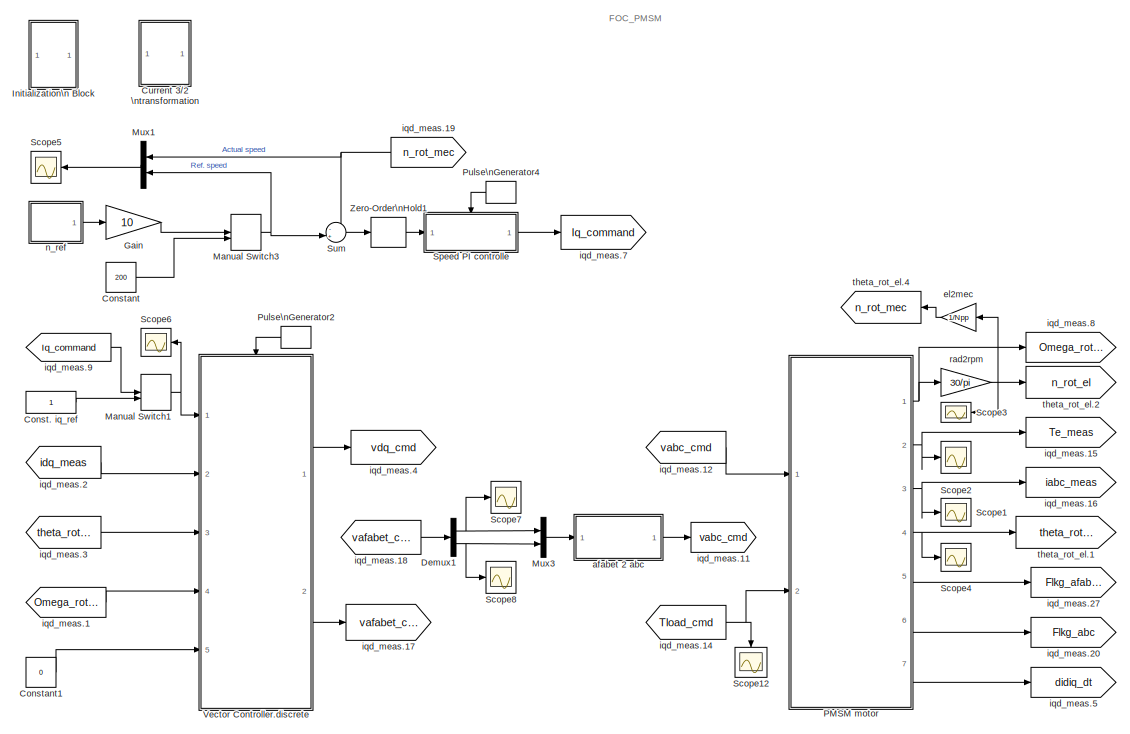
[diagram: root canvas - part 1/2, full width, top band]
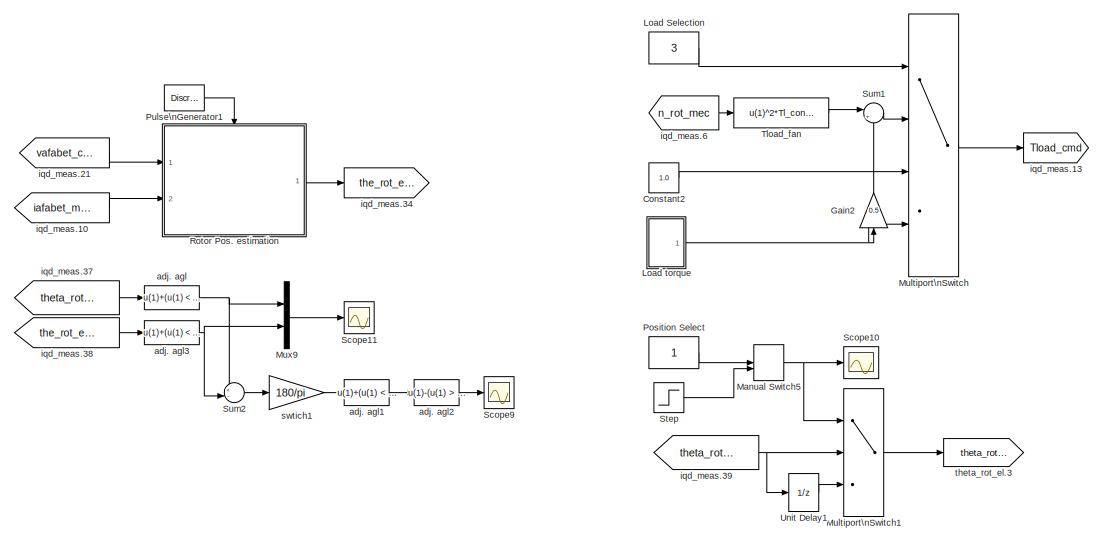
[diagram: root canvas - part 2/2, full width, bottom band]
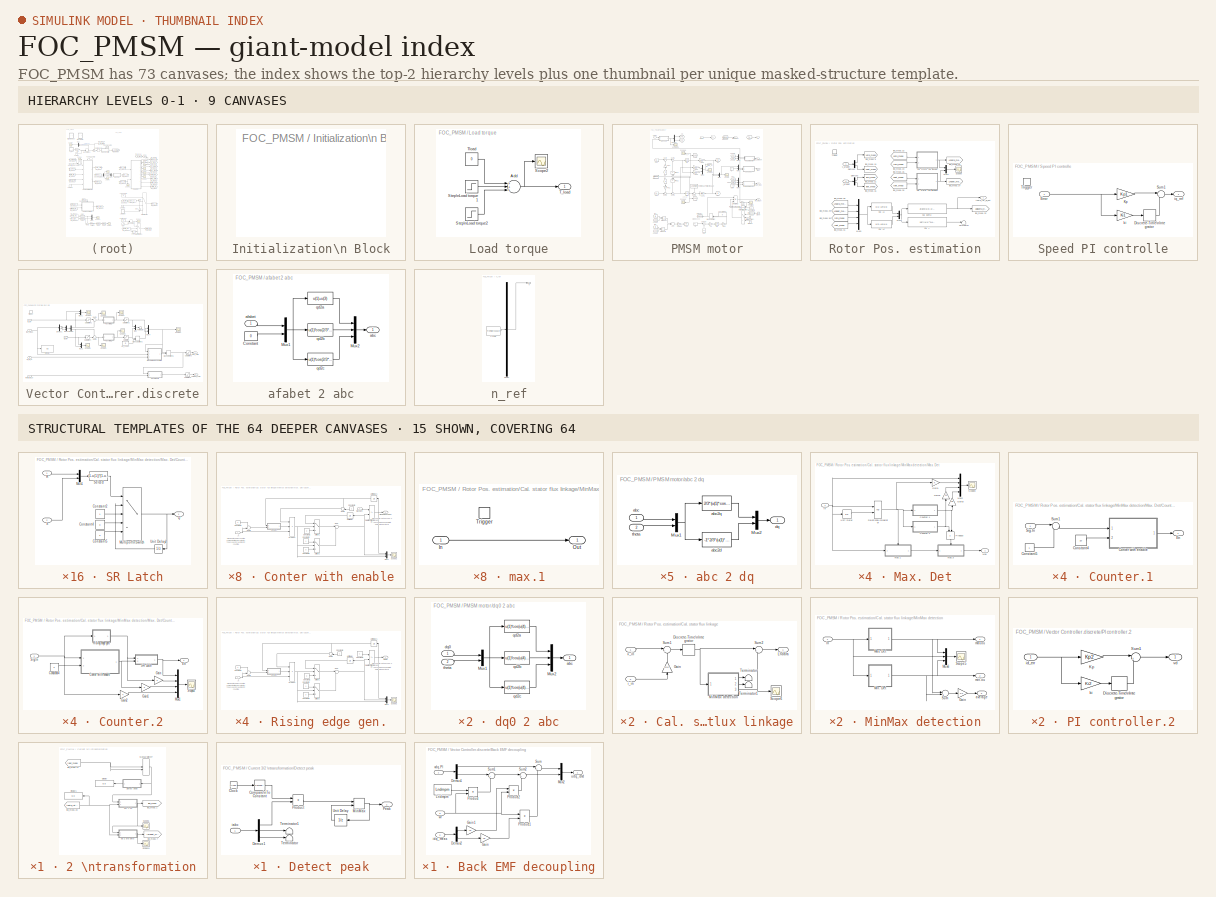
[diagram: thumbnail index - top-2 hierarchy levels (9 canvases) + 15 structural-template representatives of the remaining 64 canvases]
MODEL FOC_PMSM
KIND model
CONFIG InitFcn = Motor_parameters_Lsrpm7fw
BLOCK [Constant] Const. iq_ref
  SID = 4
BLOCK [Constant] Constant
  SID = 5
  Value = 200
BLOCK [Constant] Constant1
  SID = 973
  Value = 0
BLOCK [Constant] Constant2
  SID = 6
  Value = 1.0
BLOCK [SubSystem] Current 3//2 \ntransformation
  Ports = []
  RequestExecContextInheritance = off
  SID = 7
BLOCK [SubSystem] Current 3//2 \ntransformation/Detect peak
  Ports = [1, 1]
  RequestExecContextInheritance = off
  SID = 11
BLOCK [Clock] Current 3//2 \ntransformation/Detect peak/Clock
  SID = 13
BLOCK [Reference] Current 3//2 \ntransformation/Detect peak/Compare\nTo Constant  REF=simulink/Logic and Bit\nOperations/Compare\nTo Constant
  OutDataTypeStr = uint8
  Ports = [1, 1]
  SID = 14
  SourceBlock = simulink/Logic and Bit\nOperations/Compare\nTo Constant
  SourceProductBaseCode = SL
  SourceProductName = Simulink
  SourceType = Compare To Constant
  ZeroCross = off
  const = 2
  relop = >=
BLOCK [Demux] Current 3//2 \ntransformation/Detect peak/Demux1
  DisplayOption = bar
  Outputs = 3
  Ports = [1, 3]
  SID = 15
BLOCK [MinMax] Current 3//2 \ntransformation/Detect peak/MinMax
  Function = max
  InputSameDT = off
  Inputs = 2
  Ports = [2, 1]
  SID = 16
  SaturateOnIntegerOverflow = off
BLOCK [Outport] Current 3//2 \ntransformation/Detect peak/Peak
  IconDisplay = Port number
  SID = 21
BLOCK [Product] Current 3//2 \ntransformation/Detect peak/Product
  InputSameDT = off
  OutDataTypeStr = Inherit: Inherit via internal rule
  Ports = [2, 1]
  SID = 17
  SaturateOnIntegerOverflow = off
BLOCK [Terminator] Current 3//2 \ntransformation/Detect peak/Terminator
  SID = 18
BLOCK [Terminator] Current 3//2 \ntransformation/Detect peak/Terminator1
  SID = 19
BLOCK [UnitDelay] Current 3//2 \ntransformation/Detect peak/Unit Delay
  SID = 20
  SampleTime = 1/5e3
BLOCK [Inport] Current 3//2 \ntransformation/Detect peak/iabc
  IconDisplay = Port number
  SID = 12
BLOCK [Display] Current 3//2 \ntransformation/Display
  Decimation = 1
  Ports = [1]
  SID = 27
BLOCK [Display] Current 3//2 \ntransformation/Display1
  Decimation = 1
  Ports = [1]
  SID = 2657
BLOCK [ManualSwitch] Current 3//2 \ntransformation/Manual Switch7
  CurrentSetting = 0
  SID = 28
BLOCK [Scope] Current 3//2 \ntransformation/Scope14
  Floating = off
  NumInputPorts = 1
  Ports = [1]
  SID = 34
  ScopeSpecificationString = C++SS(StrPVP('Location','[119, 56, 1049, 720]'),StrPVP('Open','off'),MxPVP('AxesTitles',53,'struct(''axes1'',''%<SignalLabel>'')'),StrPVP('ShowLegends','off'),StrPVP('YMin','-5500'),StrPVP('YMax','5500'),StrPVP('SaveName','ScopeData27'),StrPVP('DataFormat','StructureWithTime'),StrPVP('LimitDataPoints','off'),StrPVP('BlockParamSampleTime','0'),StrPVP('Decimation','1'),StrPVP('BlockParamSampleInput'...<+8ch>
BLOCK [Scope] Current 3//2 \ntransformation/Scope6
  Floating = off
  NumInputPorts = 1
  Ports = [1]
  SID = 35
  ScopeSpecificationString = C++SS(StrPVP('Location','[533, 264, 1183, 659]'),StrPVP('Open','off'),StrPVP('ZoomMode','xonly'),MxPVP('AxesTitles',53,'struct(''axes1'',''%<SignalLabel>'')'),StrPVP('ShowLegends','off'),StrPVP('SaveName','ScopeData25'),StrPVP('DataFormat','StructureWithTime'),StrPVP('LimitDataPoints','off'),StrPVP('BlockParamSampleTime','0'),StrPVP('Decimation','1'),StrPVP('BlockParamSampleInput','off'))
BLOCK [SubSystem] Current 3//2 \ntransformation/abc 2 dq
  Ports = [2, 1]
  RequestExecContextInheritance = off
  SID = 38
BLOCK [Mux] Current 3//2 \ntransformation/abc 2 dq/Mux1
  DisplayOption = bar
  Inputs = 2
  Ports = [2, 1]
  SID = 41
BLOCK [Mux] Current 3//2 \ntransformation/abc 2 dq/Mux2
  DisplayOption = bar
  Inputs = 2
  Ports = [2, 1]
  SID = 42
BLOCK [Inport] Current 3//2 \ntransformation/abc 2 dq/abc
  IconDisplay = Port number
  SID = 39
BLOCK [Fcn] Current 3//2 \ntransformation/abc 2 dq/abc2d
  Expr = 2/3*(u(1)*cos(u(4))+u(2)*cos(u(4)-2*pi/3)+u(3)*cos(u(4)-4*pi/3))
  SID = 43
BLOCK [Fcn] Current 3//2 \ntransformation/abc 2 dq/abc2q
  Expr = -1*2/3*(u(1)*sin(u(4))+u(2)*sin(u(4)-2*pi/3)+u(3)*sin(u(4)-4*pi/3))
  SID = 44
BLOCK [Outport] Current 3//2 \ntransformation/abc 2 dq/dq
  IconDisplay = Port number
  SID = 45
BLOCK [Inport] Current 3//2 \ntransformation/abc 2 dq/theta
  IconDisplay = Port number
  Port = 2
  SID = 40
BLOCK [SubSystem] Current 3//2 \ntransformation/dq 2 afa beta
  Ports = [2, 1]
  RequestExecContextInheritance = off
  SID = 46
BLOCK [Mux] Current 3//2 \ntransformation/dq 2 afa beta/Mux1
  DisplayOption = bar
  Inputs = 2
  Ports = [2, 1]
  SID = 49
BLOCK [Mux] Current 3//2 \ntransformation/dq 2 afa beta/Mux2
  DisplayOption = bar
  Inputs = 2
  Ports = [2, 1]
  SID = 50
BLOCK [Outport] Current 3//2 \ntransformation/dq 2 afa beta/afa beta
  IconDisplay = Port number
  SID = 53
BLOCK [Inport] Current 3//2 \ntransformation/dq 2 afa beta/dq
  IconDisplay = Port number
  SID = 47
BLOCK [Fcn] Current 3//2 \ntransformation/dq 2 afa beta/dq2afa
  Expr = u(1)*cos(u(3))-u(2)*sin(u(3))
  SID = 51
BLOCK [Fcn] Current 3//2 \ntransformation/dq 2 afa beta/dq2beta
  Expr = u(1)*sin(u(3))+u(2)*cos(u(3))
  SID = 52
BLOCK [Inport] Current 3//2 \ntransformation/dq 2 afa beta/theta
  IconDisplay = Port number
  Port = 2
  SID = 48
BLOCK [Goto] Current 3//2 \ntransformation/iqd_meas.1
  GotoTag = idq_meas
  SID = 54
  TagVisibility = global
BLOCK [From] Current 3//2 \ntransformation/iqd_meas.20
  CloseFcn = tagdialog Close
  GotoTag = theta_rot_el
  SID = 55
  TagVisibility = global
BLOCK [From] Current 3//2 \ntransformation/iqd_meas.21
  CloseFcn = tagdialog Close
  GotoTag = iabc_meas
  SID = 56
  TagVisibility = global
BLOCK [Goto] Current 3//2 \ntransformation/iqd_meas.7
  GotoTag = iafabet_meas
  SID = 58
  TagVisibility = global
BLOCK [Demux] Demux1
  DisplayOption = bar
  Outputs = 2
  Ports = [1, 2]
  SID = 3145
BLOCK [Gain] Gain
  Gain = 10
  OutDataTypeStr = Inherit: Inherit via internal rule
  ParamDataTypeStr = Inherit: Inherit via internal rule
  SID = 65
  SaturateOnIntegerOverflow = off
BLOCK [Gain] Gain2
  Gain = 0.5
  OutDataTypeStr = Inherit: Inherit via internal rule
  ParamDataTypeStr = Inherit: Inherit via internal rule
  SID = 2658
  SaturateOnIntegerOverflow = off
BLOCK [SubSystem] Initialization\n Block
  Ports = []
  RequestExecContextInheritance = off
  SID = 3139
BLOCK [Constant] Load Selection
  SID = 66
  Value = 3
BLOCK [SubSystem] Load torque
  Ports = [0, 1]
  RequestExecContextInheritance = off
  SID = 67
BLOCK [Sum] Load torque/Add
  InputSameDT = off
  Inputs = +++
  OutDataTypeStr = Inherit: Inherit via internal rule
  Ports = [3, 1]
  SID = 68
  SaturateOnIntegerOverflow = off
BLOCK [Scope] Load torque/Scope2
  Floating = off
  NumInputPorts = 1
  Ports = [1]
  SID = 69
  ScopeSpecificationString = C++SS(StrPVP('Location','[191, 206, 1054, 786]'),StrPVP('Open','off'),MxPVP('AxesTitles',53,'struct(''axes1'',''%<SignalLabel>'')'),MxPVP('ScopeGraphics',56,'struct(''FigureColor'',''[0.5 0.5 0.5]'',''AxesColor'',''[0 0 0]'',''AxesTickColor'',''[1 1 1]'',''LineColors'',''[1 1 0;1 0 1;0 1 1;1 0 0;0 1 0;0 0 1]'',''LineStyles'',''-|-|-|-|-|-'',''LineWidths'',''[0.5 0.5 0.5 0.5 0.5 0.5]'',''MarkerStyl...<+320ch>
BLOCK [Step] Load torque/Step\nLoad torque 1
  After = Trat
  SID = 70
  SampleTime = 0
  Time = 2
BLOCK [Step] Load torque/Step\nLoad torque2
  After = -Trat/2
  SID = 71
  SampleTime = 0
  Time = 4
BLOCK [Outport] Load torque/T_load
  IconDisplay = Port number
  SID = 73
BLOCK [Constant] Load torque/Tload
  SID = 72
  Value = 0
BLOCK [ManualSwitch] Manual Switch1
  SID = 74
BLOCK [ManualSwitch] Manual Switch3
  CurrentSetting = 0
  SID = 76
BLOCK [ManualSwitch] Manual Switch5
  SID = 78
BLOCK [MultiPortSwitch] Multiport\nSwitch
  InputSameDT = off
  Ports = [4, 1]
  SID = 79
  SaturateOnIntegerOverflow = off
BLOCK [MultiPortSwitch] Multiport\nSwitch1
  InputSameDT = off
  Inputs = 2
  Ports = [3, 1]
  SID = 80
  SaturateOnIntegerOverflow = off
BLOCK [Mux] Mux1
  DisplayOption = bar
  Inputs = 2
  Ports = [2, 1]
  SID = 81
BLOCK [Mux] Mux3
  DisplayOption = bar
  Inputs = 2
  Ports = [2, 1]
  SID = 3147
BLOCK [Mux] Mux9
  DisplayOption = bar
  Inputs = 2
  Ports = [2, 1]
  SID = 3171
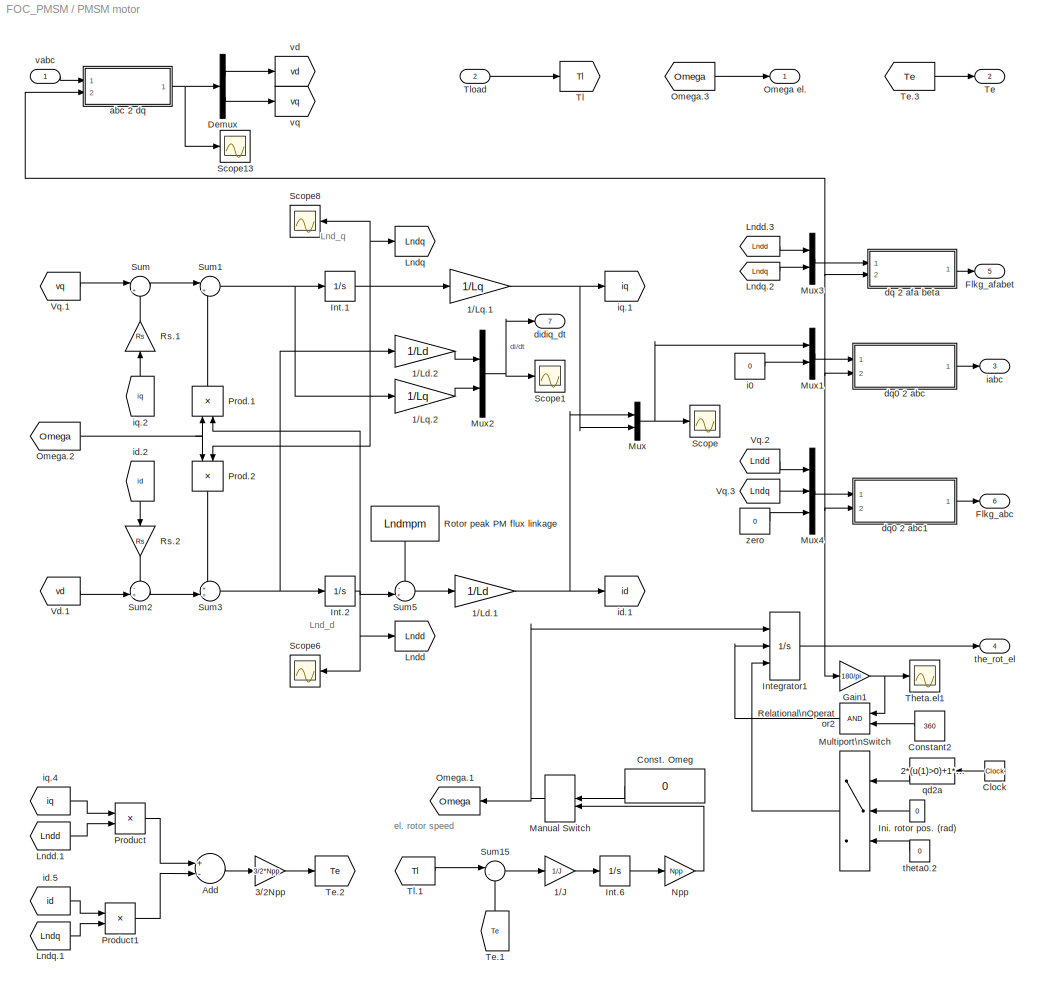
BLOCK [SubSystem] PMSM motor
  Ports = [2, 7]
  RequestExecContextInheritance = off
  SID = 2998
BLOCK [Gain] PMSM motor/1//J
  Gain = 1/J
  OutDataTypeStr = Inherit: Inherit via internal rule
  ParamDataTypeStr = Inherit: Inherit via internal rule
  SID = 3001
  SaturateOnIntegerOverflow = off
BLOCK [Gain] PMSM motor/1//Ld.1
  Gain = 1/Ld
  OutDataTypeStr = Inherit: Inherit via internal rule
  ParamDataTypeStr = Inherit: Inherit via internal rule
  SID = 3002
  SaturateOnIntegerOverflow = off
BLOCK [Gain] PMSM motor/1//Ld.2
  Gain = 1/Ld
  OutDataTypeStr = Inherit: Inherit via internal rule
  ParamDataTypeStr = Inherit: Inherit via internal rule
  SID = 3003
  SaturateOnIntegerOverflow = off
BLOCK [Gain] PMSM motor/1//Lq.1
  Gain = 1/Lq
  OutDataTypeStr = Inherit: Inherit via internal rule
  ParamDataTypeStr = Inherit: Inherit via internal rule
  SID = 3004
  SaturateOnIntegerOverflow = off
BLOCK [Gain] PMSM motor/1//Lq.2
  Gain = 1/Lq
  OutDataTypeStr = Inherit: Inherit via internal rule
  ParamDataTypeStr = Inherit: Inherit via internal rule
  SID = 3005
  SaturateOnIntegerOverflow = off
BLOCK [Gain] PMSM motor/3//2Npp
  Gain = 3/2*Npp
  OutDataTypeStr = Inherit: Inherit via internal rule
  ParamDataTypeStr = Inherit: Inherit via internal rule
  SID = 3006
  SaturateOnIntegerOverflow = off
BLOCK [Sum] PMSM motor/Add
  InputSameDT = off
  Inputs = +-
  OutDataTypeStr = Inherit: Inherit via internal rule
  Ports = [2, 1]
  SID = 3007
  SaturateOnIntegerOverflow = off
BLOCK [Clock] PMSM motor/Clock
  SID = 3140
BLOCK [Constant] PMSM motor/Const. Omeg
  SID = 3008
  Value = 0
BLOCK [Constant] PMSM motor/Constant2
  SID = 3010
  Value = 360
BLOCK [Demux] PMSM motor/Demux
  DisplayOption = bar
  Outputs = 2
  Ports = [1, 2]
  SID = 3011
BLOCK [Outport] PMSM motor/Flkg_abc
  IconDisplay = Port number
  Port = 6
  SID = 3118
BLOCK [Outport] PMSM motor/Flkg_afabet
  IconDisplay = Port number
  Port = 5
  SID = 3117
BLOCK [Gain] PMSM motor/Gain1
  Gain = 180/pi
  OutDataTypeStr = Inherit: Inherit via internal rule
  ParamDataTypeStr = Inherit: Inherit via internal rule
  SID = 3012
  SaturateOnIntegerOverflow = off
BLOCK [Constant] PMSM motor/Ini. rotor pos. (rad)
  SID = 3143
  Value = 0
BLOCK [Integrator] PMSM motor/Int.1
  Ports = [1, 1]
  SID = 3014
BLOCK [Integrator] PMSM motor/Int.2
  InitialCondition = Lndd_ini
  Ports = [1, 1]
  SID = 3015
BLOCK [Integrator] PMSM motor/Int.6
  InitialCondition = Omegae_ini/Npp
  Ports = [1, 1]
  SID = 3016
BLOCK [Integrator] PMSM motor/Integrator1
  ExternalReset = rising
  InitialCondition = pi/3
  InitialConditionSource = external
  Ports = [3, 1]
  SID = 3017
BLOCK [Goto] PMSM motor/Lndd
  GotoTag = Lndd
  SID = 3018
BLOCK [From] PMSM motor/Lndd.1
  CloseFcn = tagdialog Close
  GotoTag = Lndd
  SID = 3019
BLOCK [From] PMSM motor/Lndd.3
  CloseFcn = tagdialog Close
  GotoTag = Lndd
  SID = 3021
BLOCK [Goto] PMSM motor/Lndq
  GotoTag = Lndq
  SID = 3022
BLOCK [From] PMSM motor/Lndq.1
  CloseFcn = tagdialog Close
  GotoTag = Lndq
  SID = 3023
BLOCK [From] PMSM motor/Lndq.2
  CloseFcn = tagdialog Close
  GotoTag = Lndq
  SID = 3024
BLOCK [ManualSwitch] PMSM motor/Manual Switch
  CurrentSetting = 0
  SID = 3026
BLOCK [MultiPortSwitch] PMSM motor/Multiport\nSwitch
  InputSameDT = off
  Inputs = 2
  Ports = [3, 1]
  SID = 3141
  SaturateOnIntegerOverflow = off
BLOCK [Mux] PMSM motor/Mux
  DisplayOption = bar
  Inputs = 2
  Ports = [2, 1]
  SID = 3027
BLOCK [Mux] PMSM motor/Mux1
  DisplayOption = bar
  Inputs = 2
  Ports = [2, 1]
  SID = 3028
BLOCK [Mux] PMSM motor/Mux2
  DisplayOption = bar
  Inputs = 2
  Ports = [2, 1]
  SID = 3029
BLOCK [Mux] PMSM motor/Mux3
  DisplayOption = bar
  Inputs = 2
  Ports = [2, 1]
  SID = 3030
BLOCK [Mux] PMSM motor/Mux4
  DisplayOption = bar
  Inputs = 3
  Ports = [3, 1]
  SID = 3031
BLOCK [Gain] PMSM motor/Npp
  Gain = Npp
  OutDataTypeStr = Inherit: Inherit via internal rule
  ParamDataTypeStr = Inherit: Inherit via internal rule
  SID = 3032
  SaturateOnIntegerOverflow = off
BLOCK [Outport] PMSM motor/Omega el.
  IconDisplay = Port number
  SID = 3113
BLOCK [Goto] PMSM motor/Omega.1
  GotoTag = Omega
  SID = 3033
BLOCK [From] PMSM motor/Omega.2
  CloseFcn = tagdialog Close
  GotoTag = Omega
  SID = 3034
BLOCK [From] PMSM motor/Omega.3
  CloseFcn = tagdialog Close
  GotoTag = Omega
  SID = 3035
BLOCK [Product] PMSM motor/Prod.1
  InputSameDT = off
  OutDataTypeStr = Inherit: Inherit via internal rule
  Ports = [2, 1]
  SID = 3037
  SaturateOnIntegerOverflow = off
BLOCK [Product] PMSM motor/Prod.2
  InputSameDT = off
  OutDataTypeStr = Inherit: Inherit via internal rule
  Ports = [2, 1]
  SID = 3038
  SaturateOnIntegerOverflow = off
BLOCK [Product] PMSM motor/Product
  InputSameDT = off
  OutDataTypeStr = Inherit: Inherit via internal rule
  Ports = [2, 1]
  SID = 3039
  SaturateOnIntegerOverflow = off
BLOCK [Product] PMSM motor/Product1
  InputSameDT = off
  OutDataTypeStr = Inherit: Inherit via internal rule
  Ports = [2, 1]
  SID = 3040
  SaturateOnIntegerOverflow = off
BLOCK [RelationalOperator] PMSM motor/Relational\nOperator2
  InputSameDT = off
  OutDataTypeStr = boolean
  Ports = [2, 1]
  SID = 3042
BLOCK [Constant] PMSM motor/Rotor peak PM flux linkage
  SID = 3043
  Value = Lndmpm
BLOCK [Gain] PMSM motor/Rs.1
  Gain = Rs
  OutDataTypeStr = Inherit: Inherit via internal rule
  ParamDataTypeStr = Inherit: Inherit via internal rule
  SID = 3044
  SaturateOnIntegerOverflow = off
BLOCK [Gain] PMSM motor/Rs.2
  Gain = Rs
  OutDataTypeStr = Inherit: Inherit via internal rule
  ParamDataTypeStr = Inherit: Inherit via internal rule
  SID = 3045
  SaturateOnIntegerOverflow = off
BLOCK [Scope] PMSM motor/Scope
  Floating = off
  NumInputPorts = 1
  Ports = [1]
  SID = 3046
  ScopeSpecificationString = C++SS(StrPVP('Location','[357, 219, 1019, 566]'),StrPVP('Open','off'),StrPVP('ZoomMode','xonly'),MxPVP('AxesTitles',53,'struct(''axes1'',''%<SignalLabel>'')'),MxPVP('ScopeGraphics',56,'struct(''FigureColor'',''[0.5 0.5 0.5]'',''AxesColor'',''[0 0 0]'',''AxesTickColor'',''[1 1 1]'',''LineColors'',''[1 1 0;1 0 1;0 1 1;1 0 0;0 1 0;0 0 1]'',''LineStyles'',''-|-|-|-|-|-'',''LineWidths'',''[0.5 0.5 0.5 ...<+370ch>
BLOCK [Scope] PMSM motor/Scope1
  Floating = off
  NumInputPorts = 1
  Ports = [1]
  SID = 3047
  ScopeSpecificationString = C++SS(StrPVP('Location','[190, 170, 1046, 653]'),StrPVP('Open','off'),StrPVP('ZoomMode','yonly'),MxPVP('AxesTitles',53,'struct(''axes1'',''%<SignalLabel>'')'),MxPVP('ScopeGraphics',56,'struct(''FigureColor'',''[0.5 0.5 0.5]'',''AxesColor'',''[0 0 0]'',''AxesTickColor'',''[1 1 1]'',''LineColors'',''[1 1 0;1 0 1;0 1 1;1 0 0;0 1 0;0 0 1]'',''LineStyles'',''-|-|-|-|-|-'',''LineWidths'',''[0.5 0.5 0.5 ...<+367ch>
BLOCK [Scope] PMSM motor/Scope13
  Floating = off
  NumInputPorts = 1
  Ports = [1]
  SID = 3048
  ScopeSpecificationString = C++SS(StrPVP('Location','[6, 189, 1019, 737]'),StrPVP('Open','off'),StrPVP('ZoomMode','xonly'),MxPVP('AxesTitles',53,'struct(''axes1'',''%<SignalLabel>'')'),MxPVP('ScopeGraphics',56,'struct(''FigureColor'',''[0.5 0.5 0.5]'',''AxesColor'',''[0 0 0]'',''AxesTickColor'',''[1 1 1]'',''LineColors'',''[1 1 0;1 0 1;0 1 1;1 0 0;0 1 0;0 0 1]'',''LineStyles'',''-|-|-|-|-|-'',''LineWidths'',''[0.5 0.5 0.5 0....<+340ch>
BLOCK [Scope] PMSM motor/Scope6
  Floating = off
  NumInputPorts = 1
  Ports = [1]
  SID = 3050
  ScopeSpecificationString = C++SS(StrPVP('Location','[430, 222, 984, 607]'),StrPVP('Open','off'),MxPVP('AxesTitles',53,'struct(''axes1'',''%<SignalLabel>'')'),StrPVP('ShowLegends','off'),StrPVP('TimeRange','0.35'),StrPVP('YMin','-2e-005'),StrPVP('YMax','2.25e-005'),StrPVP('SaveName','ScopeData11'),StrPVP('DataFormat','StructureWithTime'),StrPVP('LimitDataPoints','off'),StrPVP('BlockParamSampleTime','0'),StrPVP('Decimation','...<+42ch>
BLOCK [Scope] PMSM motor/Scope8
  Floating = off
  NumInputPorts = 1
  Ports = [1]
  SID = 3051
  ScopeSpecificationString = C++SS(StrPVP('Location','[8, 56, 670, 485]'),StrPVP('Open','off'),StrPVP('ZoomMode','yonly'),MxPVP('AxesTitles',53,'struct(''axes1'',''%<SignalLabel>'')'),StrPVP('ShowLegends','off'),StrPVP('TimeRange','35'),StrPVP('YMin','0.997'),StrPVP('YMax','1.005'),StrPVP('SaveName','ScopeData12'),StrPVP('DataFormat','StructureWithTime'),StrPVP('LimitDataPoints','off'),StrPVP('BlockParamSampleTime','0'),StrPV...<+58ch>
BLOCK [Sum] PMSM motor/Sum
  IconShape = round
  InputSameDT = off
  Inputs = |+-
  OutDataTypeStr = Inherit: Inherit via internal rule
  Ports = [2, 1]
  SID = 3052
  SaturateOnIntegerOverflow = off
BLOCK [Sum] PMSM motor/Sum1
  IconShape = round
  InputSameDT = off
  Inputs = |+-
  OutDataTypeStr = Inherit: Inherit via internal rule
  Ports = [2, 1]
  SID = 3053
  SaturateOnIntegerOverflow = off
BLOCK [Sum] PMSM motor/Sum15
  IconShape = round
  InputSameDT = off
  Inputs = |-+
  OutDataTypeStr = Inherit: Inherit via internal rule
  Ports = [2, 1]
  SID = 3054
  SaturateOnIntegerOverflow = off
BLOCK [Sum] PMSM motor/Sum2
  IconShape = round
  InputSameDT = off
  Inputs = -+|
  OutDataTypeStr = Inherit: Inherit via internal rule
  Ports = [2, 1]
  SID = 3055
  SaturateOnIntegerOverflow = off
BLOCK [Sum] PMSM motor/Sum3
  IconShape = round
  InputSameDT = off
  Inputs = ++|
  OutDataTypeStr = Inherit: Inherit via internal rule
  Ports = [2, 1]
  SID = 3056
  SaturateOnIntegerOverflow = off
BLOCK [Sum] PMSM motor/Sum5
  IconShape = round
  InputSameDT = off
  Inputs = -+|
  OutDataTypeStr = Inherit: Inherit via internal rule
  Ports = [2, 1]
  SID = 3057
  SaturateOnIntegerOverflow = off
BLOCK [Outport] PMSM motor/Te
  IconDisplay = Port number
  Port = 2
  SID = 3114
BLOCK [From] PMSM motor/Te.1
  CloseFcn = tagdialog Close
  GotoTag = Te
  SID = 3058
BLOCK [Goto] PMSM motor/Te.2
  GotoTag = Te
  SID = 3059
BLOCK [From] PMSM motor/Te.3
  CloseFcn = tagdialog Close
  GotoTag = Te
  SID = 3060
BLOCK [Scope] PMSM motor/Theta.el1
  Floating = off
  NumInputPorts = 1
  Ports = [1]
  SID = 3061
  ScopeSpecificationString = C++SS(StrPVP('Location','[8, 60, 629, 554]'),StrPVP('Open','off'),MxPVP('AxesTitles',53,'struct(''axes1'',''%<SignalLabel>'')'),MxPVP('ScopeGraphics',56,'struct(''FigureColor'',''[0.5 0.5 0.5]'',''AxesColor'',''[0 0 0]'',''AxesTickColor'',''[1 1 1]'',''LineColors'',''[1 1 0;1 0 1;0 1 1;1 0 0;0 1 0;0 0 1]'',''LineStyles'',''-|-|-|-|-|-'',''LineWidths'',''[0.5 0.5 0.5 0.5 0.5 0.5]'',''MarkerStyles''...<+279ch>
BLOCK [Goto] PMSM motor/Tl
  GotoTag = Tl
  SID = 3063
BLOCK [From] PMSM motor/Tl.1
  CloseFcn = tagdialog Close
  GotoTag = Tl
  SID = 3064
BLOCK [Inport] PMSM motor/Tload
  IconDisplay = Port number
  Port = 2
  SID = 3000
BLOCK [From] PMSM motor/Vd.1
  CloseFcn = tagdialog Close
  GotoTag = vd
  SID = 3065
BLOCK [From] PMSM motor/Vq.1
  CloseFcn = tagdialog Close
  GotoTag = vq
  SID = 3066
BLOCK [From] PMSM motor/Vq.2
  CloseFcn = tagdialog Close
  GotoTag = Lndd
  SID = 3067
BLOCK [From] PMSM motor/Vq.3
  CloseFcn = tagdialog Close
  GotoTag = Lndq
  SID = 3068
BLOCK [SubSystem] PMSM motor/abc 2 dq
  Ports = [2, 1]
  RequestExecContextInheritance = off
  SID = 3069
BLOCK [Mux] PMSM motor/abc 2 dq/Mux1
  DisplayOption = bar
  Inputs = 2
  Ports = [2, 1]
  SID = 3072
BLOCK [Mux] PMSM motor/abc 2 dq/Mux2
  DisplayOption = bar
  Inputs = 2
  Ports = [2, 1]
  SID = 3073
BLOCK [Inport] PMSM motor/abc 2 dq/abc
  IconDisplay = Port number
  SID = 3070
BLOCK [Fcn] PMSM motor/abc 2 dq/abc2d
  Expr = -1*2/3*(u(1)*sin(u(4))+u(2)*sin(u(4)-2*pi/3)+u(3)*sin(u(4)-4*pi/3))
  SID = 3074
BLOCK [Fcn] PMSM motor/abc 2 dq/abc2q
  Expr = 2/3*(u(1)*cos(u(4))+u(2)*cos(u(4)-2*pi/3)+u(3)*cos(u(4)-4*pi/3))
  SID = 3075
BLOCK [Outport] PMSM motor/abc 2 dq/dq
  IconDisplay = Port number
  SID = 3076
BLOCK [Inport] PMSM motor/abc 2 dq/theta
  IconDisplay = Port number
  Port = 2
  SID = 3071
BLOCK [Outport] PMSM motor/didiq_dt
  IconDisplay = Port number
  Port = 7
  SID = 3119
BLOCK [SubSystem] PMSM motor/dq 2 afa beta
  Ports = [2, 1]
  RequestExecContextInheritance = off
  SID = 3077
BLOCK [Mux] PMSM motor/dq 2 afa beta/Mux1
  DisplayOption = bar
  Inputs = 2
  Ports = [2, 1]
  SID = 3080
BLOCK [Mux] PMSM motor/dq 2 afa beta/Mux2
  DisplayOption = bar
  Inputs = 2
  Ports = [2, 1]
  SID = 3081
BLOCK [Outport] PMSM motor/dq 2 afa beta/afa beta
  IconDisplay = Port number
  SID = 3084
BLOCK [Inport] PMSM motor/dq 2 afa beta/dq
  IconDisplay = Port number
  SID = 3078
BLOCK [Fcn] PMSM motor/dq 2 afa beta/dq2afa
  Expr = u(1)*cos(u(3))-u(2)*sin(u(3))
  SID = 3082
BLOCK [Fcn] PMSM motor/dq 2 afa beta/dq2beta
  Expr = u(1)*sin(u(3))+u(2)*cos(u(3))
  SID = 3083
BLOCK [Inport] PMSM motor/dq 2 afa beta/theta
  IconDisplay = Port number
  Port = 2
  SID = 3079
BLOCK [SubSystem] PMSM motor/dq0 2 abc
  Ports = [2, 1]
  RequestExecContextInheritance = off
  SID = 3085
BLOCK [Mux] PMSM motor/dq0 2 abc/Mux1
  DisplayOption = bar
  Inputs = 2
  Ports = [2, 1]
  SID = 3088
BLOCK [Mux] PMSM motor/dq0 2 abc/Mux2
  DisplayOption = bar
  Inputs = 3
  Ports = [3, 1]
  SID = 3089
BLOCK [Outport] PMSM motor/dq0 2 abc/abc
  IconDisplay = Port number
  SID = 3093
BLOCK [Inport] PMSM motor/dq0 2 abc/dq0
  IconDisplay = Port number
  SID = 3086
BLOCK [Fcn] PMSM motor/dq0 2 abc/qd2a
  Expr = u(1)*cos(u(4))-u(2)*sin(u(4))+u(3)
  SID = 3090
BLOCK [Fcn] PMSM motor/dq0 2 abc/qd2b
  Expr = u(1)*cos(u(4)-2/3*pi)-u(2)*sin(u(4)-2/3*pi)+u(3)
  SID = 3091
BLOCK [Fcn] PMSM motor/dq0 2 abc/qd2c
  Expr = u(1)*cos(u(4)+2/3*pi)-u(2)*sin(u(4)+2/3*pi)+u(3)
  SID = 3092
BLOCK [Inport] PMSM motor/dq0 2 abc/theta
  IconDisplay = Port number
  Port = 2
  SID = 3087
BLOCK [SubSystem] PMSM motor/dq0 2 abc1
  Ports = [2, 1]
  RequestExecContextInheritance = off
  SID = 3094
BLOCK [Mux] PMSM motor/dq0 2 abc1/Mux1
  DisplayOption = bar
  Inputs = 2
  Ports = [2, 1]
  SID = 3097
BLOCK [Mux] PMSM motor/dq0 2 abc1/Mux2
  DisplayOption = bar
  Inputs = 3
  Ports = [3, 1]
  SID = 3098
BLOCK [Outport] PMSM motor/dq0 2 abc1/abc
  IconDisplay = Port number
  SID = 3102
BLOCK [Inport] PMSM motor/dq0 2 abc1/dq0
  IconDisplay = Port number
  SID = 3095
BLOCK [Fcn] PMSM motor/dq0 2 abc1/qd2a
  Expr = u(1)*cos(u(4))-u(2)*sin(u(4))+u(3)
  SID = 3099
BLOCK [Fcn] PMSM motor/dq0 2 abc1/qd2b
  Expr = u(1)*cos(u(4)-2/3*pi)-u(2)*sin(u(4)-2/3*pi)+u(3)
  SID = 3100
BLOCK [Fcn] PMSM motor/dq0 2 abc1/qd2c
  Expr = u(1)*cos(u(4)+2/3*pi)-u(2)*sin(u(4)+2/3*pi)+u(3)
  SID = 3101
BLOCK [Inport] PMSM motor/dq0 2 abc1/theta
  IconDisplay = Port number
  Port = 2
  SID = 3096
BLOCK [Constant] PMSM motor/i0
  SID = 3103
  Value = 0
BLOCK [Outport] PMSM motor/iabc
  IconDisplay = Port number
  Port = 3
  SID = 3115
BLOCK [Goto] PMSM motor/id.1
  GotoTag = id
  SID = 3104
BLOCK [From] PMSM motor/id.2
  CloseFcn = tagdialog Close
  GotoTag = id
  SID = 3105
BLOCK [From] PMSM motor/id.5
  CloseFcn = tagdialog Close
  GotoTag = id
  SID = 3106
BLOCK [Goto] PMSM motor/iq.1
  GotoTag = iq
  SID = 3107
BLOCK [From] PMSM motor/iq.2
  CloseFcn = tagdialog Close
  GotoTag = iq
  SID = 3108
BLOCK [From] PMSM motor/iq.4
  CloseFcn = tagdialog Close
  GotoTag = iq
  SID = 3109
BLOCK [Fcn] PMSM motor/qd2a
  Expr = 2*(u(1)>0)+1*(u(1)==0)
  SID = 3142
BLOCK [Outport] PMSM motor/the_rot_el
  IconDisplay = Port number
  Port = 4
  SID = 3116
BLOCK [Constant] PMSM motor/theta0.2
  SID = 3144
  Value = 0
BLOCK [Inport] PMSM motor/vabc
  IconDisplay = Port number
  SID = 2999
BLOCK [Goto] PMSM motor/vd
  GotoTag = vd
  SID = 3110
BLOCK [Goto] PMSM motor/vq
  GotoTag = vq
  SID = 3111
BLOCK [Constant] PMSM motor/zero
  SID = 3112
  Value = 0
BLOCK [Constant] Position Select
  SID = 182
BLOCK [DiscretePulseGenerator] Pulse\nGenerator1
  Period = 1/fs
  PhaseDelay = 1/fs/4*0
  Ports = [0, 1]
  PulseType = Time based
  PulseWidth = 50
  SID = 3172
BLOCK [DiscretePulseGenerator] Pulse\nGenerator2
  Period = 1/fs
  Ports = [0, 1]
  PulseType = Time based
  PulseWidth = 50
  SID = 184
BLOCK [DiscretePulseGenerator] Pulse\nGenerator4
  Period = 1/fs*2
  Ports = [0, 1]
  PulseType = Time based
  PulseWidth = 50
  SID = 975
BLOCK [SubSystem] Rotor Pos. estimation
  Ports = [2, 1, 0, 1]
  RequestExecContextInheritance = off
  SID = 3173
BLOCK [Fcn] Rotor Pos. estimation/Cal. A
  Expr = sqrt(u(1)^2+u(2)^2)
  SID = 3177
BLOCK [Fcn] Rotor Pos. estimation/Cal. A1
  Expr = u(1)-Lq*u(3)
  SID = 3178
BLOCK [Fcn] Rotor Pos. estimation/Cal. A2
  Expr = u(2)-Lq*u(4)
  SID = 3179
BLOCK [Fcn] Rotor Pos. estimation/Cal. gama
  Expr = atan2(u(2),u(1))
  SID = 3180
BLOCK [SubSystem] Rotor Pos. estimation/Cal. stator flux linkage
  Ports = [2, 1]
  RequestExecContextInheritance = off
  SID = 3181
BLOCK [DiscreteIntegrator] Rotor Pos. estimation/Cal. stator flux linkage/Discrete-Time\nIntegrator
  ICPrevOutput = DiscIntNeverNeededParam
  ICPrevScaledInput = DiscIntNeverNeededParam
  Ports = [1, 1]
  SID = 3184
  SampleTime = -1
BLOCK [Gain] Rotor Pos. estimation/Cal. stator flux linkage/Gain
  Gain = Rs/2
  OutDataTypeStr = Inherit: Inherit via internal rule
  ParamDataTypeStr = Inherit: Inherit via internal rule
  SID = 3185
  SaturateOnIntegerOverflow = off
BLOCK [Outport] Rotor Pos. estimation/Cal. stator flux linkage/Lndafa
  IconDisplay = Port number
  SID = 3488
BLOCK [SubSystem] Rotor Pos. estimation/Cal. stator flux linkage/MinMax detection
  Ports = [1, 3]
  RequestExecContextInheritance = off
  SID = 3186
BLOCK [Gain] Rotor Pos. estimation/Cal. stator flux linkage/MinMax detection/Gain
  Gain = 1/2
  OutDataTypeStr = Inherit: Inherit via internal rule
  ParamDataTypeStr = Inherit: Inherit via internal rule
  SID = 3188
  SaturateOnIntegerOverflow = off
BLOCK [Inport] Rotor Pos. estimation/Cal. stator flux linkage/MinMax detection/In
  IconDisplay = Port number
  SID = 3187
BLOCK [SubSystem] Rotor Pos. estimation/Cal. stator flux linkage/MinMax detection/Max. Det
  Ports = [1, 1]
  RequestExecContextInheritance = off
  SID = 3189
BLOCK [SubSystem] Rotor Pos. estimation/Cal. stator flux linkage/MinMax detection/Max. Det/Counter.1
  Ports = [1, 1]
  RequestExecContextInheritance = off
  SID = 3191
BLOCK [Constant] Rotor Pos. estimation/Cal. stator flux linkage/MinMax detection/Max. Det/Counter.1/Constant4
  SID = 3193
  Value = 10
BLOCK [Constant] Rotor Pos. estimation/Cal. stator flux linkage/MinMax detection/Max. Det/Counter.1/Constant5
  SID = 3194
BLOCK [SubSystem] Rotor Pos. estimation/Cal. stator flux linkage/MinMax detection/Max. Det/Counter.1/Conter with enable
  Ports = [2, 1]
  RequestExecContextInheritance = off
  SID = 3195
BLOCK [Constant] Rotor Pos. estimation/Cal. stator flux linkage/MinMax detection/Max. Det/Counter.1/Conter with enable/Constant1
  SID = 3198
  Value = 0
BLOCK [Constant] Rotor Pos. estimation/Cal. stator flux linkage/MinMax detection/Max. Det/Counter.1/Conter with enable/Constant2
  SID = 3199
BLOCK [Constant] Rotor Pos. estimation/Cal. stator flux linkage/MinMax detection/Max. Det/Counter.1/Conter with enable/Constant3
  SID = 3200
  Value = 0
BLOCK [Constant] Rotor Pos. estimation/Cal. stator flux linkage/MinMax detection/Max. Det/Counter.1/Conter with enable/Constant6
  SID = 3201
BLOCK [Constant] Rotor Pos. estimation/Cal. stator flux linkage/MinMax detection/Max. Det/Counter.1/Conter with enable/Constant7
  SID = 3202
BLOCK [Inport] Rotor Pos. estimation/Cal. stator flux linkage/MinMax detection/Max. Det/Counter.1/Conter with enable/Max. Num
  IconDisplay = Port number
  Port = 2
  SID = 3197
BLOCK [Outport] Rotor Pos. estimation/Cal. stator flux linkage/MinMax detection/Max. Det/Counter.1/Conter with enable/Max.\nReached?
  IconDisplay = Port number
  SID = 3225
BLOCK [Mux] Rotor Pos. estimation/Cal. stator flux linkage/MinMax detection/Max. Det/Counter.1/Conter with enable/Mux1
  DisplayOption = bar
  Inputs = 3
  Ports = [3, 1]
  SID = 3203
BLOCK [Product] Rotor Pos. estimation/Cal. stator flux linkage/MinMax detection/Max. Det/Counter.1/Conter with enable/Product
  InputSameDT = off
  Inputs = 3
  OutDataTypeStr = Inherit: Inherit via internal rule
  Ports = [3, 1]
  SID = 3204
  SaturateOnIntegerOverflow = off
BLOCK [RelationalOperator] Rotor Pos. estimation/Cal. stator flux linkage/MinMax detection/Max. Det/Counter.1/Conter with enable/Relational\nOperator
  InputSameDT = off
  Operator = <=
  Ports = [2, 1]
  SID = 3205
BLOCK [SubSystem] Rotor Pos. estimation/Cal. stator flux linkage/MinMax detection/Max. Det/Counter.1/Conter with enable/SR Latch
  Ports = [2, 1]
  RequestExecContextInheritance = off
  SID = 3206
BLOCK [Constant] Rotor Pos. estimation/Cal. stator flux linkage/MinMax detection/Max. Det/Counter.1/Conter with enable/SR Latch/Constant2
  SID = 3209
BLOCK [Constant] Rotor Pos. estimation/Cal. stator flux linkage/MinMax detection/Max. Det/Counter.1/Conter with enable/SR Latch/Constant4
  SID = 3210
  Value = 0
BLOCK [Constant] Rotor Pos. estimation/Cal. stator flux linkage/MinMax detection/Max. Det/Counter.1/Conter with enable/SR Latch/Constant5
  SID = 3211
  Value = 0
BLOCK [MultiPortSwitch] Rotor Pos. estimation/Cal. stator flux linkage/MinMax detection/Max. Det/Counter.1/Conter with enable/SR Latch/Multiport\nSwitch
  InputSameDT = off
  Inputs = 4
  Ports = [5, 1]
  SID = 3212
  SaturateOnIntegerOverflow = off
BLOCK [Mux] Rotor Pos. estimation/Cal. stator flux linkage/MinMax detection/Max. Det/Counter.1/Conter with enable/SR Latch/Mux1
  DisplayOption = bar
  Inputs = 2
  Ports = [2, 1]
  SID = 3213
BLOCK [Outport] Rotor Pos. estimation/Cal. stator flux linkage/MinMax detection/Max. Det/Counter.1/Conter with enable/SR Latch/Q
  IconDisplay = Port number
  SID = 3216
BLOCK [Inport] Rotor Pos. estimation/Cal. stator flux linkage/MinMax detection/Max. Det/Counter.1/Conter with enable/SR Latch/R
  IconDisplay = Port number
  SID = 3207
BLOCK [Inport] Rotor Pos. estimation/Cal. stator flux linkage/MinMax detection/Max. Det/Counter.1/Conter with enable/SR Latch/S
  IconDisplay = Port number
  Port = 2
  SID = 3208
BLOCK [Fcn] Rotor Pos. estimation/Cal. stator flux linkage/MinMax detection/Max. Det/Counter.1/Conter with enable/SR Latch/Selcect
  Expr = (1-u(1))*(1-u(2))+2*(1-u(1))*u(2)+3*u(1)*(1-u(2))+4*u(1)*u(2)
  SID = 3214
BLOCK [UnitDelay] Rotor Pos. estimation/Cal. stator flux linkage/MinMax detection/Max. Det/Counter.1/Conter with enable/SR Latch/Unit Delay2
  SID = 3215
  SampleTime = -1
BLOCK [Scope] Rotor Pos. estimation/Cal. stator flux linkage/MinMax detection/Max. Det/Counter.1/Conter with enable/Scope2
  Floating = off
  NumInputPorts = 1
  Ports = [1]
  SID = 3217
  ScopeSpecificationString = C++SS(StrPVP('Location','[43, 66, 693, 461]'),StrPVP('Open','off'),StrPVP('ZoomMode','xonly'),MxPVP('AxesTitles',53,'struct(''axes1'',''%<SignalLabel>'')'),StrPVP('ShowLegends','off'),StrPVP('YMin','-0.525'),StrPVP('YMax','0.025'),StrPVP('SaveName','ScopeData2'),StrPVP('DataFormat','StructureWithTime'),StrPVP('LimitDataPoints','off'),StrPVP('BlockParamSampleTime','0'),StrPVP('Decimation','1'),StrP...<+34ch>  <repeated x12 — deduplicated; at blocks: Scope2>
BLOCK [Sum] Rotor Pos. estimation/Cal. stator flux linkage/MinMax detection/Max. Det/Counter.1/Conter with enable/Sum
  IconShape = round
  InputSameDT = off
  Inputs = |++
  OutDataTypeStr = Inherit: Inherit via internal rule
  Ports = [2, 1]
  SID = 3218
  SaturateOnIntegerOverflow = off
BLOCK [Sum] Rotor Pos. estimation/Cal. stator flux linkage/MinMax detection/Max. Det/Counter.1/Conter with enable/Sum2
  IconShape = round
  InputSameDT = off
  Inputs = -+|
  OutDataTypeStr = Inherit: Inherit via internal rule
  Ports = [2, 1]
  SID = 3219
  SaturateOnIntegerOverflow = off
BLOCK [Sum] Rotor Pos. estimation/Cal. stator flux linkage/MinMax detection/Max. Det/Counter.1/Conter with enable/Sum3
  IconShape = round
  InputSameDT = off
  Inputs = +-|
  OutDataTypeStr = Inherit: Inherit via internal rule
  Ports = [2, 1]
  SID = 3220
  SaturateOnIntegerOverflow = off
BLOCK [Switch] Rotor Pos. estimation/Cal. stator flux linkage/MinMax detection/Max. Det/Counter.1/Conter with enable/Switch1
  InputSameDT = off
  SID = 3221
  SaturateOnIntegerOverflow = off
  Threshold = 0.5
BLOCK [Switch] Rotor Pos. estimation/Cal. stator flux linkage/MinMax detection/Max. Det/Counter.1/Conter with enable/Switch2
  InputSameDT = off
  SID = 3222
  SaturateOnIntegerOverflow = off
  Threshold = 0.5
BLOCK [UnitDelay] Rotor Pos. estimation/Cal. stator flux linkage/MinMax detection/Max. Det/Counter.1/Conter with enable/Unit Delay
  SID = 3223
  SampleTime = -1
BLOCK [UnitDelay] Rotor Pos. estimation/Cal. stator flux linkage/MinMax detection/Max. Det/Counter.1/Conter with enable/Unit Delay1
  SID = 3224
  SampleTime = -1
BLOCK [Inport] Rotor Pos. estimation/Cal. stator flux linkage/MinMax detection/Max. Det/Counter.1/Conter with enable/_|  |_
  IconDisplay = Port number
  SID = 3196
BLOCK [Outport] Rotor Pos. estimation/Cal. stator flux linkage/MinMax detection/Max. Det/Counter.1/En
  IconDisplay = Port number
  SID = 3229
BLOCK [Inport] Rotor Pos. estimation/Cal. stator flux linkage/MinMax detection/Max. Det/Counter.1/Sig.In
  IconDisplay = Port number
  SID = 3192
BLOCK [Sum] Rotor Pos. estimation/Cal. stator flux linkage/MinMax detection/Max. Det/Counter.1/Sum1
  IconShape = round
  InputSameDT = off
  Inputs = |-+
  OutDataTypeStr = Inherit: Inherit via internal rule
  Ports = [2, 1]
  SID = 3228
  SaturateOnIntegerOverflow = off
BLOCK [SubSystem] Rotor Pos. estimation/Cal. stator flux linkage/MinMax detection/Max. Det/Counter.2
  Ports = [1, 1]
  RequestExecContextInheritance = off
  SID = 3230
BLOCK [Constant] Rotor Pos. estimation/Cal. stator flux linkage/MinMax detection/Max. Det/Counter.2/Constant4
  SID = 3232
  Value = 5
BLOCK [SubSystem] Rotor Pos. estimation/Cal. stator flux linkage/MinMax detection/Max. Det/Counter.2/Conter with enable
  Ports = [2, 1]
  RequestExecContextInheritance = off
  SID = 3233
BLOCK [Constant] Rotor Pos. estimation/Cal. stator flux linkage/MinMax detection/Max. Det/Counter.2/Conter with enable/Constant1
  SID = 3236
  Value = 0
BLOCK [Constant] Rotor Pos. estimation/Cal. stator flux linkage/MinMax detection/Max. Det/Counter.2/Conter with enable/Constant2
  SID = 3237
BLOCK [Constant] Rotor Pos. estimation/Cal. stator flux linkage/MinMax detection/Max. Det/Counter.2/Conter with enable/Constant3
  SID = 3238
  Value = 0
BLOCK [Constant] Rotor Pos. estimation/Cal. stator flux linkage/MinMax detection/Max. Det/Counter.2/Conter with enable/Constant6
  SID = 3239
BLOCK [Constant] Rotor Pos. estimation/Cal. stator flux linkage/MinMax detection/Max. Det/Counter.2/Conter with enable/Constant7
  SID = 3240
BLOCK [Inport] Rotor Pos. estimation/Cal. stator flux linkage/MinMax detection/Max. Det/Counter.2/Conter with enable/Max. Num
  IconDisplay = Port number
  Port = 2
  SID = 3235
BLOCK [Outport] Rotor Pos. estimation/Cal. stator flux linkage/MinMax detection/Max. Det/Counter.2/Conter with enable/Max.\nReached?
  IconDisplay = Port number
  SID = 3263
BLOCK [Mux] Rotor Pos. estimation/Cal. stator flux linkage/MinMax detection/Max. Det/Counter.2/Conter with enable/Mux1
  DisplayOption = bar
  Inputs = 3
  Ports = [3, 1]
  SID = 3241
BLOCK [Product] Rotor Pos. estimation/Cal. stator flux linkage/MinMax detection/Max. Det/Counter.2/Conter with enable/Product
  InputSameDT = off
  Inputs = 3
  OutDataTypeStr = Inherit: Inherit via internal rule
  Ports = [3, 1]
  SID = 3242
  SaturateOnIntegerOverflow = off
BLOCK [RelationalOperator] Rotor Pos. estimation/Cal. stator flux linkage/MinMax detection/Max. Det/Counter.2/Conter with enable/Relational\nOperator
  InputSameDT = off
  Operator = <=
  Ports = [2, 1]
  SID = 3243
BLOCK [SubSystem] Rotor Pos. estimation/Cal. stator flux linkage/MinMax detection/Max. Det/Counter.2/Conter with enable/SR Latch
  Ports = [2, 1]
  RequestExecContextInheritance = off
  SID = 3244
BLOCK [Constant] Rotor Pos. estimation/Cal. stator flux linkage/MinMax detection/Max. Det/Counter.2/Conter with enable/SR Latch/Constant2
  SID = 3247
BLOCK [Constant] Rotor Pos. estimation/Cal. stator flux linkage/MinMax detection/Max. Det/Counter.2/Conter with enable/SR Latch/Constant4
  SID = 3248
  Value = 0
BLOCK [Constant] Rotor Pos. estimation/Cal. stator flux linkage/MinMax detection/Max. Det/Counter.2/Conter with enable/SR Latch/Constant5
  SID = 3249
  Value = 0
BLOCK [MultiPortSwitch] Rotor Pos. estimation/Cal. stator flux linkage/MinMax detection/Max. Det/Counter.2/Conter with enable/SR Latch/Multiport\nSwitch
  InputSameDT = off
  Inputs = 4
  Ports = [5, 1]
  SID = 3250
  SaturateOnIntegerOverflow = off
BLOCK [Mux] Rotor Pos. estimation/Cal. stator flux linkage/MinMax detection/Max. Det/Counter.2/Conter with enable/SR Latch/Mux1
  DisplayOption = bar
  Inputs = 2
  Ports = [2, 1]
  SID = 3251
BLOCK [Outport] Rotor Pos. estimation/Cal. stator flux linkage/MinMax detection/Max. Det/Counter.2/Conter with enable/SR Latch/Q
  IconDisplay = Port number
  SID = 3254
BLOCK [Inport] Rotor Pos. estimation/Cal. stator flux linkage/MinMax detection/Max. Det/Counter.2/Conter with enable/SR Latch/R
  IconDisplay = Port number
  SID = 3245
BLOCK [Inport] Rotor Pos. estimation/Cal. stator flux linkage/MinMax detection/Max. Det/Counter.2/Conter with enable/SR Latch/S
  IconDisplay = Port number
  Port = 2
  SID = 3246
BLOCK [Fcn] Rotor Pos. estimation/Cal. stator flux linkage/MinMax detection/Max. Det/Counter.2/Conter with enable/SR Latch/Selcect
  Expr = (1-u(1))*(1-u(2))+2*(1-u(1))*u(2)+3*u(1)*(1-u(2))+4*u(1)*u(2)
  SID = 3252
BLOCK [UnitDelay] Rotor Pos. estimation/Cal. stator flux linkage/MinMax detection/Max. Det/Counter.2/Conter with enable/SR Latch/Unit Delay2
  SID = 3253
  SampleTime = -1
BLOCK [Scope] Rotor Pos. estimation/Cal. stator flux linkage/MinMax detection/Max. Det/Counter.2/Conter with enable/Scope2
  Floating = off
  NumInputPorts = 1
  Ports = [1]
  SID = 3255
BLOCK [Sum] Rotor Pos. estimation/Cal. stator flux linkage/MinMax detection/Max. Det/Counter.2/Conter with enable/Sum
  IconShape = round
  InputSameDT = off
  Inputs = |++
  OutDataTypeStr = Inherit: Inherit via internal rule
  Ports = [2, 1]
  SID = 3256
  SaturateOnIntegerOverflow = off
BLOCK [Sum] Rotor Pos. estimation/Cal. stator flux linkage/MinMax detection/Max. Det/Counter.2/Conter with enable/Sum2
  IconShape = round
  InputSameDT = off
  Inputs = -+|
  OutDataTypeStr = Inherit: Inherit via internal rule
  Ports = [2, 1]
  SID = 3257
  SaturateOnIntegerOverflow = off
BLOCK [Sum] Rotor Pos. estimation/Cal. stator flux linkage/MinMax detection/Max. Det/Counter.2/Conter with enable/Sum3
  IconShape = round
  InputSameDT = off
  Inputs = +-|
  OutDataTypeStr = Inherit: Inherit via internal rule
  Ports = [2, 1]
  SID = 3258
  SaturateOnIntegerOverflow = off
BLOCK [Switch] Rotor Pos. estimation/Cal. stator flux linkage/MinMax detection/Max. Det/Counter.2/Conter with enable/Switch1
  InputSameDT = off
  SID = 3259
  SaturateOnIntegerOverflow = off
  Threshold = 0.5
BLOCK [Switch] Rotor Pos. estimation/Cal. stator flux linkage/MinMax detection/Max. Det/Counter.2/Conter with enable/Switch2
  InputSameDT = off
  SID = 3260
  SaturateOnIntegerOverflow = off
  Threshold = 0.5
BLOCK [UnitDelay] Rotor Pos. estimation/Cal. stator flux linkage/MinMax detection/Max. Det/Counter.2/Conter with enable/Unit Delay
  SID = 3261
  SampleTime = -1
BLOCK [UnitDelay] Rotor Pos. estimation/Cal. stator flux linkage/MinMax detection/Max. Det/Counter.2/Conter with enable/Unit Delay1
  SID = 3262
  SampleTime = -1
BLOCK [Inport] Rotor Pos. estimation/Cal. stator flux linkage/MinMax detection/Max. Det/Counter.2/Conter with enable/_|  |_
  IconDisplay = Port number
  SID = 3234
BLOCK [Outport] Rotor Pos. estimation/Cal. stator flux linkage/MinMax detection/Max. Det/Counter.2/En
  IconDisplay = Port number
  SID = 3315
BLOCK [Gain] Rotor Pos. estimation/Cal. stator flux linkage/MinMax detection/Max. Det/Counter.2/Gain
  Gain = 2
  OutDataTypeStr = Inherit: Inherit via internal rule
  ParamDataTypeStr = Inherit: Inherit via internal rule
  SID = 3266
  SaturateOnIntegerOverflow = off
BLOCK [Gain] Rotor Pos. estimation/Cal. stator flux linkage/MinMax detection/Max. Det/Counter.2/Gain1
  Gain = 3
  OutDataTypeStr = Inherit: Inherit via internal rule
  ParamDataTypeStr = Inherit: Inherit via internal rule
  SID = 3267
  SaturateOnIntegerOverflow = off
BLOCK [Gain] Rotor Pos. estimation/Cal. stator flux linkage/MinMax detection/Max. Det/Counter.2/Gain2
  Gain = 4
  OutDataTypeStr = Inherit: Inherit via internal rule
  ParamDataTypeStr = Inherit: Inherit via internal rule
  SID = 3268
  SaturateOnIntegerOverflow = off
BLOCK [Mux] Rotor Pos. estimation/Cal. stator flux linkage/MinMax detection/Max. Det/Counter.2/Mux1
  DisplayOption = bar
  Ports = [4, 1]
  SID = 3269
BLOCK [SubSystem] Rotor Pos. estimation/Cal. stator flux linkage/MinMax detection/Max. Det/Counter.2/Rising edge gen.
  Ports = [1, 1]
  RequestExecContextInheritance = off
  SID = 3270
BLOCK [Constant] Rotor Pos. estimation/Cal. stator flux linkage/MinMax detection/Max. Det/Counter.2/Rising edge gen./Constant1
  SID = 3272
  Value = 0
BLOCK [Constant] Rotor Pos. estimation/Cal. stator flux linkage/MinMax detection/Max. Det/Counter.2/Rising edge gen./Constant2
  SID = 3273
BLOCK [Constant] Rotor Pos. estimation/Cal. stator flux linkage/MinMax detection/Max. Det/Counter.2/Rising edge gen./Constant3
  SID = 3274
  Value = 0
BLOCK [Constant] Rotor Pos. estimation/Cal. stator flux linkage/MinMax detection/Max. Det/Counter.2/Rising edge gen./Constant4
  SID = 3275
BLOCK [Constant] Rotor Pos. estimation/Cal. stator flux linkage/MinMax detection/Max. Det/Counter.2/Rising edge gen./Constant6
  SID = 3276
BLOCK [Constant] Rotor Pos. estimation/Cal. stator flux linkage/MinMax detection/Max. Det/Counter.2/Rising edge gen./Constant7
  SID = 3277
BLOCK [Outport] Rotor Pos. estimation/Cal. stator flux linkage/MinMax detection/Max. Det/Counter.2/Rising edge gen./Edge
  IconDisplay = Port number
  SID = 3300
BLOCK [Mux] Rotor Pos. estimation/Cal. stator flux linkage/MinMax detection/Max. Det/Counter.2/Rising edge gen./Mux1
  DisplayOption = bar
  Inputs = 3
  Ports = [3, 1]
  SID = 3278
BLOCK [Product] Rotor Pos. estimation/Cal. stator flux linkage/MinMax detection/Max. Det/Counter.2/Rising edge gen./Product
  InputSameDT = off
  Inputs = 3
  OutDataTypeStr = Inherit: Inherit via internal rule
  Ports = [3, 1]
  SID = 3279
  SaturateOnIntegerOverflow = off
BLOCK [RelationalOperator] Rotor Pos. estimation/Cal. stator flux linkage/MinMax detection/Max. Det/Counter.2/Rising edge gen./Relational\nOperator
  InputSameDT = off
  Operator = <=
  Ports = [2, 1]
  SID = 3280
BLOCK [SubSystem] Rotor Pos. estimation/Cal. stator flux linkage/MinMax detection/Max. Det/Counter.2/Rising edge gen./SR Latch
  Ports = [2, 1]
  RequestExecContextInheritance = off
  SID = 3281
BLOCK [Constant] Rotor Pos. estimation/Cal. stator flux linkage/MinMax detection/Max. Det/Counter.2/Rising edge gen./SR Latch/Constant2
  SID = 3284
BLOCK [Constant] Rotor Pos. estimation/Cal. stator flux linkage/MinMax detection/Max. Det/Counter.2/Rising edge gen./SR Latch/Constant4
  SID = 3285
  Value = 0
BLOCK [Constant] Rotor Pos. estimation/Cal. stator flux linkage/MinMax detection/Max. Det/Counter.2/Rising edge gen./SR Latch/Constant5
  SID = 3286
  Value = 0
BLOCK [MultiPortSwitch] Rotor Pos. estimation/Cal. stator flux linkage/MinMax detection/Max. Det/Counter.2/Rising edge gen./SR Latch/Multiport\nSwitch
  InputSameDT = off
  Inputs = 4
  Ports = [5, 1]
  SID = 3287
  SaturateOnIntegerOverflow = off
BLOCK [Mux] Rotor Pos. estimation/Cal. stator flux linkage/MinMax detection/Max. Det/Counter.2/Rising edge gen./SR Latch/Mux1
  DisplayOption = bar
  Inputs = 2
  Ports = [2, 1]
  SID = 3288
BLOCK [Outport] Rotor Pos. estimation/Cal. stator flux linkage/MinMax detection/Max. Det/Counter.2/Rising edge gen./SR Latch/Q
  IconDisplay = Port number
  SID = 3291
BLOCK [Inport] Rotor Pos. estimation/Cal. stator flux linkage/MinMax detection/Max. Det/Counter.2/Rising edge gen./SR Latch/R
  IconDisplay = Port number
  SID = 3282
BLOCK [Inport] Rotor Pos. estimation/Cal. stator flux linkage/MinMax detection/Max. Det/Counter.2/Rising edge gen./SR Latch/S
  IconDisplay = Port number
  Port = 2
  SID = 3283
BLOCK [Fcn] Rotor Pos. estimation/Cal. stator flux linkage/MinMax detection/Max. Det/Counter.2/Rising edge gen./SR Latch/Selcect
  Expr = (1-u(1))*(1-u(2))+2*(1-u(1))*u(2)+3*u(1)*(1-u(2))+4*u(1)*u(2)
  SID = 3289
BLOCK [UnitDelay] Rotor Pos. estimation/Cal. stator flux linkage/MinMax detection/Max. Det/Counter.2/Rising edge gen./SR Latch/Unit Delay2
  SID = 3290
  SampleTime = -1
BLOCK [Scope] Rotor Pos. estimation/Cal. stator flux linkage/MinMax detection/Max. Det/Counter.2/Rising edge gen./Scope2
  Floating = off
  NumInputPorts = 1
  Ports = [1]
  SID = 3292
BLOCK [Sum] Rotor Pos. estimation/Cal. stator flux linkage/MinMax detection/Max. Det/Counter.2/Rising edge gen./Sum
  IconShape = round
  InputSameDT = off
  Inputs = |++
  OutDataTypeStr = Inherit: Inherit via internal rule
  Ports = [2, 1]
  SID = 3293
  SaturateOnIntegerOverflow = off
BLOCK [Sum] Rotor Pos. estimation/Cal. stator flux linkage/MinMax detection/Max. Det/Counter.2/Rising edge gen./Sum2
  IconShape = round
  InputSameDT = off
  Inputs = -+|
  OutDataTypeStr = Inherit: Inherit via internal rule
  Ports = [2, 1]
  SID = 3294
  SaturateOnIntegerOverflow = off
BLOCK [Sum] Rotor Pos. estimation/Cal. stator flux linkage/MinMax detection/Max. Det/Counter.2/Rising edge gen./Sum3
  IconShape = round
  InputSameDT = off
  Inputs = +-|
  OutDataTypeStr = Inherit: Inherit via internal rule
  Ports = [2, 1]
  SID = 3295
  SaturateOnIntegerOverflow = off
BLOCK [Switch] Rotor Pos. estimation/Cal. stator flux linkage/MinMax detection/Max. Det/Counter.2/Rising edge gen./Switch1
  InputSameDT = off
  SID = 3296
  SaturateOnIntegerOverflow = off
  Threshold = 0.5
BLOCK [Switch] Rotor Pos. estimation/Cal. stator flux linkage/MinMax detection/Max. Det/Counter.2/Rising edge gen./Switch2
  InputSameDT = off
  SID = 3297
  SaturateOnIntegerOverflow = off
  Threshold = 0.5
BLOCK [UnitDelay] Rotor Pos. estimation/Cal. stator flux linkage/MinMax detection/Max. Det/Counter.2/Rising edge gen./Unit Delay
  SID = 3298
  SampleTime = -1
BLOCK [UnitDelay] Rotor Pos. estimation/Cal. stator flux linkage/MinMax detection/Max. Det/Counter.2/Rising edge gen./Unit Delay1
  SID = 3299
  SampleTime = -1
BLOCK [Inport] Rotor Pos. estimation/Cal. stator flux linkage/MinMax detection/Max. Det/Counter.2/Rising edge gen./_|  |_
  IconDisplay = Port number
  SID = 3271
BLOCK [SubSystem] Rotor Pos. estimation/Cal. stator flux linkage/MinMax detection/Max. Det/Counter.2/SR Latch
  Ports = [2, 1]
  RequestExecContextInheritance = off
  SID = 3303
BLOCK [Constant] Rotor Pos. estimation/Cal. stator flux linkage/MinMax detection/Max. Det/Counter.2/SR Latch/Constant2
  SID = 3306
BLOCK [Constant] Rotor Pos. estimation/Cal. stator flux linkage/MinMax detection/Max. Det/Counter.2/SR Latch/Constant4
  SID = 3307
  Value = 0
BLOCK [Constant] Rotor Pos. estimation/Cal. stator flux linkage/MinMax detection/Max. Det/Counter.2/SR Latch/Constant5
  SID = 3308
  Value = 0
BLOCK [MultiPortSwitch] Rotor Pos. estimation/Cal. stator flux linkage/MinMax detection/Max. Det/Counter.2/SR Latch/Multiport\nSwitch
  InputSameDT = off
  Inputs = 4
  Ports = [5, 1]
  SID = 3309
  SaturateOnIntegerOverflow = off
BLOCK [Mux] Rotor Pos. estimation/Cal. stator flux linkage/MinMax detection/Max. Det/Counter.2/SR Latch/Mux1
  DisplayOption = bar
  Inputs = 2
  Ports = [2, 1]
  SID = 3310
BLOCK [Outport] Rotor Pos. estimation/Cal. stator flux linkage/MinMax detection/Max. Det/Counter.2/SR Latch/Q
  IconDisplay = Port number
  SID = 3313
BLOCK [Inport] Rotor Pos. estimation/Cal. stator flux linkage/MinMax detection/Max. Det/Counter.2/SR Latch/R
  IconDisplay = Port number
  SID = 3304
BLOCK [Inport] Rotor Pos. estimation/Cal. stator flux linkage/MinMax detection/Max. Det/Counter.2/SR Latch/S
  IconDisplay = Port number
  Port = 2
  SID = 3305
BLOCK [Fcn] Rotor Pos. estimation/Cal. stator flux linkage/MinMax detection/Max. Det/Counter.2/SR Latch/Selcect
  Expr = (1-u(1))*(1-u(2))+2*(1-u(1))*u(2)+3*u(1)*(1-u(2))+4*u(1)*u(2)
  SID = 3311
BLOCK [UnitDelay] Rotor Pos. estimation/Cal. stator flux linkage/MinMax detection/Max. Det/Counter.2/SR Latch/Unit Delay2
  SID = 3312
  SampleTime = -1
BLOCK [Scope] Rotor Pos. estimation/Cal. stator flux linkage/MinMax detection/Max. Det/Counter.2/Scope2
  Floating = off
  NumInputPorts = 1
  Ports = [1]
  SID = 3314
  ScopeSpecificationString = C++SS(StrPVP('Location','[304, 600, 954, 995]'),StrPVP('Open','off'),StrPVP('ZoomMode','xonly'),MxPVP('AxesTitles',53,'struct(''axes1'',''%<SignalLabel>'')'),StrPVP('ShowLegends','off'),StrPVP('TimeRange','1'),StrPVP('YMin','-1'),StrPVP('SaveName','ScopeData3'),StrPVP('DataFormat','StructureWithTime'),StrPVP('LimitDataPoints','off'),StrPVP('BlockParamSampleTime','0'),StrPVP('Decimation','1'),StrPV...<+33ch>  <repeated x4 — deduplicated; at blocks: Scope2>
BLOCK [Inport] Rotor Pos. estimation/Cal. stator flux linkage/MinMax detection/Max. Det/Counter.2/Sig.In
  IconDisplay = Port number
  SID = 3231
BLOCK [Gain] Rotor Pos. estimation/Cal. stator flux linkage/MinMax detection/Max. Det/Gain1
  OutDataTypeStr = Inherit: Inherit via internal rule
  ParamDataTypeStr = Inherit: Inherit via internal rule
  SID = 3316
  SaturateOnIntegerOverflow = off
BLOCK [Gain] Rotor Pos. estimation/Cal. stator flux linkage/MinMax detection/Max. Det/Gain2
  Gain = 0.3
  OutDataTypeStr = Inherit: Inherit via internal rule
  ParamDataTypeStr = Inherit: Inherit via internal rule
  SID = 3317
  SaturateOnIntegerOverflow = off
BLOCK [Gain] Rotor Pos. estimation/Cal. stator flux linkage/MinMax detection/Max. Det/Gain3
  Gain = 0.6
  OutDataTypeStr = Inherit: Inherit via internal rule
  ParamDataTypeStr = Inherit: Inherit via internal rule
  SID = 3318
  SaturateOnIntegerOverflow = off
BLOCK [Inport] Rotor Pos. estimation/Cal. stator flux linkage/MinMax detection/Max. Det/In
  IconDisplay = Port number
  SID = 3190
BLOCK [Outport] Rotor Pos. estimation/Cal. stator flux linkage/MinMax detection/Max. Det/Max
  IconDisplay = Port number
  SID = 3332
BLOCK [Mux] Rotor Pos. estimation/Cal. stator flux linkage/MinMax detection/Max. Det/Mux2
  DisplayOption = bar
  Ports = [4, 1]
  SID = 3319
BLOCK [Product] Rotor Pos. estimation/Cal. stator flux linkage/MinMax detection/Max. Det/Product
  InputSameDT = off
  OutDataTypeStr = Inherit: Inherit via internal rule
  Ports = [2, 1]
  SID = 3320
  SaturateOnIntegerOverflow = off
BLOCK [RelationalOperator] Rotor Pos. estimation/Cal. stator flux linkage/MinMax detection/Max. Det/Relational\nOperator
  InputSameDT = off
  Ports = [2, 1]
  SID = 3321
BLOCK [Scope] Rotor Pos. estimation/Cal. stator flux linkage/MinMax detection/Max. Det/Scope3
  Floating = off
  NumInputPorts = 1
  Ports = [1]
  SID = 3322
  ScopeSpecificationString = C++SS(StrPVP('Location','[1000, 558, 1650, 953]'),StrPVP('Open','off'),StrPVP('ZoomMode','xonly'),MxPVP('AxesTitles',53,'struct(''axes1'',''%<SignalLabel>'')'),StrPVP('ShowLegends','off'),StrPVP('TimeRange','1'),StrPVP('YMax','25'),StrPVP('SaveName','ScopeData1'),StrPVP('DataFormat','StructureWithTime'),StrPVP('LimitDataPoints','off'),StrPVP('BlockParamSampleTime','0'),StrPVP('Decimation','1'),Str...<+35ch>  <repeated x4 — deduplicated; at blocks: Scope3>
BLOCK [UnitDelay] Rotor Pos. estimation/Cal. stator flux linkage/MinMax detection/Max. Det/Unit Delay
  SID = 3323
  SampleTime = -1
BLOCK [SubSystem] Rotor Pos. estimation/Cal. stator flux linkage/MinMax detection/Max. Det/max.1
  Ports = [1, 1, 0, 1]
  RequestExecContextInheritance = off
  SID = 3324
BLOCK [Inport] Rotor Pos. estimation/Cal. stator flux linkage/MinMax detection/Max. Det/max.1/In
  IconDisplay = Port number
  SID = 3325
BLOCK [Outport] Rotor Pos. estimation/Cal. stator flux linkage/MinMax detection/Max. Det/max.1/Out
  IconDisplay = Port number
  SID = 3327
BLOCK [TriggerPort] Rotor Pos. estimation/Cal. stator flux linkage/MinMax detection/Max. Det/max.1/Trigger
  Ports = []
  SID = 3326
  StatesWhenEnabling = held
  TriggerType = falling
  VariantControl = (inherit)
BLOCK [SubSystem] Rotor Pos. estimation/Cal. stator flux linkage/MinMax detection/Max. Det/max.3
  Ports = [1, 1, 0, 1]
  RequestExecContextInheritance = off
  SID = 3328
BLOCK [Inport] Rotor Pos. estimation/Cal. stator flux linkage/MinMax detection/Max. Det/max.3/In
  IconDisplay = Port number
  SID = 3329
BLOCK [Outport] Rotor Pos. estimation/Cal. stator flux linkage/MinMax detection/Max. Det/max.3/Out
  IconDisplay = Port number
  SID = 3331
BLOCK [TriggerPort] Rotor Pos. estimation/Cal. stator flux linkage/MinMax detection/Max. Det/max.3/Trigger
  Ports = []
  SID = 3330
  StatesWhenEnabling = held
  VariantControl = (inherit)
BLOCK [SubSystem] Rotor Pos. estimation/Cal. stator flux linkage/MinMax detection/Min. Det
  Ports = [1, 1]
  RequestExecContextInheritance = off
  SID = 3333
BLOCK [SubSystem] Rotor Pos. estimation/Cal. stator flux linkage/MinMax detection/Min. Det/Counter.1
  Ports = [1, 1]
  RequestExecContextInheritance = off
  SID = 3335
BLOCK [Constant] Rotor Pos. estimation/Cal. stator flux linkage/MinMax detection/Min. Det/Counter.1/Constant4
  SID = 3337
  Value = 10
BLOCK [Constant] Rotor Pos. estimation/Cal. stator flux linkage/MinMax detection/Min. Det/Counter.1/Constant5
  SID = 3338
BLOCK [SubSystem] Rotor Pos. estimation/Cal. stator flux linkage/MinMax detection/Min. Det/Counter.1/Conter with enable
  Ports = [2, 1]
  RequestExecContextInheritance = off
  SID = 3339
BLOCK [Constant] Rotor Pos. estimation/Cal. stator flux linkage/MinMax detection/Min. Det/Counter.1/Conter with enable/Constant1
  SID = 3342
  Value = 0
BLOCK [Constant] Rotor Pos. estimation/Cal. stator flux linkage/MinMax detection/Min. Det/Counter.1/Conter with enable/Constant2
  SID = 3343
BLOCK [Constant] Rotor Pos. estimation/Cal. stator flux linkage/MinMax detection/Min. Det/Counter.1/Conter with enable/Constant3
  SID = 3344
  Value = 0
BLOCK [Constant] Rotor Pos. estimation/Cal. stator flux linkage/MinMax detection/Min. Det/Counter.1/Conter with enable/Constant6
  SID = 3345
BLOCK [Constant] Rotor Pos. estimation/Cal. stator flux linkage/MinMax detection/Min. Det/Counter.1/Conter with enable/Constant7
  SID = 3346
BLOCK [Inport] Rotor Pos. estimation/Cal. stator flux linkage/MinMax detection/Min. Det/Counter.1/Conter with enable/Max. Num
  IconDisplay = Port number
  Port = 2
  SID = 3341
BLOCK [Outport] Rotor Pos. estimation/Cal. stator flux linkage/MinMax detection/Min. Det/Counter.1/Conter with enable/Max.\nReached?
  IconDisplay = Port number
  SID = 3369
BLOCK [Mux] Rotor Pos. estimation/Cal. stator flux linkage/MinMax detection/Min. Det/Counter.1/Conter with enable/Mux1
  DisplayOption = bar
  Inputs = 3
  Ports = [3, 1]
  SID = 3347
BLOCK [Product] Rotor Pos. estimation/Cal. stator flux linkage/MinMax detection/Min. Det/Counter.1/Conter with enable/Product
  InputSameDT = off
  Inputs = 3
  OutDataTypeStr = Inherit: Inherit via internal rule
  Ports = [3, 1]
  SID = 3348
  SaturateOnIntegerOverflow = off
BLOCK [RelationalOperator] Rotor Pos. estimation/Cal. stator flux linkage/MinMax detection/Min. Det/Counter.1/Conter with enable/Relational\nOperator
  InputSameDT = off
  Operator = <=
  Ports = [2, 1]
  SID = 3349
BLOCK [SubSystem] Rotor Pos. estimation/Cal. stator flux linkage/MinMax detection/Min. Det/Counter.1/Conter with enable/SR Latch
  Ports = [2, 1]
  RequestExecContextInheritance = off
  SID = 3350
BLOCK [Constant] Rotor Pos. estimation/Cal. stator flux linkage/MinMax detection/Min. Det/Counter.1/Conter with enable/SR Latch/Constant2
  SID = 3353
BLOCK [Constant] Rotor Pos. estimation/Cal. stator flux linkage/MinMax detection/Min. Det/Counter.1/Conter with enable/SR Latch/Constant4
  SID = 3354
  Value = 0
BLOCK [Constant] Rotor Pos. estimation/Cal. stator flux linkage/MinMax detection/Min. Det/Counter.1/Conter with enable/SR Latch/Constant5
  SID = 3355
  Value = 0
BLOCK [MultiPortSwitch] Rotor Pos. estimation/Cal. stator flux linkage/MinMax detection/Min. Det/Counter.1/Conter with enable/SR Latch/Multiport\nSwitch
  InputSameDT = off
  Inputs = 4
  Ports = [5, 1]
  SID = 3356
  SaturateOnIntegerOverflow = off
BLOCK [Mux] Rotor Pos. estimation/Cal. stator flux linkage/MinMax detection/Min. Det/Counter.1/Conter with enable/SR Latch/Mux1
  DisplayOption = bar
  Inputs = 2
  Ports = [2, 1]
  SID = 3357
BLOCK [Outport] Rotor Pos. estimation/Cal. stator flux linkage/MinMax detection/Min. Det/Counter.1/Conter with enable/SR Latch/Q
  IconDisplay = Port number
  SID = 3360
BLOCK [Inport] Rotor Pos. estimation/Cal. stator flux linkage/MinMax detection/Min. Det/Counter.1/Conter with enable/SR Latch/R
  IconDisplay = Port number
  SID = 3351
BLOCK [Inport] Rotor Pos. estimation/Cal. stator flux linkage/MinMax detection/Min. Det/Counter.1/Conter with enable/SR Latch/S
  IconDisplay = Port number
  Port = 2
  SID = 3352
BLOCK [Fcn] Rotor Pos. estimation/Cal. stator flux linkage/MinMax detection/Min. Det/Counter.1/Conter with enable/SR Latch/Selcect
  Expr = (1-u(1))*(1-u(2))+2*(1-u(1))*u(2)+3*u(1)*(1-u(2))+4*u(1)*u(2)
  SID = 3358
BLOCK [UnitDelay] Rotor Pos. estimation/Cal. stator flux linkage/MinMax detection/Min. Det/Counter.1/Conter with enable/SR Latch/Unit Delay2
  SID = 3359
  SampleTime = -1
BLOCK [Scope] Rotor Pos. estimation/Cal. stator flux linkage/MinMax detection/Min. Det/Counter.1/Conter with enable/Scope2
  Floating = off
  NumInputPorts = 1
  Ports = [1]
  SID = 3361
BLOCK [Sum] Rotor Pos. estimation/Cal. stator flux linkage/MinMax detection/Min. Det/Counter.1/Conter with enable/Sum
  IconShape = round
  InputSameDT = off
  Inputs = |++
  OutDataTypeStr = Inherit: Inherit via internal rule
  Ports = [2, 1]
  SID = 3362
  SaturateOnIntegerOverflow = off
BLOCK [Sum] Rotor Pos. estimation/Cal. stator flux linkage/MinMax detection/Min. Det/Counter.1/Conter with enable/Sum2
  IconShape = round
  InputSameDT = off
  Inputs = -+|
  OutDataTypeStr = Inherit: Inherit via internal rule
  Ports = [2, 1]
  SID = 3363
  SaturateOnIntegerOverflow = off
BLOCK [Sum] Rotor Pos. estimation/Cal. stator flux linkage/MinMax detection/Min. Det/Counter.1/Conter with enable/Sum3
  IconShape = round
  InputSameDT = off
  Inputs = +-|
  OutDataTypeStr = Inherit: Inherit via internal rule
  Ports = [2, 1]
  SID = 3364
  SaturateOnIntegerOverflow = off
BLOCK [Switch] Rotor Pos. estimation/Cal. stator flux linkage/MinMax detection/Min. Det/Counter.1/Conter with enable/Switch1
  InputSameDT = off
  SID = 3365
  SaturateOnIntegerOverflow = off
  Threshold = 0.5
BLOCK [Switch] Rotor Pos. estimation/Cal. stator flux linkage/MinMax detection/Min. Det/Counter.1/Conter with enable/Switch2
  InputSameDT = off
  SID = 3366
  SaturateOnIntegerOverflow = off
  Threshold = 0.5
BLOCK [UnitDelay] Rotor Pos. estimation/Cal. stator flux linkage/MinMax detection/Min. Det/Counter.1/Conter with enable/Unit Delay
  SID = 3367
  SampleTime = -1
BLOCK [UnitDelay] Rotor Pos. estimation/Cal. stator flux linkage/MinMax detection/Min. Det/Counter.1/Conter with enable/Unit Delay1
  SID = 3368
  SampleTime = -1
BLOCK [Inport] Rotor Pos. estimation/Cal. stator flux linkage/MinMax detection/Min. Det/Counter.1/Conter with enable/_|  |_
  IconDisplay = Port number
  SID = 3340
BLOCK [Outport] Rotor Pos. estimation/Cal. stator flux linkage/MinMax detection/Min. Det/Counter.1/En
  IconDisplay = Port number
  SID = 3373
BLOCK [Inport] Rotor Pos. estimation/Cal. stator flux linkage/MinMax detection/Min. Det/Counter.1/Sig.In
  IconDisplay = Port number
  SID = 3336
BLOCK [Sum] Rotor Pos. estimation/Cal. stator flux linkage/MinMax detection/Min. Det/Counter.1/Sum1
  IconShape = round
  InputSameDT = off
  Inputs = |-+
  OutDataTypeStr = Inherit: Inherit via internal rule
  Ports = [2, 1]
  SID = 3372
  SaturateOnIntegerOverflow = off
BLOCK [SubSystem] Rotor Pos. estimation/Cal. stator flux linkage/MinMax detection/Min. Det/Counter.2
  Ports = [1, 1]
  RequestExecContextInheritance = off
  SID = 3374
BLOCK [Constant] Rotor Pos. estimation/Cal. stator flux linkage/MinMax detection/Min. Det/Counter.2/Constant4
  SID = 3376
  Value = 5
BLOCK [SubSystem] Rotor Pos. estimation/Cal. stator flux linkage/MinMax detection/Min. Det/Counter.2/Conter with enable
  Ports = [2, 1]
  RequestExecContextInheritance = off
  SID = 3377
BLOCK [Constant] Rotor Pos. estimation/Cal. stator flux linkage/MinMax detection/Min. Det/Counter.2/Conter with enable/Constant1
  SID = 3380
  Value = 0
BLOCK [Constant] Rotor Pos. estimation/Cal. stator flux linkage/MinMax detection/Min. Det/Counter.2/Conter with enable/Constant2
  SID = 3381
BLOCK [Constant] Rotor Pos. estimation/Cal. stator flux linkage/MinMax detection/Min. Det/Counter.2/Conter with enable/Constant3
  SID = 3382
  Value = 0
BLOCK [Constant] Rotor Pos. estimation/Cal. stator flux linkage/MinMax detection/Min. Det/Counter.2/Conter with enable/Constant6
  SID = 3383
BLOCK [Constant] Rotor Pos. estimation/Cal. stator flux linkage/MinMax detection/Min. Det/Counter.2/Conter with enable/Constant7
  SID = 3384
BLOCK [Inport] Rotor Pos. estimation/Cal. stator flux linkage/MinMax detection/Min. Det/Counter.2/Conter with enable/Max. Num
  IconDisplay = Port number
  Port = 2
  SID = 3379
BLOCK [Outport] Rotor Pos. estimation/Cal. stator flux linkage/MinMax detection/Min. Det/Counter.2/Conter with enable/Max.\nReached?
  IconDisplay = Port number
  SID = 3407
BLOCK [Mux] Rotor Pos. estimation/Cal. stator flux linkage/MinMax detection/Min. Det/Counter.2/Conter with enable/Mux1
  DisplayOption = bar
  Inputs = 3
  Ports = [3, 1]
  SID = 3385
BLOCK [Product] Rotor Pos. estimation/Cal. stator flux linkage/MinMax detection/Min. Det/Counter.2/Conter with enable/Product
  InputSameDT = off
  Inputs = 3
  OutDataTypeStr = Inherit: Inherit via internal rule
  Ports = [3, 1]
  SID = 3386
  SaturateOnIntegerOverflow = off
BLOCK [RelationalOperator] Rotor Pos. estimation/Cal. stator flux linkage/MinMax detection/Min. Det/Counter.2/Conter with enable/Relational\nOperator
  InputSameDT = off
  Operator = <=
  Ports = [2, 1]
  SID = 3387
BLOCK [SubSystem] Rotor Pos. estimation/Cal. stator flux linkage/MinMax detection/Min. Det/Counter.2/Conter with enable/SR Latch
  Ports = [2, 1]
  RequestExecContextInheritance = off
  SID = 3388
BLOCK [Constant] Rotor Pos. estimation/Cal. stator flux linkage/MinMax detection/Min. Det/Counter.2/Conter with enable/SR Latch/Constant2
  SID = 3391
BLOCK [Constant] Rotor Pos. estimation/Cal. stator flux linkage/MinMax detection/Min. Det/Counter.2/Conter with enable/SR Latch/Constant4
  SID = 3392
  Value = 0
BLOCK [Constant] Rotor Pos. estimation/Cal. stator flux linkage/MinMax detection/Min. Det/Counter.2/Conter with enable/SR Latch/Constant5
  SID = 3393
  Value = 0
BLOCK [MultiPortSwitch] Rotor Pos. estimation/Cal. stator flux linkage/MinMax detection/Min. Det/Counter.2/Conter with enable/SR Latch/Multiport\nSwitch
  InputSameDT = off
  Inputs = 4
  Ports = [5, 1]
  SID = 3394
  SaturateOnIntegerOverflow = off
BLOCK [Mux] Rotor Pos. estimation/Cal. stator flux linkage/MinMax detection/Min. Det/Counter.2/Conter with enable/SR Latch/Mux1
  DisplayOption = bar
  Inputs = 2
  Ports = [2, 1]
  SID = 3395
BLOCK [Outport] Rotor Pos. estimation/Cal. stator flux linkage/MinMax detection/Min. Det/Counter.2/Conter with enable/SR Latch/Q
  IconDisplay = Port number
  SID = 3398
BLOCK [Inport] Rotor Pos. estimation/Cal. stator flux linkage/MinMax detection/Min. Det/Counter.2/Conter with enable/SR Latch/R
  IconDisplay = Port number
  SID = 3389
BLOCK [Inport] Rotor Pos. estimation/Cal. stator flux linkage/MinMax detection/Min. Det/Counter.2/Conter with enable/SR Latch/S
  IconDisplay = Port number
  Port = 2
  SID = 3390
BLOCK [Fcn] Rotor Pos. estimation/Cal. stator flux linkage/MinMax detection/Min. Det/Counter.2/Conter with enable/SR Latch/Selcect
  Expr = (1-u(1))*(1-u(2))+2*(1-u(1))*u(2)+3*u(1)*(1-u(2))+4*u(1)*u(2)
  SID = 3396
BLOCK [UnitDelay] Rotor Pos. estimation/Cal. stator flux linkage/MinMax detection/Min. Det/Counter.2/Conter with enable/SR Latch/Unit Delay2
  SID = 3397
  SampleTime = -1
BLOCK [Scope] Rotor Pos. estimation/Cal. stator flux linkage/MinMax detection/Min. Det/Counter.2/Conter with enable/Scope2
  Floating = off
  NumInputPorts = 1
  Ports = [1]
  SID = 3399
BLOCK [Sum] Rotor Pos. estimation/Cal. stator flux linkage/MinMax detection/Min. Det/Counter.2/Conter with enable/Sum
  IconShape = round
  InputSameDT = off
  Inputs = |++
  OutDataTypeStr = Inherit: Inherit via internal rule
  Ports = [2, 1]
  SID = 3400
  SaturateOnIntegerOverflow = off
BLOCK [Sum] Rotor Pos. estimation/Cal. stator flux linkage/MinMax detection/Min. Det/Counter.2/Conter with enable/Sum2
  IconShape = round
  InputSameDT = off
  Inputs = -+|
  OutDataTypeStr = Inherit: Inherit via internal rule
  Ports = [2, 1]
  SID = 3401
  SaturateOnIntegerOverflow = off
BLOCK [Sum] Rotor Pos. estimation/Cal. stator flux linkage/MinMax detection/Min. Det/Counter.2/Conter with enable/Sum3
  IconShape = round
  InputSameDT = off
  Inputs = +-|
  OutDataTypeStr = Inherit: Inherit via internal rule
  Ports = [2, 1]
  SID = 3402
  SaturateOnIntegerOverflow = off
BLOCK [Switch] Rotor Pos. estimation/Cal. stator flux linkage/MinMax detection/Min. Det/Counter.2/Conter with enable/Switch1
  InputSameDT = off
  SID = 3403
  SaturateOnIntegerOverflow = off
  Threshold = 0.5
BLOCK [Switch] Rotor Pos. estimation/Cal. stator flux linkage/MinMax detection/Min. Det/Counter.2/Conter with enable/Switch2
  InputSameDT = off
  SID = 3404
  SaturateOnIntegerOverflow = off
  Threshold = 0.5
BLOCK [UnitDelay] Rotor Pos. estimation/Cal. stator flux linkage/MinMax detection/Min. Det/Counter.2/Conter with enable/Unit Delay
  SID = 3405
  SampleTime = -1
BLOCK [UnitDelay] Rotor Pos. estimation/Cal. stator flux linkage/MinMax detection/Min. Det/Counter.2/Conter with enable/Unit Delay1
  SID = 3406
  SampleTime = -1
BLOCK [Inport] Rotor Pos. estimation/Cal. stator flux linkage/MinMax detection/Min. Det/Counter.2/Conter with enable/_|  |_
  IconDisplay = Port number
  SID = 3378
BLOCK [Outport] Rotor Pos. estimation/Cal. stator flux linkage/MinMax detection/Min. Det/Counter.2/En
  IconDisplay = Port number
  SID = 3459
BLOCK [Gain] Rotor Pos. estimation/Cal. stator flux linkage/MinMax detection/Min. Det/Counter.2/Gain
  Gain = 2
  OutDataTypeStr = Inherit: Inherit via internal rule
  ParamDataTypeStr = Inherit: Inherit via internal rule
  SID = 3410
  SaturateOnIntegerOverflow = off
BLOCK [Gain] Rotor Pos. estimation/Cal. stator flux linkage/MinMax detection/Min. Det/Counter.2/Gain1
  Gain = 3
  OutDataTypeStr = Inherit: Inherit via internal rule
  ParamDataTypeStr = Inherit: Inherit via internal rule
  SID = 3411
  SaturateOnIntegerOverflow = off
BLOCK [Gain] Rotor Pos. estimation/Cal. stator flux linkage/MinMax detection/Min. Det/Counter.2/Gain2
  Gain = 4
  OutDataTypeStr = Inherit: Inherit via internal rule
  ParamDataTypeStr = Inherit: Inherit via internal rule
  SID = 3412
  SaturateOnIntegerOverflow = off
BLOCK [Mux] Rotor Pos. estimation/Cal. stator flux linkage/MinMax detection/Min. Det/Counter.2/Mux1
  DisplayOption = bar
  Ports = [4, 1]
  SID = 3413
BLOCK [SubSystem] Rotor Pos. estimation/Cal. stator flux linkage/MinMax detection/Min. Det/Counter.2/Rising edge gen.
  Ports = [1, 1]
  RequestExecContextInheritance = off
  SID = 3414
BLOCK [Constant] Rotor Pos. estimation/Cal. stator flux linkage/MinMax detection/Min. Det/Counter.2/Rising edge gen./Constant1
  SID = 3416
  Value = 0
BLOCK [Constant] Rotor Pos. estimation/Cal. stator flux linkage/MinMax detection/Min. Det/Counter.2/Rising edge gen./Constant2
  SID = 3417
BLOCK [Constant] Rotor Pos. estimation/Cal. stator flux linkage/MinMax detection/Min. Det/Counter.2/Rising edge gen./Constant3
  SID = 3418
  Value = 0
BLOCK [Constant] Rotor Pos. estimation/Cal. stator flux linkage/MinMax detection/Min. Det/Counter.2/Rising edge gen./Constant4
  SID = 3419
BLOCK [Constant] Rotor Pos. estimation/Cal. stator flux linkage/MinMax detection/Min. Det/Counter.2/Rising edge gen./Constant6
  SID = 3420
BLOCK [Constant] Rotor Pos. estimation/Cal. stator flux linkage/MinMax detection/Min. Det/Counter.2/Rising edge gen./Constant7
  SID = 3421
BLOCK [Outport] Rotor Pos. estimation/Cal. stator flux linkage/MinMax detection/Min. Det/Counter.2/Rising edge gen./Edge
  IconDisplay = Port number
  SID = 3444
BLOCK [Mux] Rotor Pos. estimation/Cal. stator flux linkage/MinMax detection/Min. Det/Counter.2/Rising edge gen./Mux1
  DisplayOption = bar
  Inputs = 3
  Ports = [3, 1]
  SID = 3422
BLOCK [Product] Rotor Pos. estimation/Cal. stator flux linkage/MinMax detection/Min. Det/Counter.2/Rising edge gen./Product
  InputSameDT = off
  Inputs = 3
  OutDataTypeStr = Inherit: Inherit via internal rule
  Ports = [3, 1]
  SID = 3423
  SaturateOnIntegerOverflow = off
BLOCK [RelationalOperator] Rotor Pos. estimation/Cal. stator flux linkage/MinMax detection/Min. Det/Counter.2/Rising edge gen./Relational\nOperator
  InputSameDT = off
  Operator = <=
  Ports = [2, 1]
  SID = 3424
BLOCK [SubSystem] Rotor Pos. estimation/Cal. stator flux linkage/MinMax detection/Min. Det/Counter.2/Rising edge gen./SR Latch
  Ports = [2, 1]
  RequestExecContextInheritance = off
  SID = 3425
BLOCK [Constant] Rotor Pos. estimation/Cal. stator flux linkage/MinMax detection/Min. Det/Counter.2/Rising edge gen./SR Latch/Constant2
  SID = 3428
BLOCK [Constant] Rotor Pos. estimation/Cal. stator flux linkage/MinMax detection/Min. Det/Counter.2/Rising edge gen./SR Latch/Constant4
  SID = 3429
  Value = 0
BLOCK [Constant] Rotor Pos. estimation/Cal. stator flux linkage/MinMax detection/Min. Det/Counter.2/Rising edge gen./SR Latch/Constant5
  SID = 3430
  Value = 0
BLOCK [MultiPortSwitch] Rotor Pos. estimation/Cal. stator flux linkage/MinMax detection/Min. Det/Counter.2/Rising edge gen./SR Latch/Multiport\nSwitch
  InputSameDT = off
  Inputs = 4
  Ports = [5, 1]
  SID = 3431
  SaturateOnIntegerOverflow = off
BLOCK [Mux] Rotor Pos. estimation/Cal. stator flux linkage/MinMax detection/Min. Det/Counter.2/Rising edge gen./SR Latch/Mux1
  DisplayOption = bar
  Inputs = 2
  Ports = [2, 1]
  SID = 3432
BLOCK [Outport] Rotor Pos. estimation/Cal. stator flux linkage/MinMax detection/Min. Det/Counter.2/Rising edge gen./SR Latch/Q
  IconDisplay = Port number
  SID = 3435
BLOCK [Inport] Rotor Pos. estimation/Cal. stator flux linkage/MinMax detection/Min. Det/Counter.2/Rising edge gen./SR Latch/R
  IconDisplay = Port number
  SID = 3426
BLOCK [Inport] Rotor Pos. estimation/Cal. stator flux linkage/MinMax detection/Min. Det/Counter.2/Rising edge gen./SR Latch/S
  IconDisplay = Port number
  Port = 2
  SID = 3427
BLOCK [Fcn] Rotor Pos. estimation/Cal. stator flux linkage/MinMax detection/Min. Det/Counter.2/Rising edge gen./SR Latch/Selcect
  Expr = (1-u(1))*(1-u(2))+2*(1-u(1))*u(2)+3*u(1)*(1-u(2))+4*u(1)*u(2)
  SID = 3433
BLOCK [UnitDelay] Rotor Pos. estimation/Cal. stator flux linkage/MinMax detection/Min. Det/Counter.2/Rising edge gen./SR Latch/Unit Delay2
  SID = 3434
  SampleTime = -1
BLOCK [Scope] Rotor Pos. estimation/Cal. stator flux linkage/MinMax detection/Min. Det/Counter.2/Rising edge gen./Scope2
  Floating = off
  NumInputPorts = 1
  Ports = [1]
  SID = 3436
BLOCK [Sum] Rotor Pos. estimation/Cal. stator flux linkage/MinMax detection/Min. Det/Counter.2/Rising edge gen./Sum
  IconShape = round
  InputSameDT = off
  Inputs = |++
  OutDataTypeStr = Inherit: Inherit via internal rule
  Ports = [2, 1]
  SID = 3437
  SaturateOnIntegerOverflow = off
BLOCK [Sum] Rotor Pos. estimation/Cal. stator flux linkage/MinMax detection/Min. Det/Counter.2/Rising edge gen./Sum2
  IconShape = round
  InputSameDT = off
  Inputs = -+|
  OutDataTypeStr = Inherit: Inherit via internal rule
  Ports = [2, 1]
  SID = 3438
  SaturateOnIntegerOverflow = off
BLOCK [Sum] Rotor Pos. estimation/Cal. stator flux linkage/MinMax detection/Min. Det/Counter.2/Rising edge gen./Sum3
  IconShape = round
  InputSameDT = off
  Inputs = +-|
  OutDataTypeStr = Inherit: Inherit via internal rule
  Ports = [2, 1]
  SID = 3439
  SaturateOnIntegerOverflow = off
BLOCK [Switch] Rotor Pos. estimation/Cal. stator flux linkage/MinMax detection/Min. Det/Counter.2/Rising edge gen./Switch1
  InputSameDT = off
  SID = 3440
  SaturateOnIntegerOverflow = off
  Threshold = 0.5
BLOCK [Switch] Rotor Pos. estimation/Cal. stator flux linkage/MinMax detection/Min. Det/Counter.2/Rising edge gen./Switch2
  InputSameDT = off
  SID = 3441
  SaturateOnIntegerOverflow = off
  Threshold = 0.5
BLOCK [UnitDelay] Rotor Pos. estimation/Cal. stator flux linkage/MinMax detection/Min. Det/Counter.2/Rising edge gen./Unit Delay
  SID = 3442
  SampleTime = -1
BLOCK [UnitDelay] Rotor Pos. estimation/Cal. stator flux linkage/MinMax detection/Min. Det/Counter.2/Rising edge gen./Unit Delay1
  SID = 3443
  SampleTime = -1
BLOCK [Inport] Rotor Pos. estimation/Cal. stator flux linkage/MinMax detection/Min. Det/Counter.2/Rising edge gen./_|  |_
  IconDisplay = Port number
  SID = 3415
BLOCK [SubSystem] Rotor Pos. estimation/Cal. stator flux linkage/MinMax detection/Min. Det/Counter.2/SR Latch
  Ports = [2, 1]
  RequestExecContextInheritance = off
  SID = 3447
BLOCK [Constant] Rotor Pos. estimation/Cal. stator flux linkage/MinMax detection/Min. Det/Counter.2/SR Latch/Constant2
  SID = 3450
BLOCK [Constant] Rotor Pos. estimation/Cal. stator flux linkage/MinMax detection/Min. Det/Counter.2/SR Latch/Constant4
  SID = 3451
  Value = 0
BLOCK [Constant] Rotor Pos. estimation/Cal. stator flux linkage/MinMax detection/Min. Det/Counter.2/SR Latch/Constant5
  SID = 3452
  Value = 0
BLOCK [MultiPortSwitch] Rotor Pos. estimation/Cal. stator flux linkage/MinMax detection/Min. Det/Counter.2/SR Latch/Multiport\nSwitch
  InputSameDT = off
  Inputs = 4
  Ports = [5, 1]
  SID = 3453
  SaturateOnIntegerOverflow = off
BLOCK [Mux] Rotor Pos. estimation/Cal. stator flux linkage/MinMax detection/Min. Det/Counter.2/SR Latch/Mux1
  DisplayOption = bar
  Inputs = 2
  Ports = [2, 1]
  SID = 3454
BLOCK [Outport] Rotor Pos. estimation/Cal. stator flux linkage/MinMax detection/Min. Det/Counter.2/SR Latch/Q
  IconDisplay = Port number
  SID = 3457
BLOCK [Inport] Rotor Pos. estimation/Cal. stator flux linkage/MinMax detection/Min. Det/Counter.2/SR Latch/R
  IconDisplay = Port number
  SID = 3448
BLOCK [Inport] Rotor Pos. estimation/Cal. stator flux linkage/MinMax detection/Min. Det/Counter.2/SR Latch/S
  IconDisplay = Port number
  Port = 2
  SID = 3449
BLOCK [Fcn] Rotor Pos. estimation/Cal. stator flux linkage/MinMax detection/Min. Det/Counter.2/SR Latch/Selcect
  Expr = (1-u(1))*(1-u(2))+2*(1-u(1))*u(2)+3*u(1)*(1-u(2))+4*u(1)*u(2)
  SID = 3455
BLOCK [UnitDelay] Rotor Pos. estimation/Cal. stator flux linkage/MinMax detection/Min. Det/Counter.2/SR Latch/Unit Delay2
  SID = 3456
  SampleTime = -1
BLOCK [Scope] Rotor Pos. estimation/Cal. stator flux linkage/MinMax detection/Min. Det/Counter.2/Scope2
  Floating = off
  NumInputPorts = 1
  Ports = [1]
  SID = 3458
BLOCK [Inport] Rotor Pos. estimation/Cal. stator flux linkage/MinMax detection/Min. Det/Counter.2/Sig.In
  IconDisplay = Port number
  SID = 3375
BLOCK [Gain] Rotor Pos. estimation/Cal. stator flux linkage/MinMax detection/Min. Det/Gain1
  OutDataTypeStr = Inherit: Inherit via internal rule
  ParamDataTypeStr = Inherit: Inherit via internal rule
  SID = 3460
  SaturateOnIntegerOverflow = off
BLOCK [Gain] Rotor Pos. estimation/Cal. stator flux linkage/MinMax detection/Min. Det/Gain2
  Gain = 0.3
  OutDataTypeStr = Inherit: Inherit via internal rule
  ParamDataTypeStr = Inherit: Inherit via internal rule
  SID = 3461
  SaturateOnIntegerOverflow = off
BLOCK [Gain] Rotor Pos. estimation/Cal. stator flux linkage/MinMax detection/Min. Det/Gain3
  Gain = 0.6
  OutDataTypeStr = Inherit: Inherit via internal rule
  ParamDataTypeStr = Inherit: Inherit via internal rule
  SID = 3462
  SaturateOnIntegerOverflow = off
BLOCK [Inport] Rotor Pos. estimation/Cal. stator flux linkage/MinMax detection/Min. Det/In
  IconDisplay = Port number
  SID = 3334
BLOCK [Outport] Rotor Pos. estimation/Cal. stator flux linkage/MinMax detection/Min. Det/Min
  IconDisplay = Port number
  SID = 3476
BLOCK [Mux] Rotor Pos. estimation/Cal. stator flux linkage/MinMax detection/Min. Det/Mux2
  DisplayOption = bar
  Ports = [4, 1]
  SID = 3463
BLOCK [Product] Rotor Pos. estimation/Cal. stator flux linkage/MinMax detection/Min. Det/Product
  InputSameDT = off
  OutDataTypeStr = Inherit: Inherit via internal rule
  Ports = [2, 1]
  SID = 3464
  SaturateOnIntegerOverflow = off
BLOCK [RelationalOperator] Rotor Pos. estimation/Cal. stator flux linkage/MinMax detection/Min. Det/Relational\nOperator
  InputSameDT = off
  Operator = <=
  Ports = [2, 1]
  SID = 3465
BLOCK [Scope] Rotor Pos. estimation/Cal. stator flux linkage/MinMax detection/Min. Det/Scope3
  Floating = off
  NumInputPorts = 1
  Ports = [1]
  SID = 3466
BLOCK [UnitDelay] Rotor Pos. estimation/Cal. stator flux linkage/MinMax detection/Min. Det/Unit Delay
  SID = 3467
  SampleTime = -1
BLOCK [SubSystem] Rotor Pos. estimation/Cal. stator flux linkage/MinMax detection/Min. Det/max.1
  Ports = [1, 1, 0, 1]
  RequestExecContextInheritance = off
  SID = 3468
BLOCK [Inport] Rotor Pos. estimation/Cal. stator flux linkage/MinMax detection/Min. Det/max.1/In
  IconDisplay = Port number
  SID = 3469
BLOCK [Outport] Rotor Pos. estimation/Cal. stator flux linkage/MinMax detection/Min. Det/max.1/Out
  IconDisplay = Port number
  SID = 3471
BLOCK [TriggerPort] Rotor Pos. estimation/Cal. stator flux linkage/MinMax detection/Min. Det/max.1/Trigger
  Ports = []
  SID = 3470
  StatesWhenEnabling = held
  TriggerType = falling
  VariantControl = (inherit)
BLOCK [SubSystem] Rotor Pos. estimation/Cal. stator flux linkage/MinMax detection/Min. Det/max.3
  Ports = [1, 1, 0, 1]
  RequestExecContextInheritance = off
  SID = 3472
BLOCK [Inport] Rotor Pos. estimation/Cal. stator flux linkage/MinMax detection/Min. Det/max.3/In
  IconDisplay = Port number
  SID = 3473
BLOCK [Outport] Rotor Pos. estimation/Cal. stator flux linkage/MinMax detection/Min. Det/max.3/Out
  IconDisplay = Port number
  SID = 3475
BLOCK [TriggerPort] Rotor Pos. estimation/Cal. stator flux linkage/MinMax detection/Min. Det/max.3/Trigger
  Ports = []
  SID = 3474
  StatesWhenEnabling = held
  VariantControl = (inherit)
BLOCK [Mux] Rotor Pos. estimation/Cal. stator flux linkage/MinMax detection/Mux6
  DisplayOption = bar
  Inputs = 3
  Ports = [3, 1]
  SID = 3477
BLOCK [Scope] Rotor Pos. estimation/Cal. stator flux linkage/MinMax detection/Scope5
  Floating = off
  NumInputPorts = 1
  Ports = [1]
  SID = 3478
  ScopeSpecificationString = C++SS(StrPVP('Location','[321, 107, 971, 502]'),StrPVP('Open','off'),StrPVP('ZoomMode','xonly'),MxPVP('AxesTitles',53,'struct(''axes1'',''%<SignalLabel>'')'),StrPVP('ShowLegends','off'),StrPVP('YMin','-0.525'),StrPVP('YMax','0.025'),StrPVP('SaveName','ScopeData29'),StrPVP('DataFormat','StructureWithTime'),StrPVP('LimitDataPoints','off'),StrPVP('BlockParamSampleTime','0'),StrPVP('Decimation','1'),S...<+37ch>
BLOCK [Sum] Rotor Pos. estimation/Cal. stator flux linkage/MinMax detection/Sum
  IconShape = round
  InputSameDT = off
  Inputs = |++
  OutDataTypeStr = Inherit: Inherit via internal rule
  Ports = [2, 1]
  SID = 3479
  SaturateOnIntegerOverflow = off
BLOCK [Outport] Rotor Pos. estimation/Cal. stator flux linkage/MinMax detection/average
  IconDisplay = Port number
  Port = 3
  SID = 3482
BLOCK [Outport] Rotor Pos. estimation/Cal. stator flux linkage/MinMax detection/max.ou
  IconDisplay = Port number
  SID = 3480
BLOCK [Outport] Rotor Pos. estimation/Cal. stator flux linkage/MinMax detection/min.ou
  IconDisplay = Port number
  Port = 2
  SID = 3481
BLOCK [Scope] Rotor Pos. estimation/Cal. stator flux linkage/Scope6
  Floating = off
  NumInputPorts = 1
  Ports = [1]
  SID = 3483
  ScopeSpecificationString = C++SS(StrPVP('Location','[24, 90, 674, 485]'),StrPVP('Open','off'),MxPVP('AxesTitles',53,'struct(''axes1'',''%<SignalLabel>'')'),StrPVP('ShowLegends','off'),StrPVP('YMin','-70'),StrPVP('YMax','70'),StrPVP('SaveName','ScopeData28'),StrPVP('DataFormat','StructureWithTime'),StrPVP('LimitDataPoints','off'),StrPVP('BlockParamSampleTime','0'),StrPVP('Decimation','1'),StrPVP('BlockParamSampleInput','off'...<+2ch>
BLOCK [Sum] Rotor Pos. estimation/Cal. stator flux linkage/Sum1
  IconShape = round
  InputSameDT = off
  Inputs = |+-
  OutDataTypeStr = Inherit: Inherit via internal rule
  Ports = [2, 1]
  SID = 3484
  SaturateOnIntegerOverflow = off
BLOCK [Sum] Rotor Pos. estimation/Cal. stator flux linkage/Sum2
  IconShape = round
  InputSameDT = off
  Inputs = |+-
  OutDataTypeStr = Inherit: Inherit via internal rule
  Ports = [2, 1]
  SID = 3485
  SaturateOnIntegerOverflow = off
BLOCK [Terminator] Rotor Pos. estimation/Cal. stator flux linkage/Terminator
  SID = 3486
BLOCK [Terminator] Rotor Pos. estimation/Cal. stator flux linkage/Terminator1
  SID = 3487
BLOCK [Inport] Rotor Pos. estimation/Cal. stator flux linkage/i_in
  IconDisplay = Port number
  Port = 2
  SID = 3183
BLOCK [Inport] Rotor Pos. estimation/Cal. stator flux linkage/v_in
  IconDisplay = Port number
  SID = 3182
BLOCK [SubSystem] Rotor Pos. estimation/Cal. stator flux linkage1
  Ports = [2, 1]
  RequestExecContextInheritance = off
  SID = 3489
BLOCK [DiscreteIntegrator] Rotor Pos. estimation/Cal. stator flux linkage1/Discrete-Time\nIntegrator
  ICPrevOutput = DiscIntNeverNeededParam
  ICPrevScaledInput = DiscIntNeverNeededParam
  Ports = [1, 1]
  SID = 3492
  SampleTime = -1
BLOCK [Gain] Rotor Pos. estimation/Cal. stator flux linkage1/Gain
  Gain = Rs/2
  OutDataTypeStr = Inherit: Inherit via internal rule
  ParamDataTypeStr = Inherit: Inherit via internal rule
  SID = 3493
  SaturateOnIntegerOverflow = off
BLOCK [Outport] Rotor Pos. estimation/Cal. stator flux linkage1/Lndafa
  IconDisplay = Port number
  SID = 3796
BLOCK [SubSystem] Rotor Pos. estimation/Cal. stator flux linkage1/MinMax detection
  Ports = [1, 3]
  RequestExecContextInheritance = off
  SID = 3494
BLOCK [Gain] Rotor Pos. estimation/Cal. stator flux linkage1/MinMax detection/Gain
  Gain = 1/2
  OutDataTypeStr = Inherit: Inherit via internal rule
  ParamDataTypeStr = Inherit: Inherit via internal rule
  SID = 3496
  SaturateOnIntegerOverflow = off
BLOCK [Inport] Rotor Pos. estimation/Cal. stator flux linkage1/MinMax detection/In
  IconDisplay = Port number
  SID = 3495
BLOCK [SubSystem] Rotor Pos. estimation/Cal. stator flux linkage1/MinMax detection/Max. Det
  Ports = [1, 1]
  RequestExecContextInheritance = off
  SID = 3497
BLOCK [SubSystem] Rotor Pos. estimation/Cal. stator flux linkage1/MinMax detection/Max. Det/Counter.1
  Ports = [1, 1]
  RequestExecContextInheritance = off
  SID = 3499
BLOCK [Constant] Rotor Pos. estimation/Cal. stator flux linkage1/MinMax detection/Max. Det/Counter.1/Constant4
  SID = 3501
  Value = 10
BLOCK [Constant] Rotor Pos. estimation/Cal. stator flux linkage1/MinMax detection/Max. Det/Counter.1/Constant5
  SID = 3502
BLOCK [SubSystem] Rotor Pos. estimation/Cal. stator flux linkage1/MinMax detection/Max. Det/Counter.1/Conter with enable
  Ports = [2, 1]
  RequestExecContextInheritance = off
  SID = 3503
BLOCK [Constant] Rotor Pos. estimation/Cal. stator flux linkage1/MinMax detection/Max. Det/Counter.1/Conter with enable/Constant1
  SID = 3506
  Value = 0
BLOCK [Constant] Rotor Pos. estimation/Cal. stator flux linkage1/MinMax detection/Max. Det/Counter.1/Conter with enable/Constant2
  SID = 3507
BLOCK [Constant] Rotor Pos. estimation/Cal. stator flux linkage1/MinMax detection/Max. Det/Counter.1/Conter with enable/Constant3
  SID = 3508
  Value = 0
BLOCK [Constant] Rotor Pos. estimation/Cal. stator flux linkage1/MinMax detection/Max. Det/Counter.1/Conter with enable/Constant6
  SID = 3509
BLOCK [Constant] Rotor Pos. estimation/Cal. stator flux linkage1/MinMax detection/Max. Det/Counter.1/Conter with enable/Constant7
  SID = 3510
BLOCK [Inport] Rotor Pos. estimation/Cal. stator flux linkage1/MinMax detection/Max. Det/Counter.1/Conter with enable/Max. Num
  IconDisplay = Port number
  Port = 2
  SID = 3505
BLOCK [Outport] Rotor Pos. estimation/Cal. stator flux linkage1/MinMax detection/Max. Det/Counter.1/Conter with enable/Max.\nReached?
  IconDisplay = Port number
  SID = 3533
BLOCK [Mux] Rotor Pos. estimation/Cal. stator flux linkage1/MinMax detection/Max. Det/Counter.1/Conter with enable/Mux1
  DisplayOption = bar
  Inputs = 3
  Ports = [3, 1]
  SID = 3511
BLOCK [Product] Rotor Pos. estimation/Cal. stator flux linkage1/MinMax detection/Max. Det/Counter.1/Conter with enable/Product
  InputSameDT = off
  Inputs = 3
  OutDataTypeStr = Inherit: Inherit via internal rule
  Ports = [3, 1]
  SID = 3512
  SaturateOnIntegerOverflow = off
BLOCK [RelationalOperator] Rotor Pos. estimation/Cal. stator flux linkage1/MinMax detection/Max. Det/Counter.1/Conter with enable/Relational\nOperator
  InputSameDT = off
  Operator = <=
  Ports = [2, 1]
  SID = 3513
BLOCK [SubSystem] Rotor Pos. estimation/Cal. stator flux linkage1/MinMax detection/Max. Det/Counter.1/Conter with enable/SR Latch
  Ports = [2, 1]
  RequestExecContextInheritance = off
  SID = 3514
BLOCK [Constant] Rotor Pos. estimation/Cal. stator flux linkage1/MinMax detection/Max. Det/Counter.1/Conter with enable/SR Latch/Constant2
  SID = 3517
BLOCK [Constant] Rotor Pos. estimation/Cal. stator flux linkage1/MinMax detection/Max. Det/Counter.1/Conter with enable/SR Latch/Constant4
  SID = 3518
  Value = 0
BLOCK [Constant] Rotor Pos. estimation/Cal. stator flux linkage1/MinMax detection/Max. Det/Counter.1/Conter with enable/SR Latch/Constant5
  SID = 3519
  Value = 0
BLOCK [MultiPortSwitch] Rotor Pos. estimation/Cal. stator flux linkage1/MinMax detection/Max. Det/Counter.1/Conter with enable/SR Latch/Multiport\nSwitch
  InputSameDT = off
  Inputs = 4
  Ports = [5, 1]
  SID = 3520
  SaturateOnIntegerOverflow = off
BLOCK [Mux] Rotor Pos. estimation/Cal. stator flux linkage1/MinMax detection/Max. Det/Counter.1/Conter with enable/SR Latch/Mux1
  DisplayOption = bar
  Inputs = 2
  Ports = [2, 1]
  SID = 3521
BLOCK [Outport] Rotor Pos. estimation/Cal. stator flux linkage1/MinMax detection/Max. Det/Counter.1/Conter with enable/SR Latch/Q
  IconDisplay = Port number
  SID = 3524
BLOCK [Inport] Rotor Pos. estimation/Cal. stator flux linkage1/MinMax detection/Max. Det/Counter.1/Conter with enable/SR Latch/R
  IconDisplay = Port number
  SID = 3515
BLOCK [Inport] Rotor Pos. estimation/Cal. stator flux linkage1/MinMax detection/Max. Det/Counter.1/Conter with enable/SR Latch/S
  IconDisplay = Port number
  Port = 2
  SID = 3516
BLOCK [Fcn] Rotor Pos. estimation/Cal. stator flux linkage1/MinMax detection/Max. Det/Counter.1/Conter with enable/SR Latch/Selcect
  Expr = (1-u(1))*(1-u(2))+2*(1-u(1))*u(2)+3*u(1)*(1-u(2))+4*u(1)*u(2)
  SID = 3522
BLOCK [UnitDelay] Rotor Pos. estimation/Cal. stator flux linkage1/MinMax detection/Max. Det/Counter.1/Conter with enable/SR Latch/Unit Delay2
  SID = 3523
  SampleTime = -1
BLOCK [Scope] Rotor Pos. estimation/Cal. stator flux linkage1/MinMax detection/Max. Det/Counter.1/Conter with enable/Scope2
  Floating = off
  NumInputPorts = 1
  Ports = [1]
  SID = 3525
BLOCK [Sum] Rotor Pos. estimation/Cal. stator flux linkage1/MinMax detection/Max. Det/Counter.1/Conter with enable/Sum
  IconShape = round
  InputSameDT = off
  Inputs = |++
  OutDataTypeStr = Inherit: Inherit via internal rule
  Ports = [2, 1]
  SID = 3526
  SaturateOnIntegerOverflow = off
BLOCK [Sum] Rotor Pos. estimation/Cal. stator flux linkage1/MinMax detection/Max. Det/Counter.1/Conter with enable/Sum2
  IconShape = round
  InputSameDT = off
  Inputs = -+|
  OutDataTypeStr = Inherit: Inherit via internal rule
  Ports = [2, 1]
  SID = 3527
  SaturateOnIntegerOverflow = off
BLOCK [Sum] Rotor Pos. estimation/Cal. stator flux linkage1/MinMax detection/Max. Det/Counter.1/Conter with enable/Sum3
  IconShape = round
  InputSameDT = off
  Inputs = +-|
  OutDataTypeStr = Inherit: Inherit via internal rule
  Ports = [2, 1]
  SID = 3528
  SaturateOnIntegerOverflow = off
BLOCK [Switch] Rotor Pos. estimation/Cal. stator flux linkage1/MinMax detection/Max. Det/Counter.1/Conter with enable/Switch1
  InputSameDT = off
  SID = 3529
  SaturateOnIntegerOverflow = off
  Threshold = 0.5
BLOCK [Switch] Rotor Pos. estimation/Cal. stator flux linkage1/MinMax detection/Max. Det/Counter.1/Conter with enable/Switch2
  InputSameDT = off
  SID = 3530
  SaturateOnIntegerOverflow = off
  Threshold = 0.5
BLOCK [UnitDelay] Rotor Pos. estimation/Cal. stator flux linkage1/MinMax detection/Max. Det/Counter.1/Conter with enable/Unit Delay
  SID = 3531
  SampleTime = -1
BLOCK [UnitDelay] Rotor Pos. estimation/Cal. stator flux linkage1/MinMax detection/Max. Det/Counter.1/Conter with enable/Unit Delay1
  SID = 3532
  SampleTime = -1
BLOCK [Inport] Rotor Pos. estimation/Cal. stator flux linkage1/MinMax detection/Max. Det/Counter.1/Conter with enable/_|  |_
  IconDisplay = Port number
  SID = 3504
BLOCK [Outport] Rotor Pos. estimation/Cal. stator flux linkage1/MinMax detection/Max. Det/Counter.1/En
  IconDisplay = Port number
  SID = 3537
BLOCK [Inport] Rotor Pos. estimation/Cal. stator flux linkage1/MinMax detection/Max. Det/Counter.1/Sig.In
  IconDisplay = Port number
  SID = 3500
BLOCK [Sum] Rotor Pos. estimation/Cal. stator flux linkage1/MinMax detection/Max. Det/Counter.1/Sum1
  IconShape = round
  InputSameDT = off
  Inputs = |-+
  OutDataTypeStr = Inherit: Inherit via internal rule
  Ports = [2, 1]
  SID = 3536
  SaturateOnIntegerOverflow = off
BLOCK [SubSystem] Rotor Pos. estimation/Cal. stator flux linkage1/MinMax detection/Max. Det/Counter.2
  Ports = [1, 1]
  RequestExecContextInheritance = off
  SID = 3538
BLOCK [Constant] Rotor Pos. estimation/Cal. stator flux linkage1/MinMax detection/Max. Det/Counter.2/Constant4
  SID = 3540
  Value = 5
BLOCK [SubSystem] Rotor Pos. estimation/Cal. stator flux linkage1/MinMax detection/Max. Det/Counter.2/Conter with enable
  Ports = [2, 1]
  RequestExecContextInheritance = off
  SID = 3541
BLOCK [Constant] Rotor Pos. estimation/Cal. stator flux linkage1/MinMax detection/Max. Det/Counter.2/Conter with enable/Constant1
  SID = 3544
  Value = 0
BLOCK [Constant] Rotor Pos. estimation/Cal. stator flux linkage1/MinMax detection/Max. Det/Counter.2/Conter with enable/Constant2
  SID = 3545
BLOCK [Constant] Rotor Pos. estimation/Cal. stator flux linkage1/MinMax detection/Max. Det/Counter.2/Conter with enable/Constant3
  SID = 3546
  Value = 0
BLOCK [Constant] Rotor Pos. estimation/Cal. stator flux linkage1/MinMax detection/Max. Det/Counter.2/Conter with enable/Constant6
  SID = 3547
BLOCK [Constant] Rotor Pos. estimation/Cal. stator flux linkage1/MinMax detection/Max. Det/Counter.2/Conter with enable/Constant7
  SID = 3548
BLOCK [Inport] Rotor Pos. estimation/Cal. stator flux linkage1/MinMax detection/Max. Det/Counter.2/Conter with enable/Max. Num
  IconDisplay = Port number
  Port = 2
  SID = 3543
BLOCK [Outport] Rotor Pos. estimation/Cal. stator flux linkage1/MinMax detection/Max. Det/Counter.2/Conter with enable/Max.\nReached?
  IconDisplay = Port number
  SID = 3571
BLOCK [Mux] Rotor Pos. estimation/Cal. stator flux linkage1/MinMax detection/Max. Det/Counter.2/Conter with enable/Mux1
  DisplayOption = bar
  Inputs = 3
  Ports = [3, 1]
  SID = 3549
BLOCK [Product] Rotor Pos. estimation/Cal. stator flux linkage1/MinMax detection/Max. Det/Counter.2/Conter with enable/Product
  InputSameDT = off
  Inputs = 3
  OutDataTypeStr = Inherit: Inherit via internal rule
  Ports = [3, 1]
  SID = 3550
  SaturateOnIntegerOverflow = off
BLOCK [RelationalOperator] Rotor Pos. estimation/Cal. stator flux linkage1/MinMax detection/Max. Det/Counter.2/Conter with enable/Relational\nOperator
  InputSameDT = off
  Operator = <=
  Ports = [2, 1]
  SID = 3551
BLOCK [SubSystem] Rotor Pos. estimation/Cal. stator flux linkage1/MinMax detection/Max. Det/Counter.2/Conter with enable/SR Latch
  Ports = [2, 1]
  RequestExecContextInheritance = off
  SID = 3552
BLOCK [Constant] Rotor Pos. estimation/Cal. stator flux linkage1/MinMax detection/Max. Det/Counter.2/Conter with enable/SR Latch/Constant2
  SID = 3555
BLOCK [Constant] Rotor Pos. estimation/Cal. stator flux linkage1/MinMax detection/Max. Det/Counter.2/Conter with enable/SR Latch/Constant4
  SID = 3556
  Value = 0
BLOCK [Constant] Rotor Pos. estimation/Cal. stator flux linkage1/MinMax detection/Max. Det/Counter.2/Conter with enable/SR Latch/Constant5
  SID = 3557
  Value = 0
BLOCK [MultiPortSwitch] Rotor Pos. estimation/Cal. stator flux linkage1/MinMax detection/Max. Det/Counter.2/Conter with enable/SR Latch/Multiport\nSwitch
  InputSameDT = off
  Inputs = 4
  Ports = [5, 1]
  SID = 3558
  SaturateOnIntegerOverflow = off
BLOCK [Mux] Rotor Pos. estimation/Cal. stator flux linkage1/MinMax detection/Max. Det/Counter.2/Conter with enable/SR Latch/Mux1
  DisplayOption = bar
  Inputs = 2
  Ports = [2, 1]
  SID = 3559
BLOCK [Outport] Rotor Pos. estimation/Cal. stator flux linkage1/MinMax detection/Max. Det/Counter.2/Conter with enable/SR Latch/Q
  IconDisplay = Port number
  SID = 3562
BLOCK [Inport] Rotor Pos. estimation/Cal. stator flux linkage1/MinMax detection/Max. Det/Counter.2/Conter with enable/SR Latch/R
  IconDisplay = Port number
  SID = 3553
BLOCK [Inport] Rotor Pos. estimation/Cal. stator flux linkage1/MinMax detection/Max. Det/Counter.2/Conter with enable/SR Latch/S
  IconDisplay = Port number
  Port = 2
  SID = 3554
BLOCK [Fcn] Rotor Pos. estimation/Cal. stator flux linkage1/MinMax detection/Max. Det/Counter.2/Conter with enable/SR Latch/Selcect
  Expr = (1-u(1))*(1-u(2))+2*(1-u(1))*u(2)+3*u(1)*(1-u(2))+4*u(1)*u(2)
  SID = 3560
BLOCK [UnitDelay] Rotor Pos. estimation/Cal. stator flux linkage1/MinMax detection/Max. Det/Counter.2/Conter with enable/SR Latch/Unit Delay2
  SID = 3561
  SampleTime = -1
BLOCK [Scope] Rotor Pos. estimation/Cal. stator flux linkage1/MinMax detection/Max. Det/Counter.2/Conter with enable/Scope2
  Floating = off
  NumInputPorts = 1
  Ports = [1]
  SID = 3563
BLOCK [Sum] Rotor Pos. estimation/Cal. stator flux linkage1/MinMax detection/Max. Det/Counter.2/Conter with enable/Sum
  IconShape = round
  InputSameDT = off
  Inputs = |++
  OutDataTypeStr = Inherit: Inherit via internal rule
  Ports = [2, 1]
  SID = 3564
  SaturateOnIntegerOverflow = off
BLOCK [Sum] Rotor Pos. estimation/Cal. stator flux linkage1/MinMax detection/Max. Det/Counter.2/Conter with enable/Sum2
  IconShape = round
  InputSameDT = off
  Inputs = -+|
  OutDataTypeStr = Inherit: Inherit via internal rule
  Ports = [2, 1]
  SID = 3565
  SaturateOnIntegerOverflow = off
BLOCK [Sum] Rotor Pos. estimation/Cal. stator flux linkage1/MinMax detection/Max. Det/Counter.2/Conter with enable/Sum3
  IconShape = round
  InputSameDT = off
  Inputs = +-|
  OutDataTypeStr = Inherit: Inherit via internal rule
  Ports = [2, 1]
  SID = 3566
  SaturateOnIntegerOverflow = off
BLOCK [Switch] Rotor Pos. estimation/Cal. stator flux linkage1/MinMax detection/Max. Det/Counter.2/Conter with enable/Switch1
  InputSameDT = off
  SID = 3567
  SaturateOnIntegerOverflow = off
  Threshold = 0.5
BLOCK [Switch] Rotor Pos. estimation/Cal. stator flux linkage1/MinMax detection/Max. Det/Counter.2/Conter with enable/Switch2
  InputSameDT = off
  SID = 3568
  SaturateOnIntegerOverflow = off
  Threshold = 0.5
BLOCK [UnitDelay] Rotor Pos. estimation/Cal. stator flux linkage1/MinMax detection/Max. Det/Counter.2/Conter with enable/Unit Delay
  SID = 3569
  SampleTime = -1
BLOCK [UnitDelay] Rotor Pos. estimation/Cal. stator flux linkage1/MinMax detection/Max. Det/Counter.2/Conter with enable/Unit Delay1
  SID = 3570
  SampleTime = -1
BLOCK [Inport] Rotor Pos. estimation/Cal. stator flux linkage1/MinMax detection/Max. Det/Counter.2/Conter with enable/_|  |_
  IconDisplay = Port number
  SID = 3542
BLOCK [Outport] Rotor Pos. estimation/Cal. stator flux linkage1/MinMax detection/Max. Det/Counter.2/En
  IconDisplay = Port number
  SID = 3623
BLOCK [Gain] Rotor Pos. estimation/Cal. stator flux linkage1/MinMax detection/Max. Det/Counter.2/Gain
  Gain = 2
  OutDataTypeStr = Inherit: Inherit via internal rule
  ParamDataTypeStr = Inherit: Inherit via internal rule
  SID = 3574
  SaturateOnIntegerOverflow = off
BLOCK [Gain] Rotor Pos. estimation/Cal. stator flux linkage1/MinMax detection/Max. Det/Counter.2/Gain1
  Gain = 3
  OutDataTypeStr = Inherit: Inherit via internal rule
  ParamDataTypeStr = Inherit: Inherit via internal rule
  SID = 3575
  SaturateOnIntegerOverflow = off
BLOCK [Gain] Rotor Pos. estimation/Cal. stator flux linkage1/MinMax detection/Max. Det/Counter.2/Gain2
  Gain = 4
  OutDataTypeStr = Inherit: Inherit via internal rule
  ParamDataTypeStr = Inherit: Inherit via internal rule
  SID = 3576
  SaturateOnIntegerOverflow = off
BLOCK [Mux] Rotor Pos. estimation/Cal. stator flux linkage1/MinMax detection/Max. Det/Counter.2/Mux1
  DisplayOption = bar
  Ports = [4, 1]
  SID = 3577
BLOCK [SubSystem] Rotor Pos. estimation/Cal. stator flux linkage1/MinMax detection/Max. Det/Counter.2/Rising edge gen.
  Ports = [1, 1]
  RequestExecContextInheritance = off
  SID = 3578
BLOCK [Constant] Rotor Pos. estimation/Cal. stator flux linkage1/MinMax detection/Max. Det/Counter.2/Rising edge gen./Constant1
  SID = 3580
  Value = 0
BLOCK [Constant] Rotor Pos. estimation/Cal. stator flux linkage1/MinMax detection/Max. Det/Counter.2/Rising edge gen./Constant2
  SID = 3581
BLOCK [Constant] Rotor Pos. estimation/Cal. stator flux linkage1/MinMax detection/Max. Det/Counter.2/Rising edge gen./Constant3
  SID = 3582
  Value = 0
BLOCK [Constant] Rotor Pos. estimation/Cal. stator flux linkage1/MinMax detection/Max. Det/Counter.2/Rising edge gen./Constant4
  SID = 3583
BLOCK [Constant] Rotor Pos. estimation/Cal. stator flux linkage1/MinMax detection/Max. Det/Counter.2/Rising edge gen./Constant6
  SID = 3584
BLOCK [Constant] Rotor Pos. estimation/Cal. stator flux linkage1/MinMax detection/Max. Det/Counter.2/Rising edge gen./Constant7
  SID = 3585
BLOCK [Outport] Rotor Pos. estimation/Cal. stator flux linkage1/MinMax detection/Max. Det/Counter.2/Rising edge gen./Edge
  IconDisplay = Port number
  SID = 3608
BLOCK [Mux] Rotor Pos. estimation/Cal. stator flux linkage1/MinMax detection/Max. Det/Counter.2/Rising edge gen./Mux1
  DisplayOption = bar
  Inputs = 3
  Ports = [3, 1]
  SID = 3586
BLOCK [Product] Rotor Pos. estimation/Cal. stator flux linkage1/MinMax detection/Max. Det/Counter.2/Rising edge gen./Product
  InputSameDT = off
  Inputs = 3
  OutDataTypeStr = Inherit: Inherit via internal rule
  Ports = [3, 1]
  SID = 3587
  SaturateOnIntegerOverflow = off
BLOCK [RelationalOperator] Rotor Pos. estimation/Cal. stator flux linkage1/MinMax detection/Max. Det/Counter.2/Rising edge gen./Relational\nOperator
  InputSameDT = off
  Operator = <=
  Ports = [2, 1]
  SID = 3588
BLOCK [SubSystem] Rotor Pos. estimation/Cal. stator flux linkage1/MinMax detection/Max. Det/Counter.2/Rising edge gen./SR Latch
  Ports = [2, 1]
  RequestExecContextInheritance = off
  SID = 3589
BLOCK [Constant] Rotor Pos. estimation/Cal. stator flux linkage1/MinMax detection/Max. Det/Counter.2/Rising edge gen./SR Latch/Constant2
  SID = 3592
BLOCK [Constant] Rotor Pos. estimation/Cal. stator flux linkage1/MinMax detection/Max. Det/Counter.2/Rising edge gen./SR Latch/Constant4
  SID = 3593
  Value = 0
BLOCK [Constant] Rotor Pos. estimation/Cal. stator flux linkage1/MinMax detection/Max. Det/Counter.2/Rising edge gen./SR Latch/Constant5
  SID = 3594
  Value = 0
BLOCK [MultiPortSwitch] Rotor Pos. estimation/Cal. stator flux linkage1/MinMax detection/Max. Det/Counter.2/Rising edge gen./SR Latch/Multiport\nSwitch
  InputSameDT = off
  Inputs = 4
  Ports = [5, 1]
  SID = 3595
  SaturateOnIntegerOverflow = off
BLOCK [Mux] Rotor Pos. estimation/Cal. stator flux linkage1/MinMax detection/Max. Det/Counter.2/Rising edge gen./SR Latch/Mux1
  DisplayOption = bar
  Inputs = 2
  Ports = [2, 1]
  SID = 3596
BLOCK [Outport] Rotor Pos. estimation/Cal. stator flux linkage1/MinMax detection/Max. Det/Counter.2/Rising edge gen./SR Latch/Q
  IconDisplay = Port number
  SID = 3599
BLOCK [Inport] Rotor Pos. estimation/Cal. stator flux linkage1/MinMax detection/Max. Det/Counter.2/Rising edge gen./SR Latch/R
  IconDisplay = Port number
  SID = 3590
BLOCK [Inport] Rotor Pos. estimation/Cal. stator flux linkage1/MinMax detection/Max. Det/Counter.2/Rising edge gen./SR Latch/S
  IconDisplay = Port number
  Port = 2
  SID = 3591
BLOCK [Fcn] Rotor Pos. estimation/Cal. stator flux linkage1/MinMax detection/Max. Det/Counter.2/Rising edge gen./SR Latch/Selcect
  Expr = (1-u(1))*(1-u(2))+2*(1-u(1))*u(2)+3*u(1)*(1-u(2))+4*u(1)*u(2)
  SID = 3597
BLOCK [UnitDelay] Rotor Pos. estimation/Cal. stator flux linkage1/MinMax detection/Max. Det/Counter.2/Rising edge gen./SR Latch/Unit Delay2
  SID = 3598
  SampleTime = -1
BLOCK [Scope] Rotor Pos. estimation/Cal. stator flux linkage1/MinMax detection/Max. Det/Counter.2/Rising edge gen./Scope2
  Floating = off
  NumInputPorts = 1
  Ports = [1]
  SID = 3600
BLOCK [Sum] Rotor Pos. estimation/Cal. stator flux linkage1/MinMax detection/Max. Det/Counter.2/Rising edge gen./Sum
  IconShape = round
  InputSameDT = off
  Inputs = |++
  OutDataTypeStr = Inherit: Inherit via internal rule
  Ports = [2, 1]
  SID = 3601
  SaturateOnIntegerOverflow = off
BLOCK [Sum] Rotor Pos. estimation/Cal. stator flux linkage1/MinMax detection/Max. Det/Counter.2/Rising edge gen./Sum2
  IconShape = round
  InputSameDT = off
  Inputs = -+|
  OutDataTypeStr = Inherit: Inherit via internal rule
  Ports = [2, 1]
  SID = 3602
  SaturateOnIntegerOverflow = off
BLOCK [Sum] Rotor Pos. estimation/Cal. stator flux linkage1/MinMax detection/Max. Det/Counter.2/Rising edge gen./Sum3
  IconShape = round
  InputSameDT = off
  Inputs = +-|
  OutDataTypeStr = Inherit: Inherit via internal rule
  Ports = [2, 1]
  SID = 3603
  SaturateOnIntegerOverflow = off
BLOCK [Switch] Rotor Pos. estimation/Cal. stator flux linkage1/MinMax detection/Max. Det/Counter.2/Rising edge gen./Switch1
  InputSameDT = off
  SID = 3604
  SaturateOnIntegerOverflow = off
  Threshold = 0.5
BLOCK [Switch] Rotor Pos. estimation/Cal. stator flux linkage1/MinMax detection/Max. Det/Counter.2/Rising edge gen./Switch2
  InputSameDT = off
  SID = 3605
  SaturateOnIntegerOverflow = off
  Threshold = 0.5
BLOCK [UnitDelay] Rotor Pos. estimation/Cal. stator flux linkage1/MinMax detection/Max. Det/Counter.2/Rising edge gen./Unit Delay
  SID = 3606
  SampleTime = -1
BLOCK [UnitDelay] Rotor Pos. estimation/Cal. stator flux linkage1/MinMax detection/Max. Det/Counter.2/Rising edge gen./Unit Delay1
  SID = 3607
  SampleTime = -1
BLOCK [Inport] Rotor Pos. estimation/Cal. stator flux linkage1/MinMax detection/Max. Det/Counter.2/Rising edge gen./_|  |_
  IconDisplay = Port number
  SID = 3579
BLOCK [SubSystem] Rotor Pos. estimation/Cal. stator flux linkage1/MinMax detection/Max. Det/Counter.2/SR Latch
  Ports = [2, 1]
  RequestExecContextInheritance = off
  SID = 3611
BLOCK [Constant] Rotor Pos. estimation/Cal. stator flux linkage1/MinMax detection/Max. Det/Counter.2/SR Latch/Constant2
  SID = 3614
BLOCK [Constant] Rotor Pos. estimation/Cal. stator flux linkage1/MinMax detection/Max. Det/Counter.2/SR Latch/Constant4
  SID = 3615
  Value = 0
BLOCK [Constant] Rotor Pos. estimation/Cal. stator flux linkage1/MinMax detection/Max. Det/Counter.2/SR Latch/Constant5
  SID = 3616
  Value = 0
BLOCK [MultiPortSwitch] Rotor Pos. estimation/Cal. stator flux linkage1/MinMax detection/Max. Det/Counter.2/SR Latch/Multiport\nSwitch
  InputSameDT = off
  Inputs = 4
  Ports = [5, 1]
  SID = 3617
  SaturateOnIntegerOverflow = off
BLOCK [Mux] Rotor Pos. estimation/Cal. stator flux linkage1/MinMax detection/Max. Det/Counter.2/SR Latch/Mux1
  DisplayOption = bar
  Inputs = 2
  Ports = [2, 1]
  SID = 3618
BLOCK [Outport] Rotor Pos. estimation/Cal. stator flux linkage1/MinMax detection/Max. Det/Counter.2/SR Latch/Q
  IconDisplay = Port number
  SID = 3621
BLOCK [Inport] Rotor Pos. estimation/Cal. stator flux linkage1/MinMax detection/Max. Det/Counter.2/SR Latch/R
  IconDisplay = Port number
  SID = 3612
BLOCK [Inport] Rotor Pos. estimation/Cal. stator flux linkage1/MinMax detection/Max. Det/Counter.2/SR Latch/S
  IconDisplay = Port number
  Port = 2
  SID = 3613
BLOCK [Fcn] Rotor Pos. estimation/Cal. stator flux linkage1/MinMax detection/Max. Det/Counter.2/SR Latch/Selcect
  Expr = (1-u(1))*(1-u(2))+2*(1-u(1))*u(2)+3*u(1)*(1-u(2))+4*u(1)*u(2)
  SID = 3619
BLOCK [UnitDelay] Rotor Pos. estimation/Cal. stator flux linkage1/MinMax detection/Max. Det/Counter.2/SR Latch/Unit Delay2
  SID = 3620
  SampleTime = -1
BLOCK [Scope] Rotor Pos. estimation/Cal. stator flux linkage1/MinMax detection/Max. Det/Counter.2/Scope2
  Floating = off
  NumInputPorts = 1
  Ports = [1]
  SID = 3622
BLOCK [Inport] Rotor Pos. estimation/Cal. stator flux linkage1/MinMax detection/Max. Det/Counter.2/Sig.In
  IconDisplay = Port number
  SID = 3539
BLOCK [Gain] Rotor Pos. estimation/Cal. stator flux linkage1/MinMax detection/Max. Det/Gain1
  OutDataTypeStr = Inherit: Inherit via internal rule
  ParamDataTypeStr = Inherit: Inherit via internal rule
  SID = 3624
  SaturateOnIntegerOverflow = off
BLOCK [Gain] Rotor Pos. estimation/Cal. stator flux linkage1/MinMax detection/Max. Det/Gain2
  Gain = 0.3
  OutDataTypeStr = Inherit: Inherit via internal rule
  ParamDataTypeStr = Inherit: Inherit via internal rule
  SID = 3625
  SaturateOnIntegerOverflow = off
BLOCK [Gain] Rotor Pos. estimation/Cal. stator flux linkage1/MinMax detection/Max. Det/Gain3
  Gain = 0.6
  OutDataTypeStr = Inherit: Inherit via internal rule
  ParamDataTypeStr = Inherit: Inherit via internal rule
  SID = 3626
  SaturateOnIntegerOverflow = off
BLOCK [Inport] Rotor Pos. estimation/Cal. stator flux linkage1/MinMax detection/Max. Det/In
  IconDisplay = Port number
  SID = 3498
BLOCK [Outport] Rotor Pos. estimation/Cal. stator flux linkage1/MinMax detection/Max. Det/Max
  IconDisplay = Port number
  SID = 3640
BLOCK [Mux] Rotor Pos. estimation/Cal. stator flux linkage1/MinMax detection/Max. Det/Mux2
  DisplayOption = bar
  Ports = [4, 1]
  SID = 3627
BLOCK [Product] Rotor Pos. estimation/Cal. stator flux linkage1/MinMax detection/Max. Det/Product
  InputSameDT = off
  OutDataTypeStr = Inherit: Inherit via internal rule
  Ports = [2, 1]
  SID = 3628
  SaturateOnIntegerOverflow = off
BLOCK [RelationalOperator] Rotor Pos. estimation/Cal. stator flux linkage1/MinMax detection/Max. Det/Relational\nOperator
  InputSameDT = off
  Ports = [2, 1]
  SID = 3629
BLOCK [Scope] Rotor Pos. estimation/Cal. stator flux linkage1/MinMax detection/Max. Det/Scope3
  Floating = off
  NumInputPorts = 1
  Ports = [1]
  SID = 3630
BLOCK [UnitDelay] Rotor Pos. estimation/Cal. stator flux linkage1/MinMax detection/Max. Det/Unit Delay
  SID = 3631
  SampleTime = -1
BLOCK [SubSystem] Rotor Pos. estimation/Cal. stator flux linkage1/MinMax detection/Max. Det/max.1
  Ports = [1, 1, 0, 1]
  RequestExecContextInheritance = off
  SID = 3632
BLOCK [Inport] Rotor Pos. estimation/Cal. stator flux linkage1/MinMax detection/Max. Det/max.1/In
  IconDisplay = Port number
  SID = 3633
BLOCK [Outport] Rotor Pos. estimation/Cal. stator flux linkage1/MinMax detection/Max. Det/max.1/Out
  IconDisplay = Port number
  SID = 3635
BLOCK [TriggerPort] Rotor Pos. estimation/Cal. stator flux linkage1/MinMax detection/Max. Det/max.1/Trigger
  Ports = []
  SID = 3634
  StatesWhenEnabling = held
  TriggerType = falling
  VariantControl = (inherit)
BLOCK [SubSystem] Rotor Pos. estimation/Cal. stator flux linkage1/MinMax detection/Max. Det/max.3
  Ports = [1, 1, 0, 1]
  RequestExecContextInheritance = off
  SID = 3636
BLOCK [Inport] Rotor Pos. estimation/Cal. stator flux linkage1/MinMax detection/Max. Det/max.3/In
  IconDisplay = Port number
  SID = 3637
BLOCK [Outport] Rotor Pos. estimation/Cal. stator flux linkage1/MinMax detection/Max. Det/max.3/Out
  IconDisplay = Port number
  SID = 3639
BLOCK [TriggerPort] Rotor Pos. estimation/Cal. stator flux linkage1/MinMax detection/Max. Det/max.3/Trigger
  Ports = []
  SID = 3638
  StatesWhenEnabling = held
  VariantControl = (inherit)
BLOCK [SubSystem] Rotor Pos. estimation/Cal. stator flux linkage1/MinMax detection/Min. Det
  Ports = [1, 1]
  RequestExecContextInheritance = off
  SID = 3641
BLOCK [SubSystem] Rotor Pos. estimation/Cal. stator flux linkage1/MinMax detection/Min. Det/Counter.1
  Ports = [1, 1]
  RequestExecContextInheritance = off
  SID = 3643
BLOCK [Constant] Rotor Pos. estimation/Cal. stator flux linkage1/MinMax detection/Min. Det/Counter.1/Constant4
  SID = 3645
  Value = 10
BLOCK [Constant] Rotor Pos. estimation/Cal. stator flux linkage1/MinMax detection/Min. Det/Counter.1/Constant5
  SID = 3646
BLOCK [SubSystem] Rotor Pos. estimation/Cal. stator flux linkage1/MinMax detection/Min. Det/Counter.1/Conter with enable
  Ports = [2, 1]
  RequestExecContextInheritance = off
  SID = 3647
BLOCK [Constant] Rotor Pos. estimation/Cal. stator flux linkage1/MinMax detection/Min. Det/Counter.1/Conter with enable/Constant1
  SID = 3650
  Value = 0
BLOCK [Constant] Rotor Pos. estimation/Cal. stator flux linkage1/MinMax detection/Min. Det/Counter.1/Conter with enable/Constant2
  SID = 3651
BLOCK [Constant] Rotor Pos. estimation/Cal. stator flux linkage1/MinMax detection/Min. Det/Counter.1/Conter with enable/Constant3
  SID = 3652
  Value = 0
BLOCK [Constant] Rotor Pos. estimation/Cal. stator flux linkage1/MinMax detection/Min. Det/Counter.1/Conter with enable/Constant6
  SID = 3653
BLOCK [Constant] Rotor Pos. estimation/Cal. stator flux linkage1/MinMax detection/Min. Det/Counter.1/Conter with enable/Constant7
  SID = 3654
BLOCK [Inport] Rotor Pos. estimation/Cal. stator flux linkage1/MinMax detection/Min. Det/Counter.1/Conter with enable/Max. Num
  IconDisplay = Port number
  Port = 2
  SID = 3649
BLOCK [Outport] Rotor Pos. estimation/Cal. stator flux linkage1/MinMax detection/Min. Det/Counter.1/Conter with enable/Max.\nReached?
  IconDisplay = Port number
  SID = 3677
BLOCK [Mux] Rotor Pos. estimation/Cal. stator flux linkage1/MinMax detection/Min. Det/Counter.1/Conter with enable/Mux1
  DisplayOption = bar
  Inputs = 3
  Ports = [3, 1]
  SID = 3655
BLOCK [Product] Rotor Pos. estimation/Cal. stator flux linkage1/MinMax detection/Min. Det/Counter.1/Conter with enable/Product
  InputSameDT = off
  Inputs = 3
  OutDataTypeStr = Inherit: Inherit via internal rule
  Ports = [3, 1]
  SID = 3656
  SaturateOnIntegerOverflow = off
BLOCK [RelationalOperator] Rotor Pos. estimation/Cal. stator flux linkage1/MinMax detection/Min. Det/Counter.1/Conter with enable/Relational\nOperator
  InputSameDT = off
  Operator = <=
  Ports = [2, 1]
  SID = 3657
BLOCK [SubSystem] Rotor Pos. estimation/Cal. stator flux linkage1/MinMax detection/Min. Det/Counter.1/Conter with enable/SR Latch
  Ports = [2, 1]
  RequestExecContextInheritance = off
  SID = 3658
BLOCK [Constant] Rotor Pos. estimation/Cal. stator flux linkage1/MinMax detection/Min. Det/Counter.1/Conter with enable/SR Latch/Constant2
  SID = 3661
BLOCK [Constant] Rotor Pos. estimation/Cal. stator flux linkage1/MinMax detection/Min. Det/Counter.1/Conter with enable/SR Latch/Constant4
  SID = 3662
  Value = 0
BLOCK [Constant] Rotor Pos. estimation/Cal. stator flux linkage1/MinMax detection/Min. Det/Counter.1/Conter with enable/SR Latch/Constant5
  SID = 3663
  Value = 0
BLOCK [MultiPortSwitch] Rotor Pos. estimation/Cal. stator flux linkage1/MinMax detection/Min. Det/Counter.1/Conter with enable/SR Latch/Multiport\nSwitch
  InputSameDT = off
  Inputs = 4
  Ports = [5, 1]
  SID = 3664
  SaturateOnIntegerOverflow = off
BLOCK [Mux] Rotor Pos. estimation/Cal. stator flux linkage1/MinMax detection/Min. Det/Counter.1/Conter with enable/SR Latch/Mux1
  DisplayOption = bar
  Inputs = 2
  Ports = [2, 1]
  SID = 3665
BLOCK [Outport] Rotor Pos. estimation/Cal. stator flux linkage1/MinMax detection/Min. Det/Counter.1/Conter with enable/SR Latch/Q
  IconDisplay = Port number
  SID = 3668
BLOCK [Inport] Rotor Pos. estimation/Cal. stator flux linkage1/MinMax detection/Min. Det/Counter.1/Conter with enable/SR Latch/R
  IconDisplay = Port number
  SID = 3659
BLOCK [Inport] Rotor Pos. estimation/Cal. stator flux linkage1/MinMax detection/Min. Det/Counter.1/Conter with enable/SR Latch/S
  IconDisplay = Port number
  Port = 2
  SID = 3660
BLOCK [Fcn] Rotor Pos. estimation/Cal. stator flux linkage1/MinMax detection/Min. Det/Counter.1/Conter with enable/SR Latch/Selcect
  Expr = (1-u(1))*(1-u(2))+2*(1-u(1))*u(2)+3*u(1)*(1-u(2))+4*u(1)*u(2)
  SID = 3666
BLOCK [UnitDelay] Rotor Pos. estimation/Cal. stator flux linkage1/MinMax detection/Min. Det/Counter.1/Conter with enable/SR Latch/Unit Delay2
  SID = 3667
  SampleTime = -1
BLOCK [Scope] Rotor Pos. estimation/Cal. stator flux linkage1/MinMax detection/Min. Det/Counter.1/Conter with enable/Scope2
  Floating = off
  NumInputPorts = 1
  Ports = [1]
  SID = 3669
BLOCK [Sum] Rotor Pos. estimation/Cal. stator flux linkage1/MinMax detection/Min. Det/Counter.1/Conter with enable/Sum
  IconShape = round
  InputSameDT = off
  Inputs = |++
  OutDataTypeStr = Inherit: Inherit via internal rule
  Ports = [2, 1]
  SID = 3670
  SaturateOnIntegerOverflow = off
BLOCK [Sum] Rotor Pos. estimation/Cal. stator flux linkage1/MinMax detection/Min. Det/Counter.1/Conter with enable/Sum2
  IconShape = round
  InputSameDT = off
  Inputs = -+|
  OutDataTypeStr = Inherit: Inherit via internal rule
  Ports = [2, 1]
  SID = 3671
  SaturateOnIntegerOverflow = off
BLOCK [Sum] Rotor Pos. estimation/Cal. stator flux linkage1/MinMax detection/Min. Det/Counter.1/Conter with enable/Sum3
  IconShape = round
  InputSameDT = off
  Inputs = +-|
  OutDataTypeStr = Inherit: Inherit via internal rule
  Ports = [2, 1]
  SID = 3672
  SaturateOnIntegerOverflow = off
BLOCK [Switch] Rotor Pos. estimation/Cal. stator flux linkage1/MinMax detection/Min. Det/Counter.1/Conter with enable/Switch1
  InputSameDT = off
  SID = 3673
  SaturateOnIntegerOverflow = off
  Threshold = 0.5
BLOCK [Switch] Rotor Pos. estimation/Cal. stator flux linkage1/MinMax detection/Min. Det/Counter.1/Conter with enable/Switch2
  InputSameDT = off
  SID = 3674
  SaturateOnIntegerOverflow = off
  Threshold = 0.5
BLOCK [UnitDelay] Rotor Pos. estimation/Cal. stator flux linkage1/MinMax detection/Min. Det/Counter.1/Conter with enable/Unit Delay
  SID = 3675
  SampleTime = -1
BLOCK [UnitDelay] Rotor Pos. estimation/Cal. stator flux linkage1/MinMax detection/Min. Det/Counter.1/Conter with enable/Unit Delay1
  SID = 3676
  SampleTime = -1
BLOCK [Inport] Rotor Pos. estimation/Cal. stator flux linkage1/MinMax detection/Min. Det/Counter.1/Conter with enable/_|  |_
  IconDisplay = Port number
  SID = 3648
BLOCK [Outport] Rotor Pos. estimation/Cal. stator flux linkage1/MinMax detection/Min. Det/Counter.1/En
  IconDisplay = Port number
  SID = 3681
BLOCK [Inport] Rotor Pos. estimation/Cal. stator flux linkage1/MinMax detection/Min. Det/Counter.1/Sig.In
  IconDisplay = Port number
  SID = 3644
BLOCK [Sum] Rotor Pos. estimation/Cal. stator flux linkage1/MinMax detection/Min. Det/Counter.1/Sum1
  IconShape = round
  InputSameDT = off
  Inputs = |-+
  OutDataTypeStr = Inherit: Inherit via internal rule
  Ports = [2, 1]
  SID = 3680
  SaturateOnIntegerOverflow = off
BLOCK [SubSystem] Rotor Pos. estimation/Cal. stator flux linkage1/MinMax detection/Min. Det/Counter.2
  Ports = [1, 1]
  RequestExecContextInheritance = off
  SID = 3682
BLOCK [Constant] Rotor Pos. estimation/Cal. stator flux linkage1/MinMax detection/Min. Det/Counter.2/Constant4
  SID = 3684
  Value = 5
BLOCK [SubSystem] Rotor Pos. estimation/Cal. stator flux linkage1/MinMax detection/Min. Det/Counter.2/Conter with enable
  Ports = [2, 1]
  RequestExecContextInheritance = off
  SID = 3685
BLOCK [Constant] Rotor Pos. estimation/Cal. stator flux linkage1/MinMax detection/Min. Det/Counter.2/Conter with enable/Constant1
  SID = 3688
  Value = 0
BLOCK [Constant] Rotor Pos. estimation/Cal. stator flux linkage1/MinMax detection/Min. Det/Counter.2/Conter with enable/Constant2
  SID = 3689
BLOCK [Constant] Rotor Pos. estimation/Cal. stator flux linkage1/MinMax detection/Min. Det/Counter.2/Conter with enable/Constant3
  SID = 3690
  Value = 0
BLOCK [Constant] Rotor Pos. estimation/Cal. stator flux linkage1/MinMax detection/Min. Det/Counter.2/Conter with enable/Constant6
  SID = 3691
BLOCK [Constant] Rotor Pos. estimation/Cal. stator flux linkage1/MinMax detection/Min. Det/Counter.2/Conter with enable/Constant7
  SID = 3692
BLOCK [Inport] Rotor Pos. estimation/Cal. stator flux linkage1/MinMax detection/Min. Det/Counter.2/Conter with enable/Max. Num
  IconDisplay = Port number
  Port = 2
  SID = 3687
BLOCK [Outport] Rotor Pos. estimation/Cal. stator flux linkage1/MinMax detection/Min. Det/Counter.2/Conter with enable/Max.\nReached?
  IconDisplay = Port number
  SID = 3715
BLOCK [Mux] Rotor Pos. estimation/Cal. stator flux linkage1/MinMax detection/Min. Det/Counter.2/Conter with enable/Mux1
  DisplayOption = bar
  Inputs = 3
  Ports = [3, 1]
  SID = 3693
BLOCK [Product] Rotor Pos. estimation/Cal. stator flux linkage1/MinMax detection/Min. Det/Counter.2/Conter with enable/Product
  InputSameDT = off
  Inputs = 3
  OutDataTypeStr = Inherit: Inherit via internal rule
  Ports = [3, 1]
  SID = 3694
  SaturateOnIntegerOverflow = off
BLOCK [RelationalOperator] Rotor Pos. estimation/Cal. stator flux linkage1/MinMax detection/Min. Det/Counter.2/Conter with enable/Relational\nOperator
  InputSameDT = off
  Operator = <=
  Ports = [2, 1]
  SID = 3695
BLOCK [SubSystem] Rotor Pos. estimation/Cal. stator flux linkage1/MinMax detection/Min. Det/Counter.2/Conter with enable/SR Latch
  Ports = [2, 1]
  RequestExecContextInheritance = off
  SID = 3696
BLOCK [Constant] Rotor Pos. estimation/Cal. stator flux linkage1/MinMax detection/Min. Det/Counter.2/Conter with enable/SR Latch/Constant2
  SID = 3699
BLOCK [Constant] Rotor Pos. estimation/Cal. stator flux linkage1/MinMax detection/Min. Det/Counter.2/Conter with enable/SR Latch/Constant4
  SID = 3700
  Value = 0
BLOCK [Constant] Rotor Pos. estimation/Cal. stator flux linkage1/MinMax detection/Min. Det/Counter.2/Conter with enable/SR Latch/Constant5
  SID = 3701
  Value = 0
BLOCK [MultiPortSwitch] Rotor Pos. estimation/Cal. stator flux linkage1/MinMax detection/Min. Det/Counter.2/Conter with enable/SR Latch/Multiport\nSwitch
  InputSameDT = off
  Inputs = 4
  Ports = [5, 1]
  SID = 3702
  SaturateOnIntegerOverflow = off
BLOCK [Mux] Rotor Pos. estimation/Cal. stator flux linkage1/MinMax detection/Min. Det/Counter.2/Conter with enable/SR Latch/Mux1
  DisplayOption = bar
  Inputs = 2
  Ports = [2, 1]
  SID = 3703
BLOCK [Outport] Rotor Pos. estimation/Cal. stator flux linkage1/MinMax detection/Min. Det/Counter.2/Conter with enable/SR Latch/Q
  IconDisplay = Port number
  SID = 3706
BLOCK [Inport] Rotor Pos. estimation/Cal. stator flux linkage1/MinMax detection/Min. Det/Counter.2/Conter with enable/SR Latch/R
  IconDisplay = Port number
  SID = 3697
BLOCK [Inport] Rotor Pos. estimation/Cal. stator flux linkage1/MinMax detection/Min. Det/Counter.2/Conter with enable/SR Latch/S
  IconDisplay = Port number
  Port = 2
  SID = 3698
BLOCK [Fcn] Rotor Pos. estimation/Cal. stator flux linkage1/MinMax detection/Min. Det/Counter.2/Conter with enable/SR Latch/Selcect
  Expr = (1-u(1))*(1-u(2))+2*(1-u(1))*u(2)+3*u(1)*(1-u(2))+4*u(1)*u(2)
  SID = 3704
BLOCK [UnitDelay] Rotor Pos. estimation/Cal. stator flux linkage1/MinMax detection/Min. Det/Counter.2/Conter with enable/SR Latch/Unit Delay2
  SID = 3705
  SampleTime = -1
BLOCK [Scope] Rotor Pos. estimation/Cal. stator flux linkage1/MinMax detection/Min. Det/Counter.2/Conter with enable/Scope2
  Floating = off
  NumInputPorts = 1
  Ports = [1]
  SID = 3707
BLOCK [Sum] Rotor Pos. estimation/Cal. stator flux linkage1/MinMax detection/Min. Det/Counter.2/Conter with enable/Sum
  IconShape = round
  InputSameDT = off
  Inputs = |++
  OutDataTypeStr = Inherit: Inherit via internal rule
  Ports = [2, 1]
  SID = 3708
  SaturateOnIntegerOverflow = off
BLOCK [Sum] Rotor Pos. estimation/Cal. stator flux linkage1/MinMax detection/Min. Det/Counter.2/Conter with enable/Sum2
  IconShape = round
  InputSameDT = off
  Inputs = -+|
  OutDataTypeStr = Inherit: Inherit via internal rule
  Ports = [2, 1]
  SID = 3709
  SaturateOnIntegerOverflow = off
BLOCK [Sum] Rotor Pos. estimation/Cal. stator flux linkage1/MinMax detection/Min. Det/Counter.2/Conter with enable/Sum3
  IconShape = round
  InputSameDT = off
  Inputs = +-|
  OutDataTypeStr = Inherit: Inherit via internal rule
  Ports = [2, 1]
  SID = 3710
  SaturateOnIntegerOverflow = off
BLOCK [Switch] Rotor Pos. estimation/Cal. stator flux linkage1/MinMax detection/Min. Det/Counter.2/Conter with enable/Switch1
  InputSameDT = off
  SID = 3711
  SaturateOnIntegerOverflow = off
  Threshold = 0.5
BLOCK [Switch] Rotor Pos. estimation/Cal. stator flux linkage1/MinMax detection/Min. Det/Counter.2/Conter with enable/Switch2
  InputSameDT = off
  SID = 3712
  SaturateOnIntegerOverflow = off
  Threshold = 0.5
BLOCK [UnitDelay] Rotor Pos. estimation/Cal. stator flux linkage1/MinMax detection/Min. Det/Counter.2/Conter with enable/Unit Delay
  SID = 3713
  SampleTime = -1
BLOCK [UnitDelay] Rotor Pos. estimation/Cal. stator flux linkage1/MinMax detection/Min. Det/Counter.2/Conter with enable/Unit Delay1
  SID = 3714
  SampleTime = -1
BLOCK [Inport] Rotor Pos. estimation/Cal. stator flux linkage1/MinMax detection/Min. Det/Counter.2/Conter with enable/_|  |_
  IconDisplay = Port number
  SID = 3686
BLOCK [Outport] Rotor Pos. estimation/Cal. stator flux linkage1/MinMax detection/Min. Det/Counter.2/En
  IconDisplay = Port number
  SID = 3767
BLOCK [Gain] Rotor Pos. estimation/Cal. stator flux linkage1/MinMax detection/Min. Det/Counter.2/Gain
  Gain = 2
  OutDataTypeStr = Inherit: Inherit via internal rule
  ParamDataTypeStr = Inherit: Inherit via internal rule
  SID = 3718
  SaturateOnIntegerOverflow = off
BLOCK [Gain] Rotor Pos. estimation/Cal. stator flux linkage1/MinMax detection/Min. Det/Counter.2/Gain1
  Gain = 3
  OutDataTypeStr = Inherit: Inherit via internal rule
  ParamDataTypeStr = Inherit: Inherit via internal rule
  SID = 3719
  SaturateOnIntegerOverflow = off
BLOCK [Gain] Rotor Pos. estimation/Cal. stator flux linkage1/MinMax detection/Min. Det/Counter.2/Gain2
  Gain = 4
  OutDataTypeStr = Inherit: Inherit via internal rule
  ParamDataTypeStr = Inherit: Inherit via internal rule
  SID = 3720
  SaturateOnIntegerOverflow = off
BLOCK [Mux] Rotor Pos. estimation/Cal. stator flux linkage1/MinMax detection/Min. Det/Counter.2/Mux1
  DisplayOption = bar
  Ports = [4, 1]
  SID = 3721
BLOCK [SubSystem] Rotor Pos. estimation/Cal. stator flux linkage1/MinMax detection/Min. Det/Counter.2/Rising edge gen.
  Ports = [1, 1]
  RequestExecContextInheritance = off
  SID = 3722
BLOCK [Constant] Rotor Pos. estimation/Cal. stator flux linkage1/MinMax detection/Min. Det/Counter.2/Rising edge gen./Constant1
  SID = 3724
  Value = 0
BLOCK [Constant] Rotor Pos. estimation/Cal. stator flux linkage1/MinMax detection/Min. Det/Counter.2/Rising edge gen./Constant2
  SID = 3725
BLOCK [Constant] Rotor Pos. estimation/Cal. stator flux linkage1/MinMax detection/Min. Det/Counter.2/Rising edge gen./Constant3
  SID = 3726
  Value = 0
BLOCK [Constant] Rotor Pos. estimation/Cal. stator flux linkage1/MinMax detection/Min. Det/Counter.2/Rising edge gen./Constant4
  SID = 3727
BLOCK [Constant] Rotor Pos. estimation/Cal. stator flux linkage1/MinMax detection/Min. Det/Counter.2/Rising edge gen./Constant6
  SID = 3728
BLOCK [Constant] Rotor Pos. estimation/Cal. stator flux linkage1/MinMax detection/Min. Det/Counter.2/Rising edge gen./Constant7
  SID = 3729
BLOCK [Outport] Rotor Pos. estimation/Cal. stator flux linkage1/MinMax detection/Min. Det/Counter.2/Rising edge gen./Edge
  IconDisplay = Port number
  SID = 3752
BLOCK [Mux] Rotor Pos. estimation/Cal. stator flux linkage1/MinMax detection/Min. Det/Counter.2/Rising edge gen./Mux1
  DisplayOption = bar
  Inputs = 3
  Ports = [3, 1]
  SID = 3730
BLOCK [Product] Rotor Pos. estimation/Cal. stator flux linkage1/MinMax detection/Min. Det/Counter.2/Rising edge gen./Product
  InputSameDT = off
  Inputs = 3
  OutDataTypeStr = Inherit: Inherit via internal rule
  Ports = [3, 1]
  SID = 3731
  SaturateOnIntegerOverflow = off
BLOCK [RelationalOperator] Rotor Pos. estimation/Cal. stator flux linkage1/MinMax detection/Min. Det/Counter.2/Rising edge gen./Relational\nOperator
  InputSameDT = off
  Operator = <=
  Ports = [2, 1]
  SID = 3732
BLOCK [SubSystem] Rotor Pos. estimation/Cal. stator flux linkage1/MinMax detection/Min. Det/Counter.2/Rising edge gen./SR Latch
  Ports = [2, 1]
  RequestExecContextInheritance = off
  SID = 3733
BLOCK [Constant] Rotor Pos. estimation/Cal. stator flux linkage1/MinMax detection/Min. Det/Counter.2/Rising edge gen./SR Latch/Constant2
  SID = 3736
BLOCK [Constant] Rotor Pos. estimation/Cal. stator flux linkage1/MinMax detection/Min. Det/Counter.2/Rising edge gen./SR Latch/Constant4
  SID = 3737
  Value = 0
BLOCK [Constant] Rotor Pos. estimation/Cal. stator flux linkage1/MinMax detection/Min. Det/Counter.2/Rising edge gen./SR Latch/Constant5
  SID = 3738
  Value = 0
BLOCK [MultiPortSwitch] Rotor Pos. estimation/Cal. stator flux linkage1/MinMax detection/Min. Det/Counter.2/Rising edge gen./SR Latch/Multiport\nSwitch
  InputSameDT = off
  Inputs = 4
  Ports = [5, 1]
  SID = 3739
  SaturateOnIntegerOverflow = off
BLOCK [Mux] Rotor Pos. estimation/Cal. stator flux linkage1/MinMax detection/Min. Det/Counter.2/Rising edge gen./SR Latch/Mux1
  DisplayOption = bar
  Inputs = 2
  Ports = [2, 1]
  SID = 3740
BLOCK [Outport] Rotor Pos. estimation/Cal. stator flux linkage1/MinMax detection/Min. Det/Counter.2/Rising edge gen./SR Latch/Q
  IconDisplay = Port number
  SID = 3743
BLOCK [Inport] Rotor Pos. estimation/Cal. stator flux linkage1/MinMax detection/Min. Det/Counter.2/Rising edge gen./SR Latch/R
  IconDisplay = Port number
  SID = 3734
BLOCK [Inport] Rotor Pos. estimation/Cal. stator flux linkage1/MinMax detection/Min. Det/Counter.2/Rising edge gen./SR Latch/S
  IconDisplay = Port number
  Port = 2
  SID = 3735
BLOCK [Fcn] Rotor Pos. estimation/Cal. stator flux linkage1/MinMax detection/Min. Det/Counter.2/Rising edge gen./SR Latch/Selcect
  Expr = (1-u(1))*(1-u(2))+2*(1-u(1))*u(2)+3*u(1)*(1-u(2))+4*u(1)*u(2)
  SID = 3741
BLOCK [UnitDelay] Rotor Pos. estimation/Cal. stator flux linkage1/MinMax detection/Min. Det/Counter.2/Rising edge gen./SR Latch/Unit Delay2
  SID = 3742
  SampleTime = -1
BLOCK [Scope] Rotor Pos. estimation/Cal. stator flux linkage1/MinMax detection/Min. Det/Counter.2/Rising edge gen./Scope2
  Floating = off
  NumInputPorts = 1
  Ports = [1]
  SID = 3744
BLOCK [Sum] Rotor Pos. estimation/Cal. stator flux linkage1/MinMax detection/Min. Det/Counter.2/Rising edge gen./Sum
  IconShape = round
  InputSameDT = off
  Inputs = |++
  OutDataTypeStr = Inherit: Inherit via internal rule
  Ports = [2, 1]
  SID = 3745
  SaturateOnIntegerOverflow = off
BLOCK [Sum] Rotor Pos. estimation/Cal. stator flux linkage1/MinMax detection/Min. Det/Counter.2/Rising edge gen./Sum2
  IconShape = round
  InputSameDT = off
  Inputs = -+|
  OutDataTypeStr = Inherit: Inherit via internal rule
  Ports = [2, 1]
  SID = 3746
  SaturateOnIntegerOverflow = off
BLOCK [Sum] Rotor Pos. estimation/Cal. stator flux linkage1/MinMax detection/Min. Det/Counter.2/Rising edge gen./Sum3
  IconShape = round
  InputSameDT = off
  Inputs = +-|
  OutDataTypeStr = Inherit: Inherit via internal rule
  Ports = [2, 1]
  SID = 3747
  SaturateOnIntegerOverflow = off
BLOCK [Switch] Rotor Pos. estimation/Cal. stator flux linkage1/MinMax detection/Min. Det/Counter.2/Rising edge gen./Switch1
  InputSameDT = off
  SID = 3748
  SaturateOnIntegerOverflow = off
  Threshold = 0.5
BLOCK [Switch] Rotor Pos. estimation/Cal. stator flux linkage1/MinMax detection/Min. Det/Counter.2/Rising edge gen./Switch2
  InputSameDT = off
  SID = 3749
  SaturateOnIntegerOverflow = off
  Threshold = 0.5
BLOCK [UnitDelay] Rotor Pos. estimation/Cal. stator flux linkage1/MinMax detection/Min. Det/Counter.2/Rising edge gen./Unit Delay
  SID = 3750
  SampleTime = -1
BLOCK [UnitDelay] Rotor Pos. estimation/Cal. stator flux linkage1/MinMax detection/Min. Det/Counter.2/Rising edge gen./Unit Delay1
  SID = 3751
  SampleTime = -1
BLOCK [Inport] Rotor Pos. estimation/Cal. stator flux linkage1/MinMax detection/Min. Det/Counter.2/Rising edge gen./_|  |_
  IconDisplay = Port number
  SID = 3723
BLOCK [SubSystem] Rotor Pos. estimation/Cal. stator flux linkage1/MinMax detection/Min. Det/Counter.2/SR Latch
  Ports = [2, 1]
  RequestExecContextInheritance = off
  SID = 3755
BLOCK [Constant] Rotor Pos. estimation/Cal. stator flux linkage1/MinMax detection/Min. Det/Counter.2/SR Latch/Constant2
  SID = 3758
BLOCK [Constant] Rotor Pos. estimation/Cal. stator flux linkage1/MinMax detection/Min. Det/Counter.2/SR Latch/Constant4
  SID = 3759
  Value = 0
BLOCK [Constant] Rotor Pos. estimation/Cal. stator flux linkage1/MinMax detection/Min. Det/Counter.2/SR Latch/Constant5
  SID = 3760
  Value = 0
BLOCK [MultiPortSwitch] Rotor Pos. estimation/Cal. stator flux linkage1/MinMax detection/Min. Det/Counter.2/SR Latch/Multiport\nSwitch
  InputSameDT = off
  Inputs = 4
  Ports = [5, 1]
  SID = 3761
  SaturateOnIntegerOverflow = off
BLOCK [Mux] Rotor Pos. estimation/Cal. stator flux linkage1/MinMax detection/Min. Det/Counter.2/SR Latch/Mux1
  DisplayOption = bar
  Inputs = 2
  Ports = [2, 1]
  SID = 3762
BLOCK [Outport] Rotor Pos. estimation/Cal. stator flux linkage1/MinMax detection/Min. Det/Counter.2/SR Latch/Q
  IconDisplay = Port number
  SID = 3765
BLOCK [Inport] Rotor Pos. estimation/Cal. stator flux linkage1/MinMax detection/Min. Det/Counter.2/SR Latch/R
  IconDisplay = Port number
  SID = 3756
BLOCK [Inport] Rotor Pos. estimation/Cal. stator flux linkage1/MinMax detection/Min. Det/Counter.2/SR Latch/S
  IconDisplay = Port number
  Port = 2
  SID = 3757
BLOCK [Fcn] Rotor Pos. estimation/Cal. stator flux linkage1/MinMax detection/Min. Det/Counter.2/SR Latch/Selcect
  Expr = (1-u(1))*(1-u(2))+2*(1-u(1))*u(2)+3*u(1)*(1-u(2))+4*u(1)*u(2)
  SID = 3763
BLOCK [UnitDelay] Rotor Pos. estimation/Cal. stator flux linkage1/MinMax detection/Min. Det/Counter.2/SR Latch/Unit Delay2
  SID = 3764
  SampleTime = -1
BLOCK [Scope] Rotor Pos. estimation/Cal. stator flux linkage1/MinMax detection/Min. Det/Counter.2/Scope2
  Floating = off
  NumInputPorts = 1
  Ports = [1]
  SID = 3766
BLOCK [Inport] Rotor Pos. estimation/Cal. stator flux linkage1/MinMax detection/Min. Det/Counter.2/Sig.In
  IconDisplay = Port number
  SID = 3683
BLOCK [Gain] Rotor Pos. estimation/Cal. stator flux linkage1/MinMax detection/Min. Det/Gain1
  OutDataTypeStr = Inherit: Inherit via internal rule
  ParamDataTypeStr = Inherit: Inherit via internal rule
  SID = 3768
  SaturateOnIntegerOverflow = off
BLOCK [Gain] Rotor Pos. estimation/Cal. stator flux linkage1/MinMax detection/Min. Det/Gain2
  Gain = 0.3
  OutDataTypeStr = Inherit: Inherit via internal rule
  ParamDataTypeStr = Inherit: Inherit via internal rule
  SID = 3769
  SaturateOnIntegerOverflow = off
BLOCK [Gain] Rotor Pos. estimation/Cal. stator flux linkage1/MinMax detection/Min. Det/Gain3
  Gain = 0.6
  OutDataTypeStr = Inherit: Inherit via internal rule
  ParamDataTypeStr = Inherit: Inherit via internal rule
  SID = 3770
  SaturateOnIntegerOverflow = off
BLOCK [Inport] Rotor Pos. estimation/Cal. stator flux linkage1/MinMax detection/Min. Det/In
  IconDisplay = Port number
  SID = 3642
BLOCK [Outport] Rotor Pos. estimation/Cal. stator flux linkage1/MinMax detection/Min. Det/Min
  IconDisplay = Port number
  SID = 3784
BLOCK [Mux] Rotor Pos. estimation/Cal. stator flux linkage1/MinMax detection/Min. Det/Mux2
  DisplayOption = bar
  Ports = [4, 1]
  SID = 3771
BLOCK [Product] Rotor Pos. estimation/Cal. stator flux linkage1/MinMax detection/Min. Det/Product
  InputSameDT = off
  OutDataTypeStr = Inherit: Inherit via internal rule
  Ports = [2, 1]
  SID = 3772
  SaturateOnIntegerOverflow = off
BLOCK [RelationalOperator] Rotor Pos. estimation/Cal. stator flux linkage1/MinMax detection/Min. Det/Relational\nOperator
  InputSameDT = off
  Operator = <=
  Ports = [2, 1]
  SID = 3773
BLOCK [Scope] Rotor Pos. estimation/Cal. stator flux linkage1/MinMax detection/Min. Det/Scope3
  Floating = off
  NumInputPorts = 1
  Ports = [1]
  SID = 3774
BLOCK [UnitDelay] Rotor Pos. estimation/Cal. stator flux linkage1/MinMax detection/Min. Det/Unit Delay
  SID = 3775
  SampleTime = -1
BLOCK [SubSystem] Rotor Pos. estimation/Cal. stator flux linkage1/MinMax detection/Min. Det/max.1
  Ports = [1, 1, 0, 1]
  RequestExecContextInheritance = off
  SID = 3776
BLOCK [Inport] Rotor Pos. estimation/Cal. stator flux linkage1/MinMax detection/Min. Det/max.1/In
  IconDisplay = Port number
  SID = 3777
BLOCK [Outport] Rotor Pos. estimation/Cal. stator flux linkage1/MinMax detection/Min. Det/max.1/Out
  IconDisplay = Port number
  SID = 3779
BLOCK [TriggerPort] Rotor Pos. estimation/Cal. stator flux linkage1/MinMax detection/Min. Det/max.1/Trigger
  Ports = []
  SID = 3778
  StatesWhenEnabling = held
  TriggerType = falling
  VariantControl = (inherit)
BLOCK [SubSystem] Rotor Pos. estimation/Cal. stator flux linkage1/MinMax detection/Min. Det/max.3
  Ports = [1, 1, 0, 1]
  RequestExecContextInheritance = off
  SID = 3780
BLOCK [Inport] Rotor Pos. estimation/Cal. stator flux linkage1/MinMax detection/Min. Det/max.3/In
  IconDisplay = Port number
  SID = 3781
BLOCK [Outport] Rotor Pos. estimation/Cal. stator flux linkage1/MinMax detection/Min. Det/max.3/Out
  IconDisplay = Port number
  SID = 3783
BLOCK [TriggerPort] Rotor Pos. estimation/Cal. stator flux linkage1/MinMax detection/Min. Det/max.3/Trigger
  Ports = []
  SID = 3782
  StatesWhenEnabling = held
  VariantControl = (inherit)
BLOCK [Mux] Rotor Pos. estimation/Cal. stator flux linkage1/MinMax detection/Mux6
  DisplayOption = bar
  Inputs = 3
  Ports = [3, 1]
  SID = 3785
BLOCK [Scope] Rotor Pos. estimation/Cal. stator flux linkage1/MinMax detection/Scope5
  Floating = off
  NumInputPorts = 1
  Ports = [1]
  SID = 3786
  ScopeSpecificationString = C++SS(StrPVP('Location','[497, 94, 1147, 489]'),StrPVP('Open','off'),StrPVP('ZoomMode','xonly'),MxPVP('AxesTitles',53,'struct(''axes1'',''%<SignalLabel>'')'),StrPVP('ShowLegends','off'),StrPVP('YMin','-0.275'),StrPVP('YMax','0.275'),StrPVP('SaveName','ScopeData29'),StrPVP('DataFormat','StructureWithTime'),StrPVP('LimitDataPoints','off'),StrPVP('BlockParamSampleTime','0'),StrPVP('Decimation','1'),S...<+37ch>
BLOCK [Sum] Rotor Pos. estimation/Cal. stator flux linkage1/MinMax detection/Sum
  IconShape = round
  InputSameDT = off
  Inputs = |++
  OutDataTypeStr = Inherit: Inherit via internal rule
  Ports = [2, 1]
  SID = 3787
  SaturateOnIntegerOverflow = off
BLOCK [Outport] Rotor Pos. estimation/Cal. stator flux linkage1/MinMax detection/average
  IconDisplay = Port number
  Port = 3
  SID = 3790
BLOCK [Outport] Rotor Pos. estimation/Cal. stator flux linkage1/MinMax detection/max.ou
  IconDisplay = Port number
  SID = 3788
BLOCK [Outport] Rotor Pos. estimation/Cal. stator flux linkage1/MinMax detection/min.ou
  IconDisplay = Port number
  Port = 2
  SID = 3789
BLOCK [Scope] Rotor Pos. estimation/Cal. stator flux linkage1/Scope6
  Floating = off
  NumInputPorts = 1
  Ports = [1]
  SID = 3791
  ScopeSpecificationString = C++SS(StrPVP('Location','[24, 90, 674, 485]'),StrPVP('Open','off'),MxPVP('AxesTitles',53,'struct(''axes1'',''%<SignalLabel>'')'),StrPVP('ShowLegends','off'),StrPVP('YMin','-70'),StrPVP('YMax','70'),StrPVP('SaveName','ScopeData30'),StrPVP('DataFormat','StructureWithTime'),StrPVP('LimitDataPoints','off'),StrPVP('BlockParamSampleTime','0'),StrPVP('Decimation','1'),StrPVP('BlockParamSampleInput','off'...<+2ch>
BLOCK [Sum] Rotor Pos. estimation/Cal. stator flux linkage1/Sum1
  IconShape = round
  InputSameDT = off
  Inputs = |+-
  OutDataTypeStr = Inherit: Inherit via internal rule
  Ports = [2, 1]
  SID = 3792
  SaturateOnIntegerOverflow = off
BLOCK [Sum] Rotor Pos. estimation/Cal. stator flux linkage1/Sum2
  IconShape = round
  InputSameDT = off
  Inputs = |+-
  OutDataTypeStr = Inherit: Inherit via internal rule
  Ports = [2, 1]
  SID = 3793
  SaturateOnIntegerOverflow = off
BLOCK [Terminator] Rotor Pos. estimation/Cal. stator flux linkage1/Terminator
  SID = 3794
BLOCK [Terminator] Rotor Pos. estimation/Cal. stator flux linkage1/Terminator1
  SID = 3795
BLOCK [Inport] Rotor Pos. estimation/Cal. stator flux linkage1/i_in
  IconDisplay = Port number
  Port = 2
  SID = 3491
BLOCK [Inport] Rotor Pos. estimation/Cal. stator flux linkage1/v_in
  IconDisplay = Port number
  SID = 3490
BLOCK [Demux] Rotor Pos. estimation/Demux2
  DisplayOption = bar
  Outputs = 2
  Ports = [1, 2]
  SID = 3797
BLOCK [Demux] Rotor Pos. estimation/Demux3
  DisplayOption = bar
  Outputs = 2
  Ports = [1, 2]
  SID = 3798
BLOCK [Mux] Rotor Pos. estimation/Mux4
  DisplayOption = bar
  Inputs = 2
  Ports = [2, 1]
  SID = 3799
BLOCK [Mux] Rotor Pos. estimation/Mux5
  DisplayOption = bar
  Ports = [4, 1]
  SID = 3800
BLOCK [Mux] Rotor Pos. estimation/Mux7
  DisplayOption = bar
  Inputs = 2
  Ports = [2, 1]
  SID = 3801
BLOCK [Scope] Rotor Pos. estimation/Scope6
  Floating = off
  NumInputPorts = 1
  Ports = [1]
  SID = 3802
  ScopeSpecificationString = Simulink.scopes.TimeScopeBlockCfg('CurrentConfiguration', extmgr.ConfigurationSet(extmgr.Configuration('Core','General UI',true),extmgr.Configuration('Core','Source UI',true),extmgr.Configuration('Sources','WiredSimulink',true,'DataLoggingVariableName','ScopeData6','DataLoggingSaveFormat','StructureWithTime','DataLoggingDecimation','1','DataLoggingDecimateData',true),extmgr.Configuration('Visuals'...<+1733ch>
BLOCK [Terminator] Rotor Pos. estimation/Terminator
  SID = 3803
BLOCK [TriggerPort] Rotor Pos. estimation/Trigger
  Ports = []
  SID = 3176
  StatesWhenEnabling = held
  VariantControl = (inherit)
BLOCK [Inport] Rotor Pos. estimation/i_afabet
  IconDisplay = Port number
  LatchByDelayingOutsideSignal = on
  Port = 2
  SID = 3175
BLOCK [Goto] Rotor Pos. estimation/iqd_meas.10
  GotoTag = vbet_meas
  SID = 3804
BLOCK [Goto] Rotor Pos. estimation/iqd_meas.16
  GotoTag = ibet_meas
  SID = 3805
BLOCK [Goto] Rotor Pos. estimation/iqd_meas.21
  GotoTag = iafa_meas
  SID = 3806
BLOCK [From] Rotor Pos. estimation/iqd_meas.22
  CloseFcn = tagdialog Close
  GotoTag = vafa_meas
  SID = 3807
BLOCK [From] Rotor Pos. estimation/iqd_meas.23
  CloseFcn = tagdialog Close
  GotoTag = iafa_meas
  SID = 3808
BLOCK [Goto] Rotor Pos. estimation/iqd_meas.24
  GotoTag = Lndafa_meas
  SID = 3809
BLOCK [From] Rotor Pos. estimation/iqd_meas.25
  CloseFcn = tagdialog Close
  GotoTag = vbet_meas
  SID = 3810
BLOCK [From] Rotor Pos. estimation/iqd_meas.26
  CloseFcn = tagdialog Close
  GotoTag = ibet_meas
  SID = 3811
BLOCK [Goto] Rotor Pos. estimation/iqd_meas.27
  GotoTag = Lndbet_meas
  SID = 3812
BLOCK [From] Rotor Pos. estimation/iqd_meas.28
  CloseFcn = tagdialog Close
  GotoTag = Lndafa_meas
  SID = 3813
BLOCK [From] Rotor Pos. estimation/iqd_meas.29
  CloseFcn = tagdialog Close
  GotoTag = Lndbet_meas
  SID = 3814
BLOCK [From] Rotor Pos. estimation/iqd_meas.30
  CloseFcn = tagdialog Close
  GotoTag = iafa_meas
  SID = 3815
BLOCK [From] Rotor Pos. estimation/iqd_meas.31
  CloseFcn = tagdialog Close
  GotoTag = ibet_meas
  SID = 3816
BLOCK [Goto] Rotor Pos. estimation/iqd_meas.32
  GotoTag = aglgama_est
  SID = 3817
BLOCK [Goto] Rotor Pos. estimation/iqd_meas.9
  GotoTag = vafa_meas
  SID = 3818
BLOCK [Outport] Rotor Pos. estimation/theta_rot_el_est
  IconDisplay = Port number
  SID = 3819
BLOCK [Inport] Rotor Pos. estimation/v_afabet
  IconDisplay = Port number
  LatchByDelayingOutsideSignal = on
  SID = 3174
BLOCK [Scope] Scope1
  Floating = off
  NumInputPorts = 1
  Ports = [1]
  SID = 3123
  ScopeSpecificationString = Simulink.scopes.TimeScopeBlockCfg('CurrentConfiguration', extmgr.ConfigurationSet(extmgr.Configuration('Core','General UI',true),extmgr.Configuration('Core','Source UI',true),extmgr.Configuration('Sources','WiredSimulink',true,'DataLoggingVariableName','ScopeData6','DataLoggingSaveFormat','StructureWithTime','DataLoggingDecimation','1','DataLoggingDecimateData',true),extmgr.Configuration('Visuals'...<+1819ch>
BLOCK [Scope] Scope10
  Floating = off
  NumInputPorts = 1
  Ports = [1]
  SID = 821
  ScopeSpecificationString = C++SS(StrPVP('Location','[24, 90, 674, 485]'),StrPVP('Open','off'),StrPVP('ZoomMode','xonly'),MxPVP('AxesTitles',53,'struct(''axes1'',''%<SignalLabel>'')'),MxPVP('ScopeGraphics',56,'struct(''FigureColor'',''[0.5 0.5 0.5]'',''AxesColor'',''[0 0 0]'',''AxesTickColor'',''[1 1 1]'',''LineColors'',''[1 1 0;1 0 1;0 1 1;1 0 0;0 1 0;0 0 1]'',''LineStyles'',''-|-|-|-|-|-'',''LineWidths'',''[0.5 0.5 0.5 0.5...<+362ch>
BLOCK [Scope] Scope11
  Floating = off
  NumInputPorts = 1
  Ports = [1]
  SID = 3821
  ScopeSpecificationString = Simulink.scopes.TimeScopeBlockCfg('CurrentConfiguration', extmgr.ConfigurationSet(extmgr.Configuration('Core','General UI',true),extmgr.Configuration('Core','Source UI',true),extmgr.Configuration('Sources','WiredSimulink',true,'DataLoggingVariableName','ScopeData1','DataLoggingSaveFormat','StructureWithTime','DataLoggingDecimation','1','DataLoggingDecimateData',true),extmgr.Configuration('Visuals'...<+1792ch>
BLOCK [Scope] Scope12
  Floating = off
  NumInputPorts = 1
  Ports = [1]
  SID = 3124
  ScopeSpecificationString = Simulink.scopes.TimeScopeBlockCfg('CurrentConfiguration', extmgr.ConfigurationSet(extmgr.Configuration('Core','General UI',true),extmgr.Configuration('Core','Source UI',true),extmgr.Configuration('Sources','WiredSimulink',true,'DataLoggingVariableName','ScopeData9','DataLoggingSaveFormat','StructureWithTime','DataLoggingDecimation','1','DataLoggingDecimateData',true),extmgr.Configuration('Visuals'...<+1685ch>
BLOCK [Scope] Scope2
  Floating = off
  NumInputPorts = 1
  Ports = [1]
  SID = 3125
  ScopeSpecificationString = Simulink.scopes.TimeScopeBlockCfg('CurrentConfiguration', extmgr.ConfigurationSet(extmgr.Configuration('Core','General UI',true),extmgr.Configuration('Core','Source UI',true),extmgr.Configuration('Sources','WiredSimulink',true,'DataLoggingVariableName','ScopeData4','DataLoggingSaveFormat','StructureWithTime','DataLoggingDecimation','1','DataLoggingDecimateData',true),extmgr.Configuration('Visuals'...<+1746ch>
BLOCK [Scope] Scope3
  Floating = off
  NumInputPorts = 1
  Ports = [1]
  SID = 3127
  ScopeSpecificationString = C++SS(StrPVP('Location','[525, 297, 1175, 692]'),StrPVP('Open','off'),MxPVP('AxesTitles',53,'struct(''axes1'',''%<SignalLabel>'')'),MxPVP('ScopeGraphics',56,'struct(''FigureColor'',''[0.5 0.5 0.5]'',''AxesColor'',''[0 0 0]'',''AxesTickColor'',''[1 1 1]'',''LineColors'',''[1 1 0;1 0 1;0 1 1;1 0 0;0 1 0;0 0 1]'',''LineStyles'',''-|-|-|-|-|-'',''LineWidths'',''[0.5 0.5 0.5 0.5 0.5 0.5]'',''MarkerStyl...<+358ch>
BLOCK [Scope] Scope4
  Floating = off
  NumInputPorts = 1
  Ports = [1]
  SID = 3126
  ScopeSpecificationString = C++SS(StrPVP('Location','[369, 242, 1018, 637]'),StrPVP('Open','off'),MxPVP('AxesTitles',53,'struct(''axes1'',''%<SignalLabel>'')'),MxPVP('ScopeGraphics',56,'struct(''FigureColor'',''[0.5 0.5 0.5]'',''AxesColor'',''[0 0 0]'',''AxesTickColor'',''[1 1 1]'',''LineColors'',''[1 1 0;1 0 1;0 1 1;1 0 0;0 1 0;0 0 1]'',''LineStyles'',''-|-|-|-|-|-'',''LineWidths'',''[0.5 0.5 0.5 0.5 0.5 0.5]'',''MarkerStyl...<+360ch>
BLOCK [Scope] Scope5
  Floating = off
  NumInputPorts = 1
  Ports = [1]
  SID = 828
  ScopeSpecificationString = Simulink.scopes.TimeScopeBlockCfg('CurrentConfiguration', extmgr.ConfigurationSet(extmgr.Configuration('Core','General UI',true),extmgr.Configuration('Core','Source UI',true),extmgr.Configuration('Sources','WiredSimulink',true,'DataLoggingVariableName','ScopeData13','DataLoggingSaveFormat','StructureWithTime','DataLoggingDecimation','1','DataLoggingDecimateData',true),extmgr.Configuration('Visuals...<+1816ch>
BLOCK [Scope] Scope6
  Floating = off
  NumInputPorts = 1
  Ports = [1]
  SID = 3168
  ScopeSpecificationString = Simulink.scopes.TimeScopeBlockCfg('CurrentConfiguration', extmgr.ConfigurationSet(extmgr.Configuration('Core','General UI',true),extmgr.Configuration('Core','Source UI',true),extmgr.Configuration('Sources','WiredSimulink',true,'DataLoggingVariableName','ScopeData7','DataLoggingSaveFormat','StructureWithTime','DataLoggingDecimation','1','DataLoggingDecimateData',true),extmgr.Configuration('Visuals'...<+1819ch>
BLOCK [Scope] Scope7
  Floating = off
  NumInputPorts = 1
  Ports = [1]
  SID = 3148
  ScopeSpecificationString = C++SS(StrPVP('Location','[24, 90, 954, 754]'),StrPVP('Open','off'),StrPVP('ZoomMode','yonly'),MxPVP('AxesTitles',53,'struct(''axes1'',''%<SignalLabel>'')'),MxPVP('ScopeGraphics',56,'struct(''FigureColor'',''[0.5 0.5 0.5]'',''AxesColor'',''[0 0 0]'',''AxesTickColor'',''[1 1 1]'',''LineColors'',''[1 1 0;1 0 1;0 1 1;1 0 0;0 1 0;0 0 1]'',''LineStyles'',''-|-|-|-|-|-'',''LineWidths'',''[0.5 0.5 0.5 0.5...<+336ch>
BLOCK [Scope] Scope8
  Floating = off
  NumInputPorts = 1
  Ports = [1]
  SID = 3149
  ScopeSpecificationString = C++SS(StrPVP('Location','[289, 358, 939, 753]'),StrPVP('Open','off'),StrPVP('ZoomMode','xonly'),MxPVP('AxesTitles',53,'struct(''axes1'',''%<SignalLabel>'')'),MxPVP('ScopeGraphics',56,'struct(''FigureColor'',''[0.5 0.5 0.5]'',''AxesColor'',''[0 0 0]'',''AxesTickColor'',''[1 1 1]'',''LineColors'',''[1 1 0;1 0 1;0 1 1;1 0 0;0 1 0;0 0 1]'',''LineStyles'',''-|-|-|-|-|-'',''LineWidths'',''[0.5 0.5 0.5 0...<+299ch>
BLOCK [Scope] Scope9
  Floating = off
  NumInputPorts = 1
  Ports = [1]
  SID = 3820
  ScopeSpecificationString = Simulink.scopes.TimeScopeBlockCfg('CurrentConfiguration', extmgr.ConfigurationSet(extmgr.Configuration('Core','General UI',true),extmgr.Configuration('Core','Source UI',true),extmgr.Configuration('Sources','WiredSimulink',true,'DataLoggingVariableName','ScopeData2','DataLoggingSaveFormat','StructureWithTime','DataLoggingDecimation','1','DataLoggingDecimateData',true),extmgr.Configuration('Visuals'...<+1793ch>
BLOCK [SubSystem] Speed PI controlle
  Ports = [1, 1, 0, 1]
  RequestExecContextInheritance = off
  SID = 86
BLOCK [DiscreteIntegrator] Speed PI controlle/Discrete-Time\nIntegrator
  ICPrevOutput = DiscIntNeverNeededParam
  ICPrevScaledInput = DiscIntNeverNeededParam
  Ports = [1, 1]
  SID = 89
  SampleTime = -1
BLOCK [Inport] Speed PI controlle/Error
  IconDisplay = Port number
  SID = 87
BLOCK [Gain] Speed PI controlle/Kp
  Gain = Kp1
  OutDataTypeStr = Inherit: Inherit via internal rule
  ParamDataTypeStr = Inherit: Inherit via internal rule
  SID = 90
  SaturateOnIntegerOverflow = off
BLOCK [Sum] Speed PI controlle/Sum1
  IconShape = round
  InputSameDT = off
  Inputs = |++
  OutDataTypeStr = Inherit: Inherit via internal rule
  Ports = [2, 1]
  SID = 92
  SaturateOnIntegerOverflow = off
BLOCK [TriggerPort] Speed PI controlle/Trigger
  Ports = []
  SID = 88
  StatesWhenEnabling = held
  VariantControl = (inherit)
BLOCK [Outport] Speed PI controlle/iq_ref
  IconDisplay = Port number
  SID = 94
BLOCK [Gain] Speed PI controlle/ki
  Gain = Ki1
  OutDataTypeStr = Inherit: Inherit via internal rule
  ParamDataTypeStr = Inherit: Inherit via internal rule
  SID = 93
  SaturateOnIntegerOverflow = off
BLOCK [Step] Step
  After = 2
  Before = 1
  SID = 833
  SampleTime = 0
  Time = 0
BLOCK [Sum] Sum
  IconShape = round
  InputSameDT = off
  Inputs = -+|
  OutDataTypeStr = Inherit: Inherit via internal rule
  Ports = [2, 1]
  SID = 834
  SaturateOnIntegerOverflow = off
BLOCK [Sum] Sum1
  IconShape = round
  InputSameDT = off
  Inputs = |++
  OutDataTypeStr = Inherit: Inherit via internal rule
  Ports = [2, 1]
  SID = 835
  SaturateOnIntegerOverflow = off
BLOCK [Sum] Sum2
  IconShape = round
  InputSameDT = off
  Inputs = +-|
  OutDataTypeStr = Inherit: Inherit via internal rule
  Ports = [2, 1]
  SID = 3822
  SaturateOnIntegerOverflow = off
BLOCK [Fcn] Tload_fan
  Expr = u(1)^2*Tl_const
  SID = 837
BLOCK [UnitDelay] Unit Delay1
  InputProcessing = Elements as channels (sample based)
  SID = 2991
  SampleTime = (1/fs)*4
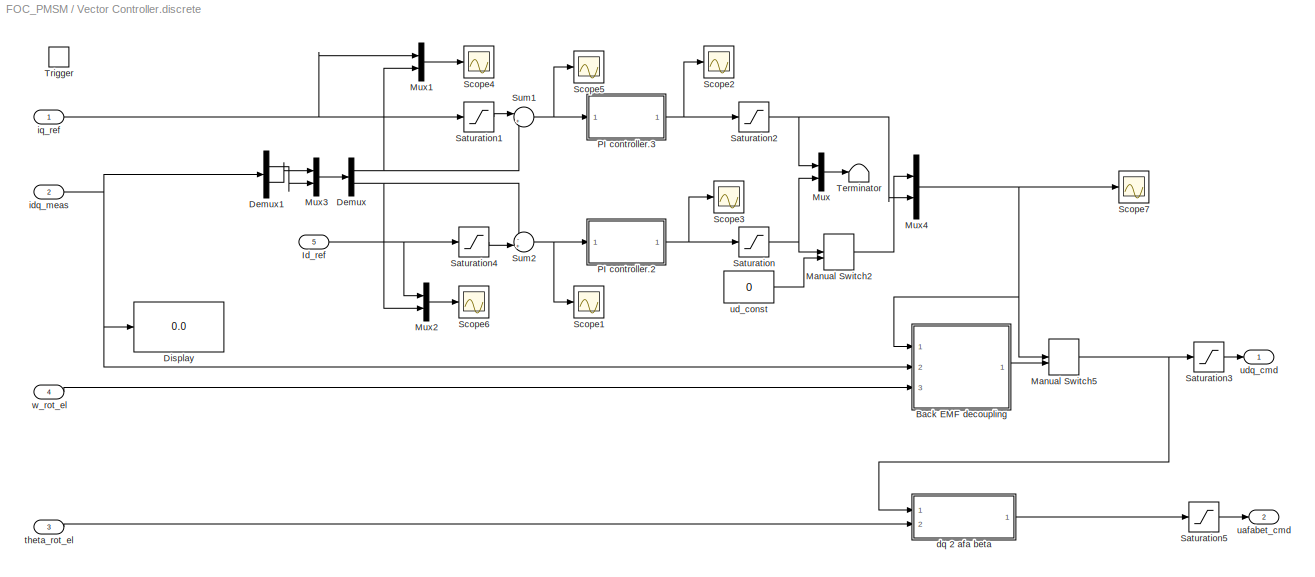
BLOCK [SubSystem] Vector Controller.discrete
  Ports = [5, 2, 0, 1]
  RequestExecContextInheritance = off
  SID = 843
BLOCK [SubSystem] Vector Controller.discrete/Back EMF decoupling
  Ports = [3, 1]
  RequestExecContextInheritance = off
  SID = 849
BLOCK [Demux] Vector Controller.discrete/Back EMF decoupling/Demux1
  DisplayOption = bar
  Outputs = 2
  Ports = [1, 2]
  SID = 853
BLOCK [Demux] Vector Controller.discrete/Back EMF decoupling/Demux2
  DisplayOption = bar
  Outputs = 2
  Ports = [1, 2]
  SID = 854
BLOCK [Gain] Vector Controller.discrete/Back EMF decoupling/Gain
  Gain = Lq
  OutDataTypeStr = Inherit: Inherit via internal rule
  ParamDataTypeStr = Inherit: Inherit via internal rule
  SID = 855
  SaturateOnIntegerOverflow = off
BLOCK [Gain] Vector Controller.discrete/Back EMF decoupling/Gain1
  Gain = Ld
  OutDataTypeStr = Inherit: Inherit via internal rule
  ParamDataTypeStr = Inherit: Inherit via internal rule
  SID = 856
  SaturateOnIntegerOverflow = off
BLOCK [Constant] Vector Controller.discrete/Back EMF decoupling/Lndmpm
  SID = 857
  Value = Lndmpm
BLOCK [Mux] Vector Controller.discrete/Back EMF decoupling/Mux2
  DisplayOption = bar
  Inputs = 2
  Ports = [2, 1]
  SID = 858
BLOCK [Product] Vector Controller.discrete/Back EMF decoupling/Product
  InputSameDT = off
  OutDataTypeStr = Inherit: Inherit via internal rule
  Ports = [2, 1]
  SID = 859
  SaturateOnIntegerOverflow = off
BLOCK [Product] Vector Controller.discrete/Back EMF decoupling/Product1
  InputSameDT = off
  OutDataTypeStr = Inherit: Inherit via internal rule
  Ports = [2, 1]
  SID = 860
  SaturateOnIntegerOverflow = off
BLOCK [Product] Vector Controller.discrete/Back EMF decoupling/Product2
  InputSameDT = off
  OutDataTypeStr = Inherit: Inherit via internal rule
  Ports = [2, 1]
  SID = 861
  SaturateOnIntegerOverflow = off
BLOCK [Sum] Vector Controller.discrete/Back EMF decoupling/Sum
  IconShape = round
  InputSameDT = off
  Inputs = |+-
  OutDataTypeStr = Inherit: Inherit via internal rule
  Ports = [2, 1]
  SID = 862
  SaturateOnIntegerOverflow = off
BLOCK [Sum] Vector Controller.discrete/Back EMF decoupling/Sum1
  IconShape = round
  InputSameDT = off
  Inputs = |++
  OutDataTypeStr = Inherit: Inherit via internal rule
  Ports = [2, 1]
  SID = 863
  SaturateOnIntegerOverflow = off
BLOCK [Sum] Vector Controller.discrete/Back EMF decoupling/Sum2
  IconShape = round
  InputSameDT = off
  Inputs = |++
  OutDataTypeStr = Inherit: Inherit via internal rule
  Ports = [2, 1]
  SID = 864
  SaturateOnIntegerOverflow = off
BLOCK [Inport] Vector Controller.discrete/Back EMF decoupling/idq_meas
  IconDisplay = Port number
  Port = 2
  SID = 851
BLOCK [Outport] Vector Controller.discrete/Back EMF decoupling/udq_cmd
  IconDisplay = Port number
  SID = 865
BLOCK [Inport] Vector Controller.discrete/Back EMF decoupling/vdq,PI
  IconDisplay = Port number
  SID = 850
BLOCK [Inport] Vector Controller.discrete/Back EMF decoupling/wr
  IconDisplay = Port number
  Port = 3
  SID = 852
BLOCK [Demux] Vector Controller.discrete/Demux
  DisplayOption = bar
  Outputs = 2
  Ports = [1, 2]
  SID = 866
BLOCK [Demux] Vector Controller.discrete/Demux1
  DisplayOption = bar
  Outputs = 2
  Ports = [1, 2]
  SID = 867
BLOCK [Display] Vector Controller.discrete/Display
  Decimation = 1
  Ports = [1]
  SID = 868
BLOCK [Inport] Vector Controller.discrete/Id_ref
  IconDisplay = Port number
  Port = 5
  SID = 969
BLOCK [ManualSwitch] Vector Controller.discrete/Manual Switch2
  SID = 870
BLOCK [ManualSwitch] Vector Controller.discrete/Manual Switch5
  SID = 871
BLOCK [Mux] Vector Controller.discrete/Mux
  DisplayOption = bar
  Inputs = 2
  Ports = [2, 1]
  SID = 872
BLOCK [Mux] Vector Controller.discrete/Mux1
  DisplayOption = bar
  Inputs = 2
  Ports = [2, 1]
  SID = 873
BLOCK [Mux] Vector Controller.discrete/Mux2
  DisplayOption = bar
  Inputs = 2
  Ports = [2, 1]
  SID = 874
BLOCK [Mux] Vector Controller.discrete/Mux3
  DisplayOption = bar
  Inputs = 2
  Ports = [2, 1]
  SID = 875
BLOCK [Mux] Vector Controller.discrete/Mux4
  DisplayOption = bar
  Inputs = 2
  Ports = [2, 1]
  SID = 876
BLOCK [SubSystem] Vector Controller.discrete/PI controller.2
  Ports = [1, 1]
  RequestExecContextInheritance = off
  SID = 877
BLOCK [DiscreteIntegrator] Vector Controller.discrete/PI controller.2/Discrete-Time\nIntegrator
  ICPrevOutput = DiscIntNeverNeededParam
  ICPrevScaledInput = DiscIntNeverNeededParam
  Ports = [1, 1]
  SID = 879
  SampleTime = -1
BLOCK [Gain] Vector Controller.discrete/PI controller.2/Kp
  Gain = Kp2
  OutDataTypeStr = Inherit: Inherit via internal rule
  ParamDataTypeStr = Inherit: Inherit via internal rule
  SID = 880
  SaturateOnIntegerOverflow = off
BLOCK [Sum] Vector Controller.discrete/PI controller.2/Sum1
  IconShape = round
  InputSameDT = off
  Inputs = |++
  OutDataTypeStr = Inherit: Inherit via internal rule
  Ports = [2, 1]
  SID = 881
  SaturateOnIntegerOverflow = off
BLOCK [Inport] Vector Controller.discrete/PI controller.2/id_err
  IconDisplay = Port number
  SID = 878
BLOCK [Gain] Vector Controller.discrete/PI controller.2/ki
  Gain = Ki2
  OutDataTypeStr = Inherit: Inherit via internal rule
  ParamDataTypeStr = Inherit: Inherit via internal rule
  SID = 882
  SaturateOnIntegerOverflow = off
BLOCK [Outport] Vector Controller.discrete/PI controller.2/vd
  IconDisplay = Port number
  SID = 883
BLOCK [SubSystem] Vector Controller.discrete/PI controller.3
  Ports = [1, 1]
  RequestExecContextInheritance = off
  SID = 884
BLOCK [DiscreteIntegrator] Vector Controller.discrete/PI controller.3/Discrete-Time\nIntegrator
  ICPrevOutput = DiscIntNeverNeededParam
  ICPrevScaledInput = DiscIntNeverNeededParam
  Ports = [1, 1]
  SID = 886
  SampleTime = -1
BLOCK [Gain] Vector Controller.discrete/PI controller.3/Kp
  Gain = 8
  OutDataTypeStr = Inherit: Inherit via internal rule
  ParamDataTypeStr = Inherit: Inherit via internal rule
  SID = 887
  SaturateOnIntegerOverflow = off
BLOCK [Sum] Vector Controller.discrete/PI controller.3/Sum1
  IconShape = round
  InputSameDT = off
  Inputs = |++
  OutDataTypeStr = Inherit: Inherit via internal rule
  Ports = [2, 1]
  SID = 888
  SaturateOnIntegerOverflow = off
BLOCK [Inport] Vector Controller.discrete/PI controller.3/iq_err
  IconDisplay = Port number
  SID = 885
BLOCK [Gain] Vector Controller.discrete/PI controller.3/ki
  Gain = 5000
  OutDataTypeStr = Inherit: Inherit via internal rule
  ParamDataTypeStr = Inherit: Inherit via internal rule
  SID = 889
  SaturateOnIntegerOverflow = off
BLOCK [Outport] Vector Controller.discrete/PI controller.3/vq
  IconDisplay = Port number
  SID = 890
BLOCK [Saturate] Vector Controller.discrete/Saturation
  InputPortMap = u0
  LowerLimit = -Vph
  Ports = [1, 1]
  SID = 891
  UpperLimit = Vph
BLOCK [Saturate] Vector Controller.discrete/Saturation1
  InputPortMap = u0
  LowerLimit = -Iphmax
  Ports = [1, 1]
  SID = 892
  UpperLimit = Iphmax
BLOCK [Saturate] Vector Controller.discrete/Saturation2
  InputPortMap = u0
  LowerLimit = -Vph
  Ports = [1, 1]
  SID = 893
  UpperLimit = Vph
BLOCK [Saturate] Vector Controller.discrete/Saturation3
  InputPortMap = u0
  LowerLimit = -Vph
  Ports = [1, 1]
  SID = 2651
  UpperLimit = Vph
BLOCK [Saturate] Vector Controller.discrete/Saturation4
  InputPortMap = u0
  LowerLimit = -Iphmax
  Ports = [1, 1]
  SID = 894
  UpperLimit = Iphmax
BLOCK [Saturate] Vector Controller.discrete/Saturation5
  InputPortMap = u0
  LowerLimit = -Vph
  Ports = [1, 1]
  SID = 2652
  UpperLimit = Vph
BLOCK [Scope] Vector Controller.discrete/Scope1
  Floating = off
  NumInputPorts = 1
  Ports = [1]
  SID = 895
  ScopeSpecificationString = C++SS(StrPVP('Location','[1, 48, 1367, 727]'),StrPVP('Open','off'),StrPVP('ZoomMode','xonly'),MxPVP('AxesTitles',53,'struct(''axes1'',''%<SignalLabel>'')'),StrPVP('ShowLegends','off'),StrPVP('SaveName','ScopeData18'),StrPVP('DataFormat','StructureWithTime'),StrPVP('LimitDataPoints','off'),StrPVP('BlockParamSampleTime','0'),StrPVP('Decimation','1'),StrPVP('BlockParamSampleInput','off'))
BLOCK [Scope] Vector Controller.discrete/Scope2
  Floating = off
  NumInputPorts = 1
  Ports = [1]
  SID = 896
  ScopeSpecificationString = C++SS(StrPVP('Location','[201, 176, 851, 571]'),StrPVP('Open','off'),StrPVP('ZoomMode','xonly'),MxPVP('AxesTitles',53,'struct(''axes1'',''%<SignalLabel>'')'),MxPVP('ScopeGraphics',56,'struct(''FigureColor'',''[0.5 0.5 0.5]'',''AxesColor'',''[0 0 0]'',''AxesTickColor'',''[1 1 1]'',''LineColors'',''[1 1 0;1 0 1;0 1 1;1 0 0;0 1 0;0 0 1]'',''LineStyles'',''-|-|-|-|-|-'',''LineWidths'',''[0.5 0.5 0.5 0...<+344ch>
BLOCK [Scope] Vector Controller.discrete/Scope3
  Floating = off
  NumInputPorts = 1
  Ports = [1]
  SID = 897
  ScopeSpecificationString = C++SS(StrPVP('Location','[92, 329, 742, 724]'),StrPVP('Open','off'),StrPVP('ZoomMode','xonly'),MxPVP('AxesTitles',53,'struct(''axes1'',''%<SignalLabel>'')'),MxPVP('ScopeGraphics',56,'struct(''FigureColor'',''[0.5 0.5 0.5]'',''AxesColor'',''[0 0 0]'',''AxesTickColor'',''[1 1 1]'',''LineColors'',''[1 1 0;1 0 1;0 1 1;1 0 0;0 1 0;0 0 1]'',''LineStyles'',''-|-|-|-|-|-'',''LineWidths'',''[0.5 0.5 0.5 0....<+299ch>
BLOCK [Scope] Vector Controller.discrete/Scope4
  Floating = off
  NumInputPorts = 1
  Ports = [1]
  SID = 898
  ScopeSpecificationString = Simulink.scopes.TimeScopeBlockCfg('CurrentConfiguration', extmgr.ConfigurationSet(extmgr.Configuration('Core','General UI',true),extmgr.Configuration('Core','Source UI',true),extmgr.Configuration('Sources','WiredSimulink',true,'DataLoggingVariableName','ScopeData5','DataLoggingSaveFormat','StructureWithTime','DataLoggingDecimation','1','DataLoggingDecimateData',true),extmgr.Configuration('Visuals'...<+1791ch>
BLOCK [Scope] Vector Controller.discrete/Scope5
  Floating = off
  NumInputPorts = 1
  Ports = [1]
  SID = 899
  ScopeSpecificationString = C++SS(StrPVP('Location','[21, 399, 671, 794]'),StrPVP('Open','off'),StrPVP('ZoomMode','xonly'),MxPVP('AxesTitles',53,'struct(''axes1'',''%<SignalLabel>'')'),MxPVP('ScopeGraphics',56,'struct(''FigureColor'',''[0.5 0.5 0.5]'',''AxesColor'',''[0 0 0]'',''AxesTickColor'',''[1 1 1]'',''LineColors'',''[1 1 0;1 0 1;0 1 1;1 0 0;0 1 0;0 0 1]'',''LineStyles'',''-|-|-|-|-|-'',''LineWidths'',''[0.5 0.5 0.5 0....<+299ch>
BLOCK [Scope] Vector Controller.discrete/Scope6
  Floating = off
  NumInputPorts = 1
  Ports = [1]
  SID = 900
  ScopeSpecificationString = Simulink.scopes.TimeScopeBlockCfg('CurrentConfiguration', extmgr.ConfigurationSet(extmgr.Configuration('Core','General UI',true),extmgr.Configuration('Core','Source UI',true),extmgr.Configuration('Sources','WiredSimulink',true,'DataLoggingVariableName','ScopeData8','DataLoggingSaveFormat','StructureWithTime','DataLoggingDecimation','1','DataLoggingDecimateData',true),extmgr.Configuration('Visuals'...<+1802ch>
BLOCK [Scope] Vector Controller.discrete/Scope7
  Floating = off
  NumInputPorts = 1
  Ports = [1]
  SID = 982
  ScopeSpecificationString = C++SS(StrPVP('Location','[350, 309, 931, 666]'),StrPVP('Open','off'),MxPVP('AxesTitles',53,'struct(''axes1'',''%<SignalLabel>'')'),StrPVP('ShowLegends','off'),StrPVP('YMin','-10'),StrPVP('YMax','17.5'),StrPVP('SaveName','ScopeData30'),StrPVP('DataFormat','StructureWithTime'),StrPVP('LimitDataPoints','off'),StrPVP('BlockParamSampleTime','0'),StrPVP('Decimation','1'),StrPVP('BlockParamSampleInput','...<+6ch>
BLOCK [Sum] Vector Controller.discrete/Sum1
  IconShape = round
  InputSameDT = off
  Inputs = |+-
  OutDataTypeStr = Inherit: Inherit via internal rule
  Ports = [2, 1]
  SID = 901
  SaturateOnIntegerOverflow = off
BLOCK [Sum] Vector Controller.discrete/Sum2
  IconShape = round
  InputSameDT = off
  Inputs = -+|
  OutDataTypeStr = Inherit: Inherit via internal rule
  Ports = [2, 1]
  SID = 902
  SaturateOnIntegerOverflow = off
BLOCK [Terminator] Vector Controller.discrete/Terminator
  SID = 903
BLOCK [TriggerPort] Vector Controller.discrete/Trigger
  Ports = []
  SID = 848
  StatesWhenEnabling = held
  VariantControl = (inherit)
BLOCK [SubSystem] Vector Controller.discrete/dq 2 afa beta
  Ports = [2, 1]
  RequestExecContextInheritance = off
  SID = 904
BLOCK [Mux] Vector Controller.discrete/dq 2 afa beta/Mux1
  DisplayOption = bar
  Inputs = 2
  Ports = [2, 1]
  SID = 907
BLOCK [Mux] Vector Controller.discrete/dq 2 afa beta/Mux2
  DisplayOption = bar
  Inputs = 2
  Ports = [2, 1]
  SID = 908
BLOCK [Outport] Vector Controller.discrete/dq 2 afa beta/afa beta
  IconDisplay = Port number
  SID = 911
BLOCK [Inport] Vector Controller.discrete/dq 2 afa beta/dq
  IconDisplay = Port number
  SID = 905
BLOCK [Fcn] Vector Controller.discrete/dq 2 afa beta/dq2afa
  Expr = u(1)*cos(u(3))-u(2)*sin(u(3))
  SID = 909
BLOCK [Fcn] Vector Controller.discrete/dq 2 afa beta/dq2beta
  Expr = u(1)*sin(u(3))+u(2)*cos(u(3))
  SID = 910
BLOCK [Inport] Vector Controller.discrete/dq 2 afa beta/theta
  IconDisplay = Port number
  Port = 2
  SID = 906
BLOCK [Inport] Vector Controller.discrete/idq_meas
  IconDisplay = Port number
  Port = 2
  SID = 845
BLOCK [Inport] Vector Controller.discrete/iq_ref
  IconDisplay = Port number
  SID = 844
BLOCK [Inport] Vector Controller.discrete/theta_rot_el
  IconDisplay = Port number
  Port = 3
  SID = 846
BLOCK [Outport] Vector Controller.discrete/uafabet_cmd
  IconDisplay = Port number
  Port = 2
  SID = 914
BLOCK [Constant] Vector Controller.discrete/ud_const
  SID = 912
  Value = 0
BLOCK [Outport] Vector Controller.discrete/udq_cmd
  IconDisplay = Port number
  SID = 913
BLOCK [Inport] Vector Controller.discrete/w_rot_el
  IconDisplay = Port number
  Port = 4
  SID = 847
BLOCK [ZeroOrderHold] Zero-Order\nHold1
  SID = 922
  SampleTime = 1/5e3
BLOCK [Fcn] adj. agl
  Expr = u(1)+(u(1) < 0)*2*pi
  SID = 3823
BLOCK [Fcn] adj. agl1
  Expr = u(1)+(u(1) < 0)*360
  SID = 3824
BLOCK [Fcn] adj. agl2
  Expr = u(1)-(u(1) > 180)*360
  SID = 3825
BLOCK [Fcn] adj. agl3
  Expr = u(1)+(u(1) < 0)*2*pi
  SID = 3832
BLOCK [SubSystem] afabet 2 abc
  Ports = [1, 1]
  RequestExecContextInheritance = off
  SID = 3151
BLOCK [Constant] afabet 2 abc/Constant
  SID = 3153
  Value = 0
BLOCK [Mux] afabet 2 abc/Mux1
  DisplayOption = bar
  Inputs = 2
  Ports = [2, 1]
  SID = 3154
BLOCK [Mux] afabet 2 abc/Mux2
  DisplayOption = bar
  Inputs = 3
  Ports = [3, 1]
  SID = 3155
BLOCK [Outport] afabet 2 abc/abc
  IconDisplay = Port number
  SID = 3159
BLOCK [Inport] afabet 2 abc/afabet
  IconDisplay = Port number
  SID = 3152
BLOCK [Fcn] afabet 2 abc/qd2a
  Expr = u(1)+u(3)
  SID = 3156
BLOCK [Fcn] afabet 2 abc/qd2b
  Expr = u(1)*cos(2/3*pi)+u(2)*sin(2/3*pi)+u(3)
  SID = 3157
BLOCK [Fcn] afabet 2 abc/qd2c
  Expr = u(1)*cos(2/3*pi)-u(2)*sin(2/3*pi)+u(3)
  SID = 3158
BLOCK [Gain] el2mec
  Gain = 1/Npp
  OutDataTypeStr = Inherit: Inherit via internal rule
  ParamDataTypeStr = Inherit: Inherit via internal rule
  SID = 3165
  SaturateOnIntegerOverflow = off
BLOCK [From] iqd_meas.1
  CloseFcn = tagdialog Close
  GotoTag = Omega_rot_el
  SID = 935
BLOCK [From] iqd_meas.10
  CloseFcn = tagdialog Close
  GotoTag = iafabet_meas
  SID = 3826
  TagVisibility = global
BLOCK [Goto] iqd_meas.11
  GotoTag = vabc_cmd
  SID = 3160
BLOCK [From] iqd_meas.12
  CloseFcn = tagdialog Close
  GotoTag = vabc_cmd
  SID = 3129
BLOCK [Goto] iqd_meas.13
  GotoTag = Tload_cmd
  SID = 939
BLOCK [From] iqd_meas.14
  CloseFcn = tagdialog Close
  GotoTag = Tload_cmd
  SID = 3130
BLOCK [Goto] iqd_meas.15
  GotoTag = Te_meas
  SID = 3131
BLOCK [Goto] iqd_meas.16
  GotoTag = iabc_meas
  SID = 3134
  TagVisibility = global
BLOCK [Goto] iqd_meas.17
  GotoTag = vafabet_cmd
  SID = 942
BLOCK [From] iqd_meas.18
  CloseFcn = tagdialog Close
  GotoTag = vafabet_cmd
  SID = 3161
BLOCK [From] iqd_meas.19
  CloseFcn = tagdialog Close
  GotoTag = n_rot_mec
  SID = 944
BLOCK [From] iqd_meas.2
  CloseFcn = tagdialog Close
  GotoTag = idq_meas
  SID = 945
  TagVisibility = global
BLOCK [Goto] iqd_meas.20
  GotoTag = Flkg_abc
  SID = 3135
BLOCK [From] iqd_meas.21
  CloseFcn = tagdialog Close
  GotoTag = vafabet_cmd
  SID = 3830
BLOCK [Goto] iqd_meas.27
  GotoTag = Flkg_afabet
  SID = 3132
BLOCK [From] iqd_meas.3
  CloseFcn = tagdialog Close
  GotoTag = theta_rot_el
  SID = 947
  TagVisibility = global
BLOCK [Goto] iqd_meas.34
  GotoTag = the_rot_est
  SID = 3827
BLOCK [From] iqd_meas.37
  CloseFcn = tagdialog Close
  GotoTag = theta_rot_el
  SID = 3828
  TagVisibility = global
BLOCK [From] iqd_meas.38
  CloseFcn = tagdialog Close
  GotoTag = the_rot_est
  SID = 3829
BLOCK [From] iqd_meas.39
  CloseFcn = tagdialog Close
  GotoTag = theta_rot_el_meas
  SID = 951
  TagVisibility = global
BLOCK [Goto] iqd_meas.4
  GotoTag = vdq_cmd
  SID = 952
BLOCK [Goto] iqd_meas.5
  GotoTag = didiq_dt
  SID = 3128
BLOCK [From] iqd_meas.6
  CloseFcn = tagdialog Close
  GotoTag = n_rot_mec
  SID = 955
BLOCK [Goto] iqd_meas.7
  GotoTag = Iq_command
  SID = 3167
BLOCK [Goto] iqd_meas.8
  GotoTag = Omega_rot_el
  SID = 3133
BLOCK [From] iqd_meas.9
  CloseFcn = tagdialog Close
  GotoTag = Iq_command
  SID = 3169
BLOCK [SubSystem] n_ref
  ClipboardFcn = sigbuilder_block('clipboard');
  CloseFcn = sigbuilder_block('close');
  ContinueFcn = sigbuilder_block('continue')
  CopyFcn = sigbuilder_block('copy');
  DeleteFcn = sigbuilder_block('delete');
  LoadFcn = sigbuilder_block('load');
  MaskHideContents = on
  ModelCloseFcn = sigbuilder_block('modelClose');
  NameChangeFcn = sigbuilder_block('namechange');
  OpenFcn = sigbuilder_block('open',[72.75 116.25 550.5 363.75 ]);
  PauseFcn = sigbuilder_block('pause')
  Ports = [0, 1]
  PreSaveFcn = sigbuilder_block('preSave');
  RequestExecContextInheritance = off
  SID = 960
  StartFcn = sigbuilder_block('start');
  StopFcn = sigbuilder_block('stop');
  Tag = STV Subsys
BLOCK [Demux] n_ref/Demux
  Outputs = 1
  Ports = [1, 1]
  SID = 961
  Tag = STV Demux
BLOCK [FromWorkspace] n_ref/FromWs
  SID = 962
  SampleTime = 0
  SigBuilderData = DataTag0
  Tag = STV FromWs
  VariableName = tuvar
  VnvData = DataTag1
  ZeroCross = on
BLOCK [Outport] n_ref/n
  IconDisplay = Port number
  SID = 963
  Tag = STV Outport
BLOCK [Gain] rad2rpm
  Gain = 30/pi
  OutDataTypeStr = Inherit: Inherit via internal rule
  ParamDataTypeStr = Inherit: Inherit via internal rule
  SID = 3136
  SaturateOnIntegerOverflow = off
BLOCK [Gain] swtich1
  Gain = 180/pi
  OutDataTypeStr = Inherit: Inherit via internal rule
  ParamDataTypeStr = Inherit: Inherit via internal rule
  SID = 3831
  SaturateOnIntegerOverflow = off
BLOCK [Goto] theta_rot_el.1
  GotoTag = theta_rot_el_meas
  SID = 3137
  TagVisibility = global
BLOCK [Goto] theta_rot_el.2
  GotoTag = n_rot_el
  SID = 3138
BLOCK [Goto] theta_rot_el.3
  GotoTag = theta_rot_el
  SID = 967
  TagVisibility = global
BLOCK [Goto] theta_rot_el.4
  GotoTag = n_rot_mec
  SID = 3166
ANNOTATION (root): FOC_PMSM
ANNOTATION PMSM motor: Lnd_d
ANNOTATION PMSM motor: Lnd_q
ANNOTATION PMSM motor: el. rotor speed
ANNOTATION Rotor Pos. estimation/Cal. stator flux linkage/MinMax detection/Max. Det/Counter.1/Conter with enable: High input enables counting\nLow input set the SR (output 1)\nTo be ready for next start of \ncounting
ANNOTATION Rotor Pos. estimation/Cal. stator flux linkage/MinMax detection/Max. Det/Counter.1/Conter with enable: Max. counter not reached - 0\nreached, give a pulse, width\ndetermined by the 1/z
ANNOTATION Rotor Pos. estimation/Cal. stator flux linkage/MinMax detection/Max. Det/Counter.2/Conter with enable: High input enables counting\nLow input set the SR (output 1)\nTo be ready for next start of \ncounting
ANNOTATION Rotor Pos. estimation/Cal. stator flux linkage/MinMax detection/Max. Det/Counter.2/Conter with enable: Max. counter not reached - 0\nreached, give a pulse, width\ndetermined by the 1/z
ANNOTATION Rotor Pos. estimation/Cal. stator flux linkage/MinMax detection/Max. Det/Counter.2/Rising edge gen.: High input enables counting\nLow input set the SR (output 1)\nTo be ready for next start of \ncounting
ANNOTATION Rotor Pos. estimation/Cal. stator flux linkage/MinMax detection/Max. Det/Counter.2/Rising edge gen.: Max. counter not reached - 0\nreached, give a pulse, width\ndetermined by the 1/z
ANNOTATION Rotor Pos. estimation/Cal. stator flux linkage/MinMax detection/Min. Det/Counter.1/Conter with enable: High input enables counting\nLow input set the SR (output 1)\nTo be ready for next start of \ncounting
ANNOTATION Rotor Pos. estimation/Cal. stator flux linkage/MinMax detection/Min. Det/Counter.1/Conter with enable: Max. counter not reached - 0\nreached, give a pulse, width\ndetermined by the 1/z
ANNOTATION Rotor Pos. estimation/Cal. stator flux linkage/MinMax detection/Min. Det/Counter.2/Conter with enable: High input enables counting\nLow input set the SR (output 1)\nTo be ready for next start of \ncounting
ANNOTATION Rotor Pos. estimation/Cal. stator flux linkage/MinMax detection/Min. Det/Counter.2/Conter with enable: Max. counter not reached - 0\nreached, give a pulse, width\ndetermined by the 1/z
ANNOTATION Rotor Pos. estimation/Cal. stator flux linkage/MinMax detection/Min. Det/Counter.2/Rising edge gen.: High input enables counting\nLow input set the SR (output 1)\nTo be ready for next start of \ncounting
ANNOTATION Rotor Pos. estimation/Cal. stator flux linkage/MinMax detection/Min. Det/Counter.2/Rising edge gen.: Max. counter not reached - 0\nreached, give a pulse, width\ndetermined by the 1/z
ANNOTATION Rotor Pos. estimation/Cal. stator flux linkage1/MinMax detection/Max. Det/Counter.1/Conter with enable: High input enables counting\nLow input set the SR (output 1)\nTo be ready for next start of \ncounting
ANNOTATION Rotor Pos. estimation/Cal. stator flux linkage1/MinMax detection/Max. Det/Counter.1/Conter with enable: Max. counter not reached - 0\nreached, give a pulse, width\ndetermined by the 1/z
ANNOTATION Rotor Pos. estimation/Cal. stator flux linkage1/MinMax detection/Max. Det/Counter.2/Conter with enable: High input enables counting\nLow input set the SR (output 1)\nTo be ready for next start of \ncounting
ANNOTATION Rotor Pos. estimation/Cal. stator flux linkage1/MinMax detection/Max. Det/Counter.2/Conter with enable: Max. counter not reached - 0\nreached, give a pulse, width\ndetermined by the 1/z
ANNOTATION Rotor Pos. estimation/Cal. stator flux linkage1/MinMax detection/Max. Det/Counter.2/Rising edge gen.: High input enables counting\nLow input set the SR (output 1)\nTo be ready for next start of \ncounting
ANNOTATION Rotor Pos. estimation/Cal. stator flux linkage1/MinMax detection/Max. Det/Counter.2/Rising edge gen.: Max. counter not reached - 0\nreached, give a pulse, width\ndetermined by the 1/z
ANNOTATION Rotor Pos. estimation/Cal. stator flux linkage1/MinMax detection/Min. Det/Counter.1/Conter with enable: High input enables counting\nLow input set the SR (output 1)\nTo be ready for next start of \ncounting
ANNOTATION Rotor Pos. estimation/Cal. stator flux linkage1/MinMax detection/Min. Det/Counter.1/Conter with enable: Max. counter not reached - 0\nreached, give a pulse, width\ndetermined by the 1/z
ANNOTATION Rotor Pos. estimation/Cal. stator flux linkage1/MinMax detection/Min. Det/Counter.2/Conter with enable: High input enables counting\nLow input set the SR (output 1)\nTo be ready for next start of \ncounting
ANNOTATION Rotor Pos. estimation/Cal. stator flux linkage1/MinMax detection/Min. Det/Counter.2/Conter with enable: Max. counter not reached - 0\nreached, give a pulse, width\ndetermined by the 1/z
ANNOTATION Rotor Pos. estimation/Cal. stator flux linkage1/MinMax detection/Min. Det/Counter.2/Rising edge gen.: High input enables counting\nLow input set the SR (output 1)\nTo be ready for next start of \ncounting
ANNOTATION Rotor Pos. estimation/Cal. stator flux linkage1/MinMax detection/Min. Det/Counter.2/Rising edge gen.: Max. counter not reached - 0\nreached, give a pulse, width\ndetermined by the 1/z
LINE Const. iq_ref:1 -> Manual Switch1:2
LINE Constant1:1 -> Vector Controller.discrete:5
LINE Constant2:1 -> Multiport\nSwitch:3
LINE Constant:1 -> Manual Switch3:2
LINE Current 3//2 \ntransformation/Detect peak/Clock:1 -> Current 3//2 \ntransformation/Detect peak/Compare\nTo Constant:1
LINE Current 3//2 \ntransformation/Detect peak/Compare\nTo Constant:1 -> Current 3//2 \ntransformation/Detect peak/Product:1
LINE Current 3//2 \ntransformation/Detect peak/Demux1:1 -> Current 3//2 \ntransformation/Detect peak/Product:2
LINE Current 3//2 \ntransformation/Detect peak/Demux1:2 -> Current 3//2 \ntransformation/Detect peak/Terminator1:1
LINE Current 3//2 \ntransformation/Detect peak/Demux1:3 -> Current 3//2 \ntransformation/Detect peak/Terminator:1
NET Current 3//2 \ntransformation/Detect peak/MinMax:1 -> Current 3//2 \ntransformation/Detect peak/Peak:1, Current 3//2 \ntransformation/Detect peak/Unit Delay:1
LINE Current 3//2 \ntransformation/Detect peak/Product:1 -> Current 3//2 \ntransformation/Detect peak/MinMax:1
LINE Current 3//2 \ntransformation/Detect peak/Unit Delay:1 -> Current 3//2 \ntransformation/Detect peak/MinMax:2
LINE Current 3//2 \ntransformation/Detect peak/iabc:1 -> Current 3//2 \ntransformation/Detect peak/Demux1:1
LINE Current 3//2 \ntransformation/Detect peak:1 -> Current 3//2 \ntransformation/Display:1
NET Current 3//2 \ntransformation/Manual Switch7:1 -> Current 3//2 \ntransformation/Detect peak:1, Current 3//2 \ntransformation/abc 2 dq:1
NET Current 3//2 \ntransformation/abc 2 dq/Mux1:1 -> Current 3//2 \ntransformation/abc 2 dq/abc2d:1, Current 3//2 \ntransformation/abc 2 dq/abc2q:1
LINE Current 3//2 \ntransformation/abc 2 dq/Mux2:1 -> Current 3//2 \ntransformation/abc 2 dq/dq:1
LINE Current 3//2 \ntransformation/abc 2 dq/abc2d:1 -> Current 3//2 \ntransformation/abc 2 dq/Mux2:1
LINE Current 3//2 \ntransformation/abc 2 dq/abc2q:1 -> Current 3//2 \ntransformation/abc 2 dq/Mux2:2
LINE Current 3//2 \ntransformation/abc 2 dq/abc:1 -> Current 3//2 \ntransformation/abc 2 dq/Mux1:1
LINE Current 3//2 \ntransformation/abc 2 dq/theta:1 -> Current 3//2 \ntransformation/abc 2 dq/Mux1:2
NET Current 3//2 \ntransformation/abc 2 dq:1 -> Current 3//2 \ntransformation/Scope6:1, Current 3//2 \ntransformation/dq 2 afa beta:1, Current 3//2 \ntransformation/iqd_meas.1:1
NET Current 3//2 \ntransformation/dq 2 afa beta/Mux1:1 -> Current 3//2 \ntransformation/dq 2 afa beta/dq2afa:1, Current 3//2 \ntransformation/dq 2 afa beta/dq2beta:1
LINE Current 3//2 \ntransformation/dq 2 afa beta/Mux2:1 -> Current 3//2 \ntransformation/dq 2 afa beta/afa beta:1
LINE Current 3//2 \ntransformation/dq 2 afa beta/dq2afa:1 -> Current 3//2 \ntransformation/dq 2 afa beta/Mux2:1
LINE Current 3//2 \ntransformation/dq 2 afa beta/dq2beta:1 -> Current 3//2 \ntransformation/dq 2 afa beta/Mux2:2
LINE Current 3//2 \ntransformation/dq 2 afa beta/dq:1 -> Current 3//2 \ntransformation/dq 2 afa beta/Mux1:1
LINE Current 3//2 \ntransformation/dq 2 afa beta/theta:1 -> Current 3//2 \ntransformation/dq 2 afa beta/Mux1:2
NET Current 3//2 \ntransformation/dq 2 afa beta:1 -> Current 3//2 \ntransformation/Scope14:1, Current 3//2 \ntransformation/iqd_meas.7:1
NET Current 3//2 \ntransformation/iqd_meas.20:1 -> Current 3//2 \ntransformation/Display1:1, Current 3//2 \ntransformation/abc 2 dq:2, Current 3//2 \ntransformation/dq 2 afa beta:2
NET Current 3//2 \ntransformation/iqd_meas.21:1 -> Current 3//2 \ntransformation/Manual Switch7:1, Current 3//2 \ntransformation/Manual Switch7:2
NET Demux1:1 -> Mux3:1, Scope7:1
NET Demux1:2 -> Mux3:2, Scope8:1
LINE Gain2:1 -> Sum1:2
LINE Gain:1 -> Manual Switch3:1
LINE Load Selection:1 -> Multiport\nSwitch:1
NET Load torque/Add:1 -> Load torque/Scope2:1, Load torque/T_load:1
LINE Load torque/Step\nLoad torque 1:1 -> Load torque/Add:2
LINE Load torque/Step\nLoad torque2:1 -> Load torque/Add:3
LINE Load torque/Tload:1 -> Load torque/Add:1
NET Load torque:1 -> Gain2:1, Multiport\nSwitch:4
NET Manual Switch1:1 -> Scope6:1, Vector Controller.discrete:1
NET Manual Switch3:1 -> Mux1:2, Sum:2
NET Manual Switch5:1 -> Multiport\nSwitch1:1, Scope10:1
LINE Multiport\nSwitch1:1 -> theta_rot_el.3:1
LINE Multiport\nSwitch:1 -> iqd_meas.13:1
LINE Mux1:1 -> Scope5:1
LINE Mux3:1 -> afabet 2 abc:1
LINE Mux9:1 -> Scope11:1
LINE PMSM motor/1//J:1 -> PMSM motor/Int.6:1
NET PMSM motor/1//Ld.1:1 -> PMSM motor/Mux:1, PMSM motor/id.1:1
LINE PMSM motor/1//Ld.2:1 -> PMSM motor/Mux2:1
NET PMSM motor/1//Lq.1:1 -> PMSM motor/Mux:2, PMSM motor/iq.1:1
LINE PMSM motor/1//Lq.2:1 -> PMSM motor/Mux2:2
LINE PMSM motor/3//2Npp:1 -> PMSM motor/Te.2:1
LINE PMSM motor/Add:1 -> PMSM motor/3//2Npp:1
LINE PMSM motor/Clock:1 -> PMSM motor/qd2a:1
LINE PMSM motor/Const. Omeg:1 -> PMSM motor/Manual Switch:1
LINE PMSM motor/Constant2:1 -> PMSM motor/Relational\nOperator2:2
LINE PMSM motor/Demux:1 -> PMSM motor/vd:1
LINE PMSM motor/Demux:2 -> PMSM motor/vq:1
NET PMSM motor/Gain1:1 -> PMSM motor/Relational\nOperator2:1, PMSM motor/Theta.el1:1
LINE PMSM motor/Ini. rotor pos. (rad):1 -> PMSM motor/Multiport\nSwitch:2
NET PMSM motor/Int.1:1 -> PMSM motor/1//Lq.1:1, PMSM motor/Lndq:1, PMSM motor/Prod.2:2, PMSM motor/Scope8:1
NET PMSM motor/Int.2:1 -> PMSM motor/Lndd:1, PMSM motor/Prod.1:2, PMSM motor/Scope6:1, PMSM motor/Sum5:2
LINE PMSM motor/Int.6:1 -> PMSM motor/Npp:1
NET PMSM motor/Integrator1:1 -> PMSM motor/Gain1:1, PMSM motor/abc 2 dq:2, PMSM motor/dq 2 afa beta:2, PMSM motor/dq0 2 abc1:2, PMSM motor/dq0 2 abc:2, PMSM motor/the_rot_el:1
LINE PMSM motor/Lndd.1:1 -> PMSM motor/Product:2
LINE PMSM motor/Lndd.3:1 -> PMSM motor/Mux3:1
LINE PMSM motor/Lndq.1:1 -> PMSM motor/Product1:2
LINE PMSM motor/Lndq.2:1 -> PMSM motor/Mux3:2
NET PMSM motor/Manual Switch:1 -> PMSM motor/Integrator1:1, PMSM motor/Omega.1:1
LINE PMSM motor/Multiport\nSwitch:1 -> PMSM motor/Integrator1:3
LINE PMSM motor/Mux1:1 -> PMSM motor/dq0 2 abc:1
NET PMSM motor/Mux2:1 -> PMSM motor/Scope1:1, PMSM motor/didiq_dt:1
LINE PMSM motor/Mux3:1 -> PMSM motor/dq 2 afa beta:1
LINE PMSM motor/Mux4:1 -> PMSM motor/dq0 2 abc1:1
NET PMSM motor/Mux:1 -> PMSM motor/Mux1:1, PMSM motor/Scope:1
LINE PMSM motor/Npp:1 -> PMSM motor/Manual Switch:2
NET PMSM motor/Omega.2:1 -> PMSM motor/Prod.1:1, PMSM motor/Prod.2:1
LINE PMSM motor/Omega.3:1 -> PMSM motor/Omega el.:1
LINE PMSM motor/Prod.1:1 -> PMSM motor/Sum1:2
LINE PMSM motor/Prod.2:1 -> PMSM motor/Sum3:1
LINE PMSM motor/Product1:1 -> PMSM motor/Add:2
LINE PMSM motor/Product:1 -> PMSM motor/Add:1
LINE PMSM motor/Relational\nOperator2:1 -> PMSM motor/Integrator1:2
LINE PMSM motor/Rotor peak PM flux linkage:1 -> PMSM motor/Sum5:1
LINE PMSM motor/Rs.1:1 -> PMSM motor/Sum:2
LINE PMSM motor/Rs.2:1 -> PMSM motor/Sum2:1
LINE PMSM motor/Sum15:1 -> PMSM motor/1//J:1
NET PMSM motor/Sum1:1 -> PMSM motor/1//Lq.2:1, PMSM motor/Int.1:1
LINE PMSM motor/Sum2:1 -> PMSM motor/Sum3:2
NET PMSM motor/Sum3:1 -> PMSM motor/1//Ld.2:1, PMSM motor/Int.2:1
LINE PMSM motor/Sum5:1 -> PMSM motor/1//Ld.1:1
LINE PMSM motor/Sum:1 -> PMSM motor/Sum1:1
LINE PMSM motor/Te.1:1 -> PMSM motor/Sum15:2
LINE PMSM motor/Te.3:1 -> PMSM motor/Te:1
LINE PMSM motor/Tl.1:1 -> PMSM motor/Sum15:1
LINE PMSM motor/Tload:1 -> PMSM motor/Tl:1
LINE PMSM motor/Vd.1:1 -> PMSM motor/Sum2:2
LINE PMSM motor/Vq.1:1 -> PMSM motor/Sum:1
LINE PMSM motor/Vq.2:1 -> PMSM motor/Mux4:1
LINE PMSM motor/Vq.3:1 -> PMSM motor/Mux4:2
NET PMSM motor/abc 2 dq/Mux1:1 -> PMSM motor/abc 2 dq/abc2d:1, PMSM motor/abc 2 dq/abc2q:1
LINE PMSM motor/abc 2 dq/Mux2:1 -> PMSM motor/abc 2 dq/dq:1
LINE PMSM motor/abc 2 dq/abc2d:1 -> PMSM motor/abc 2 dq/Mux2:2
LINE PMSM motor/abc 2 dq/abc2q:1 -> PMSM motor/abc 2 dq/Mux2:1
LINE PMSM motor/abc 2 dq/abc:1 -> PMSM motor/abc 2 dq/Mux1:1
LINE PMSM motor/abc 2 dq/theta:1 -> PMSM motor/abc 2 dq/Mux1:2
NET PMSM motor/abc 2 dq:1 -> PMSM motor/Demux:1, PMSM motor/Scope13:1
NET PMSM motor/dq 2 afa beta/Mux1:1 -> PMSM motor/dq 2 afa beta/dq2afa:1, PMSM motor/dq 2 afa beta/dq2beta:1
LINE PMSM motor/dq 2 afa beta/Mux2:1 -> PMSM motor/dq 2 afa beta/afa beta:1
LINE PMSM motor/dq 2 afa beta/dq2afa:1 -> PMSM motor/dq 2 afa beta/Mux2:1
LINE PMSM motor/dq 2 afa beta/dq2beta:1 -> PMSM motor/dq 2 afa beta/Mux2:2
LINE PMSM motor/dq 2 afa beta/dq:1 -> PMSM motor/dq 2 afa beta/Mux1:1
LINE PMSM motor/dq 2 afa beta/theta:1 -> PMSM motor/dq 2 afa beta/Mux1:2
LINE PMSM motor/dq 2 afa beta:1 -> PMSM motor/Flkg_afabet:1
NET PMSM motor/dq0 2 abc/Mux1:1 -> PMSM motor/dq0 2 abc/qd2a:1, PMSM motor/dq0 2 abc/qd2b:1, PMSM motor/dq0 2 abc/qd2c:1
LINE PMSM motor/dq0 2 abc/Mux2:1 -> PMSM motor/dq0 2 abc/abc:1
LINE PMSM motor/dq0 2 abc/dq0:1 -> PMSM motor/dq0 2 abc/Mux1:1
LINE PMSM motor/dq0 2 abc/qd2a:1 -> PMSM motor/dq0 2 abc/Mux2:1
LINE PMSM motor/dq0 2 abc/qd2b:1 -> PMSM motor/dq0 2 abc/Mux2:2
LINE PMSM motor/dq0 2 abc/qd2c:1 -> PMSM motor/dq0 2 abc/Mux2:3
LINE PMSM motor/dq0 2 abc/theta:1 -> PMSM motor/dq0 2 abc/Mux1:2
NET PMSM motor/dq0 2 abc1/Mux1:1 -> PMSM motor/dq0 2 abc1/qd2a:1, PMSM motor/dq0 2 abc1/qd2b:1, PMSM motor/dq0 2 abc1/qd2c:1
LINE PMSM motor/dq0 2 abc1/Mux2:1 -> PMSM motor/dq0 2 abc1/abc:1
LINE PMSM motor/dq0 2 abc1/dq0:1 -> PMSM motor/dq0 2 abc1/Mux1:1
LINE PMSM motor/dq0 2 abc1/qd2a:1 -> PMSM motor/dq0 2 abc1/Mux2:1
LINE PMSM motor/dq0 2 abc1/qd2b:1 -> PMSM motor/dq0 2 abc1/Mux2:2
LINE PMSM motor/dq0 2 abc1/qd2c:1 -> PMSM motor/dq0 2 abc1/Mux2:3
LINE PMSM motor/dq0 2 abc1/theta:1 -> PMSM motor/dq0 2 abc1/Mux1:2
LINE PMSM motor/dq0 2 abc1:1 -> PMSM motor/Flkg_abc:1
LINE PMSM motor/dq0 2 abc:1 -> PMSM motor/iabc:1
LINE PMSM motor/i0:1 -> PMSM motor/Mux1:2
LINE PMSM motor/id.2:1 -> PMSM motor/Rs.2:1
LINE PMSM motor/id.5:1 -> PMSM motor/Product1:1
LINE PMSM motor/iq.2:1 -> PMSM motor/Rs.1:1
LINE PMSM motor/iq.4:1 -> PMSM motor/Product:1
LINE PMSM motor/qd2a:1 -> PMSM motor/Multiport\nSwitch:1
LINE PMSM motor/theta0.2:1 -> PMSM motor/Multiport\nSwitch:3
LINE PMSM motor/vabc:1 -> PMSM motor/abc 2 dq:1
LINE PMSM motor/zero:1 -> PMSM motor/Mux4:3
NET PMSM motor:1 -> iqd_meas.8:1, rad2rpm:1
NET PMSM motor:2 -> Scope2:1, iqd_meas.15:1
NET PMSM motor:3 -> Scope1:1, iqd_meas.16:1
NET PMSM motor:4 -> Scope4:1, theta_rot_el.1:1
LINE PMSM motor:5 -> iqd_meas.27:1
LINE PMSM motor:6 -> iqd_meas.20:1
LINE PMSM motor:7 -> iqd_meas.5:1
LINE Position Select:1 -> Manual Switch5:1
LINE Pulse\nGenerator1:1 -> Rotor Pos. estimation:trigger
LINE Pulse\nGenerator2:1 -> Vector Controller.discrete:trigger
LINE Pulse\nGenerator4:1 -> Speed PI controlle:trigger
LINE Rotor Pos. estimation/Cal. A1:1 -> Rotor Pos. estimation/Mux7:1
LINE Rotor Pos. estimation/Cal. A2:1 -> Rotor Pos. estimation/Mux7:2
LINE Rotor Pos. estimation/Cal. A:1 -> Rotor Pos. estimation/Terminator:1
NET Rotor Pos. estimation/Cal. gama:1 -> Rotor Pos. estimation/iqd_meas.32:1, Rotor Pos. estimation/theta_rot_el_est:1
NET Rotor Pos. estimation/Cal. stator flux linkage/Discrete-Time\nIntegrator:1 -> Rotor Pos. estimation/Cal. stator flux linkage/MinMax detection:1, Rotor Pos. estimation/Cal. stator flux linkage/Sum2:1
LINE Rotor Pos. estimation/Cal. stator flux linkage/Gain:1 -> Rotor Pos. estimation/Cal. stator flux linkage/Sum1:2
LINE Rotor Pos. estimation/Cal. stator flux linkage/MinMax detection/Gain:1 -> Rotor Pos. estimation/Cal. stator flux linkage/MinMax detection/average:1
NET Rotor Pos. estimation/Cal. stator flux linkage/MinMax detection/In:1 -> Rotor Pos. estimation/Cal. stator flux linkage/MinMax detection/Max. Det:1, Rotor Pos. estimation/Cal. stator flux linkage/MinMax detection/Min. Det:1, Rotor Pos. estimation/Cal. stator flux linkage/MinMax detection/Mux6:2
LINE Rotor Pos. estimation/Cal. stator flux linkage/MinMax detection/Max. Det/Counter.1/Constant4:1 -> Rotor Pos. estimation/Cal. stator flux linkage/MinMax detection/Max. Det/Counter.1/Conter with enable:2
LINE Rotor Pos. estimation/Cal. stator flux linkage/MinMax detection/Max. Det/Counter.1/Constant5:1 -> Rotor Pos. estimation/Cal. stator flux linkage/MinMax detection/Max. Det/Counter.1/Sum1:2
LINE Rotor Pos. estimation/Cal. stator flux linkage/MinMax detection/Max. Det/Counter.1/Conter with enable/Constant1:1 -> Rotor Pos. estimation/Cal. stator flux linkage/MinMax detection/Max. Det/Counter.1/Conter with enable/Switch1:3
LINE Rotor Pos. estimation/Cal. stator flux linkage/MinMax detection/Max. Det/Counter.1/Conter with enable/Constant2:1 -> Rotor Pos. estimation/Cal. stator flux linkage/MinMax detection/Max. Det/Counter.1/Conter with enable/Switch2:1
LINE Rotor Pos. estimation/Cal. stator flux linkage/MinMax detection/Max. Det/Counter.1/Conter with enable/Constant3:1 -> Rotor Pos. estimation/Cal. stator flux linkage/MinMax detection/Max. Det/Counter.1/Conter with enable/Switch2:3
LINE Rotor Pos. estimation/Cal. stator flux linkage/MinMax detection/Max. Det/Counter.1/Conter with enable/Constant6:1 -> Rotor Pos. estimation/Cal. stator flux linkage/MinMax detection/Max. Det/Counter.1/Conter with enable/Sum2:2
LINE Rotor Pos. estimation/Cal. stator flux linkage/MinMax detection/Max. Det/Counter.1/Conter with enable/Constant7:1 -> Rotor Pos. estimation/Cal. stator flux linkage/MinMax detection/Max. Det/Counter.1/Conter with enable/Sum3:1
LINE Rotor Pos. estimation/Cal. stator flux linkage/MinMax detection/Max. Det/Counter.1/Conter with enable/Max. Num:1 -> Rotor Pos. estimation/Cal. stator flux linkage/MinMax detection/Max. Det/Counter.1/Conter with enable/Relational\nOperator:1
LINE Rotor Pos. estimation/Cal. stator flux linkage/MinMax detection/Max. Det/Counter.1/Conter with enable/Mux1:1 -> Rotor Pos. estimation/Cal. stator flux linkage/MinMax detection/Max. Det/Counter.1/Conter with enable/Scope2:1
NET Rotor Pos. estimation/Cal. stator flux linkage/MinMax detection/Max. Det/Counter.1/Conter with enable/Product:1 -> Rotor Pos. estimation/Cal. stator flux linkage/MinMax detection/Max. Det/Counter.1/Conter with enable/Mux1:3, Rotor Pos. estimation/Cal. stator flux linkage/MinMax detection/Max. Det/Counter.1/Conter with enable/Switch1:2, Rotor Pos. estimation/Cal. stator flux linkage/MinMax detection/Max. Det/Counter.1/Conter with enable/Switch2:2
NET Rotor Pos. estimation/Cal. stator flux linkage/MinMax detection/Max. Det/Counter.1/Conter with enable/Relational\nOperator:1 -> Rotor Pos. estimation/Cal. stator flux linkage/MinMax detection/Max. Det/Counter.1/Conter with enable/Max.\nReached?:1, Rotor Pos. estimation/Cal. stator flux linkage/MinMax detection/Max. Det/Counter.1/Conter with enable/Mux1:1, Rotor Pos. estimation/Cal. stator flux linkage/MinMax detection/Max. Det/Counter.1/Conter with enable/Unit Delay1:1
LINE Rotor Pos. estimation/Cal. stator flux linkage/MinMax detection/Max. Det/Counter.1/Conter with enable/SR Latch/Constant2:1 -> Rotor Pos. estimation/Cal. stator flux linkage/MinMax detection/Max. Det/Counter.1/Conter with enable/SR Latch/Multiport\nSwitch:3
LINE Rotor Pos. estimation/Cal. stator flux linkage/MinMax detection/Max. Det/Counter.1/Conter with enable/SR Latch/Constant4:1 -> Rotor Pos. estimation/Cal. stator flux linkage/MinMax detection/Max. Det/Counter.1/Conter with enable/SR Latch/Multiport\nSwitch:4
LINE Rotor Pos. estimation/Cal. stator flux linkage/MinMax detection/Max. Det/Counter.1/Conter with enable/SR Latch/Constant5:1 -> Rotor Pos. estimation/Cal. stator flux linkage/MinMax detection/Max. Det/Counter.1/Conter with enable/SR Latch/Multiport\nSwitch:5
NET Rotor Pos. estimation/Cal. stator flux linkage/MinMax detection/Max. Det/Counter.1/Conter with enable/SR Latch/Multiport\nSwitch:1 -> Rotor Pos. estimation/Cal. stator flux linkage/MinMax detection/Max. Det/Counter.1/Conter with enable/SR Latch/Q:1, Rotor Pos. estimation/Cal. stator flux linkage/MinMax detection/Max. Det/Counter.1/Conter with enable/SR Latch/Unit Delay2:1
LINE Rotor Pos. estimation/Cal. stator flux linkage/MinMax detection/Max. Det/Counter.1/Conter with enable/SR Latch/Mux1:1 -> Rotor Pos. estimation/Cal. stator flux linkage/MinMax detection/Max. Det/Counter.1/Conter with enable/SR Latch/Selcect:1
LINE Rotor Pos. estimation/Cal. stator flux linkage/MinMax detection/Max. Det/Counter.1/Conter with enable/SR Latch/R:1 -> Rotor Pos. estimation/Cal. stator flux linkage/MinMax detection/Max. Det/Counter.1/Conter with enable/SR Latch/Mux1:1
LINE Rotor Pos. estimation/Cal. stator flux linkage/MinMax detection/Max. Det/Counter.1/Conter with enable/SR Latch/S:1 -> Rotor Pos. estimation/Cal. stator flux linkage/MinMax detection/Max. Det/Counter.1/Conter with enable/SR Latch/Mux1:2
LINE Rotor Pos. estimation/Cal. stator flux linkage/MinMax detection/Max. Det/Counter.1/Conter with enable/SR Latch/Selcect:1 -> Rotor Pos. estimation/Cal. stator flux linkage/MinMax detection/Max. Det/Counter.1/Conter with enable/SR Latch/Multiport\nSwitch:1
LINE Rotor Pos. estimation/Cal. stator flux linkage/MinMax detection/Max. Det/Counter.1/Conter with enable/SR Latch/Unit Delay2:1 -> Rotor Pos. estimation/Cal. stator flux linkage/MinMax detection/Max. Det/Counter.1/Conter with enable/SR Latch/Multiport\nSwitch:2
LINE Rotor Pos. estimation/Cal. stator flux linkage/MinMax detection/Max. Det/Counter.1/Conter with enable/SR Latch:1 -> Rotor Pos. estimation/Cal. stator flux linkage/MinMax detection/Max. Det/Counter.1/Conter with enable/Product:2
LINE Rotor Pos. estimation/Cal. stator flux linkage/MinMax detection/Max. Det/Counter.1/Conter with enable/Sum2:1 -> Rotor Pos. estimation/Cal. stator flux linkage/MinMax detection/Max. Det/Counter.1/Conter with enable/Product:1
LINE Rotor Pos. estimation/Cal. stator flux linkage/MinMax detection/Max. Det/Counter.1/Conter with enable/Sum3:1 -> Rotor Pos. estimation/Cal. stator flux linkage/MinMax detection/Max. Det/Counter.1/Conter with enable/SR Latch:2
NET Rotor Pos. estimation/Cal. stator flux linkage/MinMax detection/Max. Det/Counter.1/Conter with enable/Sum:1 -> Rotor Pos. estimation/Cal. stator flux linkage/MinMax detection/Max. Det/Counter.1/Conter with enable/Mux1:2, Rotor Pos. estimation/Cal. stator flux linkage/MinMax detection/Max. Det/Counter.1/Conter with enable/Relational\nOperator:2, Rotor Pos. estimation/Cal. stator flux linkage/MinMax detection/Max. Det/Counter.1/Conter with enable/Unit Delay:1
LINE Rotor Pos. estimation/Cal. stator flux linkage/MinMax detection/Max. Det/Counter.1/Conter with enable/Switch1:1 -> Rotor Pos. estimation/Cal. stator flux linkage/MinMax detection/Max. Det/Counter.1/Conter with enable/Sum:1
LINE Rotor Pos. estimation/Cal. stator flux linkage/MinMax detection/Max. Det/Counter.1/Conter with enable/Switch2:1 -> Rotor Pos. estimation/Cal. stator flux linkage/MinMax detection/Max. Det/Counter.1/Conter with enable/Sum:2
NET Rotor Pos. estimation/Cal. stator flux linkage/MinMax detection/Max. Det/Counter.1/Conter with enable/Unit Delay1:1 -> Rotor Pos. estimation/Cal. stator flux linkage/MinMax detection/Max. Det/Counter.1/Conter with enable/SR Latch:1, Rotor Pos. estimation/Cal. stator flux linkage/MinMax detection/Max. Det/Counter.1/Conter with enable/Sum2:1
LINE Rotor Pos. estimation/Cal. stator flux linkage/MinMax detection/Max. Det/Counter.1/Conter with enable/Unit Delay:1 -> Rotor Pos. estimation/Cal. stator flux linkage/MinMax detection/Max. Det/Counter.1/Conter with enable/Switch1:1
NET Rotor Pos. estimation/Cal. stator flux linkage/MinMax detection/Max. Det/Counter.1/Conter with enable/_|  |_:1 -> Rotor Pos. estimation/Cal. stator flux linkage/MinMax detection/Max. Det/Counter.1/Conter with enable/Product:3, Rotor Pos. estimation/Cal. stator flux linkage/MinMax detection/Max. Det/Counter.1/Conter with enable/Sum3:2
LINE Rotor Pos. estimation/Cal. stator flux linkage/MinMax detection/Max. Det/Counter.1/Conter with enable:1 -> Rotor Pos. estimation/Cal. stator flux linkage/MinMax detection/Max. Det/Counter.1/En:1
LINE Rotor Pos. estimation/Cal. stator flux linkage/MinMax detection/Max. Det/Counter.1/Sig.In:1 -> Rotor Pos. estimation/Cal. stator flux linkage/MinMax detection/Max. Det/Counter.1/Sum1:1
LINE Rotor Pos. estimation/Cal. stator flux linkage/MinMax detection/Max. Det/Counter.1/Sum1:1 -> Rotor Pos. estimation/Cal. stator flux linkage/MinMax detection/Max. Det/Counter.1/Conter with enable:1
NET Rotor Pos. estimation/Cal. stator flux linkage/MinMax detection/Max. Det/Counter.1:1 -> Rotor Pos. estimation/Cal. stator flux linkage/MinMax detection/Max. Det/Gain3:1, Rotor Pos. estimation/Cal. stator flux linkage/MinMax detection/Max. Det/Product:2
LINE Rotor Pos. estimation/Cal. stator flux linkage/MinMax detection/Max. Det/Counter.2/Constant4:1 -> Rotor Pos. estimation/Cal. stator flux linkage/MinMax detection/Max. Det/Counter.2/Conter with enable:2
LINE Rotor Pos. estimation/Cal. stator flux linkage/MinMax detection/Max. Det/Counter.2/Conter with enable/Constant1:1 -> Rotor Pos. estimation/Cal. stator flux linkage/MinMax detection/Max. Det/Counter.2/Conter with enable/Switch1:3
LINE Rotor Pos. estimation/Cal. stator flux linkage/MinMax detection/Max. Det/Counter.2/Conter with enable/Constant2:1 -> Rotor Pos. estimation/Cal. stator flux linkage/MinMax detection/Max. Det/Counter.2/Conter with enable/Switch2:1
LINE Rotor Pos. estimation/Cal. stator flux linkage/MinMax detection/Max. Det/Counter.2/Conter with enable/Constant3:1 -> Rotor Pos. estimation/Cal. stator flux linkage/MinMax detection/Max. Det/Counter.2/Conter with enable/Switch2:3
LINE Rotor Pos. estimation/Cal. stator flux linkage/MinMax detection/Max. Det/Counter.2/Conter with enable/Constant6:1 -> Rotor Pos. estimation/Cal. stator flux linkage/MinMax detection/Max. Det/Counter.2/Conter with enable/Sum2:2
LINE Rotor Pos. estimation/Cal. stator flux linkage/MinMax detection/Max. Det/Counter.2/Conter with enable/Constant7:1 -> Rotor Pos. estimation/Cal. stator flux linkage/MinMax detection/Max. Det/Counter.2/Conter with enable/Sum3:1
LINE Rotor Pos. estimation/Cal. stator flux linkage/MinMax detection/Max. Det/Counter.2/Conter with enable/Max. Num:1 -> Rotor Pos. estimation/Cal. stator flux linkage/MinMax detection/Max. Det/Counter.2/Conter with enable/Relational\nOperator:1
LINE Rotor Pos. estimation/Cal. stator flux linkage/MinMax detection/Max. Det/Counter.2/Conter with enable/Mux1:1 -> Rotor Pos. estimation/Cal. stator flux linkage/MinMax detection/Max. Det/Counter.2/Conter with enable/Scope2:1
NET Rotor Pos. estimation/Cal. stator flux linkage/MinMax detection/Max. Det/Counter.2/Conter with enable/Product:1 -> Rotor Pos. estimation/Cal. stator flux linkage/MinMax detection/Max. Det/Counter.2/Conter with enable/Mux1:3, Rotor Pos. estimation/Cal. stator flux linkage/MinMax detection/Max. Det/Counter.2/Conter with enable/Switch1:2, Rotor Pos. estimation/Cal. stator flux linkage/MinMax detection/Max. Det/Counter.2/Conter with enable/Switch2:2
NET Rotor Pos. estimation/Cal. stator flux linkage/MinMax detection/Max. Det/Counter.2/Conter with enable/Relational\nOperator:1 -> Rotor Pos. estimation/Cal. stator flux linkage/MinMax detection/Max. Det/Counter.2/Conter with enable/Max.\nReached?:1, Rotor Pos. estimation/Cal. stator flux linkage/MinMax detection/Max. Det/Counter.2/Conter with enable/Mux1:1, Rotor Pos. estimation/Cal. stator flux linkage/MinMax detection/Max. Det/Counter.2/Conter with enable/Unit Delay1:1
LINE Rotor Pos. estimation/Cal. stator flux linkage/MinMax detection/Max. Det/Counter.2/Conter with enable/SR Latch/Constant2:1 -> Rotor Pos. estimation/Cal. stator flux linkage/MinMax detection/Max. Det/Counter.2/Conter with enable/SR Latch/Multiport\nSwitch:3
LINE Rotor Pos. estimation/Cal. stator flux linkage/MinMax detection/Max. Det/Counter.2/Conter with enable/SR Latch/Constant4:1 -> Rotor Pos. estimation/Cal. stator flux linkage/MinMax detection/Max. Det/Counter.2/Conter with enable/SR Latch/Multiport\nSwitch:4
LINE Rotor Pos. estimation/Cal. stator flux linkage/MinMax detection/Max. Det/Counter.2/Conter with enable/SR Latch/Constant5:1 -> Rotor Pos. estimation/Cal. stator flux linkage/MinMax detection/Max. Det/Counter.2/Conter with enable/SR Latch/Multiport\nSwitch:5
NET Rotor Pos. estimation/Cal. stator flux linkage/MinMax detection/Max. Det/Counter.2/Conter with enable/SR Latch/Multiport\nSwitch:1 -> Rotor Pos. estimation/Cal. stator flux linkage/MinMax detection/Max. Det/Counter.2/Conter with enable/SR Latch/Q:1, Rotor Pos. estimation/Cal. stator flux linkage/MinMax detection/Max. Det/Counter.2/Conter with enable/SR Latch/Unit Delay2:1
LINE Rotor Pos. estimation/Cal. stator flux linkage/MinMax detection/Max. Det/Counter.2/Conter with enable/SR Latch/Mux1:1 -> Rotor Pos. estimation/Cal. stator flux linkage/MinMax detection/Max. Det/Counter.2/Conter with enable/SR Latch/Selcect:1
LINE Rotor Pos. estimation/Cal. stator flux linkage/MinMax detection/Max. Det/Counter.2/Conter with enable/SR Latch/R:1 -> Rotor Pos. estimation/Cal. stator flux linkage/MinMax detection/Max. Det/Counter.2/Conter with enable/SR Latch/Mux1:1
LINE Rotor Pos. estimation/Cal. stator flux linkage/MinMax detection/Max. Det/Counter.2/Conter with enable/SR Latch/S:1 -> Rotor Pos. estimation/Cal. stator flux linkage/MinMax detection/Max. Det/Counter.2/Conter with enable/SR Latch/Mux1:2
LINE Rotor Pos. estimation/Cal. stator flux linkage/MinMax detection/Max. Det/Counter.2/Conter with enable/SR Latch/Selcect:1 -> Rotor Pos. estimation/Cal. stator flux linkage/MinMax detection/Max. Det/Counter.2/Conter with enable/SR Latch/Multiport\nSwitch:1
LINE Rotor Pos. estimation/Cal. stator flux linkage/MinMax detection/Max. Det/Counter.2/Conter with enable/SR Latch/Unit Delay2:1 -> Rotor Pos. estimation/Cal. stator flux linkage/MinMax detection/Max. Det/Counter.2/Conter with enable/SR Latch/Multiport\nSwitch:2
LINE Rotor Pos. estimation/Cal. stator flux linkage/MinMax detection/Max. Det/Counter.2/Conter with enable/SR Latch:1 -> Rotor Pos. estimation/Cal. stator flux linkage/MinMax detection/Max. Det/Counter.2/Conter with enable/Product:2
LINE Rotor Pos. estimation/Cal. stator flux linkage/MinMax detection/Max. Det/Counter.2/Conter with enable/Sum2:1 -> Rotor Pos. estimation/Cal. stator flux linkage/MinMax detection/Max. Det/Counter.2/Conter with enable/Product:1
LINE Rotor Pos. estimation/Cal. stator flux linkage/MinMax detection/Max. Det/Counter.2/Conter with enable/Sum3:1 -> Rotor Pos. estimation/Cal. stator flux linkage/MinMax detection/Max. Det/Counter.2/Conter with enable/SR Latch:2
NET Rotor Pos. estimation/Cal. stator flux linkage/MinMax detection/Max. Det/Counter.2/Conter with enable/Sum:1 -> Rotor Pos. estimation/Cal. stator flux linkage/MinMax detection/Max. Det/Counter.2/Conter with enable/Mux1:2, Rotor Pos. estimation/Cal. stator flux linkage/MinMax detection/Max. Det/Counter.2/Conter with enable/Relational\nOperator:2, Rotor Pos. estimation/Cal. stator flux linkage/MinMax detection/Max. Det/Counter.2/Conter with enable/Unit Delay:1
LINE Rotor Pos. estimation/Cal. stator flux linkage/MinMax detection/Max. Det/Counter.2/Conter with enable/Switch1:1 -> Rotor Pos. estimation/Cal. stator flux linkage/MinMax detection/Max. Det/Counter.2/Conter with enable/Sum:1
LINE Rotor Pos. estimation/Cal. stator flux linkage/MinMax detection/Max. Det/Counter.2/Conter with enable/Switch2:1 -> Rotor Pos. estimation/Cal. stator flux linkage/MinMax detection/Max. Det/Counter.2/Conter with enable/Sum:2
NET Rotor Pos. estimation/Cal. stator flux linkage/MinMax detection/Max. Det/Counter.2/Conter with enable/Unit Delay1:1 -> Rotor Pos. estimation/Cal. stator flux linkage/MinMax detection/Max. Det/Counter.2/Conter with enable/SR Latch:1, Rotor Pos. estimation/Cal. stator flux linkage/MinMax detection/Max. Det/Counter.2/Conter with enable/Sum2:1
LINE Rotor Pos. estimation/Cal. stator flux linkage/MinMax detection/Max. Det/Counter.2/Conter with enable/Unit Delay:1 -> Rotor Pos. estimation/Cal. stator flux linkage/MinMax detection/Max. Det/Counter.2/Conter with enable/Switch1:1
NET Rotor Pos. estimation/Cal. stator flux linkage/MinMax detection/Max. Det/Counter.2/Conter with enable/_|  |_:1 -> Rotor Pos. estimation/Cal. stator flux linkage/MinMax detection/Max. Det/Counter.2/Conter with enable/Product:3, Rotor Pos. estimation/Cal. stator flux linkage/MinMax detection/Max. Det/Counter.2/Conter with enable/Sum3:2
NET Rotor Pos. estimation/Cal. stator flux linkage/MinMax detection/Max. Det/Counter.2/Conter with enable:1 -> Rotor Pos. estimation/Cal. stator flux linkage/MinMax detection/Max. Det/Counter.2/Gain1:1, Rotor Pos. estimation/Cal. stator flux linkage/MinMax detection/Max. Det/Counter.2/SR Latch:2
LINE Rotor Pos. estimation/Cal. stator flux linkage/MinMax detection/Max. Det/Counter.2/Gain1:1 -> Rotor Pos. estimation/Cal. stator flux linkage/MinMax detection/Max. Det/Counter.2/Mux1:3
LINE Rotor Pos. estimation/Cal. stator flux linkage/MinMax detection/Max. Det/Counter.2/Gain2:1 -> Rotor Pos. estimation/Cal. stator flux linkage/MinMax detection/Max. Det/Counter.2/Mux1:4
LINE Rotor Pos. estimation/Cal. stator flux linkage/MinMax detection/Max. Det/Counter.2/Gain:1 -> Rotor Pos. estimation/Cal. stator flux linkage/MinMax detection/Max. Det/Counter.2/Mux1:2
LINE Rotor Pos. estimation/Cal. stator flux linkage/MinMax detection/Max. Det/Counter.2/Mux1:1 -> Rotor Pos. estimation/Cal. stator flux linkage/MinMax detection/Max. Det/Counter.2/Scope2:1
LINE Rotor Pos. estimation/Cal. stator flux linkage/MinMax detection/Max. Det/Counter.2/Rising edge gen./Constant1:1 -> Rotor Pos. estimation/Cal. stator flux linkage/MinMax detection/Max. Det/Counter.2/Rising edge gen./Switch1:3
LINE Rotor Pos. estimation/Cal. stator flux linkage/MinMax detection/Max. Det/Counter.2/Rising edge gen./Constant2:1 -> Rotor Pos. estimation/Cal. stator flux linkage/MinMax detection/Max. Det/Counter.2/Rising edge gen./Switch2:1
LINE Rotor Pos. estimation/Cal. stator flux linkage/MinMax detection/Max. Det/Counter.2/Rising edge gen./Constant3:1 -> Rotor Pos. estimation/Cal. stator flux linkage/MinMax detection/Max. Det/Counter.2/Rising edge gen./Switch2:3
LINE Rotor Pos. estimation/Cal. stator flux linkage/MinMax detection/Max. Det/Counter.2/Rising edge gen./Constant4:1 -> Rotor Pos. estimation/Cal. stator flux linkage/MinMax detection/Max. Det/Counter.2/Rising edge gen./Relational\nOperator:1
LINE Rotor Pos. estimation/Cal. stator flux linkage/MinMax detection/Max. Det/Counter.2/Rising edge gen./Constant6:1 -> Rotor Pos. estimation/Cal. stator flux linkage/MinMax detection/Max. Det/Counter.2/Rising edge gen./Sum2:2
LINE Rotor Pos. estimation/Cal. stator flux linkage/MinMax detection/Max. Det/Counter.2/Rising edge gen./Constant7:1 -> Rotor Pos. estimation/Cal. stator flux linkage/MinMax detection/Max. Det/Counter.2/Rising edge gen./Sum3:1
LINE Rotor Pos. estimation/Cal. stator flux linkage/MinMax detection/Max. Det/Counter.2/Rising edge gen./Mux1:1 -> Rotor Pos. estimation/Cal. stator flux linkage/MinMax detection/Max. Det/Counter.2/Rising edge gen./Scope2:1
NET Rotor Pos. estimation/Cal. stator flux linkage/MinMax detection/Max. Det/Counter.2/Rising edge gen./Product:1 -> Rotor Pos. estimation/Cal. stator flux linkage/MinMax detection/Max. Det/Counter.2/Rising edge gen./Mux1:3, Rotor Pos. estimation/Cal. stator flux linkage/MinMax detection/Max. Det/Counter.2/Rising edge gen./Switch1:2, Rotor Pos. estimation/Cal. stator flux linkage/MinMax detection/Max. Det/Counter.2/Rising edge gen./Switch2:2
NET Rotor Pos. estimation/Cal. stator flux linkage/MinMax detection/Max. Det/Counter.2/Rising edge gen./Relational\nOperator:1 -> Rotor Pos. estimation/Cal. stator flux linkage/MinMax detection/Max. Det/Counter.2/Rising edge gen./Edge:1, Rotor Pos. estimation/Cal. stator flux linkage/MinMax detection/Max. Det/Counter.2/Rising edge gen./Mux1:1, Rotor Pos. estimation/Cal. stator flux linkage/MinMax detection/Max. Det/Counter.2/Rising edge gen./Unit Delay1:1
LINE Rotor Pos. estimation/Cal. stator flux linkage/MinMax detection/Max. Det/Counter.2/Rising edge gen./SR Latch/Constant2:1 -> Rotor Pos. estimation/Cal. stator flux linkage/MinMax detection/Max. Det/Counter.2/Rising edge gen./SR Latch/Multiport\nSwitch:3
LINE Rotor Pos. estimation/Cal. stator flux linkage/MinMax detection/Max. Det/Counter.2/Rising edge gen./SR Latch/Constant4:1 -> Rotor Pos. estimation/Cal. stator flux linkage/MinMax detection/Max. Det/Counter.2/Rising edge gen./SR Latch/Multiport\nSwitch:4
LINE Rotor Pos. estimation/Cal. stator flux linkage/MinMax detection/Max. Det/Counter.2/Rising edge gen./SR Latch/Constant5:1 -> Rotor Pos. estimation/Cal. stator flux linkage/MinMax detection/Max. Det/Counter.2/Rising edge gen./SR Latch/Multiport\nSwitch:5
NET Rotor Pos. estimation/Cal. stator flux linkage/MinMax detection/Max. Det/Counter.2/Rising edge gen./SR Latch/Multiport\nSwitch:1 -> Rotor Pos. estimation/Cal. stator flux linkage/MinMax detection/Max. Det/Counter.2/Rising edge gen./SR Latch/Q:1, Rotor Pos. estimation/Cal. stator flux linkage/MinMax detection/Max. Det/Counter.2/Rising edge gen./SR Latch/Unit Delay2:1
LINE Rotor Pos. estimation/Cal. stator flux linkage/MinMax detection/Max. Det/Counter.2/Rising edge gen./SR Latch/Mux1:1 -> Rotor Pos. estimation/Cal. stator flux linkage/MinMax detection/Max. Det/Counter.2/Rising edge gen./SR Latch/Selcect:1
LINE Rotor Pos. estimation/Cal. stator flux linkage/MinMax detection/Max. Det/Counter.2/Rising edge gen./SR Latch/R:1 -> Rotor Pos. estimation/Cal. stator flux linkage/MinMax detection/Max. Det/Counter.2/Rising edge gen./SR Latch/Mux1:1
LINE Rotor Pos. estimation/Cal. stator flux linkage/MinMax detection/Max. Det/Counter.2/Rising edge gen./SR Latch/S:1 -> Rotor Pos. estimation/Cal. stator flux linkage/MinMax detection/Max. Det/Counter.2/Rising edge gen./SR Latch/Mux1:2
LINE Rotor Pos. estimation/Cal. stator flux linkage/MinMax detection/Max. Det/Counter.2/Rising edge gen./SR Latch/Selcect:1 -> Rotor Pos. estimation/Cal. stator flux linkage/MinMax detection/Max. Det/Counter.2/Rising edge gen./SR Latch/Multiport\nSwitch:1
LINE Rotor Pos. estimation/Cal. stator flux linkage/MinMax detection/Max. Det/Counter.2/Rising edge gen./SR Latch/Unit Delay2:1 -> Rotor Pos. estimation/Cal. stator flux linkage/MinMax detection/Max. Det/Counter.2/Rising edge gen./SR Latch/Multiport\nSwitch:2
LINE Rotor Pos. estimation/Cal. stator flux linkage/MinMax detection/Max. Det/Counter.2/Rising edge gen./SR Latch:1 -> Rotor Pos. estimation/Cal. stator flux linkage/MinMax detection/Max. Det/Counter.2/Rising edge gen./Product:2
LINE Rotor Pos. estimation/Cal. stator flux linkage/MinMax detection/Max. Det/Counter.2/Rising edge gen./Sum2:1 -> Rotor Pos. estimation/Cal. stator flux linkage/MinMax detection/Max. Det/Counter.2/Rising edge gen./Product:1
LINE Rotor Pos. estimation/Cal. stator flux linkage/MinMax detection/Max. Det/Counter.2/Rising edge gen./Sum3:1 -> Rotor Pos. estimation/Cal. stator flux linkage/MinMax detection/Max. Det/Counter.2/Rising edge gen./SR Latch:2
NET Rotor Pos. estimation/Cal. stator flux linkage/MinMax detection/Max. Det/Counter.2/Rising edge gen./Sum:1 -> Rotor Pos. estimation/Cal. stator flux linkage/MinMax detection/Max. Det/Counter.2/Rising edge gen./Mux1:2, Rotor Pos. estimation/Cal. stator flux linkage/MinMax detection/Max. Det/Counter.2/Rising edge gen./Relational\nOperator:2, Rotor Pos. estimation/Cal. stator flux linkage/MinMax detection/Max. Det/Counter.2/Rising edge gen./Unit Delay:1
LINE Rotor Pos. estimation/Cal. stator flux linkage/MinMax detection/Max. Det/Counter.2/Rising edge gen./Switch1:1 -> Rotor Pos. estimation/Cal. stator flux linkage/MinMax detection/Max. Det/Counter.2/Rising edge gen./Sum:1
LINE Rotor Pos. estimation/Cal. stator flux linkage/MinMax detection/Max. Det/Counter.2/Rising edge gen./Switch2:1 -> Rotor Pos. estimation/Cal. stator flux linkage/MinMax detection/Max. Det/Counter.2/Rising edge gen./Sum:2
NET Rotor Pos. estimation/Cal. stator flux linkage/MinMax detection/Max. Det/Counter.2/Rising edge gen./Unit Delay1:1 -> Rotor Pos. estimation/Cal. stator flux linkage/MinMax detection/Max. Det/Counter.2/Rising edge gen./SR Latch:1, Rotor Pos. estimation/Cal. stator flux linkage/MinMax detection/Max. Det/Counter.2/Rising edge gen./Sum2:1
LINE Rotor Pos. estimation/Cal. stator flux linkage/MinMax detection/Max. Det/Counter.2/Rising edge gen./Unit Delay:1 -> Rotor Pos. estimation/Cal. stator flux linkage/MinMax detection/Max. Det/Counter.2/Rising edge gen./Switch1:1
NET Rotor Pos. estimation/Cal. stator flux linkage/MinMax detection/Max. Det/Counter.2/Rising edge gen./_|  |_:1 -> Rotor Pos. estimation/Cal. stator flux linkage/MinMax detection/Max. Det/Counter.2/Rising edge gen./Product:3, Rotor Pos. estimation/Cal. stator flux linkage/MinMax detection/Max. Det/Counter.2/Rising edge gen./Sum3:2
NET Rotor Pos. estimation/Cal. stator flux linkage/MinMax detection/Max. Det/Counter.2/Rising edge gen.:1 -> Rotor Pos. estimation/Cal. stator flux linkage/MinMax detection/Max. Det/Counter.2/Gain:1, Rotor Pos. estimation/Cal. stator flux linkage/MinMax detection/Max. Det/Counter.2/SR Latch:1
LINE Rotor Pos. estimation/Cal. stator flux linkage/MinMax detection/Max. Det/Counter.2/SR Latch/Constant2:1 -> Rotor Pos. estimation/Cal. stator flux linkage/MinMax detection/Max. Det/Counter.2/SR Latch/Multiport\nSwitch:3
LINE Rotor Pos. estimation/Cal. stator flux linkage/MinMax detection/Max. Det/Counter.2/SR Latch/Constant4:1 -> Rotor Pos. estimation/Cal. stator flux linkage/MinMax detection/Max. Det/Counter.2/SR Latch/Multiport\nSwitch:4
LINE Rotor Pos. estimation/Cal. stator flux linkage/MinMax detection/Max. Det/Counter.2/SR Latch/Constant5:1 -> Rotor Pos. estimation/Cal. stator flux linkage/MinMax detection/Max. Det/Counter.2/SR Latch/Multiport\nSwitch:5
NET Rotor Pos. estimation/Cal. stator flux linkage/MinMax detection/Max. Det/Counter.2/SR Latch/Multiport\nSwitch:1 -> Rotor Pos. estimation/Cal. stator flux linkage/MinMax detection/Max. Det/Counter.2/SR Latch/Q:1, Rotor Pos. estimation/Cal. stator flux linkage/MinMax detection/Max. Det/Counter.2/SR Latch/Unit Delay2:1
LINE Rotor Pos. estimation/Cal. stator flux linkage/MinMax detection/Max. Det/Counter.2/SR Latch/Mux1:1 -> Rotor Pos. estimation/Cal. stator flux linkage/MinMax detection/Max. Det/Counter.2/SR Latch/Selcect:1
LINE Rotor Pos. estimation/Cal. stator flux linkage/MinMax detection/Max. Det/Counter.2/SR Latch/R:1 -> Rotor Pos. estimation/Cal. stator flux linkage/MinMax detection/Max. Det/Counter.2/SR Latch/Mux1:1
LINE Rotor Pos. estimation/Cal. stator flux linkage/MinMax detection/Max. Det/Counter.2/SR Latch/S:1 -> Rotor Pos. estimation/Cal. stator flux linkage/MinMax detection/Max. Det/Counter.2/SR Latch/Mux1:2
LINE Rotor Pos. estimation/Cal. stator flux linkage/MinMax detection/Max. Det/Counter.2/SR Latch/Selcect:1 -> Rotor Pos. estimation/Cal. stator flux linkage/MinMax detection/Max. Det/Counter.2/SR Latch/Multiport\nSwitch:1
LINE Rotor Pos. estimation/Cal. stator flux linkage/MinMax detection/Max. Det/Counter.2/SR Latch/Unit Delay2:1 -> Rotor Pos. estimation/Cal. stator flux linkage/MinMax detection/Max. Det/Counter.2/SR Latch/Multiport\nSwitch:2
NET Rotor Pos. estimation/Cal. stator flux linkage/MinMax detection/Max. Det/Counter.2/SR Latch:1 -> Rotor Pos. estimation/Cal. stator flux linkage/MinMax detection/Max. Det/Counter.2/En:1, Rotor Pos. estimation/Cal. stator flux linkage/MinMax detection/Max. Det/Counter.2/Mux1:1
NET Rotor Pos. estimation/Cal. stator flux linkage/MinMax detection/Max. Det/Counter.2/Sig.In:1 -> Rotor Pos. estimation/Cal. stator flux linkage/MinMax detection/Max. Det/Counter.2/Conter with enable:1, Rotor Pos. estimation/Cal. stator flux linkage/MinMax detection/Max. Det/Counter.2/Gain2:1, Rotor Pos. estimation/Cal. stator flux linkage/MinMax detection/Max. Det/Counter.2/Rising edge gen.:1
NET Rotor Pos. estimation/Cal. stator flux linkage/MinMax detection/Max. Det/Counter.2:1 -> Rotor Pos. estimation/Cal. stator flux linkage/MinMax detection/Max. Det/Gain2:1, Rotor Pos. estimation/Cal. stator flux linkage/MinMax detection/Max. Det/Product:1
LINE Rotor Pos. estimation/Cal. stator flux linkage/MinMax detection/Max. Det/Gain1:1 -> Rotor Pos. estimation/Cal. stator flux linkage/MinMax detection/Max. Det/Mux2:2
LINE Rotor Pos. estimation/Cal. stator flux linkage/MinMax detection/Max. Det/Gain2:1 -> Rotor Pos. estimation/Cal. stator flux linkage/MinMax detection/Max. Det/Mux2:3
LINE Rotor Pos. estimation/Cal. stator flux linkage/MinMax detection/Max. Det/Gain3:1 -> Rotor Pos. estimation/Cal. stator flux linkage/MinMax detection/Max. Det/Mux2:4
NET Rotor Pos. estimation/Cal. stator flux linkage/MinMax detection/Max. Det/In:1 -> Rotor Pos. estimation/Cal. stator flux linkage/MinMax detection/Max. Det/Mux2:1, Rotor Pos. estimation/Cal. stator flux linkage/MinMax detection/Max. Det/Relational\nOperator:1, Rotor Pos. estimation/Cal. stator flux linkage/MinMax detection/Max. Det/Unit Delay:1, Rotor Pos. estimation/Cal. stator flux linkage/MinMax detection/Max. Det/max.1:1
LINE Rotor Pos. estimation/Cal. stator flux linkage/MinMax detection/Max. Det/Mux2:1 -> Rotor Pos. estimation/Cal. stator flux linkage/MinMax detection/Max. Det/Scope3:1
LINE Rotor Pos. estimation/Cal. stator flux linkage/MinMax detection/Max. Det/Product:1 -> Rotor Pos. estimation/Cal. stator flux linkage/MinMax detection/Max. Det/max.3:trigger
NET Rotor Pos. estimation/Cal. stator flux linkage/MinMax detection/Max. Det/Relational\nOperator:1 -> Rotor Pos. estimation/Cal. stator flux linkage/MinMax detection/Max. Det/Counter.1:1, Rotor Pos. estimation/Cal. stator flux linkage/MinMax detection/Max. Det/Counter.2:1, Rotor Pos. estimation/Cal. stator flux linkage/MinMax detection/Max. Det/Gain1:1, Rotor Pos. estimation/Cal. stator flux linkage/MinMax detection/Max. Det/max.1:trigger
LINE Rotor Pos. estimation/Cal. stator flux linkage/MinMax detection/Max. Det/Unit Delay:1 -> Rotor Pos. estimation/Cal. stator flux linkage/MinMax detection/Max. Det/Relational\nOperator:2
LINE Rotor Pos. estimation/Cal. stator flux linkage/MinMax detection/Max. Det/max.1/In:1 -> Rotor Pos. estimation/Cal. stator flux linkage/MinMax detection/Max. Det/max.1/Out:1
LINE Rotor Pos. estimation/Cal. stator flux linkage/MinMax detection/Max. Det/max.1:1 -> Rotor Pos. estimation/Cal. stator flux linkage/MinMax detection/Max. Det/max.3:1
LINE Rotor Pos. estimation/Cal. stator flux linkage/MinMax detection/Max. Det/max.3/In:1 -> Rotor Pos. estimation/Cal. stator flux linkage/MinMax detection/Max. Det/max.3/Out:1
LINE Rotor Pos. estimation/Cal. stator flux linkage/MinMax detection/Max. Det/max.3:1 -> Rotor Pos. estimation/Cal. stator flux linkage/MinMax detection/Max. Det/Max:1
NET Rotor Pos. estimation/Cal. stator flux linkage/MinMax detection/Max. Det:1 -> Rotor Pos. estimation/Cal. stator flux linkage/MinMax detection/Mux6:1, Rotor Pos. estimation/Cal. stator flux linkage/MinMax detection/Sum:1, Rotor Pos. estimation/Cal. stator flux linkage/MinMax detection/max.ou:1
LINE Rotor Pos. estimation/Cal. stator flux linkage/MinMax detection/Min. Det/Counter.1/Constant4:1 -> Rotor Pos. estimation/Cal. stator flux linkage/MinMax detection/Min. Det/Counter.1/Conter with enable:2
LINE Rotor Pos. estimation/Cal. stator flux linkage/MinMax detection/Min. Det/Counter.1/Constant5:1 -> Rotor Pos. estimation/Cal. stator flux linkage/MinMax detection/Min. Det/Counter.1/Sum1:2
LINE Rotor Pos. estimation/Cal. stator flux linkage/MinMax detection/Min. Det/Counter.1/Conter with enable/Constant1:1 -> Rotor Pos. estimation/Cal. stator flux linkage/MinMax detection/Min. Det/Counter.1/Conter with enable/Switch1:3
LINE Rotor Pos. estimation/Cal. stator flux linkage/MinMax detection/Min. Det/Counter.1/Conter with enable/Constant2:1 -> Rotor Pos. estimation/Cal. stator flux linkage/MinMax detection/Min. Det/Counter.1/Conter with enable/Switch2:1
LINE Rotor Pos. estimation/Cal. stator flux linkage/MinMax detection/Min. Det/Counter.1/Conter with enable/Constant3:1 -> Rotor Pos. estimation/Cal. stator flux linkage/MinMax detection/Min. Det/Counter.1/Conter with enable/Switch2:3
LINE Rotor Pos. estimation/Cal. stator flux linkage/MinMax detection/Min. Det/Counter.1/Conter with enable/Constant6:1 -> Rotor Pos. estimation/Cal. stator flux linkage/MinMax detection/Min. Det/Counter.1/Conter with enable/Sum2:2
LINE Rotor Pos. estimation/Cal. stator flux linkage/MinMax detection/Min. Det/Counter.1/Conter with enable/Constant7:1 -> Rotor Pos. estimation/Cal. stator flux linkage/MinMax detection/Min. Det/Counter.1/Conter with enable/Sum3:1
LINE Rotor Pos. estimation/Cal. stator flux linkage/MinMax detection/Min. Det/Counter.1/Conter with enable/Max. Num:1 -> Rotor Pos. estimation/Cal. stator flux linkage/MinMax detection/Min. Det/Counter.1/Conter with enable/Relational\nOperator:1
LINE Rotor Pos. estimation/Cal. stator flux linkage/MinMax detection/Min. Det/Counter.1/Conter with enable/Mux1:1 -> Rotor Pos. estimation/Cal. stator flux linkage/MinMax detection/Min. Det/Counter.1/Conter with enable/Scope2:1
NET Rotor Pos. estimation/Cal. stator flux linkage/MinMax detection/Min. Det/Counter.1/Conter with enable/Product:1 -> Rotor Pos. estimation/Cal. stator flux linkage/MinMax detection/Min. Det/Counter.1/Conter with enable/Mux1:3, Rotor Pos. estimation/Cal. stator flux linkage/MinMax detection/Min. Det/Counter.1/Conter with enable/Switch1:2, Rotor Pos. estimation/Cal. stator flux linkage/MinMax detection/Min. Det/Counter.1/Conter with enable/Switch2:2
NET Rotor Pos. estimation/Cal. stator flux linkage/MinMax detection/Min. Det/Counter.1/Conter with enable/Relational\nOperator:1 -> Rotor Pos. estimation/Cal. stator flux linkage/MinMax detection/Min. Det/Counter.1/Conter with enable/Max.\nReached?:1, Rotor Pos. estimation/Cal. stator flux linkage/MinMax detection/Min. Det/Counter.1/Conter with enable/Mux1:1, Rotor Pos. estimation/Cal. stator flux linkage/MinMax detection/Min. Det/Counter.1/Conter with enable/Unit Delay1:1
LINE Rotor Pos. estimation/Cal. stator flux linkage/MinMax detection/Min. Det/Counter.1/Conter with enable/SR Latch/Constant2:1 -> Rotor Pos. estimation/Cal. stator flux linkage/MinMax detection/Min. Det/Counter.1/Conter with enable/SR Latch/Multiport\nSwitch:3
LINE Rotor Pos. estimation/Cal. stator flux linkage/MinMax detection/Min. Det/Counter.1/Conter with enable/SR Latch/Constant4:1 -> Rotor Pos. estimation/Cal. stator flux linkage/MinMax detection/Min. Det/Counter.1/Conter with enable/SR Latch/Multiport\nSwitch:4
LINE Rotor Pos. estimation/Cal. stator flux linkage/MinMax detection/Min. Det/Counter.1/Conter with enable/SR Latch/Constant5:1 -> Rotor Pos. estimation/Cal. stator flux linkage/MinMax detection/Min. Det/Counter.1/Conter with enable/SR Latch/Multiport\nSwitch:5
NET Rotor Pos. estimation/Cal. stator flux linkage/MinMax detection/Min. Det/Counter.1/Conter with enable/SR Latch/Multiport\nSwitch:1 -> Rotor Pos. estimation/Cal. stator flux linkage/MinMax detection/Min. Det/Counter.1/Conter with enable/SR Latch/Q:1, Rotor Pos. estimation/Cal. stator flux linkage/MinMax detection/Min. Det/Counter.1/Conter with enable/SR Latch/Unit Delay2:1
LINE Rotor Pos. estimation/Cal. stator flux linkage/MinMax detection/Min. Det/Counter.1/Conter with enable/SR Latch/Mux1:1 -> Rotor Pos. estimation/Cal. stator flux linkage/MinMax detection/Min. Det/Counter.1/Conter with enable/SR Latch/Selcect:1
LINE Rotor Pos. estimation/Cal. stator flux linkage/MinMax detection/Min. Det/Counter.1/Conter with enable/SR Latch/R:1 -> Rotor Pos. estimation/Cal. stator flux linkage/MinMax detection/Min. Det/Counter.1/Conter with enable/SR Latch/Mux1:1
LINE Rotor Pos. estimation/Cal. stator flux linkage/MinMax detection/Min. Det/Counter.1/Conter with enable/SR Latch/S:1 -> Rotor Pos. estimation/Cal. stator flux linkage/MinMax detection/Min. Det/Counter.1/Conter with enable/SR Latch/Mux1:2
LINE Rotor Pos. estimation/Cal. stator flux linkage/MinMax detection/Min. Det/Counter.1/Conter with enable/SR Latch/Selcect:1 -> Rotor Pos. estimation/Cal. stator flux linkage/MinMax detection/Min. Det/Counter.1/Conter with enable/SR Latch/Multiport\nSwitch:1
LINE Rotor Pos. estimation/Cal. stator flux linkage/MinMax detection/Min. Det/Counter.1/Conter with enable/SR Latch/Unit Delay2:1 -> Rotor Pos. estimation/Cal. stator flux linkage/MinMax detection/Min. Det/Counter.1/Conter with enable/SR Latch/Multiport\nSwitch:2
LINE Rotor Pos. estimation/Cal. stator flux linkage/MinMax detection/Min. Det/Counter.1/Conter with enable/SR Latch:1 -> Rotor Pos. estimation/Cal. stator flux linkage/MinMax detection/Min. Det/Counter.1/Conter with enable/Product:2
LINE Rotor Pos. estimation/Cal. stator flux linkage/MinMax detection/Min. Det/Counter.1/Conter with enable/Sum2:1 -> Rotor Pos. estimation/Cal. stator flux linkage/MinMax detection/Min. Det/Counter.1/Conter with enable/Product:1
LINE Rotor Pos. estimation/Cal. stator flux linkage/MinMax detection/Min. Det/Counter.1/Conter with enable/Sum3:1 -> Rotor Pos. estimation/Cal. stator flux linkage/MinMax detection/Min. Det/Counter.1/Conter with enable/SR Latch:2
NET Rotor Pos. estimation/Cal. stator flux linkage/MinMax detection/Min. Det/Counter.1/Conter with enable/Sum:1 -> Rotor Pos. estimation/Cal. stator flux linkage/MinMax detection/Min. Det/Counter.1/Conter with enable/Mux1:2, Rotor Pos. estimation/Cal. stator flux linkage/MinMax detection/Min. Det/Counter.1/Conter with enable/Relational\nOperator:2, Rotor Pos. estimation/Cal. stator flux linkage/MinMax detection/Min. Det/Counter.1/Conter with enable/Unit Delay:1
LINE Rotor Pos. estimation/Cal. stator flux linkage/MinMax detection/Min. Det/Counter.1/Conter with enable/Switch1:1 -> Rotor Pos. estimation/Cal. stator flux linkage/MinMax detection/Min. Det/Counter.1/Conter with enable/Sum:1
LINE Rotor Pos. estimation/Cal. stator flux linkage/MinMax detection/Min. Det/Counter.1/Conter with enable/Switch2:1 -> Rotor Pos. estimation/Cal. stator flux linkage/MinMax detection/Min. Det/Counter.1/Conter with enable/Sum:2
NET Rotor Pos. estimation/Cal. stator flux linkage/MinMax detection/Min. Det/Counter.1/Conter with enable/Unit Delay1:1 -> Rotor Pos. estimation/Cal. stator flux linkage/MinMax detection/Min. Det/Counter.1/Conter with enable/SR Latch:1, Rotor Pos. estimation/Cal. stator flux linkage/MinMax detection/Min. Det/Counter.1/Conter with enable/Sum2:1
LINE Rotor Pos. estimation/Cal. stator flux linkage/MinMax detection/Min. Det/Counter.1/Conter with enable/Unit Delay:1 -> Rotor Pos. estimation/Cal. stator flux linkage/MinMax detection/Min. Det/Counter.1/Conter with enable/Switch1:1
NET Rotor Pos. estimation/Cal. stator flux linkage/MinMax detection/Min. Det/Counter.1/Conter with enable/_|  |_:1 -> Rotor Pos. estimation/Cal. stator flux linkage/MinMax detection/Min. Det/Counter.1/Conter with enable/Product:3, Rotor Pos. estimation/Cal. stator flux linkage/MinMax detection/Min. Det/Counter.1/Conter with enable/Sum3:2
LINE Rotor Pos. estimation/Cal. stator flux linkage/MinMax detection/Min. Det/Counter.1/Conter with enable:1 -> Rotor Pos. estimation/Cal. stator flux linkage/MinMax detection/Min. Det/Counter.1/En:1
LINE Rotor Pos. estimation/Cal. stator flux linkage/MinMax detection/Min. Det/Counter.1/Sig.In:1 -> Rotor Pos. estimation/Cal. stator flux linkage/MinMax detection/Min. Det/Counter.1/Sum1:1
LINE Rotor Pos. estimation/Cal. stator flux linkage/MinMax detection/Min. Det/Counter.1/Sum1:1 -> Rotor Pos. estimation/Cal. stator flux linkage/MinMax detection/Min. Det/Counter.1/Conter with enable:1
NET Rotor Pos. estimation/Cal. stator flux linkage/MinMax detection/Min. Det/Counter.1:1 -> Rotor Pos. estimation/Cal. stator flux linkage/MinMax detection/Min. Det/Gain3:1, Rotor Pos. estimation/Cal. stator flux linkage/MinMax detection/Min. Det/Product:2
LINE Rotor Pos. estimation/Cal. stator flux linkage/MinMax detection/Min. Det/Counter.2/Constant4:1 -> Rotor Pos. estimation/Cal. stator flux linkage/MinMax detection/Min. Det/Counter.2/Conter with enable:2
LINE Rotor Pos. estimation/Cal. stator flux linkage/MinMax detection/Min. Det/Counter.2/Conter with enable/Constant1:1 -> Rotor Pos. estimation/Cal. stator flux linkage/MinMax detection/Min. Det/Counter.2/Conter with enable/Switch1:3
LINE Rotor Pos. estimation/Cal. stator flux linkage/MinMax detection/Min. Det/Counter.2/Conter with enable/Constant2:1 -> Rotor Pos. estimation/Cal. stator flux linkage/MinMax detection/Min. Det/Counter.2/Conter with enable/Switch2:1
LINE Rotor Pos. estimation/Cal. stator flux linkage/MinMax detection/Min. Det/Counter.2/Conter with enable/Constant3:1 -> Rotor Pos. estimation/Cal. stator flux linkage/MinMax detection/Min. Det/Counter.2/Conter with enable/Switch2:3
LINE Rotor Pos. estimation/Cal. stator flux linkage/MinMax detection/Min. Det/Counter.2/Conter with enable/Constant6:1 -> Rotor Pos. estimation/Cal. stator flux linkage/MinMax detection/Min. Det/Counter.2/Conter with enable/Sum2:2
LINE Rotor Pos. estimation/Cal. stator flux linkage/MinMax detection/Min. Det/Counter.2/Conter with enable/Constant7:1 -> Rotor Pos. estimation/Cal. stator flux linkage/MinMax detection/Min. Det/Counter.2/Conter with enable/Sum3:1
LINE Rotor Pos. estimation/Cal. stator flux linkage/MinMax detection/Min. Det/Counter.2/Conter with enable/Max. Num:1 -> Rotor Pos. estimation/Cal. stator flux linkage/MinMax detection/Min. Det/Counter.2/Conter with enable/Relational\nOperator:1
LINE Rotor Pos. estimation/Cal. stator flux linkage/MinMax detection/Min. Det/Counter.2/Conter with enable/Mux1:1 -> Rotor Pos. estimation/Cal. stator flux linkage/MinMax detection/Min. Det/Counter.2/Conter with enable/Scope2:1
NET Rotor Pos. estimation/Cal. stator flux linkage/MinMax detection/Min. Det/Counter.2/Conter with enable/Product:1 -> Rotor Pos. estimation/Cal. stator flux linkage/MinMax detection/Min. Det/Counter.2/Conter with enable/Mux1:3, Rotor Pos. estimation/Cal. stator flux linkage/MinMax detection/Min. Det/Counter.2/Conter with enable/Switch1:2, Rotor Pos. estimation/Cal. stator flux linkage/MinMax detection/Min. Det/Counter.2/Conter with enable/Switch2:2
NET Rotor Pos. estimation/Cal. stator flux linkage/MinMax detection/Min. Det/Counter.2/Conter with enable/Relational\nOperator:1 -> Rotor Pos. estimation/Cal. stator flux linkage/MinMax detection/Min. Det/Counter.2/Conter with enable/Max.\nReached?:1, Rotor Pos. estimation/Cal. stator flux linkage/MinMax detection/Min. Det/Counter.2/Conter with enable/Mux1:1, Rotor Pos. estimation/Cal. stator flux linkage/MinMax detection/Min. Det/Counter.2/Conter with enable/Unit Delay1:1
LINE Rotor Pos. estimation/Cal. stator flux linkage/MinMax detection/Min. Det/Counter.2/Conter with enable/SR Latch/Constant2:1 -> Rotor Pos. estimation/Cal. stator flux linkage/MinMax detection/Min. Det/Counter.2/Conter with enable/SR Latch/Multiport\nSwitch:3
LINE Rotor Pos. estimation/Cal. stator flux linkage/MinMax detection/Min. Det/Counter.2/Conter with enable/SR Latch/Constant4:1 -> Rotor Pos. estimation/Cal. stator flux linkage/MinMax detection/Min. Det/Counter.2/Conter with enable/SR Latch/Multiport\nSwitch:4
LINE Rotor Pos. estimation/Cal. stator flux linkage/MinMax detection/Min. Det/Counter.2/Conter with enable/SR Latch/Constant5:1 -> Rotor Pos. estimation/Cal. stator flux linkage/MinMax detection/Min. Det/Counter.2/Conter with enable/SR Latch/Multiport\nSwitch:5
NET Rotor Pos. estimation/Cal. stator flux linkage/MinMax detection/Min. Det/Counter.2/Conter with enable/SR Latch/Multiport\nSwitch:1 -> Rotor Pos. estimation/Cal. stator flux linkage/MinMax detection/Min. Det/Counter.2/Conter with enable/SR Latch/Q:1, Rotor Pos. estimation/Cal. stator flux linkage/MinMax detection/Min. Det/Counter.2/Conter with enable/SR Latch/Unit Delay2:1
LINE Rotor Pos. estimation/Cal. stator flux linkage/MinMax detection/Min. Det/Counter.2/Conter with enable/SR Latch/Mux1:1 -> Rotor Pos. estimation/Cal. stator flux linkage/MinMax detection/Min. Det/Counter.2/Conter with enable/SR Latch/Selcect:1
LINE Rotor Pos. estimation/Cal. stator flux linkage/MinMax detection/Min. Det/Counter.2/Conter with enable/SR Latch/R:1 -> Rotor Pos. estimation/Cal. stator flux linkage/MinMax detection/Min. Det/Counter.2/Conter with enable/SR Latch/Mux1:1
LINE Rotor Pos. estimation/Cal. stator flux linkage/MinMax detection/Min. Det/Counter.2/Conter with enable/SR Latch/S:1 -> Rotor Pos. estimation/Cal. stator flux linkage/MinMax detection/Min. Det/Counter.2/Conter with enable/SR Latch/Mux1:2
LINE Rotor Pos. estimation/Cal. stator flux linkage/MinMax detection/Min. Det/Counter.2/Conter with enable/SR Latch/Selcect:1 -> Rotor Pos. estimation/Cal. stator flux linkage/MinMax detection/Min. Det/Counter.2/Conter with enable/SR Latch/Multiport\nSwitch:1
LINE Rotor Pos. estimation/Cal. stator flux linkage/MinMax detection/Min. Det/Counter.2/Conter with enable/SR Latch/Unit Delay2:1 -> Rotor Pos. estimation/Cal. stator flux linkage/MinMax detection/Min. Det/Counter.2/Conter with enable/SR Latch/Multiport\nSwitch:2
LINE Rotor Pos. estimation/Cal. stator flux linkage/MinMax detection/Min. Det/Counter.2/Conter with enable/SR Latch:1 -> Rotor Pos. estimation/Cal. stator flux linkage/MinMax detection/Min. Det/Counter.2/Conter with enable/Product:2
LINE Rotor Pos. estimation/Cal. stator flux linkage/MinMax detection/Min. Det/Counter.2/Conter with enable/Sum2:1 -> Rotor Pos. estimation/Cal. stator flux linkage/MinMax detection/Min. Det/Counter.2/Conter with enable/Product:1
LINE Rotor Pos. estimation/Cal. stator flux linkage/MinMax detection/Min. Det/Counter.2/Conter with enable/Sum3:1 -> Rotor Pos. estimation/Cal. stator flux linkage/MinMax detection/Min. Det/Counter.2/Conter with enable/SR Latch:2
NET Rotor Pos. estimation/Cal. stator flux linkage/MinMax detection/Min. Det/Counter.2/Conter with enable/Sum:1 -> Rotor Pos. estimation/Cal. stator flux linkage/MinMax detection/Min. Det/Counter.2/Conter with enable/Mux1:2, Rotor Pos. estimation/Cal. stator flux linkage/MinMax detection/Min. Det/Counter.2/Conter with enable/Relational\nOperator:2, Rotor Pos. estimation/Cal. stator flux linkage/MinMax detection/Min. Det/Counter.2/Conter with enable/Unit Delay:1
LINE Rotor Pos. estimation/Cal. stator flux linkage/MinMax detection/Min. Det/Counter.2/Conter with enable/Switch1:1 -> Rotor Pos. estimation/Cal. stator flux linkage/MinMax detection/Min. Det/Counter.2/Conter with enable/Sum:1
LINE Rotor Pos. estimation/Cal. stator flux linkage/MinMax detection/Min. Det/Counter.2/Conter with enable/Switch2:1 -> Rotor Pos. estimation/Cal. stator flux linkage/MinMax detection/Min. Det/Counter.2/Conter with enable/Sum:2
NET Rotor Pos. estimation/Cal. stator flux linkage/MinMax detection/Min. Det/Counter.2/Conter with enable/Unit Delay1:1 -> Rotor Pos. estimation/Cal. stator flux linkage/MinMax detection/Min. Det/Counter.2/Conter with enable/SR Latch:1, Rotor Pos. estimation/Cal. stator flux linkage/MinMax detection/Min. Det/Counter.2/Conter with enable/Sum2:1
LINE Rotor Pos. estimation/Cal. stator flux linkage/MinMax detection/Min. Det/Counter.2/Conter with enable/Unit Delay:1 -> Rotor Pos. estimation/Cal. stator flux linkage/MinMax detection/Min. Det/Counter.2/Conter with enable/Switch1:1
NET Rotor Pos. estimation/Cal. stator flux linkage/MinMax detection/Min. Det/Counter.2/Conter with enable/_|  |_:1 -> Rotor Pos. estimation/Cal. stator flux linkage/MinMax detection/Min. Det/Counter.2/Conter with enable/Product:3, Rotor Pos. estimation/Cal. stator flux linkage/MinMax detection/Min. Det/Counter.2/Conter with enable/Sum3:2
NET Rotor Pos. estimation/Cal. stator flux linkage/MinMax detection/Min. Det/Counter.2/Conter with enable:1 -> Rotor Pos. estimation/Cal. stator flux linkage/MinMax detection/Min. Det/Counter.2/Gain1:1, Rotor Pos. estimation/Cal. stator flux linkage/MinMax detection/Min. Det/Counter.2/SR Latch:2
LINE Rotor Pos. estimation/Cal. stator flux linkage/MinMax detection/Min. Det/Counter.2/Gain1:1 -> Rotor Pos. estimation/Cal. stator flux linkage/MinMax detection/Min. Det/Counter.2/Mux1:3
LINE Rotor Pos. estimation/Cal. stator flux linkage/MinMax detection/Min. Det/Counter.2/Gain2:1 -> Rotor Pos. estimation/Cal. stator flux linkage/MinMax detection/Min. Det/Counter.2/Mux1:4
LINE Rotor Pos. estimation/Cal. stator flux linkage/MinMax detection/Min. Det/Counter.2/Gain:1 -> Rotor Pos. estimation/Cal. stator flux linkage/MinMax detection/Min. Det/Counter.2/Mux1:2
LINE Rotor Pos. estimation/Cal. stator flux linkage/MinMax detection/Min. Det/Counter.2/Mux1:1 -> Rotor Pos. estimation/Cal. stator flux linkage/MinMax detection/Min. Det/Counter.2/Scope2:1
LINE Rotor Pos. estimation/Cal. stator flux linkage/MinMax detection/Min. Det/Counter.2/Rising edge gen./Constant1:1 -> Rotor Pos. estimation/Cal. stator flux linkage/MinMax detection/Min. Det/Counter.2/Rising edge gen./Switch1:3
LINE Rotor Pos. estimation/Cal. stator flux linkage/MinMax detection/Min. Det/Counter.2/Rising edge gen./Constant2:1 -> Rotor Pos. estimation/Cal. stator flux linkage/MinMax detection/Min. Det/Counter.2/Rising edge gen./Switch2:1
LINE Rotor Pos. estimation/Cal. stator flux linkage/MinMax detection/Min. Det/Counter.2/Rising edge gen./Constant3:1 -> Rotor Pos. estimation/Cal. stator flux linkage/MinMax detection/Min. Det/Counter.2/Rising edge gen./Switch2:3
LINE Rotor Pos. estimation/Cal. stator flux linkage/MinMax detection/Min. Det/Counter.2/Rising edge gen./Constant4:1 -> Rotor Pos. estimation/Cal. stator flux linkage/MinMax detection/Min. Det/Counter.2/Rising edge gen./Relational\nOperator:1
LINE Rotor Pos. estimation/Cal. stator flux linkage/MinMax detection/Min. Det/Counter.2/Rising edge gen./Constant6:1 -> Rotor Pos. estimation/Cal. stator flux linkage/MinMax detection/Min. Det/Counter.2/Rising edge gen./Sum2:2
LINE Rotor Pos. estimation/Cal. stator flux linkage/MinMax detection/Min. Det/Counter.2/Rising edge gen./Constant7:1 -> Rotor Pos. estimation/Cal. stator flux linkage/MinMax detection/Min. Det/Counter.2/Rising edge gen./Sum3:1
LINE Rotor Pos. estimation/Cal. stator flux linkage/MinMax detection/Min. Det/Counter.2/Rising edge gen./Mux1:1 -> Rotor Pos. estimation/Cal. stator flux linkage/MinMax detection/Min. Det/Counter.2/Rising edge gen./Scope2:1
NET Rotor Pos. estimation/Cal. stator flux linkage/MinMax detection/Min. Det/Counter.2/Rising edge gen./Product:1 -> Rotor Pos. estimation/Cal. stator flux linkage/MinMax detection/Min. Det/Counter.2/Rising edge gen./Mux1:3, Rotor Pos. estimation/Cal. stator flux linkage/MinMax detection/Min. Det/Counter.2/Rising edge gen./Switch1:2, Rotor Pos. estimation/Cal. stator flux linkage/MinMax detection/Min. Det/Counter.2/Rising edge gen./Switch2:2
NET Rotor Pos. estimation/Cal. stator flux linkage/MinMax detection/Min. Det/Counter.2/Rising edge gen./Relational\nOperator:1 -> Rotor Pos. estimation/Cal. stator flux linkage/MinMax detection/Min. Det/Counter.2/Rising edge gen./Edge:1, Rotor Pos. estimation/Cal. stator flux linkage/MinMax detection/Min. Det/Counter.2/Rising edge gen./Mux1:1, Rotor Pos. estimation/Cal. stator flux linkage/MinMax detection/Min. Det/Counter.2/Rising edge gen./Unit Delay1:1
LINE Rotor Pos. estimation/Cal. stator flux linkage/MinMax detection/Min. Det/Counter.2/Rising edge gen./SR Latch/Constant2:1 -> Rotor Pos. estimation/Cal. stator flux linkage/MinMax detection/Min. Det/Counter.2/Rising edge gen./SR Latch/Multiport\nSwitch:3
LINE Rotor Pos. estimation/Cal. stator flux linkage/MinMax detection/Min. Det/Counter.2/Rising edge gen./SR Latch/Constant4:1 -> Rotor Pos. estimation/Cal. stator flux linkage/MinMax detection/Min. Det/Counter.2/Rising edge gen./SR Latch/Multiport\nSwitch:4
LINE Rotor Pos. estimation/Cal. stator flux linkage/MinMax detection/Min. Det/Counter.2/Rising edge gen./SR Latch/Constant5:1 -> Rotor Pos. estimation/Cal. stator flux linkage/MinMax detection/Min. Det/Counter.2/Rising edge gen./SR Latch/Multiport\nSwitch:5
NET Rotor Pos. estimation/Cal. stator flux linkage/MinMax detection/Min. Det/Counter.2/Rising edge gen./SR Latch/Multiport\nSwitch:1 -> Rotor Pos. estimation/Cal. stator flux linkage/MinMax detection/Min. Det/Counter.2/Rising edge gen./SR Latch/Q:1, Rotor Pos. estimation/Cal. stator flux linkage/MinMax detection/Min. Det/Counter.2/Rising edge gen./SR Latch/Unit Delay2:1
LINE Rotor Pos. estimation/Cal. stator flux linkage/MinMax detection/Min. Det/Counter.2/Rising edge gen./SR Latch/Mux1:1 -> Rotor Pos. estimation/Cal. stator flux linkage/MinMax detection/Min. Det/Counter.2/Rising edge gen./SR Latch/Selcect:1
LINE Rotor Pos. estimation/Cal. stator flux linkage/MinMax detection/Min. Det/Counter.2/Rising edge gen./SR Latch/R:1 -> Rotor Pos. estimation/Cal. stator flux linkage/MinMax detection/Min. Det/Counter.2/Rising edge gen./SR Latch/Mux1:1
LINE Rotor Pos. estimation/Cal. stator flux linkage/MinMax detection/Min. Det/Counter.2/Rising edge gen./SR Latch/S:1 -> Rotor Pos. estimation/Cal. stator flux linkage/MinMax detection/Min. Det/Counter.2/Rising edge gen./SR Latch/Mux1:2
LINE Rotor Pos. estimation/Cal. stator flux linkage/MinMax detection/Min. Det/Counter.2/Rising edge gen./SR Latch/Selcect:1 -> Rotor Pos. estimation/Cal. stator flux linkage/MinMax detection/Min. Det/Counter.2/Rising edge gen./SR Latch/Multiport\nSwitch:1
LINE Rotor Pos. estimation/Cal. stator flux linkage/MinMax detection/Min. Det/Counter.2/Rising edge gen./SR Latch/Unit Delay2:1 -> Rotor Pos. estimation/Cal. stator flux linkage/MinMax detection/Min. Det/Counter.2/Rising edge gen./SR Latch/Multiport\nSwitch:2
LINE Rotor Pos. estimation/Cal. stator flux linkage/MinMax detection/Min. Det/Counter.2/Rising edge gen./SR Latch:1 -> Rotor Pos. estimation/Cal. stator flux linkage/MinMax detection/Min. Det/Counter.2/Rising edge gen./Product:2
LINE Rotor Pos. estimation/Cal. stator flux linkage/MinMax detection/Min. Det/Counter.2/Rising edge gen./Sum2:1 -> Rotor Pos. estimation/Cal. stator flux linkage/MinMax detection/Min. Det/Counter.2/Rising edge gen./Product:1
LINE Rotor Pos. estimation/Cal. stator flux linkage/MinMax detection/Min. Det/Counter.2/Rising edge gen./Sum3:1 -> Rotor Pos. estimation/Cal. stator flux linkage/MinMax detection/Min. Det/Counter.2/Rising edge gen./SR Latch:2
NET Rotor Pos. estimation/Cal. stator flux linkage/MinMax detection/Min. Det/Counter.2/Rising edge gen./Sum:1 -> Rotor Pos. estimation/Cal. stator flux linkage/MinMax detection/Min. Det/Counter.2/Rising edge gen./Mux1:2, Rotor Pos. estimation/Cal. stator flux linkage/MinMax detection/Min. Det/Counter.2/Rising edge gen./Relational\nOperator:2, Rotor Pos. estimation/Cal. stator flux linkage/MinMax detection/Min. Det/Counter.2/Rising edge gen./Unit Delay:1
LINE Rotor Pos. estimation/Cal. stator flux linkage/MinMax detection/Min. Det/Counter.2/Rising edge gen./Switch1:1 -> Rotor Pos. estimation/Cal. stator flux linkage/MinMax detection/Min. Det/Counter.2/Rising edge gen./Sum:1
LINE Rotor Pos. estimation/Cal. stator flux linkage/MinMax detection/Min. Det/Counter.2/Rising edge gen./Switch2:1 -> Rotor Pos. estimation/Cal. stator flux linkage/MinMax detection/Min. Det/Counter.2/Rising edge gen./Sum:2
NET Rotor Pos. estimation/Cal. stator flux linkage/MinMax detection/Min. Det/Counter.2/Rising edge gen./Unit Delay1:1 -> Rotor Pos. estimation/Cal. stator flux linkage/MinMax detection/Min. Det/Counter.2/Rising edge gen./SR Latch:1, Rotor Pos. estimation/Cal. stator flux linkage/MinMax detection/Min. Det/Counter.2/Rising edge gen./Sum2:1
LINE Rotor Pos. estimation/Cal. stator flux linkage/MinMax detection/Min. Det/Counter.2/Rising edge gen./Unit Delay:1 -> Rotor Pos. estimation/Cal. stator flux linkage/MinMax detection/Min. Det/Counter.2/Rising edge gen./Switch1:1
NET Rotor Pos. estimation/Cal. stator flux linkage/MinMax detection/Min. Det/Counter.2/Rising edge gen./_|  |_:1 -> Rotor Pos. estimation/Cal. stator flux linkage/MinMax detection/Min. Det/Counter.2/Rising edge gen./Product:3, Rotor Pos. estimation/Cal. stator flux linkage/MinMax detection/Min. Det/Counter.2/Rising edge gen./Sum3:2
NET Rotor Pos. estimation/Cal. stator flux linkage/MinMax detection/Min. Det/Counter.2/Rising edge gen.:1 -> Rotor Pos. estimation/Cal. stator flux linkage/MinMax detection/Min. Det/Counter.2/Gain:1, Rotor Pos. estimation/Cal. stator flux linkage/MinMax detection/Min. Det/Counter.2/SR Latch:1
LINE Rotor Pos. estimation/Cal. stator flux linkage/MinMax detection/Min. Det/Counter.2/SR Latch/Constant2:1 -> Rotor Pos. estimation/Cal. stator flux linkage/MinMax detection/Min. Det/Counter.2/SR Latch/Multiport\nSwitch:3
LINE Rotor Pos. estimation/Cal. stator flux linkage/MinMax detection/Min. Det/Counter.2/SR Latch/Constant4:1 -> Rotor Pos. estimation/Cal. stator flux linkage/MinMax detection/Min. Det/Counter.2/SR Latch/Multiport\nSwitch:4
LINE Rotor Pos. estimation/Cal. stator flux linkage/MinMax detection/Min. Det/Counter.2/SR Latch/Constant5:1 -> Rotor Pos. estimation/Cal. stator flux linkage/MinMax detection/Min. Det/Counter.2/SR Latch/Multiport\nSwitch:5
NET Rotor Pos. estimation/Cal. stator flux linkage/MinMax detection/Min. Det/Counter.2/SR Latch/Multiport\nSwitch:1 -> Rotor Pos. estimation/Cal. stator flux linkage/MinMax detection/Min. Det/Counter.2/SR Latch/Q:1, Rotor Pos. estimation/Cal. stator flux linkage/MinMax detection/Min. Det/Counter.2/SR Latch/Unit Delay2:1
LINE Rotor Pos. estimation/Cal. stator flux linkage/MinMax detection/Min. Det/Counter.2/SR Latch/Mux1:1 -> Rotor Pos. estimation/Cal. stator flux linkage/MinMax detection/Min. Det/Counter.2/SR Latch/Selcect:1
LINE Rotor Pos. estimation/Cal. stator flux linkage/MinMax detection/Min. Det/Counter.2/SR Latch/R:1 -> Rotor Pos. estimation/Cal. stator flux linkage/MinMax detection/Min. Det/Counter.2/SR Latch/Mux1:1
LINE Rotor Pos. estimation/Cal. stator flux linkage/MinMax detection/Min. Det/Counter.2/SR Latch/S:1 -> Rotor Pos. estimation/Cal. stator flux linkage/MinMax detection/Min. Det/Counter.2/SR Latch/Mux1:2
LINE Rotor Pos. estimation/Cal. stator flux linkage/MinMax detection/Min. Det/Counter.2/SR Latch/Selcect:1 -> Rotor Pos. estimation/Cal. stator flux linkage/MinMax detection/Min. Det/Counter.2/SR Latch/Multiport\nSwitch:1
LINE Rotor Pos. estimation/Cal. stator flux linkage/MinMax detection/Min. Det/Counter.2/SR Latch/Unit Delay2:1 -> Rotor Pos. estimation/Cal. stator flux linkage/MinMax detection/Min. Det/Counter.2/SR Latch/Multiport\nSwitch:2
NET Rotor Pos. estimation/Cal. stator flux linkage/MinMax detection/Min. Det/Counter.2/SR Latch:1 -> Rotor Pos. estimation/Cal. stator flux linkage/MinMax detection/Min. Det/Counter.2/En:1, Rotor Pos. estimation/Cal. stator flux linkage/MinMax detection/Min. Det/Counter.2/Mux1:1
NET Rotor Pos. estimation/Cal. stator flux linkage/MinMax detection/Min. Det/Counter.2/Sig.In:1 -> Rotor Pos. estimation/Cal. stator flux linkage/MinMax detection/Min. Det/Counter.2/Conter with enable:1, Rotor Pos. estimation/Cal. stator flux linkage/MinMax detection/Min. Det/Counter.2/Gain2:1, Rotor Pos. estimation/Cal. stator flux linkage/MinMax detection/Min. Det/Counter.2/Rising edge gen.:1
NET Rotor Pos. estimation/Cal. stator flux linkage/MinMax detection/Min. Det/Counter.2:1 -> Rotor Pos. estimation/Cal. stator flux linkage/MinMax detection/Min. Det/Gain2:1, Rotor Pos. estimation/Cal. stator flux linkage/MinMax detection/Min. Det/Product:1
LINE Rotor Pos. estimation/Cal. stator flux linkage/MinMax detection/Min. Det/Gain1:1 -> Rotor Pos. estimation/Cal. stator flux linkage/MinMax detection/Min. Det/Mux2:2
LINE Rotor Pos. estimation/Cal. stator flux linkage/MinMax detection/Min. Det/Gain2:1 -> Rotor Pos. estimation/Cal. stator flux linkage/MinMax detection/Min. Det/Mux2:3
LINE Rotor Pos. estimation/Cal. stator flux linkage/MinMax detection/Min. Det/Gain3:1 -> Rotor Pos. estimation/Cal. stator flux linkage/MinMax detection/Min. Det/Mux2:4
NET Rotor Pos. estimation/Cal. stator flux linkage/MinMax detection/Min. Det/In:1 -> Rotor Pos. estimation/Cal. stator flux linkage/MinMax detection/Min. Det/Mux2:1, Rotor Pos. estimation/Cal. stator flux linkage/MinMax detection/Min. Det/Relational\nOperator:1, Rotor Pos. estimation/Cal. stator flux linkage/MinMax detection/Min. Det/Unit Delay:1, Rotor Pos. estimation/Cal. stator flux linkage/MinMax detection/Min. Det/max.1:1
LINE Rotor Pos. estimation/Cal. stator flux linkage/MinMax detection/Min. Det/Mux2:1 -> Rotor Pos. estimation/Cal. stator flux linkage/MinMax detection/Min. Det/Scope3:1
LINE Rotor Pos. estimation/Cal. stator flux linkage/MinMax detection/Min. Det/Product:1 -> Rotor Pos. estimation/Cal. stator flux linkage/MinMax detection/Min. Det/max.3:trigger
NET Rotor Pos. estimation/Cal. stator flux linkage/MinMax detection/Min. Det/Relational\nOperator:1 -> Rotor Pos. estimation/Cal. stator flux linkage/MinMax detection/Min. Det/Counter.1:1, Rotor Pos. estimation/Cal. stator flux linkage/MinMax detection/Min. Det/Counter.2:1, Rotor Pos. estimation/Cal. stator flux linkage/MinMax detection/Min. Det/Gain1:1, Rotor Pos. estimation/Cal. stator flux linkage/MinMax detection/Min. Det/max.1:trigger
LINE Rotor Pos. estimation/Cal. stator flux linkage/MinMax detection/Min. Det/Unit Delay:1 -> Rotor Pos. estimation/Cal. stator flux linkage/MinMax detection/Min. Det/Relational\nOperator:2
LINE Rotor Pos. estimation/Cal. stator flux linkage/MinMax detection/Min. Det/max.1/In:1 -> Rotor Pos. estimation/Cal. stator flux linkage/MinMax detection/Min. Det/max.1/Out:1
LINE Rotor Pos. estimation/Cal. stator flux linkage/MinMax detection/Min. Det/max.1:1 -> Rotor Pos. estimation/Cal. stator flux linkage/MinMax detection/Min. Det/max.3:1
LINE Rotor Pos. estimation/Cal. stator flux linkage/MinMax detection/Min. Det/max.3/In:1 -> Rotor Pos. estimation/Cal. stator flux linkage/MinMax detection/Min. Det/max.3/Out:1
LINE Rotor Pos. estimation/Cal. stator flux linkage/MinMax detection/Min. Det/max.3:1 -> Rotor Pos. estimation/Cal. stator flux linkage/MinMax detection/Min. Det/Min:1
NET Rotor Pos. estimation/Cal. stator flux linkage/MinMax detection/Min. Det:1 -> Rotor Pos. estimation/Cal. stator flux linkage/MinMax detection/Mux6:3, Rotor Pos. estimation/Cal. stator flux linkage/MinMax detection/Sum:2, Rotor Pos. estimation/Cal. stator flux linkage/MinMax detection/min.ou:1
LINE Rotor Pos. estimation/Cal. stator flux linkage/MinMax detection/Mux6:1 -> Rotor Pos. estimation/Cal. stator flux linkage/MinMax detection/Scope5:1
LINE Rotor Pos. estimation/Cal. stator flux linkage/MinMax detection/Sum:1 -> Rotor Pos. estimation/Cal. stator flux linkage/MinMax detection/Gain:1
LINE Rotor Pos. estimation/Cal. stator flux linkage/MinMax detection:1 -> Rotor Pos. estimation/Cal. stator flux linkage/Terminator:1
LINE Rotor Pos. estimation/Cal. stator flux linkage/MinMax detection:2 -> Rotor Pos. estimation/Cal. stator flux linkage/Terminator1:1
NET Rotor Pos. estimation/Cal. stator flux linkage/MinMax detection:3 -> Rotor Pos. estimation/Cal. stator flux linkage/Scope6:1, Rotor Pos. estimation/Cal. stator flux linkage/Sum2:2
LINE Rotor Pos. estimation/Cal. stator flux linkage/Sum1:1 -> Rotor Pos. estimation/Cal. stator flux linkage/Discrete-Time\nIntegrator:1
LINE Rotor Pos. estimation/Cal. stator flux linkage/Sum2:1 -> Rotor Pos. estimation/Cal. stator flux linkage/Lndafa:1
LINE Rotor Pos. estimation/Cal. stator flux linkage/i_in:1 -> Rotor Pos. estimation/Cal. stator flux linkage/Gain:1
LINE Rotor Pos. estimation/Cal. stator flux linkage/v_in:1 -> Rotor Pos. estimation/Cal. stator flux linkage/Sum1:1
NET Rotor Pos. estimation/Cal. stator flux linkage1/Discrete-Time\nIntegrator:1 -> Rotor Pos. estimation/Cal. stator flux linkage1/MinMax detection:1, Rotor Pos. estimation/Cal. stator flux linkage1/Sum2:1
LINE Rotor Pos. estimation/Cal. stator flux linkage1/Gain:1 -> Rotor Pos. estimation/Cal. stator flux linkage1/Sum1:2
LINE Rotor Pos. estimation/Cal. stator flux linkage1/MinMax detection/Gain:1 -> Rotor Pos. estimation/Cal. stator flux linkage1/MinMax detection/average:1
NET Rotor Pos. estimation/Cal. stator flux linkage1/MinMax detection/In:1 -> Rotor Pos. estimation/Cal. stator flux linkage1/MinMax detection/Max. Det:1, Rotor Pos. estimation/Cal. stator flux linkage1/MinMax detection/Min. Det:1, Rotor Pos. estimation/Cal. stator flux linkage1/MinMax detection/Mux6:2
LINE Rotor Pos. estimation/Cal. stator flux linkage1/MinMax detection/Max. Det/Counter.1/Constant4:1 -> Rotor Pos. estimation/Cal. stator flux linkage1/MinMax detection/Max. Det/Counter.1/Conter with enable:2
LINE Rotor Pos. estimation/Cal. stator flux linkage1/MinMax detection/Max. Det/Counter.1/Constant5:1 -> Rotor Pos. estimation/Cal. stator flux linkage1/MinMax detection/Max. Det/Counter.1/Sum1:2
LINE Rotor Pos. estimation/Cal. stator flux linkage1/MinMax detection/Max. Det/Counter.1/Conter with enable/Constant1:1 -> Rotor Pos. estimation/Cal. stator flux linkage1/MinMax detection/Max. Det/Counter.1/Conter with enable/Switch1:3
LINE Rotor Pos. estimation/Cal. stator flux linkage1/MinMax detection/Max. Det/Counter.1/Conter with enable/Constant2:1 -> Rotor Pos. estimation/Cal. stator flux linkage1/MinMax detection/Max. Det/Counter.1/Conter with enable/Switch2:1
LINE Rotor Pos. estimation/Cal. stator flux linkage1/MinMax detection/Max. Det/Counter.1/Conter with enable/Constant3:1 -> Rotor Pos. estimation/Cal. stator flux linkage1/MinMax detection/Max. Det/Counter.1/Conter with enable/Switch2:3
LINE Rotor Pos. estimation/Cal. stator flux linkage1/MinMax detection/Max. Det/Counter.1/Conter with enable/Constant6:1 -> Rotor Pos. estimation/Cal. stator flux linkage1/MinMax detection/Max. Det/Counter.1/Conter with enable/Sum2:2
LINE Rotor Pos. estimation/Cal. stator flux linkage1/MinMax detection/Max. Det/Counter.1/Conter with enable/Constant7:1 -> Rotor Pos. estimation/Cal. stator flux linkage1/MinMax detection/Max. Det/Counter.1/Conter with enable/Sum3:1
LINE Rotor Pos. estimation/Cal. stator flux linkage1/MinMax detection/Max. Det/Counter.1/Conter with enable/Max. Num:1 -> Rotor Pos. estimation/Cal. stator flux linkage1/MinMax detection/Max. Det/Counter.1/Conter with enable/Relational\nOperator:1
LINE Rotor Pos. estimation/Cal. stator flux linkage1/MinMax detection/Max. Det/Counter.1/Conter with enable/Mux1:1 -> Rotor Pos. estimation/Cal. stator flux linkage1/MinMax detection/Max. Det/Counter.1/Conter with enable/Scope2:1
NET Rotor Pos. estimation/Cal. stator flux linkage1/MinMax detection/Max. Det/Counter.1/Conter with enable/Product:1 -> Rotor Pos. estimation/Cal. stator flux linkage1/MinMax detection/Max. Det/Counter.1/Conter with enable/Mux1:3, Rotor Pos. estimation/Cal. stator flux linkage1/MinMax detection/Max. Det/Counter.1/Conter with enable/Switch1:2, Rotor Pos. estimation/Cal. stator flux linkage1/MinMax detection/Max. Det/Counter.1/Conter with enable/Switch2:2
NET Rotor Pos. estimation/Cal. stator flux linkage1/MinMax detection/Max. Det/Counter.1/Conter with enable/Relational\nOperator:1 -> Rotor Pos. estimation/Cal. stator flux linkage1/MinMax detection/Max. Det/Counter.1/Conter with enable/Max.\nReached?:1, Rotor Pos. estimation/Cal. stator flux linkage1/MinMax detection/Max. Det/Counter.1/Conter with enable/Mux1:1, Rotor Pos. estimation/Cal. stator flux linkage1/MinMax detection/Max. Det/Counter.1/Conter with enable/Unit Delay1:1
LINE Rotor Pos. estimation/Cal. stator flux linkage1/MinMax detection/Max. Det/Counter.1/Conter with enable/SR Latch/Constant2:1 -> Rotor Pos. estimation/Cal. stator flux linkage1/MinMax detection/Max. Det/Counter.1/Conter with enable/SR Latch/Multiport\nSwitch:3
LINE Rotor Pos. estimation/Cal. stator flux linkage1/MinMax detection/Max. Det/Counter.1/Conter with enable/SR Latch/Constant4:1 -> Rotor Pos. estimation/Cal. stator flux linkage1/MinMax detection/Max. Det/Counter.1/Conter with enable/SR Latch/Multiport\nSwitch:4
LINE Rotor Pos. estimation/Cal. stator flux linkage1/MinMax detection/Max. Det/Counter.1/Conter with enable/SR Latch/Constant5:1 -> Rotor Pos. estimation/Cal. stator flux linkage1/MinMax detection/Max. Det/Counter.1/Conter with enable/SR Latch/Multiport\nSwitch:5
NET Rotor Pos. estimation/Cal. stator flux linkage1/MinMax detection/Max. Det/Counter.1/Conter with enable/SR Latch/Multiport\nSwitch:1 -> Rotor Pos. estimation/Cal. stator flux linkage1/MinMax detection/Max. Det/Counter.1/Conter with enable/SR Latch/Q:1, Rotor Pos. estimation/Cal. stator flux linkage1/MinMax detection/Max. Det/Counter.1/Conter with enable/SR Latch/Unit Delay2:1
LINE Rotor Pos. estimation/Cal. stator flux linkage1/MinMax detection/Max. Det/Counter.1/Conter with enable/SR Latch/Mux1:1 -> Rotor Pos. estimation/Cal. stator flux linkage1/MinMax detection/Max. Det/Counter.1/Conter with enable/SR Latch/Selcect:1
LINE Rotor Pos. estimation/Cal. stator flux linkage1/MinMax detection/Max. Det/Counter.1/Conter with enable/SR Latch/R:1 -> Rotor Pos. estimation/Cal. stator flux linkage1/MinMax detection/Max. Det/Counter.1/Conter with enable/SR Latch/Mux1:1
LINE Rotor Pos. estimation/Cal. stator flux linkage1/MinMax detection/Max. Det/Counter.1/Conter with enable/SR Latch/S:1 -> Rotor Pos. estimation/Cal. stator flux linkage1/MinMax detection/Max. Det/Counter.1/Conter with enable/SR Latch/Mux1:2
LINE Rotor Pos. estimation/Cal. stator flux linkage1/MinMax detection/Max. Det/Counter.1/Conter with enable/SR Latch/Selcect:1 -> Rotor Pos. estimation/Cal. stator flux linkage1/MinMax detection/Max. Det/Counter.1/Conter with enable/SR Latch/Multiport\nSwitch:1
LINE Rotor Pos. estimation/Cal. stator flux linkage1/MinMax detection/Max. Det/Counter.1/Conter with enable/SR Latch/Unit Delay2:1 -> Rotor Pos. estimation/Cal. stator flux linkage1/MinMax detection/Max. Det/Counter.1/Conter with enable/SR Latch/Multiport\nSwitch:2
LINE Rotor Pos. estimation/Cal. stator flux linkage1/MinMax detection/Max. Det/Counter.1/Conter with enable/SR Latch:1 -> Rotor Pos. estimation/Cal. stator flux linkage1/MinMax detection/Max. Det/Counter.1/Conter with enable/Product:2
LINE Rotor Pos. estimation/Cal. stator flux linkage1/MinMax detection/Max. Det/Counter.1/Conter with enable/Sum2:1 -> Rotor Pos. estimation/Cal. stator flux linkage1/MinMax detection/Max. Det/Counter.1/Conter with enable/Product:1
LINE Rotor Pos. estimation/Cal. stator flux linkage1/MinMax detection/Max. Det/Counter.1/Conter with enable/Sum3:1 -> Rotor Pos. estimation/Cal. stator flux linkage1/MinMax detection/Max. Det/Counter.1/Conter with enable/SR Latch:2
NET Rotor Pos. estimation/Cal. stator flux linkage1/MinMax detection/Max. Det/Counter.1/Conter with enable/Sum:1 -> Rotor Pos. estimation/Cal. stator flux linkage1/MinMax detection/Max. Det/Counter.1/Conter with enable/Mux1:2, Rotor Pos. estimation/Cal. stator flux linkage1/MinMax detection/Max. Det/Counter.1/Conter with enable/Relational\nOperator:2, Rotor Pos. estimation/Cal. stator flux linkage1/MinMax detection/Max. Det/Counter.1/Conter with enable/Unit Delay:1
LINE Rotor Pos. estimation/Cal. stator flux linkage1/MinMax detection/Max. Det/Counter.1/Conter with enable/Switch1:1 -> Rotor Pos. estimation/Cal. stator flux linkage1/MinMax detection/Max. Det/Counter.1/Conter with enable/Sum:1
LINE Rotor Pos. estimation/Cal. stator flux linkage1/MinMax detection/Max. Det/Counter.1/Conter with enable/Switch2:1 -> Rotor Pos. estimation/Cal. stator flux linkage1/MinMax detection/Max. Det/Counter.1/Conter with enable/Sum:2
NET Rotor Pos. estimation/Cal. stator flux linkage1/MinMax detection/Max. Det/Counter.1/Conter with enable/Unit Delay1:1 -> Rotor Pos. estimation/Cal. stator flux linkage1/MinMax detection/Max. Det/Counter.1/Conter with enable/SR Latch:1, Rotor Pos. estimation/Cal. stator flux linkage1/MinMax detection/Max. Det/Counter.1/Conter with enable/Sum2:1
LINE Rotor Pos. estimation/Cal. stator flux linkage1/MinMax detection/Max. Det/Counter.1/Conter with enable/Unit Delay:1 -> Rotor Pos. estimation/Cal. stator flux linkage1/MinMax detection/Max. Det/Counter.1/Conter with enable/Switch1:1
NET Rotor Pos. estimation/Cal. stator flux linkage1/MinMax detection/Max. Det/Counter.1/Conter with enable/_|  |_:1 -> Rotor Pos. estimation/Cal. stator flux linkage1/MinMax detection/Max. Det/Counter.1/Conter with enable/Product:3, Rotor Pos. estimation/Cal. stator flux linkage1/MinMax detection/Max. Det/Counter.1/Conter with enable/Sum3:2
LINE Rotor Pos. estimation/Cal. stator flux linkage1/MinMax detection/Max. Det/Counter.1/Conter with enable:1 -> Rotor Pos. estimation/Cal. stator flux linkage1/MinMax detection/Max. Det/Counter.1/En:1
LINE Rotor Pos. estimation/Cal. stator flux linkage1/MinMax detection/Max. Det/Counter.1/Sig.In:1 -> Rotor Pos. estimation/Cal. stator flux linkage1/MinMax detection/Max. Det/Counter.1/Sum1:1
LINE Rotor Pos. estimation/Cal. stator flux linkage1/MinMax detection/Max. Det/Counter.1/Sum1:1 -> Rotor Pos. estimation/Cal. stator flux linkage1/MinMax detection/Max. Det/Counter.1/Conter with enable:1
NET Rotor Pos. estimation/Cal. stator flux linkage1/MinMax detection/Max. Det/Counter.1:1 -> Rotor Pos. estimation/Cal. stator flux linkage1/MinMax detection/Max. Det/Gain3:1, Rotor Pos. estimation/Cal. stator flux linkage1/MinMax detection/Max. Det/Product:2
LINE Rotor Pos. estimation/Cal. stator flux linkage1/MinMax detection/Max. Det/Counter.2/Constant4:1 -> Rotor Pos. estimation/Cal. stator flux linkage1/MinMax detection/Max. Det/Counter.2/Conter with enable:2
LINE Rotor Pos. estimation/Cal. stator flux linkage1/MinMax detection/Max. Det/Counter.2/Conter with enable/Constant1:1 -> Rotor Pos. estimation/Cal. stator flux linkage1/MinMax detection/Max. Det/Counter.2/Conter with enable/Switch1:3
LINE Rotor Pos. estimation/Cal. stator flux linkage1/MinMax detection/Max. Det/Counter.2/Conter with enable/Constant2:1 -> Rotor Pos. estimation/Cal. stator flux linkage1/MinMax detection/Max. Det/Counter.2/Conter with enable/Switch2:1
LINE Rotor Pos. estimation/Cal. stator flux linkage1/MinMax detection/Max. Det/Counter.2/Conter with enable/Constant3:1 -> Rotor Pos. estimation/Cal. stator flux linkage1/MinMax detection/Max. Det/Counter.2/Conter with enable/Switch2:3
LINE Rotor Pos. estimation/Cal. stator flux linkage1/MinMax detection/Max. Det/Counter.2/Conter with enable/Constant6:1 -> Rotor Pos. estimation/Cal. stator flux linkage1/MinMax detection/Max. Det/Counter.2/Conter with enable/Sum2:2
LINE Rotor Pos. estimation/Cal. stator flux linkage1/MinMax detection/Max. Det/Counter.2/Conter with enable/Constant7:1 -> Rotor Pos. estimation/Cal. stator flux linkage1/MinMax detection/Max. Det/Counter.2/Conter with enable/Sum3:1
LINE Rotor Pos. estimation/Cal. stator flux linkage1/MinMax detection/Max. Det/Counter.2/Conter with enable/Max. Num:1 -> Rotor Pos. estimation/Cal. stator flux linkage1/MinMax detection/Max. Det/Counter.2/Conter with enable/Relational\nOperator:1
LINE Rotor Pos. estimation/Cal. stator flux linkage1/MinMax detection/Max. Det/Counter.2/Conter with enable/Mux1:1 -> Rotor Pos. estimation/Cal. stator flux linkage1/MinMax detection/Max. Det/Counter.2/Conter with enable/Scope2:1
NET Rotor Pos. estimation/Cal. stator flux linkage1/MinMax detection/Max. Det/Counter.2/Conter with enable/Product:1 -> Rotor Pos. estimation/Cal. stator flux linkage1/MinMax detection/Max. Det/Counter.2/Conter with enable/Mux1:3, Rotor Pos. estimation/Cal. stator flux linkage1/MinMax detection/Max. Det/Counter.2/Conter with enable/Switch1:2, Rotor Pos. estimation/Cal. stator flux linkage1/MinMax detection/Max. Det/Counter.2/Conter with enable/Switch2:2
NET Rotor Pos. estimation/Cal. stator flux linkage1/MinMax detection/Max. Det/Counter.2/Conter with enable/Relational\nOperator:1 -> Rotor Pos. estimation/Cal. stator flux linkage1/MinMax detection/Max. Det/Counter.2/Conter with enable/Max.\nReached?:1, Rotor Pos. estimation/Cal. stator flux linkage1/MinMax detection/Max. Det/Counter.2/Conter with enable/Mux1:1, Rotor Pos. estimation/Cal. stator flux linkage1/MinMax detection/Max. Det/Counter.2/Conter with enable/Unit Delay1:1
LINE Rotor Pos. estimation/Cal. stator flux linkage1/MinMax detection/Max. Det/Counter.2/Conter with enable/SR Latch/Constant2:1 -> Rotor Pos. estimation/Cal. stator flux linkage1/MinMax detection/Max. Det/Counter.2/Conter with enable/SR Latch/Multiport\nSwitch:3
LINE Rotor Pos. estimation/Cal. stator flux linkage1/MinMax detection/Max. Det/Counter.2/Conter with enable/SR Latch/Constant4:1 -> Rotor Pos. estimation/Cal. stator flux linkage1/MinMax detection/Max. Det/Counter.2/Conter with enable/SR Latch/Multiport\nSwitch:4
LINE Rotor Pos. estimation/Cal. stator flux linkage1/MinMax detection/Max. Det/Counter.2/Conter with enable/SR Latch/Constant5:1 -> Rotor Pos. estimation/Cal. stator flux linkage1/MinMax detection/Max. Det/Counter.2/Conter with enable/SR Latch/Multiport\nSwitch:5
NET Rotor Pos. estimation/Cal. stator flux linkage1/MinMax detection/Max. Det/Counter.2/Conter with enable/SR Latch/Multiport\nSwitch:1 -> Rotor Pos. estimation/Cal. stator flux linkage1/MinMax detection/Max. Det/Counter.2/Conter with enable/SR Latch/Q:1, Rotor Pos. estimation/Cal. stator flux linkage1/MinMax detection/Max. Det/Counter.2/Conter with enable/SR Latch/Unit Delay2:1
LINE Rotor Pos. estimation/Cal. stator flux linkage1/MinMax detection/Max. Det/Counter.2/Conter with enable/SR Latch/Mux1:1 -> Rotor Pos. estimation/Cal. stator flux linkage1/MinMax detection/Max. Det/Counter.2/Conter with enable/SR Latch/Selcect:1
LINE Rotor Pos. estimation/Cal. stator flux linkage1/MinMax detection/Max. Det/Counter.2/Conter with enable/SR Latch/R:1 -> Rotor Pos. estimation/Cal. stator flux linkage1/MinMax detection/Max. Det/Counter.2/Conter with enable/SR Latch/Mux1:1
LINE Rotor Pos. estimation/Cal. stator flux linkage1/MinMax detection/Max. Det/Counter.2/Conter with enable/SR Latch/S:1 -> Rotor Pos. estimation/Cal. stator flux linkage1/MinMax detection/Max. Det/Counter.2/Conter with enable/SR Latch/Mux1:2
LINE Rotor Pos. estimation/Cal. stator flux linkage1/MinMax detection/Max. Det/Counter.2/Conter with enable/SR Latch/Selcect:1 -> Rotor Pos. estimation/Cal. stator flux linkage1/MinMax detection/Max. Det/Counter.2/Conter with enable/SR Latch/Multiport\nSwitch:1
LINE Rotor Pos. estimation/Cal. stator flux linkage1/MinMax detection/Max. Det/Counter.2/Conter with enable/SR Latch/Unit Delay2:1 -> Rotor Pos. estimation/Cal. stator flux linkage1/MinMax detection/Max. Det/Counter.2/Conter with enable/SR Latch/Multiport\nSwitch:2
LINE Rotor Pos. estimation/Cal. stator flux linkage1/MinMax detection/Max. Det/Counter.2/Conter with enable/SR Latch:1 -> Rotor Pos. estimation/Cal. stator flux linkage1/MinMax detection/Max. Det/Counter.2/Conter with enable/Product:2
LINE Rotor Pos. estimation/Cal. stator flux linkage1/MinMax detection/Max. Det/Counter.2/Conter with enable/Sum2:1 -> Rotor Pos. estimation/Cal. stator flux linkage1/MinMax detection/Max. Det/Counter.2/Conter with enable/Product:1
LINE Rotor Pos. estimation/Cal. stator flux linkage1/MinMax detection/Max. Det/Counter.2/Conter with enable/Sum3:1 -> Rotor Pos. estimation/Cal. stator flux linkage1/MinMax detection/Max. Det/Counter.2/Conter with enable/SR Latch:2
NET Rotor Pos. estimation/Cal. stator flux linkage1/MinMax detection/Max. Det/Counter.2/Conter with enable/Sum:1 -> Rotor Pos. estimation/Cal. stator flux linkage1/MinMax detection/Max. Det/Counter.2/Conter with enable/Mux1:2, Rotor Pos. estimation/Cal. stator flux linkage1/MinMax detection/Max. Det/Counter.2/Conter with enable/Relational\nOperator:2, Rotor Pos. estimation/Cal. stator flux linkage1/MinMax detection/Max. Det/Counter.2/Conter with enable/Unit Delay:1
LINE Rotor Pos. estimation/Cal. stator flux linkage1/MinMax detection/Max. Det/Counter.2/Conter with enable/Switch1:1 -> Rotor Pos. estimation/Cal. stator flux linkage1/MinMax detection/Max. Det/Counter.2/Conter with enable/Sum:1
LINE Rotor Pos. estimation/Cal. stator flux linkage1/MinMax detection/Max. Det/Counter.2/Conter with enable/Switch2:1 -> Rotor Pos. estimation/Cal. stator flux linkage1/MinMax detection/Max. Det/Counter.2/Conter with enable/Sum:2
NET Rotor Pos. estimation/Cal. stator flux linkage1/MinMax detection/Max. Det/Counter.2/Conter with enable/Unit Delay1:1 -> Rotor Pos. estimation/Cal. stator flux linkage1/MinMax detection/Max. Det/Counter.2/Conter with enable/SR Latch:1, Rotor Pos. estimation/Cal. stator flux linkage1/MinMax detection/Max. Det/Counter.2/Conter with enable/Sum2:1
LINE Rotor Pos. estimation/Cal. stator flux linkage1/MinMax detection/Max. Det/Counter.2/Conter with enable/Unit Delay:1 -> Rotor Pos. estimation/Cal. stator flux linkage1/MinMax detection/Max. Det/Counter.2/Conter with enable/Switch1:1
NET Rotor Pos. estimation/Cal. stator flux linkage1/MinMax detection/Max. Det/Counter.2/Conter with enable/_|  |_:1 -> Rotor Pos. estimation/Cal. stator flux linkage1/MinMax detection/Max. Det/Counter.2/Conter with enable/Product:3, Rotor Pos. estimation/Cal. stator flux linkage1/MinMax detection/Max. Det/Counter.2/Conter with enable/Sum3:2
NET Rotor Pos. estimation/Cal. stator flux linkage1/MinMax detection/Max. Det/Counter.2/Conter with enable:1 -> Rotor Pos. estimation/Cal. stator flux linkage1/MinMax detection/Max. Det/Counter.2/Gain1:1, Rotor Pos. estimation/Cal. stator flux linkage1/MinMax detection/Max. Det/Counter.2/SR Latch:2
LINE Rotor Pos. estimation/Cal. stator flux linkage1/MinMax detection/Max. Det/Counter.2/Gain1:1 -> Rotor Pos. estimation/Cal. stator flux linkage1/MinMax detection/Max. Det/Counter.2/Mux1:3
LINE Rotor Pos. estimation/Cal. stator flux linkage1/MinMax detection/Max. Det/Counter.2/Gain2:1 -> Rotor Pos. estimation/Cal. stator flux linkage1/MinMax detection/Max. Det/Counter.2/Mux1:4
LINE Rotor Pos. estimation/Cal. stator flux linkage1/MinMax detection/Max. Det/Counter.2/Gain:1 -> Rotor Pos. estimation/Cal. stator flux linkage1/MinMax detection/Max. Det/Counter.2/Mux1:2
LINE Rotor Pos. estimation/Cal. stator flux linkage1/MinMax detection/Max. Det/Counter.2/Mux1:1 -> Rotor Pos. estimation/Cal. stator flux linkage1/MinMax detection/Max. Det/Counter.2/Scope2:1
LINE Rotor Pos. estimation/Cal. stator flux linkage1/MinMax detection/Max. Det/Counter.2/Rising edge gen./Constant1:1 -> Rotor Pos. estimation/Cal. stator flux linkage1/MinMax detection/Max. Det/Counter.2/Rising edge gen./Switch1:3
LINE Rotor Pos. estimation/Cal. stator flux linkage1/MinMax detection/Max. Det/Counter.2/Rising edge gen./Constant2:1 -> Rotor Pos. estimation/Cal. stator flux linkage1/MinMax detection/Max. Det/Counter.2/Rising edge gen./Switch2:1
LINE Rotor Pos. estimation/Cal. stator flux linkage1/MinMax detection/Max. Det/Counter.2/Rising edge gen./Constant3:1 -> Rotor Pos. estimation/Cal. stator flux linkage1/MinMax detection/Max. Det/Counter.2/Rising edge gen./Switch2:3
LINE Rotor Pos. estimation/Cal. stator flux linkage1/MinMax detection/Max. Det/Counter.2/Rising edge gen./Constant4:1 -> Rotor Pos. estimation/Cal. stator flux linkage1/MinMax detection/Max. Det/Counter.2/Rising edge gen./Relational\nOperator:1
LINE Rotor Pos. estimation/Cal. stator flux linkage1/MinMax detection/Max. Det/Counter.2/Rising edge gen./Constant6:1 -> Rotor Pos. estimation/Cal. stator flux linkage1/MinMax detection/Max. Det/Counter.2/Rising edge gen./Sum2:2
LINE Rotor Pos. estimation/Cal. stator flux linkage1/MinMax detection/Max. Det/Counter.2/Rising edge gen./Constant7:1 -> Rotor Pos. estimation/Cal. stator flux linkage1/MinMax detection/Max. Det/Counter.2/Rising edge gen./Sum3:1
LINE Rotor Pos. estimation/Cal. stator flux linkage1/MinMax detection/Max. Det/Counter.2/Rising edge gen./Mux1:1 -> Rotor Pos. estimation/Cal. stator flux linkage1/MinMax detection/Max. Det/Counter.2/Rising edge gen./Scope2:1
NET Rotor Pos. estimation/Cal. stator flux linkage1/MinMax detection/Max. Det/Counter.2/Rising edge gen./Product:1 -> Rotor Pos. estimation/Cal. stator flux linkage1/MinMax detection/Max. Det/Counter.2/Rising edge gen./Mux1:3, Rotor Pos. estimation/Cal. stator flux linkage1/MinMax detection/Max. Det/Counter.2/Rising edge gen./Switch1:2, Rotor Pos. estimation/Cal. stator flux linkage1/MinMax detection/Max. Det/Counter.2/Rising edge gen./Switch2:2
NET Rotor Pos. estimation/Cal. stator flux linkage1/MinMax detection/Max. Det/Counter.2/Rising edge gen./Relational\nOperator:1 -> Rotor Pos. estimation/Cal. stator flux linkage1/MinMax detection/Max. Det/Counter.2/Rising edge gen./Edge:1, Rotor Pos. estimation/Cal. stator flux linkage1/MinMax detection/Max. Det/Counter.2/Rising edge gen./Mux1:1, Rotor Pos. estimation/Cal. stator flux linkage1/MinMax detection/Max. Det/Counter.2/Rising edge gen./Unit Delay1:1
LINE Rotor Pos. estimation/Cal. stator flux linkage1/MinMax detection/Max. Det/Counter.2/Rising edge gen./SR Latch/Constant2:1 -> Rotor Pos. estimation/Cal. stator flux linkage1/MinMax detection/Max. Det/Counter.2/Rising edge gen./SR Latch/Multiport\nSwitch:3
LINE Rotor Pos. estimation/Cal. stator flux linkage1/MinMax detection/Max. Det/Counter.2/Rising edge gen./SR Latch/Constant4:1 -> Rotor Pos. estimation/Cal. stator flux linkage1/MinMax detection/Max. Det/Counter.2/Rising edge gen./SR Latch/Multiport\nSwitch:4
LINE Rotor Pos. estimation/Cal. stator flux linkage1/MinMax detection/Max. Det/Counter.2/Rising edge gen./SR Latch/Constant5:1 -> Rotor Pos. estimation/Cal. stator flux linkage1/MinMax detection/Max. Det/Counter.2/Rising edge gen./SR Latch/Multiport\nSwitch:5
NET Rotor Pos. estimation/Cal. stator flux linkage1/MinMax detection/Max. Det/Counter.2/Rising edge gen./SR Latch/Multiport\nSwitch:1 -> Rotor Pos. estimation/Cal. stator flux linkage1/MinMax detection/Max. Det/Counter.2/Rising edge gen./SR Latch/Q:1, Rotor Pos. estimation/Cal. stator flux linkage1/MinMax detection/Max. Det/Counter.2/Rising edge gen./SR Latch/Unit Delay2:1
LINE Rotor Pos. estimation/Cal. stator flux linkage1/MinMax detection/Max. Det/Counter.2/Rising edge gen./SR Latch/Mux1:1 -> Rotor Pos. estimation/Cal. stator flux linkage1/MinMax detection/Max. Det/Counter.2/Rising edge gen./SR Latch/Selcect:1
LINE Rotor Pos. estimation/Cal. stator flux linkage1/MinMax detection/Max. Det/Counter.2/Rising edge gen./SR Latch/R:1 -> Rotor Pos. estimation/Cal. stator flux linkage1/MinMax detection/Max. Det/Counter.2/Rising edge gen./SR Latch/Mux1:1
LINE Rotor Pos. estimation/Cal. stator flux linkage1/MinMax detection/Max. Det/Counter.2/Rising edge gen./SR Latch/S:1 -> Rotor Pos. estimation/Cal. stator flux linkage1/MinMax detection/Max. Det/Counter.2/Rising edge gen./SR Latch/Mux1:2
LINE Rotor Pos. estimation/Cal. stator flux linkage1/MinMax detection/Max. Det/Counter.2/Rising edge gen./SR Latch/Selcect:1 -> Rotor Pos. estimation/Cal. stator flux linkage1/MinMax detection/Max. Det/Counter.2/Rising edge gen./SR Latch/Multiport\nSwitch:1
LINE Rotor Pos. estimation/Cal. stator flux linkage1/MinMax detection/Max. Det/Counter.2/Rising edge gen./SR Latch/Unit Delay2:1 -> Rotor Pos. estimation/Cal. stator flux linkage1/MinMax detection/Max. Det/Counter.2/Rising edge gen./SR Latch/Multiport\nSwitch:2
LINE Rotor Pos. estimation/Cal. stator flux linkage1/MinMax detection/Max. Det/Counter.2/Rising edge gen./SR Latch:1 -> Rotor Pos. estimation/Cal. stator flux linkage1/MinMax detection/Max. Det/Counter.2/Rising edge gen./Product:2
LINE Rotor Pos. estimation/Cal. stator flux linkage1/MinMax detection/Max. Det/Counter.2/Rising edge gen./Sum2:1 -> Rotor Pos. estimation/Cal. stator flux linkage1/MinMax detection/Max. Det/Counter.2/Rising edge gen./Product:1
LINE Rotor Pos. estimation/Cal. stator flux linkage1/MinMax detection/Max. Det/Counter.2/Rising edge gen./Sum3:1 -> Rotor Pos. estimation/Cal. stator flux linkage1/MinMax detection/Max. Det/Counter.2/Rising edge gen./SR Latch:2
NET Rotor Pos. estimation/Cal. stator flux linkage1/MinMax detection/Max. Det/Counter.2/Rising edge gen./Sum:1 -> Rotor Pos. estimation/Cal. stator flux linkage1/MinMax detection/Max. Det/Counter.2/Rising edge gen./Mux1:2, Rotor Pos. estimation/Cal. stator flux linkage1/MinMax detection/Max. Det/Counter.2/Rising edge gen./Relational\nOperator:2, Rotor Pos. estimation/Cal. stator flux linkage1/MinMax detection/Max. Det/Counter.2/Rising edge gen./Unit Delay:1
LINE Rotor Pos. estimation/Cal. stator flux linkage1/MinMax detection/Max. Det/Counter.2/Rising edge gen./Switch1:1 -> Rotor Pos. estimation/Cal. stator flux linkage1/MinMax detection/Max. Det/Counter.2/Rising edge gen./Sum:1
LINE Rotor Pos. estimation/Cal. stator flux linkage1/MinMax detection/Max. Det/Counter.2/Rising edge gen./Switch2:1 -> Rotor Pos. estimation/Cal. stator flux linkage1/MinMax detection/Max. Det/Counter.2/Rising edge gen./Sum:2
NET Rotor Pos. estimation/Cal. stator flux linkage1/MinMax detection/Max. Det/Counter.2/Rising edge gen./Unit Delay1:1 -> Rotor Pos. estimation/Cal. stator flux linkage1/MinMax detection/Max. Det/Counter.2/Rising edge gen./SR Latch:1, Rotor Pos. estimation/Cal. stator flux linkage1/MinMax detection/Max. Det/Counter.2/Rising edge gen./Sum2:1
LINE Rotor Pos. estimation/Cal. stator flux linkage1/MinMax detection/Max. Det/Counter.2/Rising edge gen./Unit Delay:1 -> Rotor Pos. estimation/Cal. stator flux linkage1/MinMax detection/Max. Det/Counter.2/Rising edge gen./Switch1:1
NET Rotor Pos. estimation/Cal. stator flux linkage1/MinMax detection/Max. Det/Counter.2/Rising edge gen./_|  |_:1 -> Rotor Pos. estimation/Cal. stator flux linkage1/MinMax detection/Max. Det/Counter.2/Rising edge gen./Product:3, Rotor Pos. estimation/Cal. stator flux linkage1/MinMax detection/Max. Det/Counter.2/Rising edge gen./Sum3:2
NET Rotor Pos. estimation/Cal. stator flux linkage1/MinMax detection/Max. Det/Counter.2/Rising edge gen.:1 -> Rotor Pos. estimation/Cal. stator flux linkage1/MinMax detection/Max. Det/Counter.2/Gain:1, Rotor Pos. estimation/Cal. stator flux linkage1/MinMax detection/Max. Det/Counter.2/SR Latch:1
LINE Rotor Pos. estimation/Cal. stator flux linkage1/MinMax detection/Max. Det/Counter.2/SR Latch/Constant2:1 -> Rotor Pos. estimation/Cal. stator flux linkage1/MinMax detection/Max. Det/Counter.2/SR Latch/Multiport\nSwitch:3
LINE Rotor Pos. estimation/Cal. stator flux linkage1/MinMax detection/Max. Det/Counter.2/SR Latch/Constant4:1 -> Rotor Pos. estimation/Cal. stator flux linkage1/MinMax detection/Max. Det/Counter.2/SR Latch/Multiport\nSwitch:4
LINE Rotor Pos. estimation/Cal. stator flux linkage1/MinMax detection/Max. Det/Counter.2/SR Latch/Constant5:1 -> Rotor Pos. estimation/Cal. stator flux linkage1/MinMax detection/Max. Det/Counter.2/SR Latch/Multiport\nSwitch:5
NET Rotor Pos. estimation/Cal. stator flux linkage1/MinMax detection/Max. Det/Counter.2/SR Latch/Multiport\nSwitch:1 -> Rotor Pos. estimation/Cal. stator flux linkage1/MinMax detection/Max. Det/Counter.2/SR Latch/Q:1, Rotor Pos. estimation/Cal. stator flux linkage1/MinMax detection/Max. Det/Counter.2/SR Latch/Unit Delay2:1
LINE Rotor Pos. estimation/Cal. stator flux linkage1/MinMax detection/Max. Det/Counter.2/SR Latch/Mux1:1 -> Rotor Pos. estimation/Cal. stator flux linkage1/MinMax detection/Max. Det/Counter.2/SR Latch/Selcect:1
LINE Rotor Pos. estimation/Cal. stator flux linkage1/MinMax detection/Max. Det/Counter.2/SR Latch/R:1 -> Rotor Pos. estimation/Cal. stator flux linkage1/MinMax detection/Max. Det/Counter.2/SR Latch/Mux1:1
LINE Rotor Pos. estimation/Cal. stator flux linkage1/MinMax detection/Max. Det/Counter.2/SR Latch/S:1 -> Rotor Pos. estimation/Cal. stator flux linkage1/MinMax detection/Max. Det/Counter.2/SR Latch/Mux1:2
LINE Rotor Pos. estimation/Cal. stator flux linkage1/MinMax detection/Max. Det/Counter.2/SR Latch/Selcect:1 -> Rotor Pos. estimation/Cal. stator flux linkage1/MinMax detection/Max. Det/Counter.2/SR Latch/Multiport\nSwitch:1
LINE Rotor Pos. estimation/Cal. stator flux linkage1/MinMax detection/Max. Det/Counter.2/SR Latch/Unit Delay2:1 -> Rotor Pos. estimation/Cal. stator flux linkage1/MinMax detection/Max. Det/Counter.2/SR Latch/Multiport\nSwitch:2
NET Rotor Pos. estimation/Cal. stator flux linkage1/MinMax detection/Max. Det/Counter.2/SR Latch:1 -> Rotor Pos. estimation/Cal. stator flux linkage1/MinMax detection/Max. Det/Counter.2/En:1, Rotor Pos. estimation/Cal. stator flux linkage1/MinMax detection/Max. Det/Counter.2/Mux1:1
NET Rotor Pos. estimation/Cal. stator flux linkage1/MinMax detection/Max. Det/Counter.2/Sig.In:1 -> Rotor Pos. estimation/Cal. stator flux linkage1/MinMax detection/Max. Det/Counter.2/Conter with enable:1, Rotor Pos. estimation/Cal. stator flux linkage1/MinMax detection/Max. Det/Counter.2/Gain2:1, Rotor Pos. estimation/Cal. stator flux linkage1/MinMax detection/Max. Det/Counter.2/Rising edge gen.:1
NET Rotor Pos. estimation/Cal. stator flux linkage1/MinMax detection/Max. Det/Counter.2:1 -> Rotor Pos. estimation/Cal. stator flux linkage1/MinMax detection/Max. Det/Gain2:1, Rotor Pos. estimation/Cal. stator flux linkage1/MinMax detection/Max. Det/Product:1
LINE Rotor Pos. estimation/Cal. stator flux linkage1/MinMax detection/Max. Det/Gain1:1 -> Rotor Pos. estimation/Cal. stator flux linkage1/MinMax detection/Max. Det/Mux2:2
LINE Rotor Pos. estimation/Cal. stator flux linkage1/MinMax detection/Max. Det/Gain2:1 -> Rotor Pos. estimation/Cal. stator flux linkage1/MinMax detection/Max. Det/Mux2:3
LINE Rotor Pos. estimation/Cal. stator flux linkage1/MinMax detection/Max. Det/Gain3:1 -> Rotor Pos. estimation/Cal. stator flux linkage1/MinMax detection/Max. Det/Mux2:4
NET Rotor Pos. estimation/Cal. stator flux linkage1/MinMax detection/Max. Det/In:1 -> Rotor Pos. estimation/Cal. stator flux linkage1/MinMax detection/Max. Det/Mux2:1, Rotor Pos. estimation/Cal. stator flux linkage1/MinMax detection/Max. Det/Relational\nOperator:1, Rotor Pos. estimation/Cal. stator flux linkage1/MinMax detection/Max. Det/Unit Delay:1, Rotor Pos. estimation/Cal. stator flux linkage1/MinMax detection/Max. Det/max.1:1
LINE Rotor Pos. estimation/Cal. stator flux linkage1/MinMax detection/Max. Det/Mux2:1 -> Rotor Pos. estimation/Cal. stator flux linkage1/MinMax detection/Max. Det/Scope3:1
LINE Rotor Pos. estimation/Cal. stator flux linkage1/MinMax detection/Max. Det/Product:1 -> Rotor Pos. estimation/Cal. stator flux linkage1/MinMax detection/Max. Det/max.3:trigger
NET Rotor Pos. estimation/Cal. stator flux linkage1/MinMax detection/Max. Det/Relational\nOperator:1 -> Rotor Pos. estimation/Cal. stator flux linkage1/MinMax detection/Max. Det/Counter.1:1, Rotor Pos. estimation/Cal. stator flux linkage1/MinMax detection/Max. Det/Counter.2:1, Rotor Pos. estimation/Cal. stator flux linkage1/MinMax detection/Max. Det/Gain1:1, Rotor Pos. estimation/Cal. stator flux linkage1/MinMax detection/Max. Det/max.1:trigger
LINE Rotor Pos. estimation/Cal. stator flux linkage1/MinMax detection/Max. Det/Unit Delay:1 -> Rotor Pos. estimation/Cal. stator flux linkage1/MinMax detection/Max. Det/Relational\nOperator:2
LINE Rotor Pos. estimation/Cal. stator flux linkage1/MinMax detection/Max. Det/max.1/In:1 -> Rotor Pos. estimation/Cal. stator flux linkage1/MinMax detection/Max. Det/max.1/Out:1
LINE Rotor Pos. estimation/Cal. stator flux linkage1/MinMax detection/Max. Det/max.1:1 -> Rotor Pos. estimation/Cal. stator flux linkage1/MinMax detection/Max. Det/max.3:1
LINE Rotor Pos. estimation/Cal. stator flux linkage1/MinMax detection/Max. Det/max.3/In:1 -> Rotor Pos. estimation/Cal. stator flux linkage1/MinMax detection/Max. Det/max.3/Out:1
LINE Rotor Pos. estimation/Cal. stator flux linkage1/MinMax detection/Max. Det/max.3:1 -> Rotor Pos. estimation/Cal. stator flux linkage1/MinMax detection/Max. Det/Max:1
NET Rotor Pos. estimation/Cal. stator flux linkage1/MinMax detection/Max. Det:1 -> Rotor Pos. estimation/Cal. stator flux linkage1/MinMax detection/Mux6:1, Rotor Pos. estimation/Cal. stator flux linkage1/MinMax detection/Sum:1, Rotor Pos. estimation/Cal. stator flux linkage1/MinMax detection/max.ou:1
LINE Rotor Pos. estimation/Cal. stator flux linkage1/MinMax detection/Min. Det/Counter.1/Constant4:1 -> Rotor Pos. estimation/Cal. stator flux linkage1/MinMax detection/Min. Det/Counter.1/Conter with enable:2
LINE Rotor Pos. estimation/Cal. stator flux linkage1/MinMax detection/Min. Det/Counter.1/Constant5:1 -> Rotor Pos. estimation/Cal. stator flux linkage1/MinMax detection/Min. Det/Counter.1/Sum1:2
LINE Rotor Pos. estimation/Cal. stator flux linkage1/MinMax detection/Min. Det/Counter.1/Conter with enable/Constant1:1 -> Rotor Pos. estimation/Cal. stator flux linkage1/MinMax detection/Min. Det/Counter.1/Conter with enable/Switch1:3
LINE Rotor Pos. estimation/Cal. stator flux linkage1/MinMax detection/Min. Det/Counter.1/Conter with enable/Constant2:1 -> Rotor Pos. estimation/Cal. stator flux linkage1/MinMax detection/Min. Det/Counter.1/Conter with enable/Switch2:1
LINE Rotor Pos. estimation/Cal. stator flux linkage1/MinMax detection/Min. Det/Counter.1/Conter with enable/Constant3:1 -> Rotor Pos. estimation/Cal. stator flux linkage1/MinMax detection/Min. Det/Counter.1/Conter with enable/Switch2:3
LINE Rotor Pos. estimation/Cal. stator flux linkage1/MinMax detection/Min. Det/Counter.1/Conter with enable/Constant6:1 -> Rotor Pos. estimation/Cal. stator flux linkage1/MinMax detection/Min. Det/Counter.1/Conter with enable/Sum2:2
LINE Rotor Pos. estimation/Cal. stator flux linkage1/MinMax detection/Min. Det/Counter.1/Conter with enable/Constant7:1 -> Rotor Pos. estimation/Cal. stator flux linkage1/MinMax detection/Min. Det/Counter.1/Conter with enable/Sum3:1
LINE Rotor Pos. estimation/Cal. stator flux linkage1/MinMax detection/Min. Det/Counter.1/Conter with enable/Max. Num:1 -> Rotor Pos. estimation/Cal. stator flux linkage1/MinMax detection/Min. Det/Counter.1/Conter with enable/Relational\nOperator:1
LINE Rotor Pos. estimation/Cal. stator flux linkage1/MinMax detection/Min. Det/Counter.1/Conter with enable/Mux1:1 -> Rotor Pos. estimation/Cal. stator flux linkage1/MinMax detection/Min. Det/Counter.1/Conter with enable/Scope2:1
NET Rotor Pos. estimation/Cal. stator flux linkage1/MinMax detection/Min. Det/Counter.1/Conter with enable/Product:1 -> Rotor Pos. estimation/Cal. stator flux linkage1/MinMax detection/Min. Det/Counter.1/Conter with enable/Mux1:3, Rotor Pos. estimation/Cal. stator flux linkage1/MinMax detection/Min. Det/Counter.1/Conter with enable/Switch1:2, Rotor Pos. estimation/Cal. stator flux linkage1/MinMax detection/Min. Det/Counter.1/Conter with enable/Switch2:2
NET Rotor Pos. estimation/Cal. stator flux linkage1/MinMax detection/Min. Det/Counter.1/Conter with enable/Relational\nOperator:1 -> Rotor Pos. estimation/Cal. stator flux linkage1/MinMax detection/Min. Det/Counter.1/Conter with enable/Max.\nReached?:1, Rotor Pos. estimation/Cal. stator flux linkage1/MinMax detection/Min. Det/Counter.1/Conter with enable/Mux1:1, Rotor Pos. estimation/Cal. stator flux linkage1/MinMax detection/Min. Det/Counter.1/Conter with enable/Unit Delay1:1
LINE Rotor Pos. estimation/Cal. stator flux linkage1/MinMax detection/Min. Det/Counter.1/Conter with enable/SR Latch/Constant2:1 -> Rotor Pos. estimation/Cal. stator flux linkage1/MinMax detection/Min. Det/Counter.1/Conter with enable/SR Latch/Multiport\nSwitch:3
LINE Rotor Pos. estimation/Cal. stator flux linkage1/MinMax detection/Min. Det/Counter.1/Conter with enable/SR Latch/Constant4:1 -> Rotor Pos. estimation/Cal. stator flux linkage1/MinMax detection/Min. Det/Counter.1/Conter with enable/SR Latch/Multiport\nSwitch:4
LINE Rotor Pos. estimation/Cal. stator flux linkage1/MinMax detection/Min. Det/Counter.1/Conter with enable/SR Latch/Constant5:1 -> Rotor Pos. estimation/Cal. stator flux linkage1/MinMax detection/Min. Det/Counter.1/Conter with enable/SR Latch/Multiport\nSwitch:5
NET Rotor Pos. estimation/Cal. stator flux linkage1/MinMax detection/Min. Det/Counter.1/Conter with enable/SR Latch/Multiport\nSwitch:1 -> Rotor Pos. estimation/Cal. stator flux linkage1/MinMax detection/Min. Det/Counter.1/Conter with enable/SR Latch/Q:1, Rotor Pos. estimation/Cal. stator flux linkage1/MinMax detection/Min. Det/Counter.1/Conter with enable/SR Latch/Unit Delay2:1
LINE Rotor Pos. estimation/Cal. stator flux linkage1/MinMax detection/Min. Det/Counter.1/Conter with enable/SR Latch/Mux1:1 -> Rotor Pos. estimation/Cal. stator flux linkage1/MinMax detection/Min. Det/Counter.1/Conter with enable/SR Latch/Selcect:1
LINE Rotor Pos. estimation/Cal. stator flux linkage1/MinMax detection/Min. Det/Counter.1/Conter with enable/SR Latch/R:1 -> Rotor Pos. estimation/Cal. stator flux linkage1/MinMax detection/Min. Det/Counter.1/Conter with enable/SR Latch/Mux1:1
LINE Rotor Pos. estimation/Cal. stator flux linkage1/MinMax detection/Min. Det/Counter.1/Conter with enable/SR Latch/S:1 -> Rotor Pos. estimation/Cal. stator flux linkage1/MinMax detection/Min. Det/Counter.1/Conter with enable/SR Latch/Mux1:2
LINE Rotor Pos. estimation/Cal. stator flux linkage1/MinMax detection/Min. Det/Counter.1/Conter with enable/SR Latch/Selcect:1 -> Rotor Pos. estimation/Cal. stator flux linkage1/MinMax detection/Min. Det/Counter.1/Conter with enable/SR Latch/Multiport\nSwitch:1
LINE Rotor Pos. estimation/Cal. stator flux linkage1/MinMax detection/Min. Det/Counter.1/Conter with enable/SR Latch/Unit Delay2:1 -> Rotor Pos. estimation/Cal. stator flux linkage1/MinMax detection/Min. Det/Counter.1/Conter with enable/SR Latch/Multiport\nSwitch:2
LINE Rotor Pos. estimation/Cal. stator flux linkage1/MinMax detection/Min. Det/Counter.1/Conter with enable/SR Latch:1 -> Rotor Pos. estimation/Cal. stator flux linkage1/MinMax detection/Min. Det/Counter.1/Conter with enable/Product:2
LINE Rotor Pos. estimation/Cal. stator flux linkage1/MinMax detection/Min. Det/Counter.1/Conter with enable/Sum2:1 -> Rotor Pos. estimation/Cal. stator flux linkage1/MinMax detection/Min. Det/Counter.1/Conter with enable/Product:1
LINE Rotor Pos. estimation/Cal. stator flux linkage1/MinMax detection/Min. Det/Counter.1/Conter with enable/Sum3:1 -> Rotor Pos. estimation/Cal. stator flux linkage1/MinMax detection/Min. Det/Counter.1/Conter with enable/SR Latch:2
NET Rotor Pos. estimation/Cal. stator flux linkage1/MinMax detection/Min. Det/Counter.1/Conter with enable/Sum:1 -> Rotor Pos. estimation/Cal. stator flux linkage1/MinMax detection/Min. Det/Counter.1/Conter with enable/Mux1:2, Rotor Pos. estimation/Cal. stator flux linkage1/MinMax detection/Min. Det/Counter.1/Conter with enable/Relational\nOperator:2, Rotor Pos. estimation/Cal. stator flux linkage1/MinMax detection/Min. Det/Counter.1/Conter with enable/Unit Delay:1
LINE Rotor Pos. estimation/Cal. stator flux linkage1/MinMax detection/Min. Det/Counter.1/Conter with enable/Switch1:1 -> Rotor Pos. estimation/Cal. stator flux linkage1/MinMax detection/Min. Det/Counter.1/Conter with enable/Sum:1
LINE Rotor Pos. estimation/Cal. stator flux linkage1/MinMax detection/Min. Det/Counter.1/Conter with enable/Switch2:1 -> Rotor Pos. estimation/Cal. stator flux linkage1/MinMax detection/Min. Det/Counter.1/Conter with enable/Sum:2
NET Rotor Pos. estimation/Cal. stator flux linkage1/MinMax detection/Min. Det/Counter.1/Conter with enable/Unit Delay1:1 -> Rotor Pos. estimation/Cal. stator flux linkage1/MinMax detection/Min. Det/Counter.1/Conter with enable/SR Latch:1, Rotor Pos. estimation/Cal. stator flux linkage1/MinMax detection/Min. Det/Counter.1/Conter with enable/Sum2:1
LINE Rotor Pos. estimation/Cal. stator flux linkage1/MinMax detection/Min. Det/Counter.1/Conter with enable/Unit Delay:1 -> Rotor Pos. estimation/Cal. stator flux linkage1/MinMax detection/Min. Det/Counter.1/Conter with enable/Switch1:1
NET Rotor Pos. estimation/Cal. stator flux linkage1/MinMax detection/Min. Det/Counter.1/Conter with enable/_|  |_:1 -> Rotor Pos. estimation/Cal. stator flux linkage1/MinMax detection/Min. Det/Counter.1/Conter with enable/Product:3, Rotor Pos. estimation/Cal. stator flux linkage1/MinMax detection/Min. Det/Counter.1/Conter with enable/Sum3:2
LINE Rotor Pos. estimation/Cal. stator flux linkage1/MinMax detection/Min. Det/Counter.1/Conter with enable:1 -> Rotor Pos. estimation/Cal. stator flux linkage1/MinMax detection/Min. Det/Counter.1/En:1
LINE Rotor Pos. estimation/Cal. stator flux linkage1/MinMax detection/Min. Det/Counter.1/Sig.In:1 -> Rotor Pos. estimation/Cal. stator flux linkage1/MinMax detection/Min. Det/Counter.1/Sum1:1
LINE Rotor Pos. estimation/Cal. stator flux linkage1/MinMax detection/Min. Det/Counter.1/Sum1:1 -> Rotor Pos. estimation/Cal. stator flux linkage1/MinMax detection/Min. Det/Counter.1/Conter with enable:1
NET Rotor Pos. estimation/Cal. stator flux linkage1/MinMax detection/Min. Det/Counter.1:1 -> Rotor Pos. estimation/Cal. stator flux linkage1/MinMax detection/Min. Det/Gain3:1, Rotor Pos. estimation/Cal. stator flux linkage1/MinMax detection/Min. Det/Product:2
LINE Rotor Pos. estimation/Cal. stator flux linkage1/MinMax detection/Min. Det/Counter.2/Constant4:1 -> Rotor Pos. estimation/Cal. stator flux linkage1/MinMax detection/Min. Det/Counter.2/Conter with enable:2
LINE Rotor Pos. estimation/Cal. stator flux linkage1/MinMax detection/Min. Det/Counter.2/Conter with enable/Constant1:1 -> Rotor Pos. estimation/Cal. stator flux linkage1/MinMax detection/Min. Det/Counter.2/Conter with enable/Switch1:3
LINE Rotor Pos. estimation/Cal. stator flux linkage1/MinMax detection/Min. Det/Counter.2/Conter with enable/Constant2:1 -> Rotor Pos. estimation/Cal. stator flux linkage1/MinMax detection/Min. Det/Counter.2/Conter with enable/Switch2:1
LINE Rotor Pos. estimation/Cal. stator flux linkage1/MinMax detection/Min. Det/Counter.2/Conter with enable/Constant3:1 -> Rotor Pos. estimation/Cal. stator flux linkage1/MinMax detection/Min. Det/Counter.2/Conter with enable/Switch2:3
LINE Rotor Pos. estimation/Cal. stator flux linkage1/MinMax detection/Min. Det/Counter.2/Conter with enable/Constant6:1 -> Rotor Pos. estimation/Cal. stator flux linkage1/MinMax detection/Min. Det/Counter.2/Conter with enable/Sum2:2
LINE Rotor Pos. estimation/Cal. stator flux linkage1/MinMax detection/Min. Det/Counter.2/Conter with enable/Constant7:1 -> Rotor Pos. estimation/Cal. stator flux linkage1/MinMax detection/Min. Det/Counter.2/Conter with enable/Sum3:1
LINE Rotor Pos. estimation/Cal. stator flux linkage1/MinMax detection/Min. Det/Counter.2/Conter with enable/Max. Num:1 -> Rotor Pos. estimation/Cal. stator flux linkage1/MinMax detection/Min. Det/Counter.2/Conter with enable/Relational\nOperator:1
LINE Rotor Pos. estimation/Cal. stator flux linkage1/MinMax detection/Min. Det/Counter.2/Conter with enable/Mux1:1 -> Rotor Pos. estimation/Cal. stator flux linkage1/MinMax detection/Min. Det/Counter.2/Conter with enable/Scope2:1
NET Rotor Pos. estimation/Cal. stator flux linkage1/MinMax detection/Min. Det/Counter.2/Conter with enable/Product:1 -> Rotor Pos. estimation/Cal. stator flux linkage1/MinMax detection/Min. Det/Counter.2/Conter with enable/Mux1:3, Rotor Pos. estimation/Cal. stator flux linkage1/MinMax detection/Min. Det/Counter.2/Conter with enable/Switch1:2, Rotor Pos. estimation/Cal. stator flux linkage1/MinMax detection/Min. Det/Counter.2/Conter with enable/Switch2:2
NET Rotor Pos. estimation/Cal. stator flux linkage1/MinMax detection/Min. Det/Counter.2/Conter with enable/Relational\nOperator:1 -> Rotor Pos. estimation/Cal. stator flux linkage1/MinMax detection/Min. Det/Counter.2/Conter with enable/Max.\nReached?:1, Rotor Pos. estimation/Cal. stator flux linkage1/MinMax detection/Min. Det/Counter.2/Conter with enable/Mux1:1, Rotor Pos. estimation/Cal. stator flux linkage1/MinMax detection/Min. Det/Counter.2/Conter with enable/Unit Delay1:1
LINE Rotor Pos. estimation/Cal. stator flux linkage1/MinMax detection/Min. Det/Counter.2/Conter with enable/SR Latch/Constant2:1 -> Rotor Pos. estimation/Cal. stator flux linkage1/MinMax detection/Min. Det/Counter.2/Conter with enable/SR Latch/Multiport\nSwitch:3
LINE Rotor Pos. estimation/Cal. stator flux linkage1/MinMax detection/Min. Det/Counter.2/Conter with enable/SR Latch/Constant4:1 -> Rotor Pos. estimation/Cal. stator flux linkage1/MinMax detection/Min. Det/Counter.2/Conter with enable/SR Latch/Multiport\nSwitch:4
LINE Rotor Pos. estimation/Cal. stator flux linkage1/MinMax detection/Min. Det/Counter.2/Conter with enable/SR Latch/Constant5:1 -> Rotor Pos. estimation/Cal. stator flux linkage1/MinMax detection/Min. Det/Counter.2/Conter with enable/SR Latch/Multiport\nSwitch:5
NET Rotor Pos. estimation/Cal. stator flux linkage1/MinMax detection/Min. Det/Counter.2/Conter with enable/SR Latch/Multiport\nSwitch:1 -> Rotor Pos. estimation/Cal. stator flux linkage1/MinMax detection/Min. Det/Counter.2/Conter with enable/SR Latch/Q:1, Rotor Pos. estimation/Cal. stator flux linkage1/MinMax detection/Min. Det/Counter.2/Conter with enable/SR Latch/Unit Delay2:1
LINE Rotor Pos. estimation/Cal. stator flux linkage1/MinMax detection/Min. Det/Counter.2/Conter with enable/SR Latch/Mux1:1 -> Rotor Pos. estimation/Cal. stator flux linkage1/MinMax detection/Min. Det/Counter.2/Conter with enable/SR Latch/Selcect:1
LINE Rotor Pos. estimation/Cal. stator flux linkage1/MinMax detection/Min. Det/Counter.2/Conter with enable/SR Latch/R:1 -> Rotor Pos. estimation/Cal. stator flux linkage1/MinMax detection/Min. Det/Counter.2/Conter with enable/SR Latch/Mux1:1
LINE Rotor Pos. estimation/Cal. stator flux linkage1/MinMax detection/Min. Det/Counter.2/Conter with enable/SR Latch/S:1 -> Rotor Pos. estimation/Cal. stator flux linkage1/MinMax detection/Min. Det/Counter.2/Conter with enable/SR Latch/Mux1:2
LINE Rotor Pos. estimation/Cal. stator flux linkage1/MinMax detection/Min. Det/Counter.2/Conter with enable/SR Latch/Selcect:1 -> Rotor Pos. estimation/Cal. stator flux linkage1/MinMax detection/Min. Det/Counter.2/Conter with enable/SR Latch/Multiport\nSwitch:1
LINE Rotor Pos. estimation/Cal. stator flux linkage1/MinMax detection/Min. Det/Counter.2/Conter with enable/SR Latch/Unit Delay2:1 -> Rotor Pos. estimation/Cal. stator flux linkage1/MinMax detection/Min. Det/Counter.2/Conter with enable/SR Latch/Multiport\nSwitch:2
LINE Rotor Pos. estimation/Cal. stator flux linkage1/MinMax detection/Min. Det/Counter.2/Conter with enable/SR Latch:1 -> Rotor Pos. estimation/Cal. stator flux linkage1/MinMax detection/Min. Det/Counter.2/Conter with enable/Product:2
LINE Rotor Pos. estimation/Cal. stator flux linkage1/MinMax detection/Min. Det/Counter.2/Conter with enable/Sum2:1 -> Rotor Pos. estimation/Cal. stator flux linkage1/MinMax detection/Min. Det/Counter.2/Conter with enable/Product:1
LINE Rotor Pos. estimation/Cal. stator flux linkage1/MinMax detection/Min. Det/Counter.2/Conter with enable/Sum3:1 -> Rotor Pos. estimation/Cal. stator flux linkage1/MinMax detection/Min. Det/Counter.2/Conter with enable/SR Latch:2
NET Rotor Pos. estimation/Cal. stator flux linkage1/MinMax detection/Min. Det/Counter.2/Conter with enable/Sum:1 -> Rotor Pos. estimation/Cal. stator flux linkage1/MinMax detection/Min. Det/Counter.2/Conter with enable/Mux1:2, Rotor Pos. estimation/Cal. stator flux linkage1/MinMax detection/Min. Det/Counter.2/Conter with enable/Relational\nOperator:2, Rotor Pos. estimation/Cal. stator flux linkage1/MinMax detection/Min. Det/Counter.2/Conter with enable/Unit Delay:1
LINE Rotor Pos. estimation/Cal. stator flux linkage1/MinMax detection/Min. Det/Counter.2/Conter with enable/Switch1:1 -> Rotor Pos. estimation/Cal. stator flux linkage1/MinMax detection/Min. Det/Counter.2/Conter with enable/Sum:1
LINE Rotor Pos. estimation/Cal. stator flux linkage1/MinMax detection/Min. Det/Counter.2/Conter with enable/Switch2:1 -> Rotor Pos. estimation/Cal. stator flux linkage1/MinMax detection/Min. Det/Counter.2/Conter with enable/Sum:2
NET Rotor Pos. estimation/Cal. stator flux linkage1/MinMax detection/Min. Det/Counter.2/Conter with enable/Unit Delay1:1 -> Rotor Pos. estimation/Cal. stator flux linkage1/MinMax detection/Min. Det/Counter.2/Conter with enable/SR Latch:1, Rotor Pos. estimation/Cal. stator flux linkage1/MinMax detection/Min. Det/Counter.2/Conter with enable/Sum2:1
LINE Rotor Pos. estimation/Cal. stator flux linkage1/MinMax detection/Min. Det/Counter.2/Conter with enable/Unit Delay:1 -> Rotor Pos. estimation/Cal. stator flux linkage1/MinMax detection/Min. Det/Counter.2/Conter with enable/Switch1:1
NET Rotor Pos. estimation/Cal. stator flux linkage1/MinMax detection/Min. Det/Counter.2/Conter with enable/_|  |_:1 -> Rotor Pos. estimation/Cal. stator flux linkage1/MinMax detection/Min. Det/Counter.2/Conter with enable/Product:3, Rotor Pos. estimation/Cal. stator flux linkage1/MinMax detection/Min. Det/Counter.2/Conter with enable/Sum3:2
NET Rotor Pos. estimation/Cal. stator flux linkage1/MinMax detection/Min. Det/Counter.2/Conter with enable:1 -> Rotor Pos. estimation/Cal. stator flux linkage1/MinMax detection/Min. Det/Counter.2/Gain1:1, Rotor Pos. estimation/Cal. stator flux linkage1/MinMax detection/Min. Det/Counter.2/SR Latch:2
LINE Rotor Pos. estimation/Cal. stator flux linkage1/MinMax detection/Min. Det/Counter.2/Gain1:1 -> Rotor Pos. estimation/Cal. stator flux linkage1/MinMax detection/Min. Det/Counter.2/Mux1:3
LINE Rotor Pos. estimation/Cal. stator flux linkage1/MinMax detection/Min. Det/Counter.2/Gain2:1 -> Rotor Pos. estimation/Cal. stator flux linkage1/MinMax detection/Min. Det/Counter.2/Mux1:4
LINE Rotor Pos. estimation/Cal. stator flux linkage1/MinMax detection/Min. Det/Counter.2/Gain:1 -> Rotor Pos. estimation/Cal. stator flux linkage1/MinMax detection/Min. Det/Counter.2/Mux1:2
LINE Rotor Pos. estimation/Cal. stator flux linkage1/MinMax detection/Min. Det/Counter.2/Mux1:1 -> Rotor Pos. estimation/Cal. stator flux linkage1/MinMax detection/Min. Det/Counter.2/Scope2:1
LINE Rotor Pos. estimation/Cal. stator flux linkage1/MinMax detection/Min. Det/Counter.2/Rising edge gen./Constant1:1 -> Rotor Pos. estimation/Cal. stator flux linkage1/MinMax detection/Min. Det/Counter.2/Rising edge gen./Switch1:3
LINE Rotor Pos. estimation/Cal. stator flux linkage1/MinMax detection/Min. Det/Counter.2/Rising edge gen./Constant2:1 -> Rotor Pos. estimation/Cal. stator flux linkage1/MinMax detection/Min. Det/Counter.2/Rising edge gen./Switch2:1
LINE Rotor Pos. estimation/Cal. stator flux linkage1/MinMax detection/Min. Det/Counter.2/Rising edge gen./Constant3:1 -> Rotor Pos. estimation/Cal. stator flux linkage1/MinMax detection/Min. Det/Counter.2/Rising edge gen./Switch2:3
LINE Rotor Pos. estimation/Cal. stator flux linkage1/MinMax detection/Min. Det/Counter.2/Rising edge gen./Constant4:1 -> Rotor Pos. estimation/Cal. stator flux linkage1/MinMax detection/Min. Det/Counter.2/Rising edge gen./Relational\nOperator:1
LINE Rotor Pos. estimation/Cal. stator flux linkage1/MinMax detection/Min. Det/Counter.2/Rising edge gen./Constant6:1 -> Rotor Pos. estimation/Cal. stator flux linkage1/MinMax detection/Min. Det/Counter.2/Rising edge gen./Sum2:2
LINE Rotor Pos. estimation/Cal. stator flux linkage1/MinMax detection/Min. Det/Counter.2/Rising edge gen./Constant7:1 -> Rotor Pos. estimation/Cal. stator flux linkage1/MinMax detection/Min. Det/Counter.2/Rising edge gen./Sum3:1
LINE Rotor Pos. estimation/Cal. stator flux linkage1/MinMax detection/Min. Det/Counter.2/Rising edge gen./Mux1:1 -> Rotor Pos. estimation/Cal. stator flux linkage1/MinMax detection/Min. Det/Counter.2/Rising edge gen./Scope2:1
NET Rotor Pos. estimation/Cal. stator flux linkage1/MinMax detection/Min. Det/Counter.2/Rising edge gen./Product:1 -> Rotor Pos. estimation/Cal. stator flux linkage1/MinMax detection/Min. Det/Counter.2/Rising edge gen./Mux1:3, Rotor Pos. estimation/Cal. stator flux linkage1/MinMax detection/Min. Det/Counter.2/Rising edge gen./Switch1:2, Rotor Pos. estimation/Cal. stator flux linkage1/MinMax detection/Min. Det/Counter.2/Rising edge gen./Switch2:2
NET Rotor Pos. estimation/Cal. stator flux linkage1/MinMax detection/Min. Det/Counter.2/Rising edge gen./Relational\nOperator:1 -> Rotor Pos. estimation/Cal. stator flux linkage1/MinMax detection/Min. Det/Counter.2/Rising edge gen./Edge:1, Rotor Pos. estimation/Cal. stator flux linkage1/MinMax detection/Min. Det/Counter.2/Rising edge gen./Mux1:1, Rotor Pos. estimation/Cal. stator flux linkage1/MinMax detection/Min. Det/Counter.2/Rising edge gen./Unit Delay1:1
LINE Rotor Pos. estimation/Cal. stator flux linkage1/MinMax detection/Min. Det/Counter.2/Rising edge gen./SR Latch/Constant2:1 -> Rotor Pos. estimation/Cal. stator flux linkage1/MinMax detection/Min. Det/Counter.2/Rising edge gen./SR Latch/Multiport\nSwitch:3
LINE Rotor Pos. estimation/Cal. stator flux linkage1/MinMax detection/Min. Det/Counter.2/Rising edge gen./SR Latch/Constant4:1 -> Rotor Pos. estimation/Cal. stator flux linkage1/MinMax detection/Min. Det/Counter.2/Rising edge gen./SR Latch/Multiport\nSwitch:4
LINE Rotor Pos. estimation/Cal. stator flux linkage1/MinMax detection/Min. Det/Counter.2/Rising edge gen./SR Latch/Constant5:1 -> Rotor Pos. estimation/Cal. stator flux linkage1/MinMax detection/Min. Det/Counter.2/Rising edge gen./SR Latch/Multiport\nSwitch:5
NET Rotor Pos. estimation/Cal. stator flux linkage1/MinMax detection/Min. Det/Counter.2/Rising edge gen./SR Latch/Multiport\nSwitch:1 -> Rotor Pos. estimation/Cal. stator flux linkage1/MinMax detection/Min. Det/Counter.2/Rising edge gen./SR Latch/Q:1, Rotor Pos. estimation/Cal. stator flux linkage1/MinMax detection/Min. Det/Counter.2/Rising edge gen./SR Latch/Unit Delay2:1
LINE Rotor Pos. estimation/Cal. stator flux linkage1/MinMax detection/Min. Det/Counter.2/Rising edge gen./SR Latch/Mux1:1 -> Rotor Pos. estimation/Cal. stator flux linkage1/MinMax detection/Min. Det/Counter.2/Rising edge gen./SR Latch/Selcect:1
LINE Rotor Pos. estimation/Cal. stator flux linkage1/MinMax detection/Min. Det/Counter.2/Rising edge gen./SR Latch/R:1 -> Rotor Pos. estimation/Cal. stator flux linkage1/MinMax detection/Min. Det/Counter.2/Rising edge gen./SR Latch/Mux1:1
LINE Rotor Pos. estimation/Cal. stator flux linkage1/MinMax detection/Min. Det/Counter.2/Rising edge gen./SR Latch/S:1 -> Rotor Pos. estimation/Cal. stator flux linkage1/MinMax detection/Min. Det/Counter.2/Rising edge gen./SR Latch/Mux1:2
LINE Rotor Pos. estimation/Cal. stator flux linkage1/MinMax detection/Min. Det/Counter.2/Rising edge gen./SR Latch/Selcect:1 -> Rotor Pos. estimation/Cal. stator flux linkage1/MinMax detection/Min. Det/Counter.2/Rising edge gen./SR Latch/Multiport\nSwitch:1
LINE Rotor Pos. estimation/Cal. stator flux linkage1/MinMax detection/Min. Det/Counter.2/Rising edge gen./SR Latch/Unit Delay2:1 -> Rotor Pos. estimation/Cal. stator flux linkage1/MinMax detection/Min. Det/Counter.2/Rising edge gen./SR Latch/Multiport\nSwitch:2
LINE Rotor Pos. estimation/Cal. stator flux linkage1/MinMax detection/Min. Det/Counter.2/Rising edge gen./SR Latch:1 -> Rotor Pos. estimation/Cal. stator flux linkage1/MinMax detection/Min. Det/Counter.2/Rising edge gen./Product:2
LINE Rotor Pos. estimation/Cal. stator flux linkage1/MinMax detection/Min. Det/Counter.2/Rising edge gen./Sum2:1 -> Rotor Pos. estimation/Cal. stator flux linkage1/MinMax detection/Min. Det/Counter.2/Rising edge gen./Product:1
LINE Rotor Pos. estimation/Cal. stator flux linkage1/MinMax detection/Min. Det/Counter.2/Rising edge gen./Sum3:1 -> Rotor Pos. estimation/Cal. stator flux linkage1/MinMax detection/Min. Det/Counter.2/Rising edge gen./SR Latch:2
NET Rotor Pos. estimation/Cal. stator flux linkage1/MinMax detection/Min. Det/Counter.2/Rising edge gen./Sum:1 -> Rotor Pos. estimation/Cal. stator flux linkage1/MinMax detection/Min. Det/Counter.2/Rising edge gen./Mux1:2, Rotor Pos. estimation/Cal. stator flux linkage1/MinMax detection/Min. Det/Counter.2/Rising edge gen./Relational\nOperator:2, Rotor Pos. estimation/Cal. stator flux linkage1/MinMax detection/Min. Det/Counter.2/Rising edge gen./Unit Delay:1
LINE Rotor Pos. estimation/Cal. stator flux linkage1/MinMax detection/Min. Det/Counter.2/Rising edge gen./Switch1:1 -> Rotor Pos. estimation/Cal. stator flux linkage1/MinMax detection/Min. Det/Counter.2/Rising edge gen./Sum:1
LINE Rotor Pos. estimation/Cal. stator flux linkage1/MinMax detection/Min. Det/Counter.2/Rising edge gen./Switch2:1 -> Rotor Pos. estimation/Cal. stator flux linkage1/MinMax detection/Min. Det/Counter.2/Rising edge gen./Sum:2
NET Rotor Pos. estimation/Cal. stator flux linkage1/MinMax detection/Min. Det/Counter.2/Rising edge gen./Unit Delay1:1 -> Rotor Pos. estimation/Cal. stator flux linkage1/MinMax detection/Min. Det/Counter.2/Rising edge gen./SR Latch:1, Rotor Pos. estimation/Cal. stator flux linkage1/MinMax detection/Min. Det/Counter.2/Rising edge gen./Sum2:1
LINE Rotor Pos. estimation/Cal. stator flux linkage1/MinMax detection/Min. Det/Counter.2/Rising edge gen./Unit Delay:1 -> Rotor Pos. estimation/Cal. stator flux linkage1/MinMax detection/Min. Det/Counter.2/Rising edge gen./Switch1:1
NET Rotor Pos. estimation/Cal. stator flux linkage1/MinMax detection/Min. Det/Counter.2/Rising edge gen./_|  |_:1 -> Rotor Pos. estimation/Cal. stator flux linkage1/MinMax detection/Min. Det/Counter.2/Rising edge gen./Product:3, Rotor Pos. estimation/Cal. stator flux linkage1/MinMax detection/Min. Det/Counter.2/Rising edge gen./Sum3:2
NET Rotor Pos. estimation/Cal. stator flux linkage1/MinMax detection/Min. Det/Counter.2/Rising edge gen.:1 -> Rotor Pos. estimation/Cal. stator flux linkage1/MinMax detection/Min. Det/Counter.2/Gain:1, Rotor Pos. estimation/Cal. stator flux linkage1/MinMax detection/Min. Det/Counter.2/SR Latch:1
LINE Rotor Pos. estimation/Cal. stator flux linkage1/MinMax detection/Min. Det/Counter.2/SR Latch/Constant2:1 -> Rotor Pos. estimation/Cal. stator flux linkage1/MinMax detection/Min. Det/Counter.2/SR Latch/Multiport\nSwitch:3
LINE Rotor Pos. estimation/Cal. stator flux linkage1/MinMax detection/Min. Det/Counter.2/SR Latch/Constant4:1 -> Rotor Pos. estimation/Cal. stator flux linkage1/MinMax detection/Min. Det/Counter.2/SR Latch/Multiport\nSwitch:4
LINE Rotor Pos. estimation/Cal. stator flux linkage1/MinMax detection/Min. Det/Counter.2/SR Latch/Constant5:1 -> Rotor Pos. estimation/Cal. stator flux linkage1/MinMax detection/Min. Det/Counter.2/SR Latch/Multiport\nSwitch:5
NET Rotor Pos. estimation/Cal. stator flux linkage1/MinMax detection/Min. Det/Counter.2/SR Latch/Multiport\nSwitch:1 -> Rotor Pos. estimation/Cal. stator flux linkage1/MinMax detection/Min. Det/Counter.2/SR Latch/Q:1, Rotor Pos. estimation/Cal. stator flux linkage1/MinMax detection/Min. Det/Counter.2/SR Latch/Unit Delay2:1
LINE Rotor Pos. estimation/Cal. stator flux linkage1/MinMax detection/Min. Det/Counter.2/SR Latch/Mux1:1 -> Rotor Pos. estimation/Cal. stator flux linkage1/MinMax detection/Min. Det/Counter.2/SR Latch/Selcect:1
LINE Rotor Pos. estimation/Cal. stator flux linkage1/MinMax detection/Min. Det/Counter.2/SR Latch/R:1 -> Rotor Pos. estimation/Cal. stator flux linkage1/MinMax detection/Min. Det/Counter.2/SR Latch/Mux1:1
LINE Rotor Pos. estimation/Cal. stator flux linkage1/MinMax detection/Min. Det/Counter.2/SR Latch/S:1 -> Rotor Pos. estimation/Cal. stator flux linkage1/MinMax detection/Min. Det/Counter.2/SR Latch/Mux1:2
LINE Rotor Pos. estimation/Cal. stator flux linkage1/MinMax detection/Min. Det/Counter.2/SR Latch/Selcect:1 -> Rotor Pos. estimation/Cal. stator flux linkage1/MinMax detection/Min. Det/Counter.2/SR Latch/Multiport\nSwitch:1
LINE Rotor Pos. estimation/Cal. stator flux linkage1/MinMax detection/Min. Det/Counter.2/SR Latch/Unit Delay2:1 -> Rotor Pos. estimation/Cal. stator flux linkage1/MinMax detection/Min. Det/Counter.2/SR Latch/Multiport\nSwitch:2
NET Rotor Pos. estimation/Cal. stator flux linkage1/MinMax detection/Min. Det/Counter.2/SR Latch:1 -> Rotor Pos. estimation/Cal. stator flux linkage1/MinMax detection/Min. Det/Counter.2/En:1, Rotor Pos. estimation/Cal. stator flux linkage1/MinMax detection/Min. Det/Counter.2/Mux1:1
NET Rotor Pos. estimation/Cal. stator flux linkage1/MinMax detection/Min. Det/Counter.2/Sig.In:1 -> Rotor Pos. estimation/Cal. stator flux linkage1/MinMax detection/Min. Det/Counter.2/Conter with enable:1, Rotor Pos. estimation/Cal. stator flux linkage1/MinMax detection/Min. Det/Counter.2/Gain2:1, Rotor Pos. estimation/Cal. stator flux linkage1/MinMax detection/Min. Det/Counter.2/Rising edge gen.:1
NET Rotor Pos. estimation/Cal. stator flux linkage1/MinMax detection/Min. Det/Counter.2:1 -> Rotor Pos. estimation/Cal. stator flux linkage1/MinMax detection/Min. Det/Gain2:1, Rotor Pos. estimation/Cal. stator flux linkage1/MinMax detection/Min. Det/Product:1
LINE Rotor Pos. estimation/Cal. stator flux linkage1/MinMax detection/Min. Det/Gain1:1 -> Rotor Pos. estimation/Cal. stator flux linkage1/MinMax detection/Min. Det/Mux2:2
LINE Rotor Pos. estimation/Cal. stator flux linkage1/MinMax detection/Min. Det/Gain2:1 -> Rotor Pos. estimation/Cal. stator flux linkage1/MinMax detection/Min. Det/Mux2:3
LINE Rotor Pos. estimation/Cal. stator flux linkage1/MinMax detection/Min. Det/Gain3:1 -> Rotor Pos. estimation/Cal. stator flux linkage1/MinMax detection/Min. Det/Mux2:4
NET Rotor Pos. estimation/Cal. stator flux linkage1/MinMax detection/Min. Det/In:1 -> Rotor Pos. estimation/Cal. stator flux linkage1/MinMax detection/Min. Det/Mux2:1, Rotor Pos. estimation/Cal. stator flux linkage1/MinMax detection/Min. Det/Relational\nOperator:1, Rotor Pos. estimation/Cal. stator flux linkage1/MinMax detection/Min. Det/Unit Delay:1, Rotor Pos. estimation/Cal. stator flux linkage1/MinMax detection/Min. Det/max.1:1
LINE Rotor Pos. estimation/Cal. stator flux linkage1/MinMax detection/Min. Det/Mux2:1 -> Rotor Pos. estimation/Cal. stator flux linkage1/MinMax detection/Min. Det/Scope3:1
LINE Rotor Pos. estimation/Cal. stator flux linkage1/MinMax detection/Min. Det/Product:1 -> Rotor Pos. estimation/Cal. stator flux linkage1/MinMax detection/Min. Det/max.3:trigger
NET Rotor Pos. estimation/Cal. stator flux linkage1/MinMax detection/Min. Det/Relational\nOperator:1 -> Rotor Pos. estimation/Cal. stator flux linkage1/MinMax detection/Min. Det/Counter.1:1, Rotor Pos. estimation/Cal. stator flux linkage1/MinMax detection/Min. Det/Counter.2:1, Rotor Pos. estimation/Cal. stator flux linkage1/MinMax detection/Min. Det/Gain1:1, Rotor Pos. estimation/Cal. stator flux linkage1/MinMax detection/Min. Det/max.1:trigger
LINE Rotor Pos. estimation/Cal. stator flux linkage1/MinMax detection/Min. Det/Unit Delay:1 -> Rotor Pos. estimation/Cal. stator flux linkage1/MinMax detection/Min. Det/Relational\nOperator:2
LINE Rotor Pos. estimation/Cal. stator flux linkage1/MinMax detection/Min. Det/max.1/In:1 -> Rotor Pos. estimation/Cal. stator flux linkage1/MinMax detection/Min. Det/max.1/Out:1
LINE Rotor Pos. estimation/Cal. stator flux linkage1/MinMax detection/Min. Det/max.1:1 -> Rotor Pos. estimation/Cal. stator flux linkage1/MinMax detection/Min. Det/max.3:1
LINE Rotor Pos. estimation/Cal. stator flux linkage1/MinMax detection/Min. Det/max.3/In:1 -> Rotor Pos. estimation/Cal. stator flux linkage1/MinMax detection/Min. Det/max.3/Out:1
LINE Rotor Pos. estimation/Cal. stator flux linkage1/MinMax detection/Min. Det/max.3:1 -> Rotor Pos. estimation/Cal. stator flux linkage1/MinMax detection/Min. Det/Min:1
NET Rotor Pos. estimation/Cal. stator flux linkage1/MinMax detection/Min. Det:1 -> Rotor Pos. estimation/Cal. stator flux linkage1/MinMax detection/Mux6:3, Rotor Pos. estimation/Cal. stator flux linkage1/MinMax detection/Sum:2, Rotor Pos. estimation/Cal. stator flux linkage1/MinMax detection/min.ou:1
LINE Rotor Pos. estimation/Cal. stator flux linkage1/MinMax detection/Mux6:1 -> Rotor Pos. estimation/Cal. stator flux linkage1/MinMax detection/Scope5:1
LINE Rotor Pos. estimation/Cal. stator flux linkage1/MinMax detection/Sum:1 -> Rotor Pos. estimation/Cal. stator flux linkage1/MinMax detection/Gain:1
LINE Rotor Pos. estimation/Cal. stator flux linkage1/MinMax detection:1 -> Rotor Pos. estimation/Cal. stator flux linkage1/Terminator:1
LINE Rotor Pos. estimation/Cal. stator flux linkage1/MinMax detection:2 -> Rotor Pos. estimation/Cal. stator flux linkage1/Terminator1:1
NET Rotor Pos. estimation/Cal. stator flux linkage1/MinMax detection:3 -> Rotor Pos. estimation/Cal. stator flux linkage1/Scope6:1, Rotor Pos. estimation/Cal. stator flux linkage1/Sum2:2
LINE Rotor Pos. estimation/Cal. stator flux linkage1/Sum1:1 -> Rotor Pos. estimation/Cal. stator flux linkage1/Discrete-Time\nIntegrator:1
LINE Rotor Pos. estimation/Cal. stator flux linkage1/Sum2:1 -> Rotor Pos. estimation/Cal. stator flux linkage1/Lndafa:1
LINE Rotor Pos. estimation/Cal. stator flux linkage1/i_in:1 -> Rotor Pos. estimation/Cal. stator flux linkage1/Gain:1
LINE Rotor Pos. estimation/Cal. stator flux linkage1/v_in:1 -> Rotor Pos. estimation/Cal. stator flux linkage1/Sum1:1
NET Rotor Pos. estimation/Cal. stator flux linkage1:1 -> Rotor Pos. estimation/Mux4:2, Rotor Pos. estimation/iqd_meas.27:1
NET Rotor Pos. estimation/Cal. stator flux linkage:1 -> Rotor Pos. estimation/Mux4:1, Rotor Pos. estimation/iqd_meas.24:1
LINE Rotor Pos. estimation/Demux2:1 -> Rotor Pos. estimation/iqd_meas.9:1
LINE Rotor Pos. estimation/Demux2:2 -> Rotor Pos. estimation/iqd_meas.10:1
LINE Rotor Pos. estimation/Demux3:1 -> Rotor Pos. estimation/iqd_meas.21:1
LINE Rotor Pos. estimation/Demux3:2 -> Rotor Pos. estimation/iqd_meas.16:1
LINE Rotor Pos. estimation/Mux4:1 -> Rotor Pos. estimation/Scope6:1
NET Rotor Pos. estimation/Mux5:1 -> Rotor Pos. estimation/Cal. A1:1, Rotor Pos. estimation/Cal. A2:1
NET Rotor Pos. estimation/Mux7:1 -> Rotor Pos. estimation/Cal. A:1, Rotor Pos. estimation/Cal. gama:1
LINE Rotor Pos. estimation/i_afabet:1 -> Rotor Pos. estimation/Demux3:1
LINE Rotor Pos. estimation/iqd_meas.22:1 -> Rotor Pos. estimation/Cal. stator flux linkage:1
LINE Rotor Pos. estimation/iqd_meas.23:1 -> Rotor Pos. estimation/Cal. stator flux linkage:2
LINE Rotor Pos. estimation/iqd_meas.25:1 -> Rotor Pos. estimation/Cal. stator flux linkage1:1
LINE Rotor Pos. estimation/iqd_meas.26:1 -> Rotor Pos. estimation/Cal. stator flux linkage1:2
LINE Rotor Pos. estimation/iqd_meas.28:1 -> Rotor Pos. estimation/Mux5:1
LINE Rotor Pos. estimation/iqd_meas.29:1 -> Rotor Pos. estimation/Mux5:2
LINE Rotor Pos. estimation/iqd_meas.30:1 -> Rotor Pos. estimation/Mux5:3
LINE Rotor Pos. estimation/iqd_meas.31:1 -> Rotor Pos. estimation/Mux5:4
LINE Rotor Pos. estimation/v_afabet:1 -> Rotor Pos. estimation/Demux2:1
LINE Rotor Pos. estimation:1 -> iqd_meas.34:1
LINE Speed PI controlle/Discrete-Time\nIntegrator:1 -> Speed PI controlle/Sum1:2
NET Speed PI controlle/Error:1 -> Speed PI controlle/Kp:1, Speed PI controlle/ki:1
LINE Speed PI controlle/Kp:1 -> Speed PI controlle/Sum1:1
LINE Speed PI controlle/Sum1:1 -> Speed PI controlle/iq_ref:1
LINE Speed PI controlle/ki:1 -> Speed PI controlle/Discrete-Time\nIntegrator:1
LINE Speed PI controlle:1 -> iqd_meas.7:1
LINE Step:1 -> Manual Switch5:2
LINE Sum1:1 -> Multiport\nSwitch:2
LINE Sum2:1 -> swtich1:1
LINE Sum:1 -> Zero-Order\nHold1:1
LINE Tload_fan:1 -> Sum1:1
LINE Unit Delay1:1 -> Multiport\nSwitch1:3
LINE Vector Controller.discrete/Back EMF decoupling/Demux1:1 -> Vector Controller.discrete/Back EMF decoupling/Sum:1
LINE Vector Controller.discrete/Back EMF decoupling/Demux1:2 -> Vector Controller.discrete/Back EMF decoupling/Sum1:1
LINE Vector Controller.discrete/Back EMF decoupling/Demux2:1 -> Vector Controller.discrete/Back EMF decoupling/Gain1:1
LINE Vector Controller.discrete/Back EMF decoupling/Demux2:2 -> Vector Controller.discrete/Back EMF decoupling/Gain:1
LINE Vector Controller.discrete/Back EMF decoupling/Gain1:1 -> Vector Controller.discrete/Back EMF decoupling/Product2:1
LINE Vector Controller.discrete/Back EMF decoupling/Gain:1 -> Vector Controller.discrete/Back EMF decoupling/Product1:2
LINE Vector Controller.discrete/Back EMF decoupling/Lndmpm:1 -> Vector Controller.discrete/Back EMF decoupling/Product:1
LINE Vector Controller.discrete/Back EMF decoupling/Mux2:1 -> Vector Controller.discrete/Back EMF decoupling/udq_cmd:1
LINE Vector Controller.discrete/Back EMF decoupling/Product1:1 -> Vector Controller.discrete/Back EMF decoupling/Sum:2
LINE Vector Controller.discrete/Back EMF decoupling/Product2:1 -> Vector Controller.discrete/Back EMF decoupling/Sum2:2
LINE Vector Controller.discrete/Back EMF decoupling/Product:1 -> Vector Controller.discrete/Back EMF decoupling/Sum1:2
LINE Vector Controller.discrete/Back EMF decoupling/Sum1:1 -> Vector Controller.discrete/Back EMF decoupling/Sum2:1
LINE Vector Controller.discrete/Back EMF decoupling/Sum2:1 -> Vector Controller.discrete/Back EMF decoupling/Mux2:2
LINE Vector Controller.discrete/Back EMF decoupling/Sum:1 -> Vector Controller.discrete/Back EMF decoupling/Mux2:1
LINE Vector Controller.discrete/Back EMF decoupling/idq_meas:1 -> Vector Controller.discrete/Back EMF decoupling/Demux2:1
LINE Vector Controller.discrete/Back EMF decoupling/vdq,PI:1 -> Vector Controller.discrete/Back EMF decoupling/Demux1:1
NET Vector Controller.discrete/Back EMF decoupling/wr:1 -> Vector Controller.discrete/Back EMF decoupling/Product1:1, Vector Controller.discrete/Back EMF decoupling/Product2:2, Vector Controller.discrete/Back EMF decoupling/Product:2
LINE Vector Controller.discrete/Back EMF decoupling:1 -> Vector Controller.discrete/Manual Switch5:2
LINE Vector Controller.discrete/Demux1:1 -> Vector Controller.discrete/Mux3:2
LINE Vector Controller.discrete/Demux1:2 -> Vector Controller.discrete/Mux3:1
NET Vector Controller.discrete/Demux:1 -> Vector Controller.discrete/Mux1:2, Vector Controller.discrete/Sum1:2
NET Vector Controller.discrete/Demux:2 -> Vector Controller.discrete/Mux2:2, Vector Controller.discrete/Sum2:1
NET Vector Controller.discrete/Id_ref:1 -> Vector Controller.discrete/Mux2:1, Vector Controller.discrete/Saturation4:1
LINE Vector Controller.discrete/Manual Switch2:1 -> Vector Controller.discrete/Mux4:1
NET Vector Controller.discrete/Manual Switch5:1 -> Vector Controller.discrete/Saturation3:1, Vector Controller.discrete/dq 2 afa beta:1
LINE Vector Controller.discrete/Mux1:1 -> Vector Controller.discrete/Scope4:1
LINE Vector Controller.discrete/Mux2:1 -> Vector Controller.discrete/Scope6:1
LINE Vector Controller.discrete/Mux3:1 -> Vector Controller.discrete/Demux:1
NET Vector Controller.discrete/Mux4:1 -> Vector Controller.discrete/Back EMF decoupling:1, Vector Controller.discrete/Manual Switch5:1, Vector Controller.discrete/Scope7:1
LINE Vector Controller.discrete/Mux:1 -> Vector Controller.discrete/Terminator:1
LINE Vector Controller.discrete/PI controller.2/Discrete-Time\nIntegrator:1 -> Vector Controller.discrete/PI controller.2/Sum1:2
LINE Vector Controller.discrete/PI controller.2/Kp:1 -> Vector Controller.discrete/PI controller.2/Sum1:1
LINE Vector Controller.discrete/PI controller.2/Sum1:1 -> Vector Controller.discrete/PI controller.2/vd:1
NET Vector Controller.discrete/PI controller.2/id_err:1 -> Vector Controller.discrete/PI controller.2/Kp:1, Vector Controller.discrete/PI controller.2/ki:1
LINE Vector Controller.discrete/PI controller.2/ki:1 -> Vector Controller.discrete/PI controller.2/Discrete-Time\nIntegrator:1
NET Vector Controller.discrete/PI controller.2:1 -> Vector Controller.discrete/Saturation:1, Vector Controller.discrete/Scope3:1
LINE Vector Controller.discrete/PI controller.3/Discrete-Time\nIntegrator:1 -> Vector Controller.discrete/PI controller.3/Sum1:2
LINE Vector Controller.discrete/PI controller.3/Kp:1 -> Vector Controller.discrete/PI controller.3/Sum1:1
LINE Vector Controller.discrete/PI controller.3/Sum1:1 -> Vector Controller.discrete/PI controller.3/vq:1
NET Vector Controller.discrete/PI controller.3/iq_err:1 -> Vector Controller.discrete/PI controller.3/Kp:1, Vector Controller.discrete/PI controller.3/ki:1
LINE Vector Controller.discrete/PI controller.3/ki:1 -> Vector Controller.discrete/PI controller.3/Discrete-Time\nIntegrator:1
NET Vector Controller.discrete/PI controller.3:1 -> Vector Controller.discrete/Saturation2:1, Vector Controller.discrete/Scope2:1
LINE Vector Controller.discrete/Saturation1:1 -> Vector Controller.discrete/Sum1:1
NET Vector Controller.discrete/Saturation2:1 -> Vector Controller.discrete/Mux4:2, Vector Controller.discrete/Mux:1
LINE Vector Controller.discrete/Saturation3:1 -> Vector Controller.discrete/udq_cmd:1
LINE Vector Controller.discrete/Saturation4:1 -> Vector Controller.discrete/Sum2:2
LINE Vector Controller.discrete/Saturation5:1 -> Vector Controller.discrete/uafabet_cmd:1
NET Vector Controller.discrete/Saturation:1 -> Vector Controller.discrete/Manual Switch2:1, Vector Controller.discrete/Mux:2
NET Vector Controller.discrete/Sum1:1 -> Vector Controller.discrete/PI controller.3:1, Vector Controller.discrete/Scope5:1
NET Vector Controller.discrete/Sum2:1 -> Vector Controller.discrete/PI controller.2:1, Vector Controller.discrete/Scope1:1
NET Vector Controller.discrete/dq 2 afa beta/Mux1:1 -> Vector Controller.discrete/dq 2 afa beta/dq2afa:1, Vector Controller.discrete/dq 2 afa beta/dq2beta:1
LINE Vector Controller.discrete/dq 2 afa beta/Mux2:1 -> Vector Controller.discrete/dq 2 afa beta/afa beta:1
LINE Vector Controller.discrete/dq 2 afa beta/dq2afa:1 -> Vector Controller.discrete/dq 2 afa beta/Mux2:1
LINE Vector Controller.discrete/dq 2 afa beta/dq2beta:1 -> Vector Controller.discrete/dq 2 afa beta/Mux2:2
LINE Vector Controller.discrete/dq 2 afa beta/dq:1 -> Vector Controller.discrete/dq 2 afa beta/Mux1:1
LINE Vector Controller.discrete/dq 2 afa beta/theta:1 -> Vector Controller.discrete/dq 2 afa beta/Mux1:2
LINE Vector Controller.discrete/dq 2 afa beta:1 -> Vector Controller.discrete/Saturation5:1
NET Vector Controller.discrete/idq_meas:1 -> Vector Controller.discrete/Back EMF decoupling:2, Vector Controller.discrete/Demux1:1, Vector Controller.discrete/Display:1
NET Vector Controller.discrete/iq_ref:1 -> Vector Controller.discrete/Mux1:1, Vector Controller.discrete/Saturation1:1
LINE Vector Controller.discrete/theta_rot_el:1 -> Vector Controller.discrete/dq 2 afa beta:2
LINE Vector Controller.discrete/ud_const:1 -> Vector Controller.discrete/Manual Switch2:2
LINE Vector Controller.discrete/w_rot_el:1 -> Vector Controller.discrete/Back EMF decoupling:3
LINE Vector Controller.discrete:1 -> iqd_meas.4:1
LINE Vector Controller.discrete:2 -> iqd_meas.17:1
LINE Zero-Order\nHold1:1 -> Speed PI controlle:1
LINE adj. agl1:1 -> adj. agl2:1
LINE adj. agl2:1 -> Scope9:1
NET adj. agl3:1 -> Mux9:2, Sum2:2
NET adj. agl:1 -> Mux9:1, Sum2:1
LINE afabet 2 abc/Constant:1 -> afabet 2 abc/Mux1:2
NET afabet 2 abc/Mux1:1 -> afabet 2 abc/qd2a:1, afabet 2 abc/qd2b:1, afabet 2 abc/qd2c:1
LINE afabet 2 abc/Mux2:1 -> afabet 2 abc/abc:1
LINE afabet 2 abc/afabet:1 -> afabet 2 abc/Mux1:1
LINE afabet 2 abc/qd2a:1 -> afabet 2 abc/Mux2:1
LINE afabet 2 abc/qd2b:1 -> afabet 2 abc/Mux2:2
LINE afabet 2 abc/qd2c:1 -> afabet 2 abc/Mux2:3
LINE afabet 2 abc:1 -> iqd_meas.11:1
LINE el2mec:1 -> theta_rot_el.4:1
LINE iqd_meas.10:1 -> Rotor Pos. estimation:2
LINE iqd_meas.12:1 -> PMSM motor:1
NET iqd_meas.14:1 -> PMSM motor:2, Scope12:1
LINE iqd_meas.18:1 -> Demux1:1
NET iqd_meas.19:1 -> Mux1:1, Sum:1
LINE iqd_meas.1:1 -> Vector Controller.discrete:4
LINE iqd_meas.21:1 -> Rotor Pos. estimation:1
LINE iqd_meas.2:1 -> Vector Controller.discrete:2
LINE iqd_meas.37:1 -> adj. agl:1
LINE iqd_meas.38:1 -> adj. agl3:1
NET iqd_meas.39:1 -> Multiport\nSwitch1:2, Unit Delay1:1
LINE iqd_meas.3:1 -> Vector Controller.discrete:3
LINE iqd_meas.6:1 -> Tload_fan:1
LINE iqd_meas.9:1 -> Manual Switch1:1
LINE n_ref/Demux:1 -> n_ref/n:1
LINE n_ref/FromWs:1 -> n_ref/Demux:1
LINE n_ref:1 -> Gain:1
NET rad2rpm:1 -> Scope3:1, el2mec:1, theta_rot_el.2:1
LINE swtich1:1 -> adj. agl1:1
note: NET lines group one-source signal fan-out (src -> all destinations, sorted); 1:1 wires keep LINE
